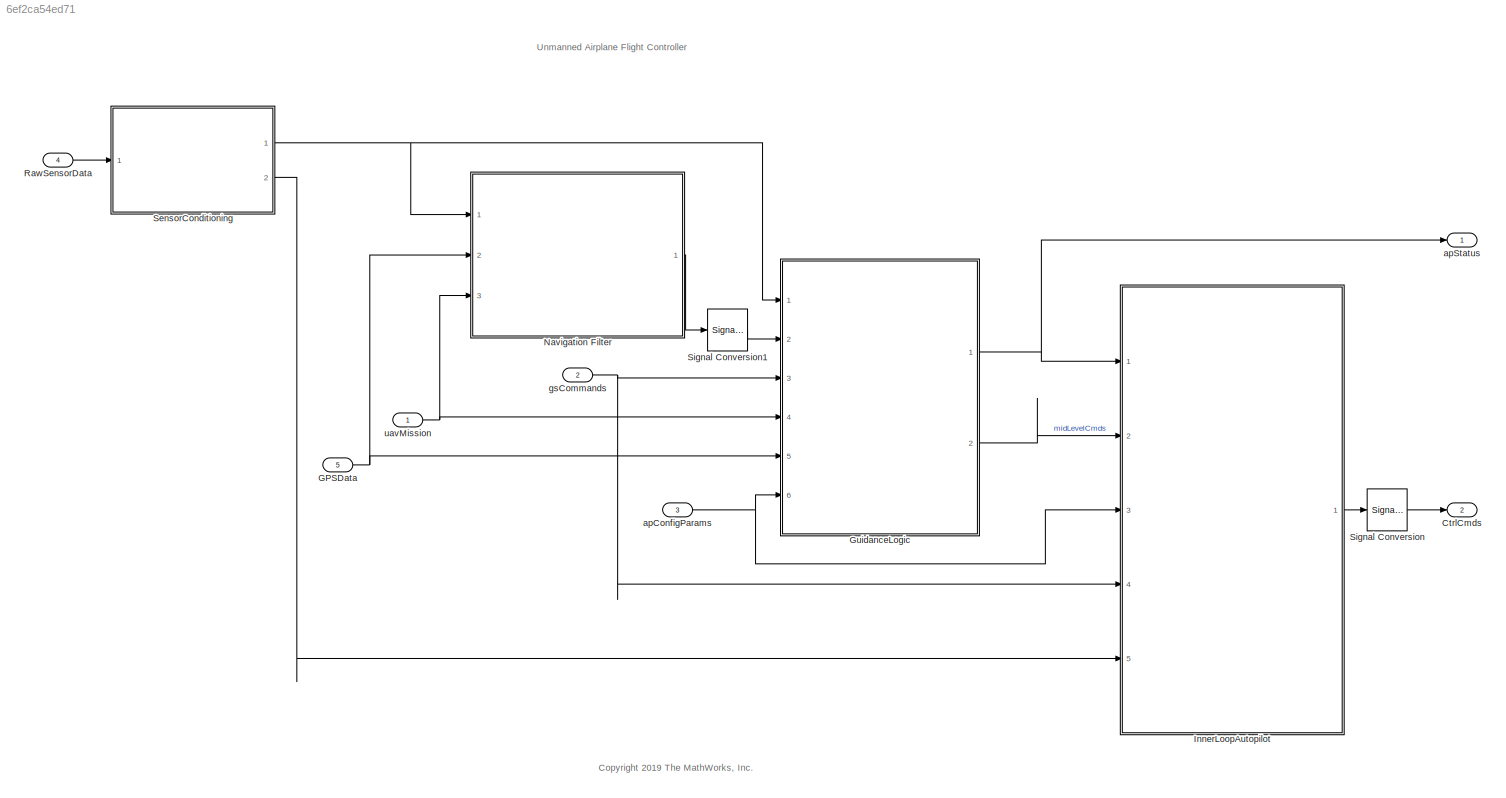
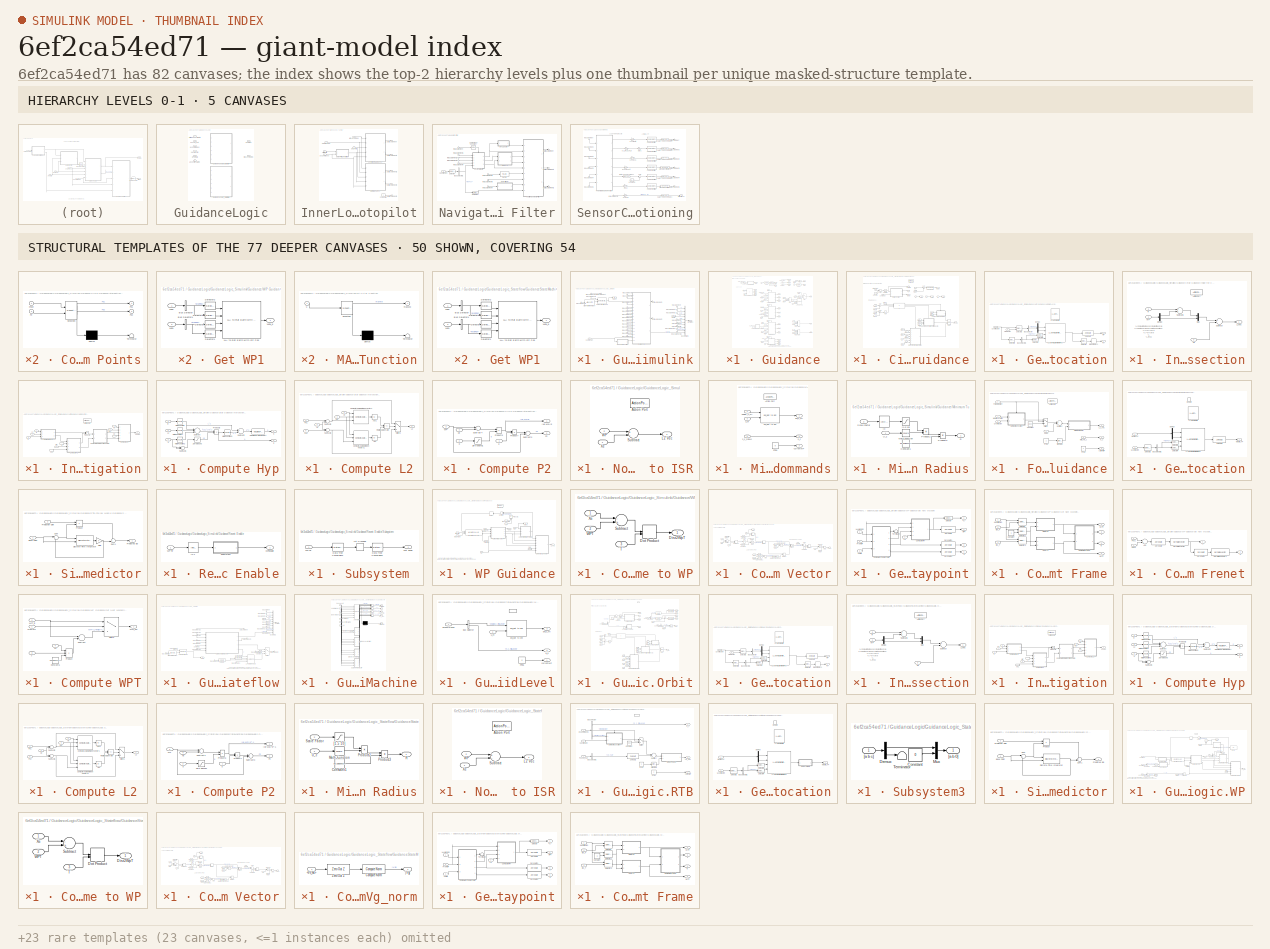
[diagram: thumbnail index - top-2 hierarchy levels (5 canvases) + 50 structural-template representatives of the remaining 77 canvases]
MODEL slx_6ef2ca54ed71
KIND model
BLOCK [Outport] CtrlCmds
  BusOutputAsStruct = on
  IconDisplay = Port number
  OutDataTypeStr = Bus: ctrlCmdsBus
  Port = 2
  SampleTime = [0.01,0]
  VectorParamsAs1DForOutWhenUnconnected = off
BLOCK [Inport] GPSData
  BusOutputAsStruct = on
  IconDisplay = Port number
  OutDataTypeStr = Bus: gpsReading
  Port = 5
  PortDimensions = 1
  SampleTime = [0.01,0]
BLOCK [SubSystem] GuidanceLogic
  Ports = [6, 2]
  RequestExecContextInheritance = off
  Variant = on
  VariantControl = Variant1
BLOCK [Outport] GuidanceLogic/ MidLevelCmds
  IconDisplay = Port number
  Port = 2
  VectorParamsAs1DForOutWhenUnconnected = off
BLOCK [Outport] GuidanceLogic/ apStatus
  IconDisplay = Port number
  VectorParamsAs1DForOutWhenUnconnected = off
BLOCK [Inport] GuidanceLogic/FilteredSensorData 
  IconDisplay = Port number
BLOCK [Inport] GuidanceLogic/GPSData 
  IconDisplay = Port number
  Port = 5
BLOCK [SubSystem] GuidanceLogic/GuidanceLogic_Simulink
  Ports = [6, 2]
  RequestExecContextInheritance = off
  TreatAsAtomicUnit = on
  VariantControl = useSLguidance
BLOCK [Reference] GuidanceLogic/GuidanceLogic_Simulink/Air Density from Height  REF=mbdriLib/Air Utilities/Air Density from
Height
  Ports = [1, 1]
  SourceBlock = mbdriLib/Air Utilities/Air Density from\nHeight
  SourceProductBaseCode = RO
  SourceProductName = Robotics System Toolbox
  SourceType = SubSystem
BLOCK [BusCreator] GuidanceLogic/GuidanceLogic_Simulink/Bus Creator1
  DisplayOption = bar
  InheritFromInputs = on
  Inputs = 10
  NonVirtualBus = on
  OutDataTypeStr = Bus: apStatusBus
  Ports = [10, 1]
BLOCK [Reference] GuidanceLogic/GuidanceLogic_Simulink/Compute Airspeed  REF=mbdriLib/Air Utilities/Compute
Airspeed
  Ports = [2, 1]
  SourceBlock = mbdriLib/Air Utilities/Compute\nAirspeed
  SourceProductBaseCode = RO
  SourceProductName = Robotics System Toolbox
  SourceType = SubSystem
BLOCK [From] GuidanceLogic/GuidanceLogic_Simulink/From3
  AttributesFormatString = [%<GotoTag>]
  GotoTag = ias
BLOCK [Goto] GuidanceLogic/GuidanceLogic_Simulink/Goto4
  AttributesFormatString = [%<GotoTag>]
  GotoTag = ias
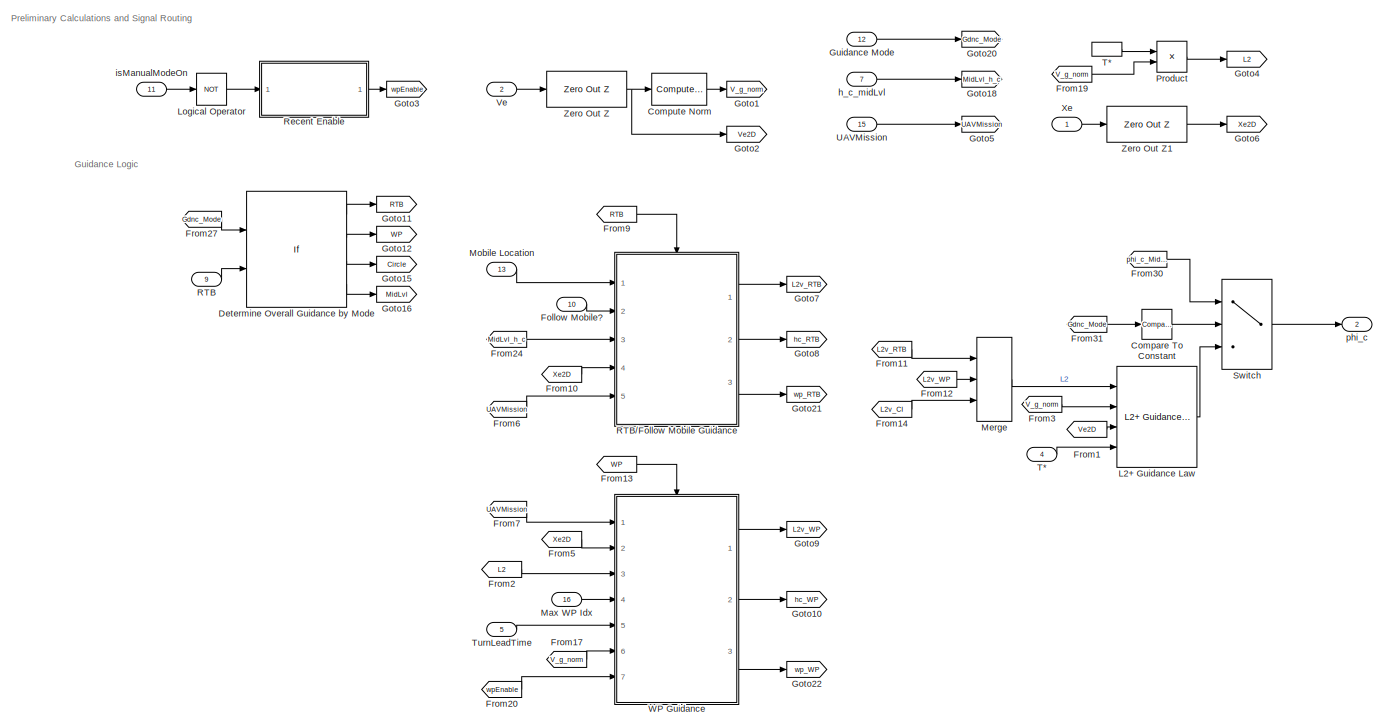
[diagram: GuidanceLogic/GuidanceLogic_Simulink/Guidance - part 1/2, full width, top band]
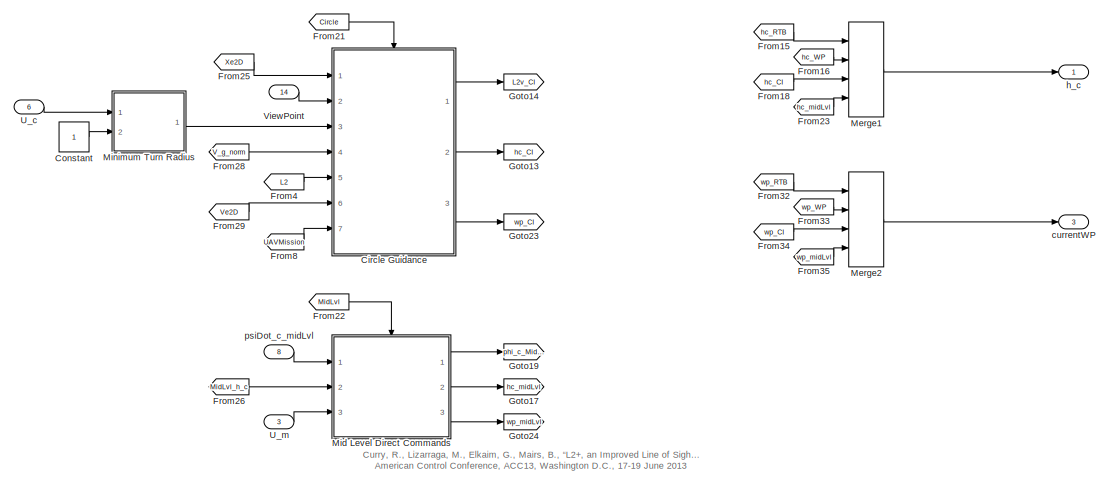
[diagram: GuidanceLogic/GuidanceLogic_Simulink/Guidance - part 2/2, full width, bottom band]
BLOCK [SubSystem] GuidanceLogic/GuidanceLogic_Simulink/Guidance
  Ports = [16, 3]
  RequestExecContextInheritance = off
  TreatAsAtomicUnit = on
BLOCK [Reference] GuidanceLogic/GuidanceLogic_Simulink/Guidance/ Compute Norm  REF=mbdriLib/Utilities/ Compute Norm
  Ports = [1, 1]
  SourceBlock = mbdriLib/Utilities/ Compute Norm
  SourceProductBaseCode = RO
  SourceProductName = Robotics System Toolbox
  SourceType = SubSystem
BLOCK [SubSystem] GuidanceLogic/GuidanceLogic_Simulink/Guidance/Circle Guidance
  Ports = [7, 3, 0, 0, 0, 0, 0, 1]
  RequestExecContextInheritance = off
  TreatAsAtomicUnit = on
BLOCK [Reference] GuidanceLogic/GuidanceLogic_Simulink/Guidance/Circle Guidance/ Compute Norm  REF=mbdriLib/Utilities/ Compute Norm
  Ports = [1, 1]
  SourceBlock = mbdriLib/Utilities/ Compute Norm
  SourceProductBaseCode = RO
  SourceProductName = Robotics System Toolbox
  SourceType = SubSystem
BLOCK [Abs] GuidanceLogic/GuidanceLogic_Simulink/Guidance/Circle Guidance/Abs
  SaturateOnIntegerOverflow = off
BLOCK [ActionPort] GuidanceLogic/GuidanceLogic_Simulink/Guidance/Circle Guidance/Action Port
  ActionPortLabel = elseif { }
BLOCK [Constant] GuidanceLogic/GuidanceLogic_Simulink/Guidance/Circle Guidance/Constant
  AttributesFormatString = %<Value>
  OutDataTypeStr = uint8
BLOCK [From] GuidanceLogic/GuidanceLogic_Simulink/Guidance/Circle Guidance/From1
  AttributesFormatString = [%<GotoTag>]
  GotoTag = WP
BLOCK [From] GuidanceLogic/GuidanceLogic_Simulink/Guidance/Circle Guidance/From10
  AttributesFormatString = [%<GotoTag>]
  GotoTag = R
BLOCK [From] GuidanceLogic/GuidanceLogic_Simulink/Guidance/Circle Guidance/From11
  AttributesFormatString = [%<GotoTag>]
  GotoTag = d
BLOCK [From] GuidanceLogic/GuidanceLogic_Simulink/Guidance/Circle Guidance/From12
  AttributesFormatString = [%<GotoTag>]
  GotoTag = R
BLOCK [From] GuidanceLogic/GuidanceLogic_Simulink/Guidance/Circle Guidance/From13
  AttributesFormatString = [%<GotoTag>]
  GotoTag = L2
BLOCK [From] GuidanceLogic/GuidanceLogic_Simulink/Guidance/Circle Guidance/From16
  AttributesFormatString = [%<GotoTag>]
  GotoTag = R
BLOCK [From] GuidanceLogic/GuidanceLogic_Simulink/Guidance/Circle Guidance/From19
  AttributesFormatString = [%<GotoTag>]
  GotoTag = R
BLOCK [From] GuidanceLogic/GuidanceLogic_Simulink/Guidance/Circle Guidance/From2
  AttributesFormatString = [%<GotoTag>]
  GotoTag = Xe
BLOCK [From] GuidanceLogic/GuidanceLogic_Simulink/Guidance/Circle Guidance/From20
  AttributesFormatString = [%<GotoTag>]
  GotoTag = L2
BLOCK [From] GuidanceLogic/GuidanceLogic_Simulink/Guidance/Circle Guidance/From21
  AttributesFormatString = [%<GotoTag>]
  GotoTag = d
BLOCK [From] GuidanceLogic/GuidanceLogic_Simulink/Guidance/Circle Guidance/From25
  AttributesFormatString = [%<GotoTag>]
  GotoTag = WP
BLOCK [From] GuidanceLogic/GuidanceLogic_Simulink/Guidance/Circle Guidance/From26
  AttributesFormatString = [%<GotoTag>]
  GotoTag = WP
BLOCK [From] GuidanceLogic/GuidanceLogic_Simulink/Guidance/Circle Guidance/From27
  AttributesFormatString = [%<GotoTag>]
  GotoTag = WP
BLOCK [From] GuidanceLogic/GuidanceLogic_Simulink/Guidance/Circle Guidance/From3
  AttributesFormatString = [%<GotoTag>]
  GotoTag = Xe
BLOCK [From] GuidanceLogic/GuidanceLogic_Simulink/Guidance/Circle Guidance/From4
  AttributesFormatString = [%<GotoTag>]
  GotoTag = Xe
BLOCK [From] GuidanceLogic/GuidanceLogic_Simulink/Guidance/Circle Guidance/From9
  AttributesFormatString = [%<GotoTag>]
  GotoTag = L2
BLOCK [SubSystem] GuidanceLogic/GuidanceLogic_Simulink/Guidance/Circle Guidance/Get WP Location
  Ports = [2, 2]
  RequestExecContextInheritance = off
BLOCK [BusSelector] GuidanceLogic/GuidanceLogic_Simulink/Guidance/Circle Guidance/Get WP Location/Bus Selector
  OutputAsBus = off
  OutputSignals = wpPos
  Ports = [1, 1]
BLOCK [BusSelector] GuidanceLogic/GuidanceLogic_Simulink/Guidance/Circle Guidance/Get WP Location/Bus Selector1
  OutputAsBus = off
  OutputSignals = wpPos
  Ports = [1, 1]
BLOCK [Demux] GuidanceLogic/GuidanceLogic_Simulink/Guidance/Circle Guidance/Get WP Location/Demux
  DisplayOption = bar
  Outputs = [2 1]
  Ports = [1, 2]
BLOCK [Outport] GuidanceLogic/GuidanceLogic_Simulink/Guidance/Circle Guidance/Get WP Location/Hc
  IconDisplay = Port number
  VectorParamsAs1DForOutWhenUnconnected = off
BLOCK [Delay] GuidanceLogic/GuidanceLogic_Simulink/Guidance/Circle Guidance/Get WP Location/Integer Delay1
  DelayLength = 1
  InputPortMap = u0
  Ports = [1, 1]
BLOCK [Reference] GuidanceLogic/GuidanceLogic_Simulink/Guidance/Circle Guidance/Get WP Location/LLA to Flat Earth  REF=aerolibtransform2/LLA to Flat Earth
  Commented = on
  Ports = [3, 1]
  SourceBlock = aerolibtransform2/LLA to Flat Earth
  SourceProductBaseCode = AE
  SourceProductName = Aerospace Blockset
  SourceType = LLA to Flat Earth
BLOCK [Reference] GuidanceLogic/GuidanceLogic_Simulink/Guidance/Circle Guidance/Get WP Location/LLA to Flat Earth with Init Pos  REF=mbdriLib/Coordinates/LLA to Flat Earth with Init Pos
  Ports = [4, 1]
  SourceBlock = mbdriLib/Coordinates/LLA to Flat Earth with Init Pos
  SourceProductBaseCode = RO
  SourceProductName = Robotics System Toolbox
BLOCK [Selector] GuidanceLogic/GuidanceLogic_Simulink/Guidance/Circle Guidance/Get WP Location/Selector
  AttributesFormatString = %<Indices>
  IndexOptions = Index vector (dialog)
  Indices = [3]
  InputPortWidth = 3
  OutputSizes = 1
  Ports = [1, 1]
BLOCK [Selector] GuidanceLogic/GuidanceLogic_Simulink/Guidance/Circle Guidance/Get WP Location/Selector1
  AttributesFormatString = %<Indices>
  IndexOptions = Index vector (port)
  Indices = [3]
  InputPortWidth = 10
  OutputSizes = 1
  Ports = [2, 1]
BLOCK [Selector] GuidanceLogic/GuidanceLogic_Simulink/Guidance/Circle Guidance/Get WP Location/Selector2
  AttributesFormatString = %<Indices>
  IndexOptions = Index vector (dialog)
  Indices = [1]
  InputPortWidth = 10
  OutputSizes = 1
  Ports = [1, 1]
BLOCK [Selector] GuidanceLogic/GuidanceLogic_Simulink/Guidance/Circle Guidance/Get WP Location/Selector3
  AttributesFormatString = %<Indices>
  IndexOptions = Index vector (dialog)
  Indices = [3]
  InputPortWidth = 3
  OutputSizes = 1
  Ports = [1, 1]
BLOCK [Selector] GuidanceLogic/GuidanceLogic_Simulink/Guidance/Circle Guidance/Get WP Location/Selector4
  AttributesFormatString = %<Indices>
  IndexOptions = Index vector (dialog)
  Indices = [1 2]
  InputPortWidth = 3
  OutputSizes = 1
  Ports = [1, 1]
BLOCK [Inport] GuidanceLogic/GuidanceLogic_Simulink/Guidance/Circle Guidance/Get WP Location/UAVMission
  IconDisplay = Port number
  Port = 2
BLOCK [Outport] GuidanceLogic/GuidanceLogic_Simulink/Guidance/Circle Guidance/Get WP Location/WP
  IconDisplay = Port number
  Port = 2
  VectorParamsAs1DForOutWhenUnconnected = off
BLOCK [Reference] GuidanceLogic/GuidanceLogic_Simulink/Guidance/Circle Guidance/Get WP Location/Zero Out Z  REF=mbdriLib/Utilities/Zero Out Z
  Ports = [1, 1]
  SourceBlock = mbdriLib/Utilities/Zero Out Z
  SourceProductBaseCode = RO
  SourceProductName = Robotics System Toolbox
  SourceType = SubSystem
BLOCK [Inport] GuidanceLogic/GuidanceLogic_Simulink/Guidance/Circle Guidance/Get WP Location/viewPoint
  IconDisplay = Port number
BLOCK [Goto] GuidanceLogic/GuidanceLogic_Simulink/Guidance/Circle Guidance/Goto1
  AttributesFormatString = [%<GotoTag>]
  GotoTag = Xe
BLOCK [Goto] GuidanceLogic/GuidanceLogic_Simulink/Guidance/Circle Guidance/Goto3
  AttributesFormatString = [%<GotoTag>]
  GotoTag = WP
BLOCK [Goto] GuidanceLogic/GuidanceLogic_Simulink/Guidance/Circle Guidance/Goto4
  AttributesFormatString = [%<GotoTag>]
  GotoTag = R
BLOCK [Goto] GuidanceLogic/GuidanceLogic_Simulink/Guidance/Circle Guidance/Goto5
  AttributesFormatString = [%<GotoTag>]
  GotoTag = L2
BLOCK [Goto] GuidanceLogic/GuidanceLogic_Simulink/Guidance/Circle Guidance/Goto8
  AttributesFormatString = [%<GotoTag>]
  GotoTag = d
BLOCK [If] GuidanceLogic/GuidanceLogic_Simulink/Guidance/Circle Guidance/If
  ElseIfExpressions = u1 < u3
  IfExpression = u1 > u2
  NumInputs = 3
  Ports = [3, 3]
BLOCK [SubSystem] GuidanceLogic/GuidanceLogic_Simulink/Guidance/Circle Guidance/Inside the Circle, Keep Straight until intersection
  Ports = [3, 1, 0, 0, 0, 0, 0, 1]
  RequestExecContextInheritance = off
  TreatAsAtomicUnit = on
BLOCK [ActionPort] GuidanceLogic/GuidanceLogic_Simulink/Guidance/Circle Guidance/Inside the Circle, Keep Straight until intersection/Action Port
  ActionPortLabel = elseif { }
BLOCK [Demux] GuidanceLogic/GuidanceLogic_Simulink/Guidance/Circle Guidance/Inside the Circle, Keep Straight until intersection/Demux
  DisplayOption = bar
  Outputs = [1 2]
  Ports = [1, 2]
BLOCK [Outport] GuidanceLogic/GuidanceLogic_Simulink/Guidance/Circle Guidance/Inside the Circle, Keep Straight until intersection/L2 Vec
  IconDisplay = Port number
  VectorParamsAs1DForOutWhenUnconnected = off
BLOCK [Mux] GuidanceLogic/GuidanceLogic_Simulink/Guidance/Circle Guidance/Inside the Circle, Keep Straight until intersection/Mux
  DisplayOption = bar
  Inputs = 2
  Ports = [2, 1]
BLOCK [Inport] GuidanceLogic/GuidanceLogic_Simulink/Guidance/Circle Guidance/Inside the Circle, Keep Straight until intersection/R
  IconDisplay = Port number
  Port = 2
BLOCK [Sum] GuidanceLogic/GuidanceLogic_Simulink/Guidance/Circle Guidance/Inside the Circle, Keep Straight until intersection/Subtract
  InputSameDT = off
  Inputs = +-
  OutDataTypeStr = single
  Ports = [2, 1]
  SaturateOnIntegerOverflow = off
BLOCK [Sum] GuidanceLogic/GuidanceLogic_Simulink/Guidance/Circle Guidance/Inside the Circle, Keep Straight until intersection/Subtract1
  InputSameDT = off
  OutDataTypeStr = single
  Ports = [2, 1]
  SaturateOnIntegerOverflow = off
BLOCK [Inport] GuidanceLogic/GuidanceLogic_Simulink/Guidance/Circle Guidance/Inside the Circle, Keep Straight until intersection/WP
  IconDisplay = Port number
BLOCK [Inport] GuidanceLogic/GuidanceLogic_Simulink/Guidance/Circle Guidance/Inside the Circle, Keep Straight until intersection/Xe
  IconDisplay = Port number
  Port = 3
BLOCK [Inport] GuidanceLogic/GuidanceLogic_Simulink/Guidance/Circle Guidance/InterestPoint
  IconDisplay = Port number
  Port = 2
BLOCK [SubSystem] GuidanceLogic/GuidanceLogic_Simulink/Guidance/Circle Guidance/Intersection. Circular Navigation
  Ports = [7, 1, 0, 0, 0, 0, 0, 1]
  RequestExecContextInheritance = off
  TreatAsAtomicUnit = on
BLOCK [ActionPort] GuidanceLogic/GuidanceLogic_Simulink/Guidance/Circle Guidance/Intersection. Circular Navigation/Action Port
  ActionPortLabel = else { }
BLOCK [SubSystem] GuidanceLogic/GuidanceLogic_Simulink/Guidance/Circle Guidance/Intersection. Circular Navigation/Compute Hyp
  Ports = [3, 2]
  RequestExecContextInheritance = off
BLOCK [Inport] GuidanceLogic/GuidanceLogic_Simulink/Guidance/Circle Guidance/Intersection. Circular Navigation/Compute Hyp/L2
  IconDisplay = Port number
  Port = 2
BLOCK [Math] GuidanceLogic/GuidanceLogic_Simulink/Guidance/Circle Guidance/Intersection. Circular Navigation/Compute Hyp/Math Function
  Operator = square
  Ports = [1, 1]
BLOCK [Math] GuidanceLogic/GuidanceLogic_Simulink/Guidance/Circle Guidance/Intersection. Circular Navigation/Compute Hyp/Math Function1
  Operator = square
  Ports = [1, 1]
BLOCK [Math] GuidanceLogic/GuidanceLogic_Simulink/Guidance/Circle Guidance/Intersection. Circular Navigation/Compute Hyp/Math Function2
  Operator = square
  Ports = [1, 1]
BLOCK [Math] GuidanceLogic/GuidanceLogic_Simulink/Guidance/Circle Guidance/Intersection. Circular Navigation/Compute Hyp/Math Function3
  Operator = square
  Ports = [1, 1]
BLOCK [Reference] GuidanceLogic/GuidanceLogic_Simulink/Guidance/Circle Guidance/Intersection. Circular Navigation/Compute Hyp/Negative Protected Sqrt  REF=mbdriLib/Utilities/Negative Protected
Sqrt
  Ports = [1, 1]
  SourceBlock = mbdriLib/Utilities/Negative Protected\nSqrt
  SourceProductBaseCode = RO
  SourceProductName = Robotics System Toolbox
  SourceType = SubSystem
BLOCK [Product] GuidanceLogic/GuidanceLogic_Simulink/Guidance/Circle Guidance/Intersection. Circular Navigation/Compute Hyp/Product3
  InputSameDT = off
  Inputs = */
  OutDataTypeStr = Inherit: Inherit via internal rule
  Ports = [2, 1]
  SaturateOnIntegerOverflow = off
BLOCK [Inport] GuidanceLogic/GuidanceLogic_Simulink/Guidance/Circle Guidance/Intersection. Circular Navigation/Compute Hyp/R
  IconDisplay = Port number
BLOCK [Sum] GuidanceLogic/GuidanceLogic_Simulink/Guidance/Circle Guidance/Intersection. Circular Navigation/Compute Hyp/Subtract
  InputSameDT = off
  Inputs = +-+
  OutDataTypeStr = Inherit: Inherit via internal rule
  Ports = [3, 1]
  SaturateOnIntegerOverflow = off
BLOCK [Sum] GuidanceLogic/GuidanceLogic_Simulink/Guidance/Circle Guidance/Intersection. Circular Navigation/Compute Hyp/Subtract1
  InputSameDT = off
  Inputs = 2
  OutDataTypeStr = Inherit: Inherit via internal rule
  Ports = [2, 1]
  SaturateOnIntegerOverflow = off
BLOCK [Sum] GuidanceLogic/GuidanceLogic_Simulink/Guidance/Circle Guidance/Intersection. Circular Navigation/Compute Hyp/Subtract2
  InputSameDT = off
  Inputs = +-
  OutDataTypeStr = Inherit: Inherit via internal rule
  Ports = [2, 1]
  SaturateOnIntegerOverflow = off
BLOCK [Saturate] GuidanceLogic/GuidanceLogic_Simulink/Guidance/Circle Guidance/Intersection. Circular Navigation/Compute Hyp/Zero Bound
  AttributesFormatString = [%<LowerLimit>  %<UpperLimit>]
  InputPortMap = u0
  LowerLimit = 0.001
  Ports = [1, 1]
  UpperLimit = inf
BLOCK [Outport] GuidanceLogic/GuidanceLogic_Simulink/Guidance/Circle Guidance/Intersection. Circular Navigation/Compute Hyp/a
  IconDisplay = Port number
  Port = 2
  VectorParamsAs1DForOutWhenUnconnected = off
BLOCK [Inport] GuidanceLogic/GuidanceLogic_Simulink/Guidance/Circle Guidance/Intersection. Circular Navigation/Compute Hyp/d
  IconDisplay = Port number
  Port = 3
BLOCK [Outport] GuidanceLogic/GuidanceLogic_Simulink/Guidance/Circle Guidance/Intersection. Circular Navigation/Compute Hyp/h
  IconDisplay = Port number
  VectorParamsAs1DForOutWhenUnconnected = off
BLOCK [SubSystem] GuidanceLogic/GuidanceLogic_Simulink/Guidance/Circle Guidance/Intersection. Circular Navigation/Compute L2
  Ports = [5, 1]
  RequestExecContextInheritance = off
BLOCK [Abs] GuidanceLogic/GuidanceLogic_Simulink/Guidance/Circle Guidance/Intersection. Circular Navigation/Compute L2/Abs
  SaturateOnIntegerOverflow = off
BLOCK [Abs] GuidanceLogic/GuidanceLogic_Simulink/Guidance/Circle Guidance/Intersection. Circular Navigation/Compute L2/Abs1
  SaturateOnIntegerOverflow = off
BLOCK [Reference] GuidanceLogic/GuidanceLogic_Simulink/Guidance/Circle Guidance/Intersection. Circular Navigation/Compute L2/Compute Angle Between Vectors  REF=mbdriLib/Utilities/Compute Angle
Between Vectors
  Ports = [3, 1]
  SourceBlock = mbdriLib/Utilities/Compute Angle\nBetween Vectors
  SourceProductBaseCode = RO
  SourceProductName = Robotics System Toolbox
  SourceType = SubSystem
BLOCK [Reference] GuidanceLogic/GuidanceLogic_Simulink/Guidance/Circle Guidance/Intersection. Circular Navigation/Compute L2/Compute Angle Between Vectors1  REF=mbdriLib/Utilities/Compute Angle
Between Vectors
  Ports = [3, 1]
  SourceBlock = mbdriLib/Utilities/Compute Angle\nBetween Vectors
  SourceProductBaseCode = RO
  SourceProductName = Robotics System Toolbox
  SourceType = SubSystem
BLOCK [Outport] GuidanceLogic/GuidanceLogic_Simulink/Guidance/Circle Guidance/Intersection. Circular Navigation/Compute L2/L2
  IconDisplay = Port number
  VectorParamsAs1DForOutWhenUnconnected = off
BLOCK [Inport] GuidanceLogic/GuidanceLogic_Simulink/Guidance/Circle Guidance/Intersection. Circular Navigation/Compute L2/P31
  IconDisplay = Port number
  Port = 3
BLOCK [Inport] GuidanceLogic/GuidanceLogic_Simulink/Guidance/Circle Guidance/Intersection. Circular Navigation/Compute L2/P32
  IconDisplay = Port number
  Port = 5
BLOCK [RelationalOperator] GuidanceLogic/GuidanceLogic_Simulink/Guidance/Circle Guidance/Intersection. Circular Navigation/Compute L2/Relational Operator
  InputSameDT = off
  Operator = <=
  OutDataTypeStr = boolean
  Ports = [2, 1]
BLOCK [Sum] GuidanceLogic/GuidanceLogic_Simulink/Guidance/Circle Guidance/Intersection. Circular Navigation/Compute L2/Subtract5
  InputSameDT = off
  Inputs = +-
  OutDataTypeStr = Inherit: Inherit via internal rule
  Ports = [2, 1]
  SaturateOnIntegerOverflow = off
BLOCK [Sum] GuidanceLogic/GuidanceLogic_Simulink/Guidance/Circle Guidance/Intersection. Circular Navigation/Compute L2/Subtract6
  InputSameDT = off
  Inputs = -+
  OutDataTypeStr = Inherit: Inherit via internal rule
  Ports = [2, 1]
  SaturateOnIntegerOverflow = off
BLOCK [Switch] GuidanceLogic/GuidanceLogic_Simulink/Guidance/Circle Guidance/Intersection. Circular Navigation/Compute L2/Switch1
  Criteria = u2 > Threshold
  InputSameDT = off
  SaturateOnIntegerOverflow = off
  Threshold = 0.3
  ZeroCross = off
BLOCK [Inport] GuidanceLogic/GuidanceLogic_Simulink/Guidance/Circle Guidance/Intersection. Circular Navigation/Compute L2/Ve
  IconDisplay = Port number
BLOCK [Inport] GuidanceLogic/GuidanceLogic_Simulink/Guidance/Circle Guidance/Intersection. Circular Navigation/Compute L2/Xe
  IconDisplay = Port number
  Port = 4
BLOCK [Inport] GuidanceLogic/GuidanceLogic_Simulink/Guidance/Circle Guidance/Intersection. Circular Navigation/Compute L2/|Vg|
  IconDisplay = Port number
  Port = 2
BLOCK [SubSystem] GuidanceLogic/GuidanceLogic_Simulink/Guidance/Circle Guidance/Intersection. Circular Navigation/Compute P2
  Ports = [4, 2]
  RequestExecContextInheritance = off
BLOCK [Outport] GuidanceLogic/GuidanceLogic_Simulink/Guidance/Circle Guidance/Intersection. Circular Navigation/Compute P2/(Xe-Wp)//d
  IconDisplay = Port number
  VectorParamsAs1DForOutWhenUnconnected = off
BLOCK [Outport] GuidanceLogic/GuidanceLogic_Simulink/Guidance/Circle Guidance/Intersection. Circular Navigation/Compute P2/P2
  IconDisplay = Port number
  Port = 2
  VectorParamsAs1DForOutWhenUnconnected = off
BLOCK [Product] GuidanceLogic/GuidanceLogic_Simulink/Guidance/Circle Guidance/Intersection. Circular Navigation/Compute P2/Product6
  InputSameDT = off
  Inputs = */
  OutDataTypeStr = Inherit: Inherit via internal rule
  Ports = [2, 1]
  SaturateOnIntegerOverflow = off
BLOCK [Product] GuidanceLogic/GuidanceLogic_Simulink/Guidance/Circle Guidance/Intersection. Circular Navigation/Compute P2/Product7
  InputSameDT = off
  OutDataTypeStr = Inherit: Inherit via internal rule
  Ports = [2, 1]
  SaturateOnIntegerOverflow = off
BLOCK [Sum] GuidanceLogic/GuidanceLogic_Simulink/Guidance/Circle Guidance/Intersection. Circular Navigation/Compute P2/Subtract3
  InputSameDT = off
  Inputs = 2
  OutDataTypeStr = Inherit: Inherit via internal rule
  Ports = [2, 1]
  SaturateOnIntegerOverflow = off
BLOCK [Sum] GuidanceLogic/GuidanceLogic_Simulink/Guidance/Circle Guidance/Intersection. Circular Navigation/Compute P2/Subtract4
  InputSameDT = off
  Inputs = -+
  OutDataTypeStr = Inherit: Inherit via internal rule
  Ports = [2, 1]
  SaturateOnIntegerOverflow = off
BLOCK [Inport] GuidanceLogic/GuidanceLogic_Simulink/Guidance/Circle Guidance/Intersection. Circular Navigation/Compute P2/WP
  IconDisplay = Port number
  Port = 3
BLOCK [Inport] GuidanceLogic/GuidanceLogic_Simulink/Guidance/Circle Guidance/Intersection. Circular Navigation/Compute P2/Xe
  IconDisplay = Port number
  Port = 4
BLOCK [Saturate] GuidanceLogic/GuidanceLogic_Simulink/Guidance/Circle Guidance/Intersection. Circular Navigation/Compute P2/Zero Bound1
  AttributesFormatString = [%<LowerLimit>  %<UpperLimit>]
  InputPortMap = u0
  LowerLimit = 0.001
  Ports = [1, 1]
  UpperLimit = inf
BLOCK [Inport] GuidanceLogic/GuidanceLogic_Simulink/Guidance/Circle Guidance/Intersection. Circular Navigation/Compute P2/a
  IconDisplay = Port number
BLOCK [Inport] GuidanceLogic/GuidanceLogic_Simulink/Guidance/Circle Guidance/Intersection. Circular Navigation/Compute P2/d
  IconDisplay = Port number
  Port = 2
BLOCK [SubSystem] GuidanceLogic/GuidanceLogic_Simulink/Guidance/Circle Guidance/Intersection. Circular Navigation/Compute the Intersection Points
  ErrorFcn = Stateflow.Translate.translate
  PermitHierarchicalResolution = ExplicitOnly
  Ports = [2, 2]
  RequestExecContextInheritance = off
  SFBlockType = MATLAB Function
  TreatAsAtomicUnit = on
BLOCK [Demux] GuidanceLogic/GuidanceLogic_Simulink/Guidance/Circle Guidance/Intersection. Circular Navigation/Compute the Intersection Points/ Demux 
  Outputs = 1
  Ports = [1, 1]
BLOCK [S-Function] GuidanceLogic/GuidanceLogic_Simulink/Guidance/Circle Guidance/Intersection. Circular Navigation/Compute the Intersection Points/ SFunction 
  EnableBusSupport = on
  FunctionName = sf_sfun
  PortCounts = [2 3]
  Ports = [2, 3]
  SFcnIsStateOwnerBlock = off
  SFunctionDeploymentMode = off
  Tag = Stateflow S-Function 31
BLOCK [Terminator] GuidanceLogic/GuidanceLogic_Simulink/Guidance/Circle Guidance/Intersection. Circular Navigation/Compute the Intersection Points/ Terminator 
BLOCK [Inport] GuidanceLogic/GuidanceLogic_Simulink/Guidance/Circle Guidance/Intersection. Circular Navigation/Compute the Intersection Points/P2
  IconDisplay = Port number
  Port = 2
BLOCK [Outport] GuidanceLogic/GuidanceLogic_Simulink/Guidance/Circle Guidance/Intersection. Circular Navigation/Compute the Intersection Points/P31
  IconDisplay = Port number
  VectorParamsAs1DForOutWhenUnconnected = off
BLOCK [Outport] GuidanceLogic/GuidanceLogic_Simulink/Guidance/Circle Guidance/Intersection. Circular Navigation/Compute the Intersection Points/P32
  IconDisplay = Port number
  Port = 2
  VectorParamsAs1DForOutWhenUnconnected = off
BLOCK [Inport] GuidanceLogic/GuidanceLogic_Simulink/Guidance/Circle Guidance/Intersection. Circular Navigation/Compute the Intersection Points/hFact
  IconDisplay = Port number
BLOCK [Inport] GuidanceLogic/GuidanceLogic_Simulink/Guidance/Circle Guidance/Intersection. Circular Navigation/L2
  IconDisplay = Port number
  Port = 2
BLOCK [Outport] GuidanceLogic/GuidanceLogic_Simulink/Guidance/Circle Guidance/Intersection. Circular Navigation/L2 Vec
  IconDisplay = Port number
  VectorParamsAs1DForOutWhenUnconnected = off
BLOCK [Product] GuidanceLogic/GuidanceLogic_Simulink/Guidance/Circle Guidance/Intersection. Circular Navigation/Product5
  InputSameDT = off
  OutDataTypeStr = Inherit: Inherit via internal rule
  Ports = [2, 1]
  SaturateOnIntegerOverflow = off
BLOCK [Inport] GuidanceLogic/GuidanceLogic_Simulink/Guidance/Circle Guidance/Intersection. Circular Navigation/R
  IconDisplay = Port number
BLOCK [Inport] GuidanceLogic/GuidanceLogic_Simulink/Guidance/Circle Guidance/Intersection. Circular Navigation/Ve
  IconDisplay = Port number
  Port = 5
BLOCK [Inport] GuidanceLogic/GuidanceLogic_Simulink/Guidance/Circle Guidance/Intersection. Circular Navigation/WP
  IconDisplay = Port number
  Port = 4
BLOCK [Inport] GuidanceLogic/GuidanceLogic_Simulink/Guidance/Circle Guidance/Intersection. Circular Navigation/Xe
  IconDisplay = Port number
  Port = 7
BLOCK [InportShadow] GuidanceLogic/GuidanceLogic_Simulink/Guidance/Circle Guidance/Intersection. Circular Navigation/Xe1
  IconDisplay = Port number
  Port = 7
BLOCK [Inport] GuidanceLogic/GuidanceLogic_Simulink/Guidance/Circle Guidance/Intersection. Circular Navigation/d
  IconDisplay = Port number
  Port = 3
BLOCK [InportShadow] GuidanceLogic/GuidanceLogic_Simulink/Guidance/Circle Guidance/Intersection. Circular Navigation/d 
  IconDisplay = Port number
  Port = 3
BLOCK [Inport] GuidanceLogic/GuidanceLogic_Simulink/Guidance/Circle Guidance/Intersection. Circular Navigation/|Vg|
  IconDisplay = Port number
  Port = 6
BLOCK [Inport] GuidanceLogic/GuidanceLogic_Simulink/Guidance/Circle Guidance/L2
  IconDisplay = Port number
  Port = 5
BLOCK [Outport] GuidanceLogic/GuidanceLogic_Simulink/Guidance/Circle Guidance/L2_vec
  IconDisplay = Port number
  VectorParamsAs1DForOutWhenUnconnected = off
BLOCK [Merge] GuidanceLogic/GuidanceLogic_Simulink/Guidance/Circle Guidance/Merge
  Inputs = 3
  Ports = [3, 1]
BLOCK [SubSystem] GuidanceLogic/GuidanceLogic_Simulink/Guidance/Circle Guidance/No intersection, Navigate to ISR
  Ports = [2, 1, 0, 0, 0, 0, 0, 1]
  RequestExecContextInheritance = off
  TreatAsAtomicUnit = on
BLOCK [ActionPort] GuidanceLogic/GuidanceLogic_Simulink/Guidance/Circle Guidance/No intersection, Navigate to ISR/Action Port
  ActionPortLabel = if { }
BLOCK [Outport] GuidanceLogic/GuidanceLogic_Simulink/Guidance/Circle Guidance/No intersection, Navigate to ISR/L2 Vec
  IconDisplay = Port number
  VectorParamsAs1DForOutWhenUnconnected = off
BLOCK [Sum] GuidanceLogic/GuidanceLogic_Simulink/Guidance/Circle Guidance/No intersection, Navigate to ISR/Subtract
  InputSameDT = off
  Inputs = +-
  OutDataTypeStr = Inherit: Inherit via internal rule
  Ports = [2, 1]
  SaturateOnIntegerOverflow = off
BLOCK [Inport] GuidanceLogic/GuidanceLogic_Simulink/Guidance/Circle Guidance/No intersection, Navigate to ISR/WP
  IconDisplay = Port number
  Port = 2
BLOCK [Inport] GuidanceLogic/GuidanceLogic_Simulink/Guidance/Circle Guidance/No intersection, Navigate to ISR/Xe
  IconDisplay = Port number
BLOCK [Inport] GuidanceLogic/GuidanceLogic_Simulink/Guidance/Circle Guidance/R
  IconDisplay = Port number
  Port = 3
BLOCK [Saturate] GuidanceLogic/GuidanceLogic_Simulink/Guidance/Circle Guidance/Saturation
  AttributesFormatString = [%<LowerLimit> %<UpperLimit>]
  InputPortMap = u0
  LowerLimit = 1
  Ports = [1, 1]
  UpperLimit = 9
BLOCK [Sum] GuidanceLogic/GuidanceLogic_Simulink/Guidance/Circle Guidance/Subtract
  InputSameDT = off
  Inputs = 2
  OutDataTypeStr = Inherit: Inherit via internal rule
  Ports = [2, 1]
  SaturateOnIntegerOverflow = off
BLOCK [Sum] GuidanceLogic/GuidanceLogic_Simulink/Guidance/Circle Guidance/Sum
  IconShape = round
  InputSameDT = off
  Inputs = |++
  OutDataTypeStr = Inherit: Inherit via internal rule
  Ports = [2, 1]
  SaturateOnIntegerOverflow = off
BLOCK [Sum] GuidanceLogic/GuidanceLogic_Simulink/Guidance/Circle Guidance/Sum1
  IconShape = round
  InputSameDT = off
  Inputs = |+-
  OutDataTypeStr = Inherit: Inherit via internal rule
  Ports = [2, 1]
  SaturateOnIntegerOverflow = off
BLOCK [Sum] GuidanceLogic/GuidanceLogic_Simulink/Guidance/Circle Guidance/Sum2
  IconShape = round
  InputSameDT = off
  Inputs = |-+
  OutDataTypeStr = Inherit: Inherit via internal rule
  Ports = [2, 1]
  SaturateOnIntegerOverflow = off
BLOCK [Inport] GuidanceLogic/GuidanceLogic_Simulink/Guidance/Circle Guidance/UAVMission
  IconDisplay = Port number
  Port = 7
BLOCK [Inport] GuidanceLogic/GuidanceLogic_Simulink/Guidance/Circle Guidance/Ve
  IconDisplay = Port number
  Port = 6
BLOCK [Inport] GuidanceLogic/GuidanceLogic_Simulink/Guidance/Circle Guidance/Xe
  IconDisplay = Port number
BLOCK [InportShadow] GuidanceLogic/GuidanceLogic_Simulink/Guidance/Circle Guidance/Xe   
  IconDisplay = Port number
BLOCK [Outport] GuidanceLogic/GuidanceLogic_Simulink/Guidance/Circle Guidance/currentWP
  IconDisplay = Port number
  Port = 3
  VectorParamsAs1DForOutWhenUnconnected = off
BLOCK [Outport] GuidanceLogic/GuidanceLogic_Simulink/Guidance/Circle Guidance/h_c
  IconDisplay = Port number
  Port = 2
  VectorParamsAs1DForOutWhenUnconnected = off
BLOCK [Inport] GuidanceLogic/GuidanceLogic_Simulink/Guidance/Circle Guidance/|V_g|
  IconDisplay = Port number
  Port = 4
BLOCK [Reference] GuidanceLogic/GuidanceLogic_Simulink/Guidance/Compare To Constant  REF=simulink/Logic and Bit
Operations/Compare
To Constant
  Ports = [1, 1]
  SourceBlock = simulink/Logic and Bit\nOperations/Compare\nTo Constant
  SourceProductBaseCode = SL
  SourceProductName = Simulink
  SourceType = Compare To Constant
BLOCK [Constant] GuidanceLogic/GuidanceLogic_Simulink/Guidance/Constant
  AttributesFormatString = %<Value>
  OutDataTypeStr = single
BLOCK [If] GuidanceLogic/GuidanceLogic_Simulink/Guidance/Determine Overall Guidance by Mode
  ElseIfExpressions = u1 == 2, u1 == 3, u1 == 4
  IfExpression = u2 == 1
  NumInputs = 2
  Ports = [2, 4]
  ShowElse = off
BLOCK [Inport] GuidanceLogic/GuidanceLogic_Simulink/Guidance/Follow Mobile?
  IconDisplay = Port number
  Port = 10
BLOCK [From] GuidanceLogic/GuidanceLogic_Simulink/Guidance/From1
  AttributesFormatString = [%<GotoTag>]
  GotoTag = Ve2D
BLOCK [From] GuidanceLogic/GuidanceLogic_Simulink/Guidance/From10
  AttributesFormatString = [%<GotoTag>]
  GotoTag = Xe2D
BLOCK [From] GuidanceLogic/GuidanceLogic_Simulink/Guidance/From11
  AttributesFormatString = [%<GotoTag>]
  GotoTag = L2v_RTB
BLOCK [From] GuidanceLogic/GuidanceLogic_Simulink/Guidance/From12
  AttributesFormatString = [%<GotoTag>]
  GotoTag = L2v_WP
BLOCK [From] GuidanceLogic/GuidanceLogic_Simulink/Guidance/From13
  AttributesFormatString = [%<GotoTag>]
  GotoTag = WP
BLOCK [From] GuidanceLogic/GuidanceLogic_Simulink/Guidance/From14
  AttributesFormatString = [%<GotoTag>]
  GotoTag = L2v_CI
BLOCK [From] GuidanceLogic/GuidanceLogic_Simulink/Guidance/From15
  AttributesFormatString = [%<GotoTag>]
  GotoTag = hc_RTB
BLOCK [From] GuidanceLogic/GuidanceLogic_Simulink/Guidance/From16
  AttributesFormatString = [%<GotoTag>]
  GotoTag = hc_WP
BLOCK [From] GuidanceLogic/GuidanceLogic_Simulink/Guidance/From17
  AttributesFormatString = [%<GotoTag>]
  GotoTag = V_g_norm
BLOCK [From] GuidanceLogic/GuidanceLogic_Simulink/Guidance/From18
  AttributesFormatString = [%<GotoTag>]
  GotoTag = hc_CI
BLOCK [From] GuidanceLogic/GuidanceLogic_Simulink/Guidance/From19
  AttributesFormatString = [%<GotoTag>]
  GotoTag = V_g_norm
BLOCK [From] GuidanceLogic/GuidanceLogic_Simulink/Guidance/From2
  AttributesFormatString = [%<GotoTag>]
  GotoTag = L2
BLOCK [From] GuidanceLogic/GuidanceLogic_Simulink/Guidance/From20
  AttributesFormatString = [%<GotoTag>]
  GotoTag = wpEnable
BLOCK [From] GuidanceLogic/GuidanceLogic_Simulink/Guidance/From21
  AttributesFormatString = [%<GotoTag>]
  GotoTag = Circle
BLOCK [From] GuidanceLogic/GuidanceLogic_Simulink/Guidance/From22
  AttributesFormatString = [%<GotoTag>]
  GotoTag = MidLvl
BLOCK [From] GuidanceLogic/GuidanceLogic_Simulink/Guidance/From23
  AttributesFormatString = [%<GotoTag>]
  GotoTag = hc_midLvl
BLOCK [From] GuidanceLogic/GuidanceLogic_Simulink/Guidance/From24
  AttributesFormatString = [%<GotoTag>]
  GotoTag = MidLvl_h_c
BLOCK [From] GuidanceLogic/GuidanceLogic_Simulink/Guidance/From25
  AttributesFormatString = [%<GotoTag>]
  GotoTag = Xe2D
BLOCK [From] GuidanceLogic/GuidanceLogic_Simulink/Guidance/From26
  AttributesFormatString = [%<GotoTag>]
  GotoTag = MidLvl_h_c
BLOCK [From] GuidanceLogic/GuidanceLogic_Simulink/Guidance/From27
  AttributesFormatString = [%<GotoTag>]
  GotoTag = Gdnc_Mode
BLOCK [From] GuidanceLogic/GuidanceLogic_Simulink/Guidance/From28
  AttributesFormatString = [%<GotoTag>]
  GotoTag = V_g_norm
BLOCK [From] GuidanceLogic/GuidanceLogic_Simulink/Guidance/From29
  AttributesFormatString = [%<GotoTag>]
  GotoTag = Ve2D
BLOCK [From] GuidanceLogic/GuidanceLogic_Simulink/Guidance/From3
  AttributesFormatString = [%<GotoTag>]
  GotoTag = V_g_norm
BLOCK [From] GuidanceLogic/GuidanceLogic_Simulink/Guidance/From30
  AttributesFormatString = [%<GotoTag>]
  GotoTag = phi_c_MidLvl
BLOCK [From] GuidanceLogic/GuidanceLogic_Simulink/Guidance/From31
  AttributesFormatString = [%<GotoTag>]
  GotoTag = Gdnc_Mode
BLOCK [From] GuidanceLogic/GuidanceLogic_Simulink/Guidance/From32
  AttributesFormatString = [%<GotoTag>]
  GotoTag = wp_RTB
BLOCK [From] GuidanceLogic/GuidanceLogic_Simulink/Guidance/From33
  AttributesFormatString = [%<GotoTag>]
  GotoTag = wp_WP
BLOCK [From] GuidanceLogic/GuidanceLogic_Simulink/Guidance/From34
  AttributesFormatString = [%<GotoTag>]
  GotoTag = wp_CI
BLOCK [From] GuidanceLogic/GuidanceLogic_Simulink/Guidance/From35
  AttributesFormatString = [%<GotoTag>]
  GotoTag = wp_midLvl
BLOCK [From] GuidanceLogic/GuidanceLogic_Simulink/Guidance/From4
  AttributesFormatString = [%<GotoTag>]
  GotoTag = L2
BLOCK [From] GuidanceLogic/GuidanceLogic_Simulink/Guidance/From5
  AttributesFormatString = [%<GotoTag>]
  GotoTag = Xe2D
BLOCK [From] GuidanceLogic/GuidanceLogic_Simulink/Guidance/From6
  AttributesFormatString = [%<GotoTag>]
  GotoTag = UAVMission
BLOCK [From] GuidanceLogic/GuidanceLogic_Simulink/Guidance/From7
  AttributesFormatString = [%<GotoTag>]
  GotoTag = UAVMission
BLOCK [From] GuidanceLogic/GuidanceLogic_Simulink/Guidance/From8
  AttributesFormatString = [%<GotoTag>]
  GotoTag = UAVMission
BLOCK [From] GuidanceLogic/GuidanceLogic_Simulink/Guidance/From9
  AttributesFormatString = [%<GotoTag>]
  GotoTag = RTB
BLOCK [Goto] GuidanceLogic/GuidanceLogic_Simulink/Guidance/Goto1
  AttributesFormatString = [%<GotoTag>]
  GotoTag = V_g_norm
BLOCK [Goto] GuidanceLogic/GuidanceLogic_Simulink/Guidance/Goto10
  AttributesFormatString = [%<GotoTag>]
  GotoTag = hc_WP
BLOCK [Goto] GuidanceLogic/GuidanceLogic_Simulink/Guidance/Goto11
  AttributesFormatString = [%<GotoTag>]
  GotoTag = RTB
BLOCK [Goto] GuidanceLogic/GuidanceLogic_Simulink/Guidance/Goto12
  AttributesFormatString = [%<GotoTag>]
  GotoTag = WP
BLOCK [Goto] GuidanceLogic/GuidanceLogic_Simulink/Guidance/Goto13
  AttributesFormatString = [%<GotoTag>]
  GotoTag = hc_CI
BLOCK [Goto] GuidanceLogic/GuidanceLogic_Simulink/Guidance/Goto14
  AttributesFormatString = [%<GotoTag>]
  GotoTag = L2v_CI
BLOCK [Goto] GuidanceLogic/GuidanceLogic_Simulink/Guidance/Goto15
  AttributesFormatString = [%<GotoTag>]
  GotoTag = Circle
BLOCK [Goto] GuidanceLogic/GuidanceLogic_Simulink/Guidance/Goto16
  AttributesFormatString = [%<GotoTag>]
  GotoTag = MidLvl
BLOCK [Goto] GuidanceLogic/GuidanceLogic_Simulink/Guidance/Goto17
  AttributesFormatString = [%<GotoTag>]
  GotoTag = hc_midLvl
BLOCK [Goto] GuidanceLogic/GuidanceLogic_Simulink/Guidance/Goto18
  AttributesFormatString = [%<GotoTag>]
  GotoTag = MidLvl_h_c
BLOCK [Goto] GuidanceLogic/GuidanceLogic_Simulink/Guidance/Goto19
  AttributesFormatString = [%<GotoTag>]
  GotoTag = phi_c_MidLvl
BLOCK [Goto] GuidanceLogic/GuidanceLogic_Simulink/Guidance/Goto2
  AttributesFormatString = [%<GotoTag>]
  GotoTag = Ve2D
BLOCK [Goto] GuidanceLogic/GuidanceLogic_Simulink/Guidance/Goto20
  AttributesFormatString = [%<GotoTag>]
  GotoTag = Gdnc_Mode
BLOCK [Goto] GuidanceLogic/GuidanceLogic_Simulink/Guidance/Goto21
  AttributesFormatString = [%<GotoTag>]
  GotoTag = wp_RTB
BLOCK [Goto] GuidanceLogic/GuidanceLogic_Simulink/Guidance/Goto22
  AttributesFormatString = [%<GotoTag>]
  GotoTag = wp_WP
BLOCK [Goto] GuidanceLogic/GuidanceLogic_Simulink/Guidance/Goto23
  AttributesFormatString = [%<GotoTag>]
  GotoTag = wp_CI
BLOCK [Goto] GuidanceLogic/GuidanceLogic_Simulink/Guidance/Goto24
  AttributesFormatString = [%<GotoTag>]
  GotoTag = wp_midLvl
BLOCK [Goto] GuidanceLogic/GuidanceLogic_Simulink/Guidance/Goto3
  AttributesFormatString = [%<GotoTag>]
  GotoTag = wpEnable
BLOCK [Goto] GuidanceLogic/GuidanceLogic_Simulink/Guidance/Goto4
  AttributesFormatString = [%<GotoTag>]
  GotoTag = L2
BLOCK [Goto] GuidanceLogic/GuidanceLogic_Simulink/Guidance/Goto5
  AttributesFormatString = [%<GotoTag>]
  GotoTag = UAVMission
BLOCK [Goto] GuidanceLogic/GuidanceLogic_Simulink/Guidance/Goto6
  AttributesFormatString = [%<GotoTag>]
  GotoTag = Xe2D
BLOCK [Goto] GuidanceLogic/GuidanceLogic_Simulink/Guidance/Goto7
  AttributesFormatString = [%<GotoTag>]
  GotoTag = L2v_RTB
BLOCK [Goto] GuidanceLogic/GuidanceLogic_Simulink/Guidance/Goto8
  AttributesFormatString = [%<GotoTag>]
  GotoTag = hc_RTB
BLOCK [Goto] GuidanceLogic/GuidanceLogic_Simulink/Guidance/Goto9
  AttributesFormatString = [%<GotoTag>]
  GotoTag = L2v_WP
BLOCK [Inport] GuidanceLogic/GuidanceLogic_Simulink/Guidance/Guidance Mode
  IconDisplay = Port number
  Port = 12
BLOCK [Reference] GuidanceLogic/GuidanceLogic_Simulink/Guidance/L2+ Guidance Law  REF=mbdriLib/Guidance/L2+ Guidance Law
  Ports = [4, 1]
  SourceBlock = mbdriLib/Guidance/L2+ Guidance Law
  SourceProductBaseCode = RO
  SourceProductName = Robotics System Toolbox
  SourceType = SubSystem
BLOCK [Logic] GuidanceLogic/GuidanceLogic_Simulink/Guidance/Logical Operator
  AllPortsSameDT = off
  Operator = NOT
  OutDataTypeStr = boolean
  Ports = [1, 1]
BLOCK [Inport] GuidanceLogic/GuidanceLogic_Simulink/Guidance/Max WP Idx
  IconDisplay = Port number
  Port = 16
BLOCK [Merge] GuidanceLogic/GuidanceLogic_Simulink/Guidance/Merge
  InitialOutput = [0 0 0]
  Inputs = 3
  Ports = [3, 1]
BLOCK [Merge] GuidanceLogic/GuidanceLogic_Simulink/Guidance/Merge1
  InitialOutput = 0
  Inputs = 4
  Ports = [4, 1]
BLOCK [Merge] GuidanceLogic/GuidanceLogic_Simulink/Guidance/Merge2
  InitialOutput = 0
  Inputs = 4
  Ports = [4, 1]
BLOCK [SubSystem] GuidanceLogic/GuidanceLogic_Simulink/Guidance/Mid Level Direct Commands
  Ports = [3, 3, 0, 0, 0, 0, 0, 1]
  RequestExecContextInheritance = off
  TreatAsAtomicUnit = on
BLOCK [ActionPort] GuidanceLogic/GuidanceLogic_Simulink/Guidance/Mid Level Direct Commands/Action Port
  ActionPortLabel = elseif { }
BLOCK [Constant] GuidanceLogic/GuidanceLogic_Simulink/Guidance/Mid Level Direct Commands/RTB1
  AttributesFormatString = %<Value>
  OutDataTypeStr = uint8
  Value = 0
BLOCK [Inport] GuidanceLogic/GuidanceLogic_Simulink/Guidance/Mid Level Direct Commands/U_m
  IconDisplay = Port number
  Port = 3
BLOCK [Outport] GuidanceLogic/GuidanceLogic_Simulink/Guidance/Mid Level Direct Commands/currentWP
  IconDisplay = Port number
  Port = 3
  VectorParamsAs1DForOutWhenUnconnected = off
BLOCK [Outport] GuidanceLogic/GuidanceLogic_Simulink/Guidance/Mid Level Direct Commands/h_c
  IconDisplay = Port number
  Port = 2
  VectorParamsAs1DForOutWhenUnconnected = off
BLOCK [Inport] GuidanceLogic/GuidanceLogic_Simulink/Guidance/Mid Level Direct Commands/h_c_midLvl
  IconDisplay = Port number
  Port = 2
BLOCK [Outport] GuidanceLogic/GuidanceLogic_Simulink/Guidance/Mid Level Direct Commands/phi_c_ml
  IconDisplay = Port number
  VectorParamsAs1DForOutWhenUnconnected = off
BLOCK [Inport] GuidanceLogic/GuidanceLogic_Simulink/Guidance/Mid Level Direct Commands/psiDot_c_ml
  IconDisplay = Port number
BLOCK [Reference] GuidanceLogic/GuidanceLogic_Simulink/Guidance/Mid Level Direct Commands/psi_dot to phi  REF=mbdriLib/Angles and Units/psi_dot to phi
  Ports = [2, 1]
  SourceBlock = mbdriLib/Angles and Units/psi_dot to phi
  SourceProductBaseCode = RO
  SourceProductName = Robotics System Toolbox
  SourceType = SubSystem
BLOCK [SubSystem] GuidanceLogic/GuidanceLogic_Simulink/Guidance/Minimum Turn Radius
  Ports = [2, 1]
  RequestExecContextInheritance = off
BLOCK [Constant] GuidanceLogic/GuidanceLogic_Simulink/Guidance/Minimum Turn Radius/Constant1
  AttributesFormatString = %<Value>
  OutDataTypeStr = single
  Value = ap.guidance.maxAcc
BLOCK [InitialCondition] GuidanceLogic/GuidanceLogic_Simulink/Guidance/Minimum Turn Radius/IC
  Value = 1.5
BLOCK [Math] GuidanceLogic/GuidanceLogic_Simulink/Guidance/Minimum Turn Radius/Math Function
  Operator = square
  Ports = [1, 1]
BLOCK [Product] GuidanceLogic/GuidanceLogic_Simulink/Guidance/Minimum Turn Radius/Product2
  InputSameDT = off
  OutDataTypeStr = Inherit: Inherit via internal rule
  Ports = [2, 1]
  SaturateOnIntegerOverflow = off
BLOCK [Product] GuidanceLogic/GuidanceLogic_Simulink/Guidance/Minimum Turn Radius/Product3
  InputSameDT = off
  Inputs = */
  OutDataTypeStr = Inherit: Inherit via internal rule
  Ports = [2, 1]
  SaturateOnIntegerOverflow = off
BLOCK [Outport] GuidanceLogic/GuidanceLogic_Simulink/Guidance/Minimum Turn Radius/R
  IconDisplay = Port number
  VectorParamsAs1DForOutWhenUnconnected = off
BLOCK [Inport] GuidanceLogic/GuidanceLogic_Simulink/Guidance/Minimum Turn Radius/Scale Factor
  IconDisplay = Port number
  Port = 2
BLOCK [Inport] GuidanceLogic/GuidanceLogic_Simulink/Guidance/Minimum Turn Radius/U_c
  IconDisplay = Port number
BLOCK [Saturate] GuidanceLogic/GuidanceLogic_Simulink/Guidance/Minimum Turn Radius/[1.5 10]
  AttributesFormatString = [%<LowerLimit>  %<UpperLimit>]
  InputPortMap = u0
  LowerLimit = 1.5
  Ports = [1, 1]
  UpperLimit = 10
BLOCK [Inport] GuidanceLogic/GuidanceLogic_Simulink/Guidance/Mobile Location
  IconDisplay = Port number
  Port = 13
BLOCK [Product] GuidanceLogic/GuidanceLogic_Simulink/Guidance/Product
  InputSameDT = off
  OutDataTypeStr = Inherit: Inherit via internal rule
  Ports = [2, 1]
  RndMeth = Floor
  SaturateOnIntegerOverflow = off
BLOCK [Inport] GuidanceLogic/GuidanceLogic_Simulink/Guidance/RTB
  IconDisplay = Port number
  Port = 9
BLOCK [SubSystem] GuidanceLogic/GuidanceLogic_Simulink/Guidance/RTB//Follow Mobile Guidance
  Ports = [5, 3, 0, 0, 0, 0, 0, 1]
  RequestExecContextInheritance = off
BLOCK [ActionPort] GuidanceLogic/GuidanceLogic_Simulink/Guidance/RTB//Follow Mobile Guidance/Action Port
  ActionPortLabel = if { }
BLOCK [Constant] GuidanceLogic/GuidanceLogic_Simulink/Guidance/RTB//Follow Mobile Guidance/Constant
  AttributesFormatString = %<Value>
  OutDataTypeStr = single
  Value = [0 0 0]
BLOCK [Inport] GuidanceLogic/GuidanceLogic_Simulink/Guidance/RTB//Follow Mobile Guidance/Follow Mobile?
  IconDisplay = Port number
  Port = 2
BLOCK [SubSystem] GuidanceLogic/GuidanceLogic_Simulink/Guidance/RTB//Follow Mobile Guidance/Get Mobile Location
  Ports = [2, 1, 1]
  RequestExecContextInheritance = off
BLOCK [BusSelector] GuidanceLogic/GuidanceLogic_Simulink/Guidance/RTB//Follow Mobile Guidance/Get Mobile Location/Bus Selector1
  OutputAsBus = off
  OutputSignals = wpPos
  Ports = [1, 1]
BLOCK [Demux] GuidanceLogic/GuidanceLogic_Simulink/Guidance/RTB//Follow Mobile Guidance/Get Mobile Location/Demux
  DisplayOption = bar
  Outputs = [2 1]
  Ports = [1, 2]
BLOCK [EnablePort] GuidanceLogic/GuidanceLogic_Simulink/Guidance/RTB//Follow Mobile Guidance/Get Mobile Location/Enable
  Ports = []
BLOCK [Reference] GuidanceLogic/GuidanceLogic_Simulink/Guidance/RTB//Follow Mobile Guidance/Get Mobile Location/LLA to Flat Earth  REF=aerolibtransform2/LLA to Flat Earth
  Commented = on
  Ports = [3, 1]
  SourceBlock = aerolibtransform2/LLA to Flat Earth
  SourceProductBaseCode = AE
  SourceProductName = Aerospace Blockset
  SourceType = LLA to Flat Earth
BLOCK [Reference] GuidanceLogic/GuidanceLogic_Simulink/Guidance/RTB//Follow Mobile Guidance/Get Mobile Location/LLA to Flat Earth with Init Pos  REF=mbdriLib/Coordinates/LLA to Flat Earth with Init Pos
  Ports = [4, 1]
  SourceBlock = mbdriLib/Coordinates/LLA to Flat Earth with Init Pos
  SourceProductBaseCode = RO
  SourceProductName = Robotics System Toolbox
BLOCK [Inport] GuidanceLogic/GuidanceLogic_Simulink/Guidance/RTB//Follow Mobile Guidance/Get Mobile Location/Mobile Loc
  IconDisplay = Port number
BLOCK [Outport] GuidanceLogic/GuidanceLogic_Simulink/Guidance/RTB//Follow Mobile Guidance/Get Mobile Location/MobileLTP
  IconDisplay = Port number
  VectorParamsAs1DForOutWhenUnconnected = off
BLOCK [Selector] GuidanceLogic/GuidanceLogic_Simulink/Guidance/RTB//Follow Mobile Guidance/Get Mobile Location/Selector2
  AttributesFormatString = %<Indices>
  IndexOptions = Index vector (dialog)
  Indices = [1]
  InputPortWidth = 10
  OutputSizes = 1
  Ports = [1, 1]
BLOCK [Selector] GuidanceLogic/GuidanceLogic_Simulink/Guidance/RTB//Follow Mobile Guidance/Get Mobile Location/Selector3
  AttributesFormatString = %<Indices>
  IndexOptions = Index vector (dialog)
  Indices = [3]
  InputPortWidth = 3
  OutputSizes = 1
  Ports = [1, 1]
BLOCK [Selector] GuidanceLogic/GuidanceLogic_Simulink/Guidance/RTB//Follow Mobile Guidance/Get Mobile Location/Selector4
  AttributesFormatString = %<Indices>
  IndexOptions = Index vector (dialog)
  Indices = [1 2]
  InputPortWidth = 3
  OutputSizes = 1
  Ports = [1, 1]
BLOCK [Inport] GuidanceLogic/GuidanceLogic_Simulink/Guidance/RTB//Follow Mobile Guidance/Get Mobile Location/UAVMission
  IconDisplay = Port number
  Port = 2
BLOCK [Reference] GuidanceLogic/GuidanceLogic_Simulink/Guidance/RTB//Follow Mobile Guidance/Get Mobile Location/Zero Out Z  REF=mbdriLib/Utilities/Zero Out Z
  Ports = [1, 1]
  SourceBlock = mbdriLib/Utilities/Zero Out Z
  SourceProductBaseCode = RO
  SourceProductName = Robotics System Toolbox
  SourceType = SubSystem
BLOCK [Outport] GuidanceLogic/GuidanceLogic_Simulink/Guidance/RTB//Follow Mobile Guidance/L2_vec
  IconDisplay = Port number
  VectorParamsAs1DForOutWhenUnconnected = off
BLOCK [Inport] GuidanceLogic/GuidanceLogic_Simulink/Guidance/RTB//Follow Mobile Guidance/MidLvl h_c
  IconDisplay = Port number
  Port = 3
BLOCK [Inport] GuidanceLogic/GuidanceLogic_Simulink/Guidance/RTB//Follow Mobile Guidance/Mobile Location
  IconDisplay = Port number
BLOCK [Inport] GuidanceLogic/GuidanceLogic_Simulink/Guidance/RTB//Follow Mobile Guidance/Puav
  IconDisplay = Port number
  Port = 4
BLOCK [Constant] GuidanceLogic/GuidanceLogic_Simulink/Guidance/RTB//Follow Mobile Guidance/RTB1
  AttributesFormatString = %<Value>
  OutDataTypeStr = uint8
BLOCK [Constant] GuidanceLogic/GuidanceLogic_Simulink/Guidance/RTB//Follow Mobile Guidance/RTB2
  AttributesFormatString = %<Value>
  OutDataTypeStr = single
BLOCK [SubSystem] GuidanceLogic/GuidanceLogic_Simulink/Guidance/RTB//Follow Mobile Guidance/Simple Predictor
  Ports = [2, 1]
  RequestExecContextInheritance = off
BLOCK [Inport] GuidanceLogic/GuidanceLogic_Simulink/Guidance/RTB//Follow Mobile Guidance/Simple Predictor/Base Point
  IconDisplay = Port number
BLOCK [DiscreteIntegrator] GuidanceLogic/GuidanceLogic_Simulink/Guidance/RTB//Follow Mobile Guidance/Simple Predictor/Discrete-Time Integrator
  ICPrevOutput = DiscIntNeverNeededParam
  ICPrevScaledInput = DiscIntNeverNeededParam
  InitialConditionSource = external
  Ports = [2, 1]
  SampleTime = -1
BLOCK [Gain] GuidanceLogic/GuidanceLogic_Simulink/Guidance/RTB//Follow Mobile Guidance/Simple Predictor/Gain
  AttributesFormatString = %<Gain>
  OutDataTypeStr = Inherit: Inherit via internal rule
  ParamDataTypeStr = Inherit: Inherit via internal rule
  SaturateOnIntegerOverflow = off
BLOCK [Outport] GuidanceLogic/GuidanceLogic_Simulink/Guidance/RTB//Follow Mobile Guidance/Simple Predictor/Predicted Bp
  IconDisplay = Port number
  VectorParamsAs1DForOutWhenUnconnected = off
BLOCK [Inport] GuidanceLogic/GuidanceLogic_Simulink/Guidance/RTB//Follow Mobile Guidance/Simple Predictor/Prediction Gain
  IconDisplay = Port number
  Port = 2
BLOCK [Product] GuidanceLogic/GuidanceLogic_Simulink/Guidance/RTB//Follow Mobile Guidance/Simple Predictor/Product
  InputSameDT = off
  OutDataTypeStr = Inherit: Inherit via internal rule
  Ports = [2, 1]
  SaturateOnIntegerOverflow = off
BLOCK [Sum] GuidanceLogic/GuidanceLogic_Simulink/Guidance/RTB//Follow Mobile Guidance/Simple Predictor/Sum
  IconShape = round
  InputSameDT = off
  Inputs = |+-
  OutDataTypeStr = Inherit: Inherit via internal rule
  Ports = [2, 1]
  SaturateOnIntegerOverflow = off
BLOCK [Sum] GuidanceLogic/GuidanceLogic_Simulink/Guidance/RTB//Follow Mobile Guidance/Simple Predictor/Sum1
  IconShape = round
  InputSameDT = off
  Inputs = ++|
  OutDataTypeStr = Inherit: Inherit via internal rule
  Ports = [2, 1]
  SaturateOnIntegerOverflow = off
BLOCK [Reference] GuidanceLogic/GuidanceLogic_Simulink/Guidance/RTB//Follow Mobile Guidance/Slider Gain  REF=simulink/Math
Operations/Slider
Gain
  Ports = [1, 1]
  SourceBlock = simulink/Math\nOperations/Slider\nGain
  SourceProductBaseCode = SL
  SourceProductName = Simulink
  SourceType = Slider Gain
BLOCK [Sum] GuidanceLogic/GuidanceLogic_Simulink/Guidance/RTB//Follow Mobile Guidance/Subtract
  InputSameDT = off
  Inputs = +-
  OutDataTypeStr = Inherit: Inherit via internal rule
  Ports = [2, 1]
  SaturateOnIntegerOverflow = off
BLOCK [Switch] GuidanceLogic/GuidanceLogic_Simulink/Guidance/RTB//Follow Mobile Guidance/Switch
  Criteria = u2 > Threshold
  InputSameDT = off
  SaturateOnIntegerOverflow = off
BLOCK [Inport] GuidanceLogic/GuidanceLogic_Simulink/Guidance/RTB//Follow Mobile Guidance/UAVMission
  IconDisplay = Port number
  Port = 5
BLOCK [Outport] GuidanceLogic/GuidanceLogic_Simulink/Guidance/RTB//Follow Mobile Guidance/currentWP
  IconDisplay = Port number
  Port = 3
  VectorParamsAs1DForOutWhenUnconnected = off
BLOCK [Outport] GuidanceLogic/GuidanceLogic_Simulink/Guidance/RTB//Follow Mobile Guidance/h_c
  IconDisplay = Port number
  Port = 2
  VectorParamsAs1DForOutWhenUnconnected = off
BLOCK [SubSystem] GuidanceLogic/GuidanceLogic_Simulink/Guidance/Recent Enable
  Ports = [1, 1]
  RequestExecContextInheritance = off
BLOCK [InitialCondition] GuidanceLogic/GuidanceLogic_Simulink/Guidance/Recent Enable/IC1
  Value = 0
BLOCK [SubSystem] GuidanceLogic/GuidanceLogic_Simulink/Guidance/Recent Enable/Subsystem
  Ports = [1, 1]
  RequestExecContextInheritance = off
BLOCK [DataTypeConversion] GuidanceLogic/GuidanceLogic_Simulink/Guidance/Recent Enable/Subsystem/Data Type Conversion1
  OutDataTypeStr = double
  RndMeth = Floor
  SaturateOnIntegerOverflow = off
BLOCK [DataTypeConversion] GuidanceLogic/GuidanceLogic_Simulink/Guidance/Recent Enable/Subsystem/Data Type Conversion2
  OutDataTypeStr = uint8
  RndMeth = Floor
  SaturateOnIntegerOverflow = off
BLOCK [HitCross] GuidanceLogic/GuidanceLogic_Simulink/Guidance/Recent Enable/Subsystem/Hit Crossing
  HitCrossingDirection = rising
  HitCrossingOffset = 0.5
  Ports = [1, 1]
BLOCK [Outport] GuidanceLogic/GuidanceLogic_Simulink/Guidance/Recent Enable/Subsystem/Just Enab
  IconDisplay = Port number
  VectorParamsAs1DForOutWhenUnconnected = off
BLOCK [Inport] GuidanceLogic/GuidanceLogic_Simulink/Guidance/Recent Enable/Subsystem/WP Fly
  IconDisplay = Port number
BLOCK [Inport] GuidanceLogic/GuidanceLogic_Simulink/Guidance/Recent Enable/WP Fly
  IconDisplay = Port number
BLOCK [Outport] GuidanceLogic/GuidanceLogic_Simulink/Guidance/Recent Enable/WPEnable
  IconDisplay = Port number
  VectorParamsAs1DForOutWhenUnconnected = off
BLOCK [Switch] GuidanceLogic/GuidanceLogic_Simulink/Guidance/Switch
  Criteria = u2 ~= 0
  InputSameDT = off
  SaturateOnIntegerOverflow = off
  Threshold = 3.1
BLOCK [InportShadow] GuidanceLogic/GuidanceLogic_Simulink/Guidance/T*
  IconDisplay = Port number
  Port = 4
BLOCK [Inport] GuidanceLogic/GuidanceLogic_Simulink/Guidance/T* 
  IconDisplay = Port number
  Port = 4
BLOCK [Inport] GuidanceLogic/GuidanceLogic_Simulink/Guidance/TurnLeadTime
  IconDisplay = Port number
  Port = 5
BLOCK [Inport] GuidanceLogic/GuidanceLogic_Simulink/Guidance/UAVMission
  IconDisplay = Port number
  Port = 15
BLOCK [Inport] GuidanceLogic/GuidanceLogic_Simulink/Guidance/U_c
  IconDisplay = Port number
  Port = 6
BLOCK [Inport] GuidanceLogic/GuidanceLogic_Simulink/Guidance/U_m
  IconDisplay = Port number
  Port = 3
BLOCK [Inport] GuidanceLogic/GuidanceLogic_Simulink/Guidance/Ve
  IconDisplay = Port number
  Port = 2
BLOCK [Inport] GuidanceLogic/GuidanceLogic_Simulink/Guidance/ViewPoint
  IconDisplay = Port number
  Port = 14
BLOCK [SubSystem] GuidanceLogic/GuidanceLogic_Simulink/Guidance/WP Guidance
  Ports = [7, 3, 0, 0, 0, 0, 0, 1]
  RequestExecContextInheritance = off
  TreatAsAtomicUnit = on
BLOCK [ActionPort] GuidanceLogic/GuidanceLogic_Simulink/Guidance/WP Guidance/Action Port
  ActionPortLabel = elseif { }
BLOCK [SubSystem] GuidanceLogic/GuidanceLogic_Simulink/Guidance/WP Guidance/Compute Distance to WP
  Ports = [3, 1]
  RequestExecContextInheritance = off
BLOCK [Outport] GuidanceLogic/GuidanceLogic_Simulink/Guidance/WP Guidance/Compute Distance to WP/Dist2WpT
  IconDisplay = Port number
  VectorParamsAs1DForOutWhenUnconnected = off
BLOCK [DotProduct] GuidanceLogic/GuidanceLogic_Simulink/Guidance/WP Guidance/Compute Distance to WP/Dot Product
  OutDataTypeStr = Inherit: Inherit via internal rule
BLOCK [Sum] GuidanceLogic/GuidanceLogic_Simulink/Guidance/WP Guidance/Compute Distance to WP/Subtract
  InputSameDT = off
  Inputs = -+
  OutDataTypeStr = single
  Ports = [2, 1]
  SaturateOnIntegerOverflow = off
BLOCK [Inport] GuidanceLogic/GuidanceLogic_Simulink/Guidance/WP Guidance/Compute Distance to WP/T
  IconDisplay = Port number
  Port = 3
BLOCK [Inport] GuidanceLogic/GuidanceLogic_Simulink/Guidance/WP Guidance/Compute Distance to WP/WPT
  IconDisplay = Port number
  Port = 2
BLOCK [Inport] GuidanceLogic/GuidanceLogic_Simulink/Guidance/WP Guidance/Compute Distance to WP/Xe
  IconDisplay = Port number
BLOCK [SubSystem] GuidanceLogic/GuidanceLogic_Simulink/Guidance/WP Guidance/Compute L2 Vector
  Ports = [6, 1]
  RequestExecContextInheritance = off
BLOCK [Abs] GuidanceLogic/GuidanceLogic_Simulink/Guidance/WP Guidance/Compute L2 Vector/Abs
  SaturateOnIntegerOverflow = off
BLOCK [Sum] GuidanceLogic/GuidanceLogic_Simulink/Guidance/WP Guidance/Compute L2 Vector/Add
  InputSameDT = off
  Inputs = +-
  OutDataTypeStr = Inherit: Inherit via internal rule
  Ports = [2, 1]
  SaturateOnIntegerOverflow = off
BLOCK [Sum] GuidanceLogic/GuidanceLogic_Simulink/Guidance/WP Guidance/Compute L2 Vector/Add1
  InputSameDT = off
  Inputs = +-
  OutDataTypeStr = Inherit: Inherit via internal rule
  Ports = [2, 1]
  SaturateOnIntegerOverflow = off
BLOCK [Sum] GuidanceLogic/GuidanceLogic_Simulink/Guidance/WP Guidance/Compute L2 Vector/Add3
  InputSameDT = off
  Inputs = --
  OutDataTypeStr = Inherit: Inherit via internal rule
  Ports = [2, 1]
  SaturateOnIntegerOverflow = off
BLOCK [Constant] GuidanceLogic/GuidanceLogic_Simulink/Guidance/WP Guidance/Compute L2 Vector/Constant1
  AttributesFormatString = %<Value>
  OutDataTypeStr = single
  Value = 0
BLOCK [Constant] GuidanceLogic/GuidanceLogic_Simulink/Guidance/WP Guidance/Compute L2 Vector/Constant3
  AttributesFormatString = %<Value>
  OutDataTypeStr = single
  Value = ap.guidance.maxDwnPthStar
BLOCK [Constant] GuidanceLogic/GuidanceLogic_Simulink/Guidance/WP Guidance/Compute L2 Vector/Constant4
  AttributesFormatString = %<Value>
  OutDataTypeStr = single
  Value = ap.guidance.tanIntercept
BLOCK [Inport] GuidanceLogic/GuidanceLogic_Simulink/Guidance/WP Guidance/Compute L2 Vector/Dist2WP
  IconDisplay = Port number
BLOCK [Product] GuidanceLogic/GuidanceLogic_Simulink/Guidance/WP Guidance/Compute L2 Vector/Divide
  InputSameDT = off
  Inputs = */
  OutDataTypeStr = Inherit: Inherit via internal rule
  Ports = [2, 1]
  RndMeth = Floor
  SaturateOnIntegerOverflow = off
BLOCK [Product] GuidanceLogic/GuidanceLogic_Simulink/Guidance/WP Guidance/Compute L2 Vector/Divide1
  InputSameDT = off
  OutDataTypeStr = Inherit: Inherit via internal rule
  Ports = [2, 1]
  RndMeth = Floor
  SaturateOnIntegerOverflow = off
BLOCK [DotProduct] GuidanceLogic/GuidanceLogic_Simulink/Guidance/WP Guidance/Compute L2 Vector/Dot Product
  OutDataTypeStr = Inherit: Inherit via internal rule
BLOCK [From] GuidanceLogic/GuidanceLogic_Simulink/Guidance/WP Guidance/Compute L2 Vector/From1
  AttributesFormatString = [%<GotoTag>]
  GotoTag = L2
BLOCK [From] GuidanceLogic/GuidanceLogic_Simulink/Guidance/WP Guidance/Compute L2 Vector/From2
  AttributesFormatString = [%<GotoTag>]
  GotoTag = abs_e_N
BLOCK [From] GuidanceLogic/GuidanceLogic_Simulink/Guidance/WP Guidance/Compute L2 Vector/From3
  AttributesFormatString = [%<GotoTag>]
  GotoTag = L2
BLOCK [From] GuidanceLogic/GuidanceLogic_Simulink/Guidance/WP Guidance/Compute L2 Vector/From4
  AttributesFormatString = [%<GotoTag>]
  GotoTag = abs_e_N
BLOCK [From] GuidanceLogic/GuidanceLogic_Simulink/Guidance/WP Guidance/Compute L2 Vector/From6
  AttributesFormatString = [%<GotoTag>]
  GotoTag = Pwp1
BLOCK [Goto] GuidanceLogic/GuidanceLogic_Simulink/Guidance/WP Guidance/Compute L2 Vector/Goto1
  AttributesFormatString = [%<GotoTag>]
  GotoTag = L2
BLOCK [Goto] GuidanceLogic/GuidanceLogic_Simulink/Guidance/WP Guidance/Compute L2 Vector/Goto3
  AttributesFormatString = [%<GotoTag>]
  GotoTag = Pwp1
BLOCK [Goto] GuidanceLogic/GuidanceLogic_Simulink/Guidance/WP Guidance/Compute L2 Vector/Goto5
  AttributesFormatString = [%<GotoTag>]
  GotoTag = abs_e_N
BLOCK [Inport] GuidanceLogic/GuidanceLogic_Simulink/Guidance/WP Guidance/Compute L2 Vector/L2
  IconDisplay = Port number
  Port = 6
BLOCK [Outport] GuidanceLogic/GuidanceLogic_Simulink/Guidance/WP Guidance/Compute L2 Vector/L2Vec
  IconDisplay = Port number
  VectorParamsAs1DForOutWhenUnconnected = off
BLOCK [Math] GuidanceLogic/GuidanceLogic_Simulink/Guidance/WP Guidance/Compute L2 Vector/Math Function
  Operator = square
  Ports = [1, 1]
BLOCK [Math] GuidanceLogic/GuidanceLogic_Simulink/Guidance/WP Guidance/Compute L2 Vector/Math Function1
  Operator = square
  Ports = [1, 1]
BLOCK [MinMax] GuidanceLogic/GuidanceLogic_Simulink/Guidance/WP Guidance/Compute L2 Vector/MinMax
  InputSameDT = off
  Inputs = 2
  Ports = [2, 1]
  SaturateOnIntegerOverflow = off
BLOCK [MinMax] GuidanceLogic/GuidanceLogic_Simulink/Guidance/WP Guidance/Compute L2 Vector/MinMax1
  Function = max
  InputSameDT = off
  Inputs = 2
  Ports = [2, 1]
  SaturateOnIntegerOverflow = off
BLOCK [MinMax] GuidanceLogic/GuidanceLogic_Simulink/Guidance/WP Guidance/Compute L2 Vector/MinMax2
  Function = max
  InputSameDT = off
  Inputs = 2
  Ports = [2, 1]
  SaturateOnIntegerOverflow = off
BLOCK [Inport] GuidanceLogic/GuidanceLogic_Simulink/Guidance/WP Guidance/Compute L2 Vector/N
  IconDisplay = Port number
  Port = 4
BLOCK [Reference] GuidanceLogic/GuidanceLogic_Simulink/Guidance/WP Guidance/Compute L2 Vector/Negative Protected Sqrt  REF=mbdriLib/Utilities/Negative Protected
Sqrt
  Ports = [1, 1]
  SourceBlock = mbdriLib/Utilities/Negative Protected\nSqrt
  SourceProductBaseCode = RO
  SourceProductName = Robotics System Toolbox
  SourceType = SubSystem
BLOCK [Product] GuidanceLogic/GuidanceLogic_Simulink/Guidance/WP Guidance/Compute L2 Vector/Product2
  InputSameDT = off
  OutDataTypeStr = Inherit: Inherit via internal rule
  Ports = [2, 1]
  SaturateOnIntegerOverflow = off
BLOCK [RelationalOperator] GuidanceLogic/GuidanceLogic_Simulink/Guidance/WP Guidance/Compute L2 Vector/Relational Operator
  InputSameDT = off
  Operator = >
  OutDataTypeStr = boolean
  Ports = [2, 1]
BLOCK [Sum] GuidanceLogic/GuidanceLogic_Simulink/Guidance/WP Guidance/Compute L2 Vector/Subtract
  InputSameDT = off
  Inputs = +-
  OutDataTypeStr = single
  Ports = [2, 1]
  SaturateOnIntegerOverflow = off
BLOCK [Switch] GuidanceLogic/GuidanceLogic_Simulink/Guidance/WP Guidance/Compute L2 Vector/Switch1
  Criteria = u2 > Threshold
  InputSameDT = off
  SaturateOnIntegerOverflow = off
  Threshold = 0.3
BLOCK [Inport] GuidanceLogic/GuidanceLogic_Simulink/Guidance/WP Guidance/Compute L2 Vector/T
  IconDisplay = Port number
  Port = 3
BLOCK [Inport] GuidanceLogic/GuidanceLogic_Simulink/Guidance/WP Guidance/Compute L2 Vector/WPT
  IconDisplay = Port number
  Port = 2
BLOCK [Inport] GuidanceLogic/GuidanceLogic_Simulink/Guidance/WP Guidance/Compute L2 Vector/Xe
  IconDisplay = Port number
  Port = 5
BLOCK [Delay] GuidanceLogic/GuidanceLogic_Simulink/Guidance/WP Guidance/Delay
  DelayLength = 1
  InitialCondition = 1000
  InputPortMap = u0
  Ports = [1, 1]
BLOCK [From] GuidanceLogic/GuidanceLogic_Simulink/Guidance/WP Guidance/From
  AttributesFormatString = [%<GotoTag>]
  GotoTag = Xe
BLOCK [SubSystem] GuidanceLogic/GuidanceLogic_Simulink/Guidance/WP Guidance/Get Next Waypoint
  Ports = [4, 4]
  RequestExecContextInheritance = off
BLOCK [SubSystem] GuidanceLogic/GuidanceLogic_Simulink/Guidance/WP Guidance/Get Next Waypoint/Compute Frenet Frame
  Ports = [3, 4]
  RequestExecContextInheritance = off
BLOCK [SubSystem] GuidanceLogic/GuidanceLogic_Simulink/Guidance/WP Guidance/Get Next Waypoint/Compute Frenet Frame/Compute Frenet
  Ports = [2, 2]
  RequestExecContextInheritance = off
BLOCK [Sum] GuidanceLogic/GuidanceLogic_Simulink/Guidance/WP Guidance/Get Next Waypoint/Compute Frenet Frame/Compute Frenet/Add
  InputSameDT = off
  Inputs = -+
  OutDataTypeStr = Inherit: Inherit via internal rule
  Ports = [2, 1]
  SaturateOnIntegerOverflow = off
BLOCK [Outport] GuidanceLogic/GuidanceLogic_Simulink/Guidance/WP Guidance/Get Next Waypoint/Compute Frenet Frame/Compute Frenet/N
  IconDisplay = Port number
  Port = 2
  VectorParamsAs1DForOutWhenUnconnected = off
BLOCK [Reference] GuidanceLogic/GuidanceLogic_Simulink/Guidance/WP Guidance/Get Next Waypoint/Compute Frenet Frame/Compute Frenet/Normalize Vector  REF=mbdriLib/Utilities/Normalize Vector
  Ports = [1, 1]
  SourceBlock = mbdriLib/Utilities/Normalize Vector
  SourceProductBaseCode = RO
  SourceProductName = Robotics System Toolbox
  SourceType = SubSystem
BLOCK [Reference] GuidanceLogic/GuidanceLogic_Simulink/Guidance/WP Guidance/Get Next Waypoint/Compute Frenet Frame/Compute Frenet/Normalize Vector1  REF=mbdriLib/Utilities/Normalize Vector
  Ports = [1, 1]
  SourceBlock = mbdriLib/Utilities/Normalize Vector
  SourceProductBaseCode = RO
  SourceProductName = Robotics System Toolbox
  SourceType = SubSystem
BLOCK [Inport] GuidanceLogic/GuidanceLogic_Simulink/Guidance/WP Guidance/Get Next Waypoint/Compute Frenet Frame/Compute Frenet/Pos 1
  IconDisplay = Port number
BLOCK [Inport] GuidanceLogic/GuidanceLogic_Simulink/Guidance/WP Guidance/Get Next Waypoint/Compute Frenet Frame/Compute Frenet/Pos 2
  IconDisplay = Port number
  Port = 2
BLOCK [Outport] GuidanceLogic/GuidanceLogic_Simulink/Guidance/WP Guidance/Get Next Waypoint/Compute Frenet Frame/Compute Frenet/T
  IconDisplay = Port number
  VectorParamsAs1DForOutWhenUnconnected = off
BLOCK [Reference] GuidanceLogic/GuidanceLogic_Simulink/Guidance/WP Guidance/Get Next Waypoint/Compute Frenet Frame/Compute Frenet/Zero Out Z  REF=mbdriLib/Utilities/Zero Out Z
  Ports = [1, 1]
  SourceBlock = mbdriLib/Utilities/Zero Out Z
  SourceProductBaseCode = RO
  SourceProductName = Robotics System Toolbox
  SourceType = SubSystem
BLOCK [Reference] GuidanceLogic/GuidanceLogic_Simulink/Guidance/WP Guidance/Get Next Waypoint/Compute Frenet Frame/Compute Frenet/Zero Out Z1  REF=mbdriLib/Utilities/Zero Out Z
  Ports = [1, 1]
  SourceBlock = mbdriLib/Utilities/Zero Out Z
  SourceProductBaseCode = RO
  SourceProductName = Robotics System Toolbox
  SourceType = SubSystem
BLOCK [Constant] GuidanceLogic/GuidanceLogic_Simulink/Guidance/WP Guidance/Get Next Waypoint/Compute Frenet Frame/Constant
  AttributesFormatString = %<Value>
BLOCK [SubSystem] GuidanceLogic/GuidanceLogic_Simulink/Guidance/WP Guidance/Get Next Waypoint/Compute Frenet Frame/Get WP1
  Ports = [2, 1]
  RequestExecContextInheritance = off
BLOCK [BusSelector] GuidanceLogic/GuidanceLogic_Simulink/Guidance/WP Guidance/Get Next Waypoint/Compute Frenet Frame/Get WP1/Bus Selector
  OutputAsBus = off
  OutputSignals = wpPos
  Ports = [1, 1]
BLOCK [BusSelector] GuidanceLogic/GuidanceLogic_Simulink/Guidance/WP Guidance/Get Next Waypoint/Compute Frenet Frame/Get WP1/Bus Selector1
  OutputAsBus = off
  OutputSignals = wpPos
  Ports = [1, 1]
BLOCK [Reference] GuidanceLogic/GuidanceLogic_Simulink/Guidance/WP Guidance/Get Next Waypoint/Compute Frenet Frame/Get WP1/LLA to Flat Earth with Init Pos  REF=mbdriLib/Coordinates/LLA to Flat Earth with Init Pos
  Ports = [4, 1]
  SourceBlock = mbdriLib/Coordinates/LLA to Flat Earth with Init Pos
  SourceProductBaseCode = RO
  SourceProductName = Robotics System Toolbox
BLOCK [Selector] GuidanceLogic/GuidanceLogic_Simulink/Guidance/WP Guidance/Get Next Waypoint/Compute Frenet Frame/Get WP1/Selector
  AttributesFormatString = %<Indices>
  IndexOptions = Index vector (dialog)
  Indices = [3]
  InputPortWidth = 3
  OutputSizes = 1
  Ports = [1, 1]
BLOCK [Selector] GuidanceLogic/GuidanceLogic_Simulink/Guidance/WP Guidance/Get Next Waypoint/Compute Frenet Frame/Get WP1/Selector1
  AttributesFormatString = %<Indices>
  IndexOptions = Index vector (dialog)
  Indices = [1 2]
  InputPortWidth = 3
  OutputSizes = 1
  Ports = [1, 1]
BLOCK [Selector] GuidanceLogic/GuidanceLogic_Simulink/Guidance/WP Guidance/Get Next Waypoint/Compute Frenet Frame/Get WP1/Selector2
  AttributesFormatString = %<Indices>
  IndexOptions = Index vector (dialog)
  Indices = [1 2]
  InputPortWidth = 3
  OutputSizes = 1
  Ports = [1, 1]
BLOCK [Selector] GuidanceLogic/GuidanceLogic_Simulink/Guidance/WP Guidance/Get Next Waypoint/Compute Frenet Frame/Get WP1/Selector3
  AttributesFormatString = %<Indices>
  IndexOptions = Index vector (dialog)
  Indices = [3]
  InputPortWidth = 3
  OutputSizes = 1
  Ports = [1, 1]
BLOCK [Inport] GuidanceLogic/GuidanceLogic_Simulink/Guidance/WP Guidance/Get Next Waypoint/Compute Frenet Frame/Get WP1/Wp1
  IconDisplay = Port number
  OutDataTypeStr = Bus: waypoint
  Port = 2
BLOCK [Inport] GuidanceLogic/GuidanceLogic_Simulink/Guidance/WP Guidance/Get Next Waypoint/Compute Frenet Frame/Get WP1/Wpx
  IconDisplay = Port number
  OutDataTypeStr = Bus: waypoint
BLOCK [Outport] GuidanceLogic/GuidanceLogic_Simulink/Guidance/WP Guidance/Get Next Waypoint/Compute Frenet Frame/Get WP1/Wpx_e
  IconDisplay = Port number
  VectorParamsAs1DForOutWhenUnconnected = off
BLOCK [SubSystem] GuidanceLogic/GuidanceLogic_Simulink/Guidance/WP Guidance/Get Next Waypoint/Compute Frenet Frame/Get WP2
  Ports = [2, 1]
  RequestExecContextInheritance = off
BLOCK [BusSelector] GuidanceLogic/GuidanceLogic_Simulink/Guidance/WP Guidance/Get Next Waypoint/Compute Frenet Frame/Get WP2/Bus Selector
  OutputAsBus = off
  OutputSignals = wpPos
  Ports = [1, 1]
BLOCK [BusSelector] GuidanceLogic/GuidanceLogic_Simulink/Guidance/WP Guidance/Get Next Waypoint/Compute Frenet Frame/Get WP2/Bus Selector1
  OutputAsBus = off
  OutputSignals = wpPos
  Ports = [1, 1]
BLOCK [Reference] GuidanceLogic/GuidanceLogic_Simulink/Guidance/WP Guidance/Get Next Waypoint/Compute Frenet Frame/Get WP2/LLA to Flat Earth with Init Pos  REF=mbdriLib/Coordinates/LLA to Flat Earth with Init Pos
  Ports = [4, 1]
  SourceBlock = mbdriLib/Coordinates/LLA to Flat Earth with Init Pos
  SourceProductBaseCode = RO
  SourceProductName = Robotics System Toolbox
BLOCK [Selector] GuidanceLogic/GuidanceLogic_Simulink/Guidance/WP Guidance/Get Next Waypoint/Compute Frenet Frame/Get WP2/Selector
  AttributesFormatString = %<Indices>
  IndexOptions = Index vector (dialog)
  Indices = [3]
  InputPortWidth = 3
  OutputSizes = 1
  Ports = [1, 1]
BLOCK [Selector] GuidanceLogic/GuidanceLogic_Simulink/Guidance/WP Guidance/Get Next Waypoint/Compute Frenet Frame/Get WP2/Selector1
  AttributesFormatString = %<Indices>
  IndexOptions = Index vector (dialog)
  Indices = [1 2]
  InputPortWidth = 3
  OutputSizes = 1
  Ports = [1, 1]
BLOCK [Selector] GuidanceLogic/GuidanceLogic_Simulink/Guidance/WP Guidance/Get Next Waypoint/Compute Frenet Frame/Get WP2/Selector2
  AttributesFormatString = %<Indices>
  IndexOptions = Index vector (dialog)
  Indices = [1 2]
  InputPortWidth = 3
  OutputSizes = 1
  Ports = [1, 1]
BLOCK [Selector] GuidanceLogic/GuidanceLogic_Simulink/Guidance/WP Guidance/Get Next Waypoint/Compute Frenet Frame/Get WP2/Selector3
  AttributesFormatString = %<Indices>
  IndexOptions = Index vector (dialog)
  Indices = [3]
  InputPortWidth = 3
  OutputSizes = 1
  Ports = [1, 1]
BLOCK [Inport] GuidanceLogic/GuidanceLogic_Simulink/Guidance/WP Guidance/Get Next Waypoint/Compute Frenet Frame/Get WP2/Wp1
  IconDisplay = Port number
  OutDataTypeStr = Bus: waypoint
  Port = 2
BLOCK [Inport] GuidanceLogic/GuidanceLogic_Simulink/Guidance/WP Guidance/Get Next Waypoint/Compute Frenet Frame/Get WP2/Wpx
  IconDisplay = Port number
  OutDataTypeStr = Bus: waypoint
BLOCK [Outport] GuidanceLogic/GuidanceLogic_Simulink/Guidance/WP Guidance/Get Next Waypoint/Compute Frenet Frame/Get WP2/Wpx_e
  IconDisplay = Port number
  VectorParamsAs1DForOutWhenUnconnected = off
BLOCK [Outport] GuidanceLogic/GuidanceLogic_Simulink/Guidance/WP Guidance/Get Next Waypoint/Compute Frenet Frame/N
  IconDisplay = Port number
  Port = 4
  VectorParamsAs1DForOutWhenUnconnected = off
BLOCK [Selector] GuidanceLogic/GuidanceLogic_Simulink/Guidance/WP Guidance/Get Next Waypoint/Compute Frenet Frame/Selector
  AttributesFormatString = %<Indices>
  IndexOptions = Index vector (port)
  Indices = [1 3]
  InputPortWidth = 10
  OutputSizes = 1
  Ports = [2, 1]
BLOCK [Selector] GuidanceLogic/GuidanceLogic_Simulink/Guidance/WP Guidance/Get Next Waypoint/Compute Frenet Frame/Selector1
  AttributesFormatString = %<Indices>
  IndexOptions = Index vector (port)
  Indices = [1 3]
  InputPortWidth = 10
  OutputSizes = 1
  Ports = [2, 1]
BLOCK [Selector] GuidanceLogic/GuidanceLogic_Simulink/Guidance/WP Guidance/Get Next Waypoint/Compute Frenet Frame/Selector2
  AttributesFormatString = %<Indices>
  IndexOptions = Index vector (port)
  Indices = [1 3]
  InputPortWidth = 10
  OutputSizes = 1
  Ports = [2, 1]
BLOCK [Outport] GuidanceLogic/GuidanceLogic_Simulink/Guidance/WP Guidance/Get Next Waypoint/Compute Frenet Frame/T
  IconDisplay = Port number
  Port = 3
  VectorParamsAs1DForOutWhenUnconnected = off
BLOCK [Outport] GuidanceLogic/GuidanceLogic_Simulink/Guidance/WP Guidance/Get Next Waypoint/Compute Frenet Frame/WPF
  IconDisplay = Port number
  VectorParamsAs1DForOutWhenUnconnected = off
BLOCK [Outport] GuidanceLogic/GuidanceLogic_Simulink/Guidance/WP Guidance/Get Next Waypoint/Compute Frenet Frame/WPT
  IconDisplay = Port number
  Port = 2
  VectorParamsAs1DForOutWhenUnconnected = off
BLOCK [Inport] GuidanceLogic/GuidanceLogic_Simulink/Guidance/WP Guidance/Get Next Waypoint/Compute Frenet Frame/idx_F
  IconDisplay = Port number
  Port = 2
BLOCK [Inport] GuidanceLogic/GuidanceLogic_Simulink/Guidance/WP Guidance/Get Next Waypoint/Compute Frenet Frame/idx_T
  IconDisplay = Port number
  Port = 3
BLOCK [Inport] GuidanceLogic/GuidanceLogic_Simulink/Guidance/WP Guidance/Get Next Waypoint/Compute Frenet Frame/uavMission
  IconDisplay = Port number
BLOCK [SubSystem] GuidanceLogic/GuidanceLogic_Simulink/Guidance/WP Guidance/Get Next Waypoint/Compute WPT
  Ports = [4, 1]
  RequestExecContextInheritance = off
  TreatAsAtomicUnit = on
BLOCK [Constant] GuidanceLogic/GuidanceLogic_Simulink/Guidance/WP Guidance/Get Next Waypoint/Compute WPT/Constant5
  AttributesFormatString = %<Value>
  OutDataTypeStr = single
  Value = ap.guidance.IPStar
BLOCK [Inport] GuidanceLogic/GuidanceLogic_Simulink/Guidance/WP Guidance/Get Next Waypoint/Compute WPT/FromWP
  IconDisplay = Port number
BLOCK [Inport] GuidanceLogic/GuidanceLogic_Simulink/Guidance/WP Guidance/Get Next Waypoint/Compute WPT/L2
  IconDisplay = Port number
  Port = 4
BLOCK [Product] GuidanceLogic/GuidanceLogic_Simulink/Guidance/WP Guidance/Get Next Waypoint/Compute WPT/Product
  InputSameDT = off
  Inputs = 3
  OutDataTypeStr = Inherit: Inherit via internal rule
  Ports = [3, 1]
  SaturateOnIntegerOverflow = off
BLOCK [Sum] GuidanceLogic/GuidanceLogic_Simulink/Guidance/WP Guidance/Get Next Waypoint/Compute WPT/Subtract
  InputSameDT = off
  Inputs = +-
  OutDataTypeStr = Inherit: Inherit via internal rule
  Ports = [2, 1]
  SaturateOnIntegerOverflow = off
BLOCK [Switch] GuidanceLogic/GuidanceLogic_Simulink/Guidance/WP Guidance/Get Next Waypoint/Compute WPT/Switch
  Criteria = u2 > Threshold
  InputSameDT = off
  SaturateOnIntegerOverflow = off
  Threshold = 1
BLOCK [Inport] GuidanceLogic/GuidanceLogic_Simulink/Guidance/WP Guidance/Get Next Waypoint/Compute WPT/T
  IconDisplay = Port number
  Port = 3
BLOCK [Inport] GuidanceLogic/GuidanceLogic_Simulink/Guidance/WP Guidance/Get Next Waypoint/Compute WPT/WPT_in
  IconDisplay = Port number
  Port = 2
BLOCK [Outport] GuidanceLogic/GuidanceLogic_Simulink/Guidance/WP Guidance/Get Next Waypoint/Compute WPT/WPT_out
  IconDisplay = Port number
  VectorParamsAs1DForOutWhenUnconnected = off
BLOCK [Inport] GuidanceLogic/GuidanceLogic_Simulink/Guidance/WP Guidance/Get Next Waypoint/From WP
  IconDisplay = Port number
  Port = 2
BLOCK [Outport] GuidanceLogic/GuidanceLogic_Simulink/Guidance/WP Guidance/Get Next Waypoint/H_c
  IconDisplay = Port number
  VectorParamsAs1DForOutWhenUnconnected = off
BLOCK [Inport] GuidanceLogic/GuidanceLogic_Simulink/Guidance/WP Guidance/Get Next Waypoint/L2
  IconDisplay = Port number
  Port = 4
BLOCK [Outport] GuidanceLogic/GuidanceLogic_Simulink/Guidance/WP Guidance/Get Next Waypoint/N
  IconDisplay = Port number
  Port = 4
  VectorParamsAs1DForOutWhenUnconnected = off
BLOCK [Selector] GuidanceLogic/GuidanceLogic_Simulink/Guidance/WP Guidance/Get Next Waypoint/Selector
  AttributesFormatString = %<Indices>
  IndexOptions = Index vector (dialog)
  Indices = [3]
  InputPortWidth = 3
  OutputSizes = 1
  Ports = [1, 1]
BLOCK [Outport] GuidanceLogic/GuidanceLogic_Simulink/Guidance/WP Guidance/Get Next Waypoint/T
  IconDisplay = Port number
  Port = 3
  VectorParamsAs1DForOutWhenUnconnected = off
BLOCK [Terminator] GuidanceLogic/GuidanceLogic_Simulink/Guidance/WP Guidance/Get Next Waypoint/Terminator
BLOCK [Inport] GuidanceLogic/GuidanceLogic_Simulink/Guidance/WP Guidance/Get Next Waypoint/To WP
  IconDisplay = Port number
  Port = 3
BLOCK [Inport] GuidanceLogic/GuidanceLogic_Simulink/Guidance/WP Guidance/Get Next Waypoint/UAVMission
  IconDisplay = Port number
BLOCK [Outport] GuidanceLogic/GuidanceLogic_Simulink/Guidance/WP Guidance/Get Next Waypoint/WPT
  IconDisplay = Port number
  Port = 2
  VectorParamsAs1DForOutWhenUnconnected = off
BLOCK [Reference] GuidanceLogic/GuidanceLogic_Simulink/Guidance/WP Guidance/Get Next Waypoint/Zero Out Z  REF=mbdriLib/Utilities/Zero Out Z
  Ports = [1, 1]
  SourceBlock = mbdriLib/Utilities/Zero Out Z
  SourceProductBaseCode = RO
  SourceProductName = Robotics System Toolbox
  SourceType = SubSystem
BLOCK [Reference] GuidanceLogic/GuidanceLogic_Simulink/Guidance/WP Guidance/Get Next Waypoint/Zero Out Z1  REF=mbdriLib/Utilities/Zero Out Z
  Ports = [1, 1]
  SourceBlock = mbdriLib/Utilities/Zero Out Z
  SourceProductBaseCode = RO
  SourceProductName = Robotics System Toolbox
  SourceType = SubSystem
BLOCK [Reference] GuidanceLogic/GuidanceLogic_Simulink/Guidance/WP Guidance/Get Next Waypoint/Zero Out Z2  REF=mbdriLib/Utilities/Zero Out Z
  Ports = [1, 1]
  SourceBlock = mbdriLib/Utilities/Zero Out Z
  SourceProductBaseCode = RO
  SourceProductName = Robotics System Toolbox
  SourceType = SubSystem
BLOCK [Goto] GuidanceLogic/GuidanceLogic_Simulink/Guidance/WP Guidance/Goto1
  AttributesFormatString = [%<GotoTag>]
  GotoTag = Xe
BLOCK [Inport] GuidanceLogic/GuidanceLogic_Simulink/Guidance/WP Guidance/L2
  IconDisplay = Port number
  Port = 3
BLOCK [Outport] GuidanceLogic/GuidanceLogic_Simulink/Guidance/WP Guidance/L2Vec
  IconDisplay = Port number
  VectorParamsAs1DForOutWhenUnconnected = off
BLOCK [Inport] GuidanceLogic/GuidanceLogic_Simulink/Guidance/WP Guidance/MaxWP
  IconDisplay = Port number
  Port = 4
BLOCK [Product] GuidanceLogic/GuidanceLogic_Simulink/Guidance/WP Guidance/Product1
  InputSameDT = off
  OutDataTypeStr = single
  Ports = [2, 1]
  SaturateOnIntegerOverflow = off
BLOCK [Sum] GuidanceLogic/GuidanceLogic_Simulink/Guidance/WP Guidance/Subtract
  InputSameDT = off
  Inputs = +-
  OutDataTypeStr = Inherit: Inherit via internal rule
  Ports = [2, 1]
  SaturateOnIntegerOverflow = off
BLOCK [Inport] GuidanceLogic/GuidanceLogic_Simulink/Guidance/WP Guidance/UAVMission
  IconDisplay = Port number
BLOCK [Inport] GuidanceLogic/GuidanceLogic_Simulink/Guidance/WP Guidance/V_g
  IconDisplay = Port number
  Port = 6
BLOCK [Reference] GuidanceLogic/GuidanceLogic_Simulink/Guidance/WP Guidance/Wp Switching Logic  REF=mbdriLib/Guidance/Wp Switching Logic
  Ports = [3, 2]
  SourceBlock = mbdriLib/Guidance/Wp Switching Logic
  SourceProductBaseCode = RO
  SourceProductName = Robotics System Toolbox
  SourceType = SubSystem
BLOCK [Inport] GuidanceLogic/GuidanceLogic_Simulink/Guidance/WP Guidance/WpEnable
  IconDisplay = Port number
  Port = 7
BLOCK [Inport] GuidanceLogic/GuidanceLogic_Simulink/Guidance/WP Guidance/Xe
  IconDisplay = Port number
  Port = 2
BLOCK [Outport] GuidanceLogic/GuidanceLogic_Simulink/Guidance/WP Guidance/currentWP
  IconDisplay = Port number
  Port = 3
  VectorParamsAs1DForOutWhenUnconnected = off
BLOCK [Outport] GuidanceLogic/GuidanceLogic_Simulink/Guidance/WP Guidance/h_c
  IconDisplay = Port number
  Port = 2
  VectorParamsAs1DForOutWhenUnconnected = off
BLOCK [Inport] GuidanceLogic/GuidanceLogic_Simulink/Guidance/WP Guidance/turnLeadTime
  IconDisplay = Port number
  Port = 5
BLOCK [Inport] GuidanceLogic/GuidanceLogic_Simulink/Guidance/Xe
  IconDisplay = Port number
BLOCK [Reference] GuidanceLogic/GuidanceLogic_Simulink/Guidance/Zero Out Z  REF=mbdriLib/Utilities/Zero Out Z
  Ports = [1, 1]
  SourceBlock = mbdriLib/Utilities/Zero Out Z
  SourceProductBaseCode = RO
  SourceProductName = Robotics System Toolbox
  SourceType = SubSystem
BLOCK [Reference] GuidanceLogic/GuidanceLogic_Simulink/Guidance/Zero Out Z1  REF=mbdriLib/Utilities/Zero Out Z
  Ports = [1, 1]
  SourceBlock = mbdriLib/Utilities/Zero Out Z
  SourceProductBaseCode = RO
  SourceProductName = Robotics System Toolbox
  SourceType = SubSystem
BLOCK [Outport] GuidanceLogic/GuidanceLogic_Simulink/Guidance/currentWP
  IconDisplay = Port number
  Port = 3
  VectorParamsAs1DForOutWhenUnconnected = off
BLOCK [Outport] GuidanceLogic/GuidanceLogic_Simulink/Guidance/h_c
  IconDisplay = Port number
  VectorParamsAs1DForOutWhenUnconnected = off
BLOCK [Inport] GuidanceLogic/GuidanceLogic_Simulink/Guidance/h_c_midLvl
  IconDisplay = Port number
  Port = 7
BLOCK [Inport] GuidanceLogic/GuidanceLogic_Simulink/Guidance/isManualModeOn
  IconDisplay = Port number
  Port = 11
BLOCK [Outport] GuidanceLogic/GuidanceLogic_Simulink/Guidance/phi_c
  IconDisplay = Port number
  Port = 2
  Unit = rad
  VectorParamsAs1DForOutWhenUnconnected = off
BLOCK [Inport] GuidanceLogic/GuidanceLogic_Simulink/Guidance/psiDot_c_midLvl
  IconDisplay = Port number
  Port = 8
BLOCK [Inport] GuidanceLogic/GuidanceLogic_Simulink/In Bus Element
  IconDisplay = Port number
BLOCK [Inport] GuidanceLogic/GuidanceLogic_Simulink/In Bus Element1
  IconDisplay = Port number
BLOCK [Inport] GuidanceLogic/GuidanceLogic_Simulink/In Bus Element10
  IconDisplay = Port number
  Port = 5
BLOCK [Inport] GuidanceLogic/GuidanceLogic_Simulink/In Bus Element11
  IconDisplay = Port number
  Port = 6
BLOCK [Inport] GuidanceLogic/GuidanceLogic_Simulink/In Bus Element12
  IconDisplay = Port number
  Port = 6
BLOCK [Inport] GuidanceLogic/GuidanceLogic_Simulink/In Bus Element13
  IconDisplay = Port number
  Port = 3
BLOCK [Inport] GuidanceLogic/GuidanceLogic_Simulink/In Bus Element14
  IconDisplay = Port number
  Port = 3
BLOCK [Inport] GuidanceLogic/GuidanceLogic_Simulink/In Bus Element15
  IconDisplay = Port number
  Port = 3
BLOCK [Inport] GuidanceLogic/GuidanceLogic_Simulink/In Bus Element16
  IconDisplay = Port number
  Port = 3
BLOCK [Inport] GuidanceLogic/GuidanceLogic_Simulink/In Bus Element17
  IconDisplay = Port number
  Port = 3
BLOCK [Inport] GuidanceLogic/GuidanceLogic_Simulink/In Bus Element18
  IconDisplay = Port number
  Port = 3
BLOCK [Inport] GuidanceLogic/GuidanceLogic_Simulink/In Bus Element19
  IconDisplay = Port number
  Port = 3
BLOCK [Inport] GuidanceLogic/GuidanceLogic_Simulink/In Bus Element2
  IconDisplay = Port number
BLOCK [Inport] GuidanceLogic/GuidanceLogic_Simulink/In Bus Element20
  IconDisplay = Port number
  Port = 3
BLOCK [Inport] GuidanceLogic/GuidanceLogic_Simulink/In Bus Element21
  IconDisplay = Port number
  Port = 3
BLOCK [Inport] GuidanceLogic/GuidanceLogic_Simulink/In Bus Element22
  IconDisplay = Port number
  Port = 3
BLOCK [Inport] GuidanceLogic/GuidanceLogic_Simulink/In Bus Element23
  IconDisplay = Port number
  Port = 3
BLOCK [Inport] GuidanceLogic/GuidanceLogic_Simulink/In Bus Element3
  IconDisplay = Port number
BLOCK [Inport] GuidanceLogic/GuidanceLogic_Simulink/In Bus Element4
  IconDisplay = Port number
BLOCK [Inport] GuidanceLogic/GuidanceLogic_Simulink/In Bus Element5
  IconDisplay = Port number
  Port = 2
BLOCK [Inport] GuidanceLogic/GuidanceLogic_Simulink/In Bus Element6
  IconDisplay = Port number
  Port = 2
BLOCK [Inport] GuidanceLogic/GuidanceLogic_Simulink/In Bus Element7
  IconDisplay = Port number
  Port = 2
BLOCK [Inport] GuidanceLogic/GuidanceLogic_Simulink/In Bus Element8
  IconDisplay = Port number
  Port = 2
BLOCK [Inport] GuidanceLogic/GuidanceLogic_Simulink/In Bus Element9
  IconDisplay = Port number
  Port = 5
BLOCK [SubSystem] GuidanceLogic/GuidanceLogic_Simulink/MATLAB Function
  ErrorFcn = Stateflow.Translate.translate
  PermitHierarchicalResolution = ExplicitOnly
  Ports = [1, 1]
  RequestExecContextInheritance = off
  SFBlockType = MATLAB Function
  TreatAsAtomicUnit = on
BLOCK [Demux] GuidanceLogic/GuidanceLogic_Simulink/MATLAB Function/ Demux 
  Outputs = 1
  Ports = [1, 1]
BLOCK [S-Function] GuidanceLogic/GuidanceLogic_Simulink/MATLAB Function/ SFunction 
  EnableBusSupport = on
  FunctionName = sf_sfun
  PortCounts = [1 2]
  Ports = [1, 2]
  SFcnIsStateOwnerBlock = off
  SFunctionDeploymentMode = off
  Tag = Stateflow S-Function 32
BLOCK [Terminator] GuidanceLogic/GuidanceLogic_Simulink/MATLAB Function/ Terminator 
BLOCK [Outport] GuidanceLogic/GuidanceLogic_Simulink/MATLAB Function/maxWp
  IconDisplay = Port number
  VectorParamsAs1DForOutWhenUnconnected = off
BLOCK [Inport] GuidanceLogic/GuidanceLogic_Simulink/MATLAB Function/u
  IconDisplay = Port number
BLOCK [Outport] GuidanceLogic/GuidanceLogic_Simulink/Out Bus Element
  IconDisplay = Port number
  Port = 2
  VectorParamsAs1DForOutWhenUnconnected = off
BLOCK [Outport] GuidanceLogic/GuidanceLogic_Simulink/Out Bus Element1
  IconDisplay = Port number
  Port = 2
  VectorParamsAs1DForOutWhenUnconnected = off
BLOCK [Outport] GuidanceLogic/GuidanceLogic_Simulink/Out Bus Element2
  IconDisplay = Port number
  Port = 2
  VectorParamsAs1DForOutWhenUnconnected = off
BLOCK [Outport] GuidanceLogic/GuidanceLogic_Simulink/apStatus
  IconDisplay = Port number
  VectorParamsAs1DForOutWhenUnconnected = off
BLOCK [Inport] GuidanceLogic/GuidanceLogic_Simulink/uavMission
  IconDisplay = Port number
  Port = 4
BLOCK [SubSystem] GuidanceLogic/GuidanceLogic_Stateflow
  Ports = [6, 2]
  RequestExecContextInheritance = off
  TreatAsAtomicUnit = on
  VariantControl = useSFguidance
BLOCK [Reference] GuidanceLogic/GuidanceLogic_Stateflow/ Compute Norm  REF=mbdriLib/Utilities/ Compute Norm
  Ports = [1, 1]
  SourceBlock = mbdriLib/Utilities/ Compute Norm
  SourceProductBaseCode = RO
  SourceProductName = Robotics System Toolbox
  SourceType = SubSystem
BLOCK [Reference] GuidanceLogic/GuidanceLogic_Stateflow/Air Density from Height  REF=mbdriLib/Air Utilities/Air Density from
Height
  Ports = [1, 1]
  SourceBlock = mbdriLib/Air Utilities/Air Density from\nHeight
  SourceProductBaseCode = RO
  SourceProductName = Robotics System Toolbox
  SourceType = SubSystem
BLOCK [BusCreator] GuidanceLogic/GuidanceLogic_Stateflow/Bus Creator1
  DisplayOption = bar
  InheritFromInputs = on
  Inputs = 10
  NonVirtualBus = on
  OutDataTypeStr = Bus: apStatusBus
  Ports = [10, 1]
BLOCK [Reference] GuidanceLogic/GuidanceLogic_Stateflow/Compare To Constant  REF=simulink/Logic and Bit
Operations/Compare
To Constant
  Ports = [1, 1]
  SourceBlock = simulink/Logic and Bit\nOperations/Compare\nTo Constant
  SourceProductBaseCode = SL
  SourceProductName = Simulink
  SourceType = Compare To Constant
BLOCK [Reference] GuidanceLogic/GuidanceLogic_Stateflow/Compute Airspeed  REF=mbdriLib/Air Utilities/Compute
Airspeed
  Ports = [2, 1]
  SourceBlock = mbdriLib/Air Utilities/Compute\nAirspeed
  SourceProductBaseCode = RO
  SourceProductName = Robotics System Toolbox
  SourceType = SubSystem
BLOCK [From] GuidanceLogic/GuidanceLogic_Stateflow/From3
  AttributesFormatString = [%<GotoTag>]
  GotoTag = ias
BLOCK [Goto] GuidanceLogic/GuidanceLogic_Stateflow/Goto4
  AttributesFormatString = [%<GotoTag>]
  GotoTag = ias
BLOCK [SubSystem] GuidanceLogic/GuidanceLogic_Stateflow/GuidanceStateMachine
  ErrorFcn = Stateflow.Translate.translate
  PermitHierarchicalResolution = ExplicitOnly
  Ports = [7, 4]
  RequestExecContextInheritance = off
  SFBlockType = Chart
  TreatAsAtomicUnit = on
BLOCK [Demux] GuidanceLogic/GuidanceLogic_Stateflow/GuidanceStateMachine/ Demux 
  Outputs = 1
  Ports = [1, 1]
BLOCK [Merge] GuidanceLogic/GuidanceLogic_Stateflow/GuidanceStateMachine/ Merge 
  Inputs = 4
  Ports = [4, 1]
BLOCK [Merge] GuidanceLogic/GuidanceLogic_Stateflow/GuidanceStateMachine/ Merge 1
  Inputs = 5
  Ports = [5, 1]
BLOCK [Merge] GuidanceLogic/GuidanceLogic_Stateflow/GuidanceStateMachine/ Merge 2
  Inputs = 5
  Ports = [5, 1]
BLOCK [Merge] GuidanceLogic/GuidanceLogic_Stateflow/GuidanceStateMachine/ Merge 3
  Ports = [2, 1]
BLOCK [S-Function] GuidanceLogic/GuidanceLogic_Stateflow/GuidanceStateMachine/ SFunction 
  EnableBusSupport = on
  FunctionName = sf_sfun
  PortCounts = [7 5]
  Ports = [7, 5]
  SFcnIsStateOwnerBlock = off
  SFunctionDeploymentMode = off
  Tag = Stateflow S-Function 4
BLOCK [Terminator] GuidanceLogic/GuidanceLogic_Stateflow/GuidanceStateMachine/ Terminator 
BLOCK [SubSystem] GuidanceLogic/GuidanceLogic_Stateflow/GuidanceStateMachine/GuidanceLogic.MidLevel
  Ports = [2, 3, 0, 0, 0, 0, 0, 1]
  PreDeleteFcn = Stateflow.SLINSF.SimulinkMan.removePreDeleteFcn
  RequestExecContextInheritance = off
  UndoDeleteFcn = Stateflow.SLINSF.SimulinkMan.restorePreDeleteFcn
BLOCK [ActionPort] GuidanceLogic/GuidanceLogic_Stateflow/GuidanceStateMachine/GuidanceLogic.MidLevel/ 
  CopyFcn = Stateflow.SLINSF.SimulinkMan.removeBlockPreDeleteFcn
  PreDeleteFcn = Stateflow.SLINSF.SimulinkMan.unsafePredeleteFcn
BLOCK [BusSelector] GuidanceLogic/GuidanceLogic_Stateflow/GuidanceStateMachine/GuidanceLogic.MidLevel/Bus Selector
  OutputAsBus = off
  OutputSignals = psiDot_c_midLevel,h_c_midLevel
  Ports = [1, 2]
BLOCK [Constant] GuidanceLogic/GuidanceLogic_Stateflow/GuidanceStateMachine/GuidanceLogic.MidLevel/RTB1
  AttributesFormatString = %<Value>
  OutDataTypeStr = uint8
  Value = 0
BLOCK [Inport] GuidanceLogic/GuidanceLogic_Stateflow/GuidanceStateMachine/GuidanceLogic.MidLevel/U_m
  IconDisplay = Port number
  Port = 2
BLOCK [Outport] GuidanceLogic/GuidanceLogic_Stateflow/GuidanceStateMachine/GuidanceLogic.MidLevel/currentWP
  IconDisplay = Port number
  VectorParamsAs1DForOutWhenUnconnected = off
BLOCK [Inport] GuidanceLogic/GuidanceLogic_Stateflow/GuidanceStateMachine/GuidanceLogic.MidLevel/gsCommands
  IconDisplay = Port number
BLOCK [Outport] GuidanceLogic/GuidanceLogic_Stateflow/GuidanceStateMachine/GuidanceLogic.MidLevel/h_c
  IconDisplay = Port number
  Port = 2
  VectorParamsAs1DForOutWhenUnconnected = off
BLOCK [Outport] GuidanceLogic/GuidanceLogic_Stateflow/GuidanceStateMachine/GuidanceLogic.MidLevel/phi_c_ml
  IconDisplay = Port number
  Port = 3
  VectorParamsAs1DForOutWhenUnconnected = off
BLOCK [Reference] GuidanceLogic/GuidanceLogic_Stateflow/GuidanceStateMachine/GuidanceLogic.MidLevel/psi_dot to phi  REF=mbdriLib/Angles and Units/psi_dot to phi
  Ports = [2, 1]
  SourceBlock = mbdriLib/Angles and Units/psi_dot to phi
  SourceProductBaseCode = RO
  SourceProductName = Robotics System Toolbox
  SourceType = SubSystem
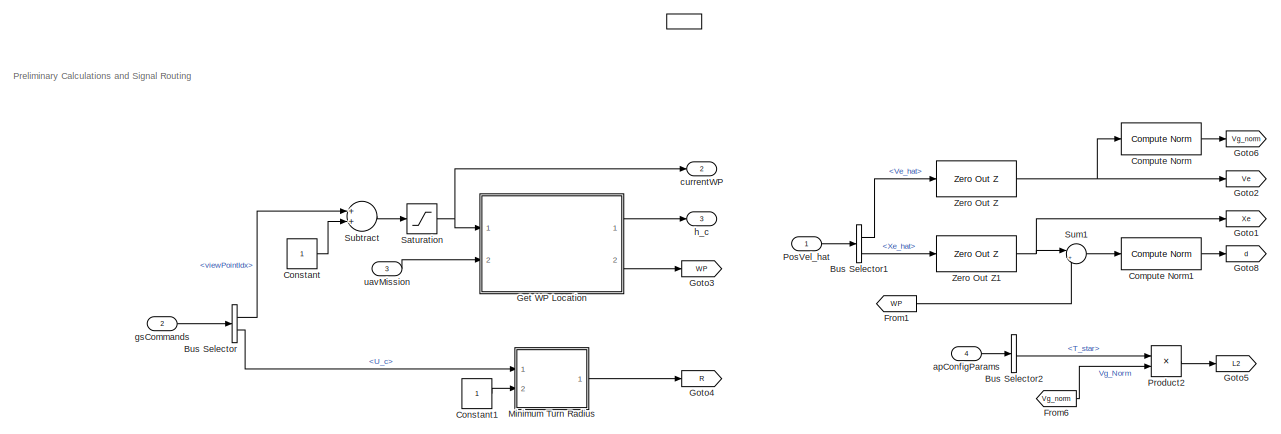
[diagram: GuidanceLogic/GuidanceLogic_Stateflow/GuidanceStateMachine/GuidanceLogic.Orbit - part 1/2, full width, top band]
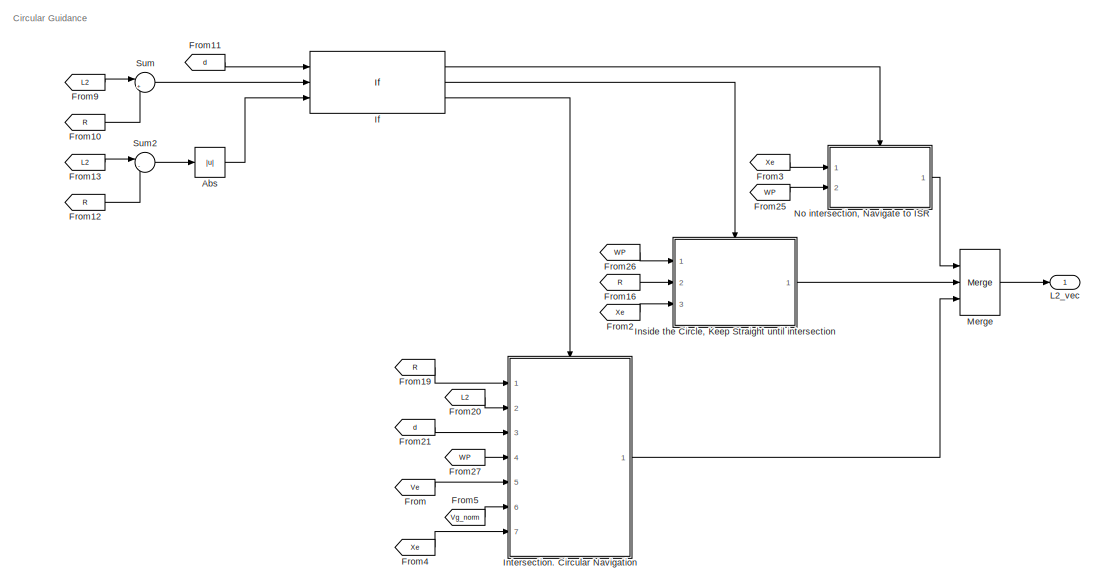
[diagram: GuidanceLogic/GuidanceLogic_Stateflow/GuidanceStateMachine/GuidanceLogic.Orbit - part 2/2, full width, bottom band]
BLOCK [SubSystem] GuidanceLogic/GuidanceLogic_Stateflow/GuidanceStateMachine/GuidanceLogic.Orbit
  Ports = [4, 3, 0, 0, 0, 0, 0, 1]
  PreDeleteFcn = Stateflow.SLINSF.SimulinkMan.removePreDeleteFcn
  RequestExecContextInheritance = off
  UndoDeleteFcn = Stateflow.SLINSF.SimulinkMan.restorePreDeleteFcn
BLOCK [ActionPort] GuidanceLogic/GuidanceLogic_Stateflow/GuidanceStateMachine/GuidanceLogic.Orbit/ 
  CopyFcn = Stateflow.SLINSF.SimulinkMan.removeBlockPreDeleteFcn
  PreDeleteFcn = Stateflow.SLINSF.SimulinkMan.unsafePredeleteFcn
BLOCK [Reference] GuidanceLogic/GuidanceLogic_Stateflow/GuidanceStateMachine/GuidanceLogic.Orbit/ Compute Norm  REF=mbdriLib/Utilities/ Compute Norm
  Ports = [1, 1]
  SourceBlock = mbdriLib/Utilities/ Compute Norm
  SourceProductBaseCode = RO
  SourceProductName = Robotics System Toolbox
  SourceType = SubSystem
BLOCK [Reference] GuidanceLogic/GuidanceLogic_Stateflow/GuidanceStateMachine/GuidanceLogic.Orbit/ Compute Norm1  REF=mbdriLib/Utilities/ Compute Norm
  Ports = [1, 1]
  SourceBlock = mbdriLib/Utilities/ Compute Norm
  SourceProductBaseCode = RO
  SourceProductName = Robotics System Toolbox
  SourceType = SubSystem
BLOCK [Abs] GuidanceLogic/GuidanceLogic_Stateflow/GuidanceStateMachine/GuidanceLogic.Orbit/Abs
  SaturateOnIntegerOverflow = off
BLOCK [BusSelector] GuidanceLogic/GuidanceLogic_Stateflow/GuidanceStateMachine/GuidanceLogic.Orbit/Bus Selector
  OutputAsBus = off
  OutputSignals = viewPointIdx,U_c
  Ports = [1, 2]
BLOCK [BusSelector] GuidanceLogic/GuidanceLogic_Stateflow/GuidanceStateMachine/GuidanceLogic.Orbit/Bus Selector1
  OutputAsBus = off
  OutputSignals = Ve_hat,Xe_hat
  Ports = [1, 2]
BLOCK [BusSelector] GuidanceLogic/GuidanceLogic_Stateflow/GuidanceStateMachine/GuidanceLogic.Orbit/Bus Selector2
  OutputAsBus = off
  OutputSignals = T_star
  Ports = [1, 1]
BLOCK [Constant] GuidanceLogic/GuidanceLogic_Stateflow/GuidanceStateMachine/GuidanceLogic.Orbit/Constant
  AttributesFormatString = %<Value>
  OutDataTypeStr = uint8
BLOCK [Constant] GuidanceLogic/GuidanceLogic_Stateflow/GuidanceStateMachine/GuidanceLogic.Orbit/Constant1
  AttributesFormatString = %<Value>
  OutDataTypeStr = single
BLOCK [From] GuidanceLogic/GuidanceLogic_Stateflow/GuidanceStateMachine/GuidanceLogic.Orbit/From
  GotoTag = Ve
BLOCK [From] GuidanceLogic/GuidanceLogic_Stateflow/GuidanceStateMachine/GuidanceLogic.Orbit/From1
  AttributesFormatString = [%<GotoTag>]
  GotoTag = WP
BLOCK [From] GuidanceLogic/GuidanceLogic_Stateflow/GuidanceStateMachine/GuidanceLogic.Orbit/From10
  AttributesFormatString = [%<GotoTag>]
  GotoTag = R
BLOCK [From] GuidanceLogic/GuidanceLogic_Stateflow/GuidanceStateMachine/GuidanceLogic.Orbit/From11
  AttributesFormatString = [%<GotoTag>]
  GotoTag = d
BLOCK [From] GuidanceLogic/GuidanceLogic_Stateflow/GuidanceStateMachine/GuidanceLogic.Orbit/From12
  AttributesFormatString = [%<GotoTag>]
  GotoTag = R
BLOCK [From] GuidanceLogic/GuidanceLogic_Stateflow/GuidanceStateMachine/GuidanceLogic.Orbit/From13
  AttributesFormatString = [%<GotoTag>]
  GotoTag = L2
BLOCK [From] GuidanceLogic/GuidanceLogic_Stateflow/GuidanceStateMachine/GuidanceLogic.Orbit/From16
  AttributesFormatString = [%<GotoTag>]
  GotoTag = R
BLOCK [From] GuidanceLogic/GuidanceLogic_Stateflow/GuidanceStateMachine/GuidanceLogic.Orbit/From19
  AttributesFormatString = [%<GotoTag>]
  GotoTag = R
BLOCK [From] GuidanceLogic/GuidanceLogic_Stateflow/GuidanceStateMachine/GuidanceLogic.Orbit/From2
  AttributesFormatString = [%<GotoTag>]
  GotoTag = Xe
BLOCK [From] GuidanceLogic/GuidanceLogic_Stateflow/GuidanceStateMachine/GuidanceLogic.Orbit/From20
  AttributesFormatString = [%<GotoTag>]
  GotoTag = L2
BLOCK [From] GuidanceLogic/GuidanceLogic_Stateflow/GuidanceStateMachine/GuidanceLogic.Orbit/From21
  AttributesFormatString = [%<GotoTag>]
  GotoTag = d
BLOCK [From] GuidanceLogic/GuidanceLogic_Stateflow/GuidanceStateMachine/GuidanceLogic.Orbit/From25
  AttributesFormatString = [%<GotoTag>]
  GotoTag = WP
BLOCK [From] GuidanceLogic/GuidanceLogic_Stateflow/GuidanceStateMachine/GuidanceLogic.Orbit/From26
  AttributesFormatString = [%<GotoTag>]
  GotoTag = WP
BLOCK [From] GuidanceLogic/GuidanceLogic_Stateflow/GuidanceStateMachine/GuidanceLogic.Orbit/From27
  AttributesFormatString = [%<GotoTag>]
  GotoTag = WP
BLOCK [From] GuidanceLogic/GuidanceLogic_Stateflow/GuidanceStateMachine/GuidanceLogic.Orbit/From3
  AttributesFormatString = [%<GotoTag>]
  GotoTag = Xe
BLOCK [From] GuidanceLogic/GuidanceLogic_Stateflow/GuidanceStateMachine/GuidanceLogic.Orbit/From4
  AttributesFormatString = [%<GotoTag>]
  GotoTag = Xe
BLOCK [From] GuidanceLogic/GuidanceLogic_Stateflow/GuidanceStateMachine/GuidanceLogic.Orbit/From5
  GotoTag = Vg_norm
BLOCK [From] GuidanceLogic/GuidanceLogic_Stateflow/GuidanceStateMachine/GuidanceLogic.Orbit/From6
  GotoTag = Vg_norm
BLOCK [From] GuidanceLogic/GuidanceLogic_Stateflow/GuidanceStateMachine/GuidanceLogic.Orbit/From9
  AttributesFormatString = [%<GotoTag>]
  GotoTag = L2
BLOCK [SubSystem] GuidanceLogic/GuidanceLogic_Stateflow/GuidanceStateMachine/GuidanceLogic.Orbit/Get WP Location
  Ports = [2, 2]
  RequestExecContextInheritance = off
BLOCK [BusSelector] GuidanceLogic/GuidanceLogic_Stateflow/GuidanceStateMachine/GuidanceLogic.Orbit/Get WP Location/Bus Selector
  OutputAsBus = off
  OutputSignals = wpPos
  Ports = [1, 1]
BLOCK [BusSelector] GuidanceLogic/GuidanceLogic_Stateflow/GuidanceStateMachine/GuidanceLogic.Orbit/Get WP Location/Bus Selector1
  OutputAsBus = off
  OutputSignals = wpPos
  Ports = [1, 1]
BLOCK [Demux] GuidanceLogic/GuidanceLogic_Stateflow/GuidanceStateMachine/GuidanceLogic.Orbit/Get WP Location/Demux
  DisplayOption = bar
  Outputs = [2 1]
  Ports = [1, 2]
BLOCK [Outport] GuidanceLogic/GuidanceLogic_Stateflow/GuidanceStateMachine/GuidanceLogic.Orbit/Get WP Location/Hc
  IconDisplay = Port number
  VectorParamsAs1DForOutWhenUnconnected = off
BLOCK [Delay] GuidanceLogic/GuidanceLogic_Stateflow/GuidanceStateMachine/GuidanceLogic.Orbit/Get WP Location/Integer Delay1
  DelayLength = 1
  InputPortMap = u0
  Ports = [1, 1]
BLOCK [Reference] GuidanceLogic/GuidanceLogic_Stateflow/GuidanceStateMachine/GuidanceLogic.Orbit/Get WP Location/LLA to Flat Earth  REF=aerolibtransform2/LLA to Flat Earth
  Commented = on
  Ports = [3, 1]
  SourceBlock = aerolibtransform2/LLA to Flat Earth
  SourceProductBaseCode = AE
  SourceProductName = Aerospace Blockset
  SourceType = LLA to Flat Earth
BLOCK [Reference] GuidanceLogic/GuidanceLogic_Stateflow/GuidanceStateMachine/GuidanceLogic.Orbit/Get WP Location/LLA to Flat Earth with Init Pos  REF=mbdriLib/Coordinates/LLA to Flat Earth with Init Pos
  Ports = [4, 1]
  SourceBlock = mbdriLib/Coordinates/LLA to Flat Earth with Init Pos
  SourceProductBaseCode = RO
  SourceProductName = Robotics System Toolbox
BLOCK [Selector] GuidanceLogic/GuidanceLogic_Stateflow/GuidanceStateMachine/GuidanceLogic.Orbit/Get WP Location/Selector
  AttributesFormatString = %<Indices>
  IndexOptions = Index vector (dialog)
  Indices = [3]
  InputPortWidth = 3
  OutputSizes = 1
  Ports = [1, 1]
BLOCK [Selector] GuidanceLogic/GuidanceLogic_Stateflow/GuidanceStateMachine/GuidanceLogic.Orbit/Get WP Location/Selector1
  AttributesFormatString = %<Indices>
  IndexOptions = Index vector (port)
  Indices = [3]
  InputPortWidth = 10
  OutputSizes = 1
  Ports = [2, 1]
BLOCK [Selector] GuidanceLogic/GuidanceLogic_Stateflow/GuidanceStateMachine/GuidanceLogic.Orbit/Get WP Location/Selector2
  AttributesFormatString = %<Indices>
  IndexOptions = Index vector (dialog)
  Indices = [1]
  InputPortWidth = 10
  OutputSizes = 1
  Ports = [1, 1]
BLOCK [Selector] GuidanceLogic/GuidanceLogic_Stateflow/GuidanceStateMachine/GuidanceLogic.Orbit/Get WP Location/Selector3
  AttributesFormatString = %<Indices>
  IndexOptions = Index vector (dialog)
  Indices = [3]
  InputPortWidth = 3
  OutputSizes = 1
  Ports = [1, 1]
BLOCK [Selector] GuidanceLogic/GuidanceLogic_Stateflow/GuidanceStateMachine/GuidanceLogic.Orbit/Get WP Location/Selector4
  AttributesFormatString = %<Indices>
  IndexOptions = Index vector (dialog)
  Indices = [1 2]
  InputPortWidth = 3
  OutputSizes = 1
  Ports = [1, 1]
BLOCK [Inport] GuidanceLogic/GuidanceLogic_Stateflow/GuidanceStateMachine/GuidanceLogic.Orbit/Get WP Location/UAVMission
  IconDisplay = Port number
  Port = 2
BLOCK [Outport] GuidanceLogic/GuidanceLogic_Stateflow/GuidanceStateMachine/GuidanceLogic.Orbit/Get WP Location/WP
  IconDisplay = Port number
  Port = 2
  VectorParamsAs1DForOutWhenUnconnected = off
BLOCK [Reference] GuidanceLogic/GuidanceLogic_Stateflow/GuidanceStateMachine/GuidanceLogic.Orbit/Get WP Location/Zero Out Z  REF=mbdriLib/Utilities/Zero Out Z
  Ports = [1, 1]
  SourceBlock = mbdriLib/Utilities/Zero Out Z
  SourceProductBaseCode = RO
  SourceProductName = Robotics System Toolbox
  SourceType = SubSystem
BLOCK [Inport] GuidanceLogic/GuidanceLogic_Stateflow/GuidanceStateMachine/GuidanceLogic.Orbit/Get WP Location/viewPoint
  IconDisplay = Port number
BLOCK [Goto] GuidanceLogic/GuidanceLogic_Stateflow/GuidanceStateMachine/GuidanceLogic.Orbit/Goto1
  AttributesFormatString = [%<GotoTag>]
  GotoTag = Xe
BLOCK [Goto] GuidanceLogic/GuidanceLogic_Stateflow/GuidanceStateMachine/GuidanceLogic.Orbit/Goto2
  AttributesFormatString = [%<GotoTag>]
  GotoTag = Ve
BLOCK [Goto] GuidanceLogic/GuidanceLogic_Stateflow/GuidanceStateMachine/GuidanceLogic.Orbit/Goto3
  AttributesFormatString = [%<GotoTag>]
  GotoTag = WP
BLOCK [Goto] GuidanceLogic/GuidanceLogic_Stateflow/GuidanceStateMachine/GuidanceLogic.Orbit/Goto4
  AttributesFormatString = [%<GotoTag>]
  GotoTag = R
BLOCK [Goto] GuidanceLogic/GuidanceLogic_Stateflow/GuidanceStateMachine/GuidanceLogic.Orbit/Goto5
  AttributesFormatString = [%<GotoTag>]
  GotoTag = L2
BLOCK [Goto] GuidanceLogic/GuidanceLogic_Stateflow/GuidanceStateMachine/GuidanceLogic.Orbit/Goto6
  AttributesFormatString = [%<GotoTag>]
  GotoTag = Vg_norm
BLOCK [Goto] GuidanceLogic/GuidanceLogic_Stateflow/GuidanceStateMachine/GuidanceLogic.Orbit/Goto8
  AttributesFormatString = [%<GotoTag>]
  GotoTag = d
BLOCK [If] GuidanceLogic/GuidanceLogic_Stateflow/GuidanceStateMachine/GuidanceLogic.Orbit/If
  ElseIfExpressions = u1 < u3
  IfExpression = u1 > u2
  NumInputs = 3
  Ports = [3, 3]
BLOCK [SubSystem] GuidanceLogic/GuidanceLogic_Stateflow/GuidanceStateMachine/GuidanceLogic.Orbit/Inside the Circle, Keep Straight until intersection
  Ports = [3, 1, 0, 0, 0, 0, 0, 1]
  RequestExecContextInheritance = off
  TreatAsAtomicUnit = on
BLOCK [ActionPort] GuidanceLogic/GuidanceLogic_Stateflow/GuidanceStateMachine/GuidanceLogic.Orbit/Inside the Circle, Keep Straight until intersection/Action Port
  ActionPortLabel = elseif(u1 < u3)
BLOCK [Demux] GuidanceLogic/GuidanceLogic_Stateflow/GuidanceStateMachine/GuidanceLogic.Orbit/Inside the Circle, Keep Straight until intersection/Demux
  DisplayOption = bar
  Outputs = [1 2]
  Ports = [1, 2]
BLOCK [Outport] GuidanceLogic/GuidanceLogic_Stateflow/GuidanceStateMachine/GuidanceLogic.Orbit/Inside the Circle, Keep Straight until intersection/L2 Vec
  IconDisplay = Port number
  VectorParamsAs1DForOutWhenUnconnected = off
BLOCK [Mux] GuidanceLogic/GuidanceLogic_Stateflow/GuidanceStateMachine/GuidanceLogic.Orbit/Inside the Circle, Keep Straight until intersection/Mux
  DisplayOption = bar
  Inputs = 2
  Ports = [2, 1]
BLOCK [Inport] GuidanceLogic/GuidanceLogic_Stateflow/GuidanceStateMachine/GuidanceLogic.Orbit/Inside the Circle, Keep Straight until intersection/R
  IconDisplay = Port number
  Port = 2
BLOCK [Sum] GuidanceLogic/GuidanceLogic_Stateflow/GuidanceStateMachine/GuidanceLogic.Orbit/Inside the Circle, Keep Straight until intersection/Subtract
  InputSameDT = off
  Inputs = +-
  OutDataTypeStr = single
  Ports = [2, 1]
  SaturateOnIntegerOverflow = off
BLOCK [Sum] GuidanceLogic/GuidanceLogic_Stateflow/GuidanceStateMachine/GuidanceLogic.Orbit/Inside the Circle, Keep Straight until intersection/Subtract1
  InputSameDT = off
  OutDataTypeStr = single
  Ports = [2, 1]
  SaturateOnIntegerOverflow = off
BLOCK [Inport] GuidanceLogic/GuidanceLogic_Stateflow/GuidanceStateMachine/GuidanceLogic.Orbit/Inside the Circle, Keep Straight until intersection/WP
  IconDisplay = Port number
BLOCK [Inport] GuidanceLogic/GuidanceLogic_Stateflow/GuidanceStateMachine/GuidanceLogic.Orbit/Inside the Circle, Keep Straight until intersection/Xe
  IconDisplay = Port number
  Port = 3
BLOCK [SubSystem] GuidanceLogic/GuidanceLogic_Stateflow/GuidanceStateMachine/GuidanceLogic.Orbit/Intersection. Circular Navigation
  Ports = [7, 1, 0, 0, 0, 0, 0, 1]
  RequestExecContextInheritance = off
  TreatAsAtomicUnit = on
BLOCK [ActionPort] GuidanceLogic/GuidanceLogic_Stateflow/GuidanceStateMachine/GuidanceLogic.Orbit/Intersection. Circular Navigation/Action Port
  ActionPortLabel = else
BLOCK [SubSystem] GuidanceLogic/GuidanceLogic_Stateflow/GuidanceStateMachine/GuidanceLogic.Orbit/Intersection. Circular Navigation/Compute Hyp
  Ports = [3, 2]
  RequestExecContextInheritance = off
BLOCK [Inport] GuidanceLogic/GuidanceLogic_Stateflow/GuidanceStateMachine/GuidanceLogic.Orbit/Intersection. Circular Navigation/Compute Hyp/L2
  IconDisplay = Port number
  Port = 2
BLOCK [Math] GuidanceLogic/GuidanceLogic_Stateflow/GuidanceStateMachine/GuidanceLogic.Orbit/Intersection. Circular Navigation/Compute Hyp/Math Function
  Operator = square
  Ports = [1, 1]
BLOCK [Math] GuidanceLogic/GuidanceLogic_Stateflow/GuidanceStateMachine/GuidanceLogic.Orbit/Intersection. Circular Navigation/Compute Hyp/Math Function1
  Operator = square
  Ports = [1, 1]
BLOCK [Math] GuidanceLogic/GuidanceLogic_Stateflow/GuidanceStateMachine/GuidanceLogic.Orbit/Intersection. Circular Navigation/Compute Hyp/Math Function2
  Operator = square
  Ports = [1, 1]
BLOCK [Math] GuidanceLogic/GuidanceLogic_Stateflow/GuidanceStateMachine/GuidanceLogic.Orbit/Intersection. Circular Navigation/Compute Hyp/Math Function3
  Operator = square
  Ports = [1, 1]
BLOCK [Reference] GuidanceLogic/GuidanceLogic_Stateflow/GuidanceStateMachine/GuidanceLogic.Orbit/Intersection. Circular Navigation/Compute Hyp/Negative Protected Sqrt  REF=mbdriLib/Utilities/Negative Protected
Sqrt
  Ports = [1, 1]
  SourceBlock = mbdriLib/Utilities/Negative Protected\nSqrt
  SourceProductBaseCode = RO
  SourceProductName = Robotics System Toolbox
  SourceType = SubSystem
BLOCK [Product] GuidanceLogic/GuidanceLogic_Stateflow/GuidanceStateMachine/GuidanceLogic.Orbit/Intersection. Circular Navigation/Compute Hyp/Product3
  InputSameDT = off
  Inputs = */
  OutDataTypeStr = Inherit: Inherit via internal rule
  Ports = [2, 1]
  SaturateOnIntegerOverflow = off
BLOCK [Inport] GuidanceLogic/GuidanceLogic_Stateflow/GuidanceStateMachine/GuidanceLogic.Orbit/Intersection. Circular Navigation/Compute Hyp/R
  IconDisplay = Port number
BLOCK [Sum] GuidanceLogic/GuidanceLogic_Stateflow/GuidanceStateMachine/GuidanceLogic.Orbit/Intersection. Circular Navigation/Compute Hyp/Subtract
  InputSameDT = off
  Inputs = +-+
  OutDataTypeStr = Inherit: Inherit via internal rule
  Ports = [3, 1]
  SaturateOnIntegerOverflow = off
BLOCK [Sum] GuidanceLogic/GuidanceLogic_Stateflow/GuidanceStateMachine/GuidanceLogic.Orbit/Intersection. Circular Navigation/Compute Hyp/Subtract1
  InputSameDT = off
  Inputs = 2
  OutDataTypeStr = Inherit: Inherit via internal rule
  Ports = [2, 1]
  SaturateOnIntegerOverflow = off
BLOCK [Sum] GuidanceLogic/GuidanceLogic_Stateflow/GuidanceStateMachine/GuidanceLogic.Orbit/Intersection. Circular Navigation/Compute Hyp/Subtract2
  InputSameDT = off
  Inputs = +-
  OutDataTypeStr = Inherit: Inherit via internal rule
  Ports = [2, 1]
  SaturateOnIntegerOverflow = off
BLOCK [Saturate] GuidanceLogic/GuidanceLogic_Stateflow/GuidanceStateMachine/GuidanceLogic.Orbit/Intersection. Circular Navigation/Compute Hyp/Zero Bound
  AttributesFormatString = [%<LowerLimit>  %<UpperLimit>]
  InputPortMap = u0
  LowerLimit = 0.001
  Ports = [1, 1]
  UpperLimit = inf
BLOCK [Outport] GuidanceLogic/GuidanceLogic_Stateflow/GuidanceStateMachine/GuidanceLogic.Orbit/Intersection. Circular Navigation/Compute Hyp/a
  IconDisplay = Port number
  Port = 2
  VectorParamsAs1DForOutWhenUnconnected = off
BLOCK [Inport] GuidanceLogic/GuidanceLogic_Stateflow/GuidanceStateMachine/GuidanceLogic.Orbit/Intersection. Circular Navigation/Compute Hyp/d
  IconDisplay = Port number
  Port = 3
BLOCK [Outport] GuidanceLogic/GuidanceLogic_Stateflow/GuidanceStateMachine/GuidanceLogic.Orbit/Intersection. Circular Navigation/Compute Hyp/h
  IconDisplay = Port number
  VectorParamsAs1DForOutWhenUnconnected = off
BLOCK [SubSystem] GuidanceLogic/GuidanceLogic_Stateflow/GuidanceStateMachine/GuidanceLogic.Orbit/Intersection. Circular Navigation/Compute L2
  Ports = [5, 1]
  RequestExecContextInheritance = off
BLOCK [Abs] GuidanceLogic/GuidanceLogic_Stateflow/GuidanceStateMachine/GuidanceLogic.Orbit/Intersection. Circular Navigation/Compute L2/Abs
  SaturateOnIntegerOverflow = off
BLOCK [Abs] GuidanceLogic/GuidanceLogic_Stateflow/GuidanceStateMachine/GuidanceLogic.Orbit/Intersection. Circular Navigation/Compute L2/Abs1
  SaturateOnIntegerOverflow = off
BLOCK [Reference] GuidanceLogic/GuidanceLogic_Stateflow/GuidanceStateMachine/GuidanceLogic.Orbit/Intersection. Circular Navigation/Compute L2/Compute Angle Between Vectors  REF=mbdriLib/Utilities/Compute Angle
Between Vectors
  Ports = [3, 1]
  SourceBlock = mbdriLib/Utilities/Compute Angle\nBetween Vectors
  SourceProductBaseCode = RO
  SourceProductName = Robotics System Toolbox
  SourceType = SubSystem
BLOCK [Reference] GuidanceLogic/GuidanceLogic_Stateflow/GuidanceStateMachine/GuidanceLogic.Orbit/Intersection. Circular Navigation/Compute L2/Compute Angle Between Vectors1  REF=mbdriLib/Utilities/Compute Angle
Between Vectors
  Ports = [3, 1]
  SourceBlock = mbdriLib/Utilities/Compute Angle\nBetween Vectors
  SourceProductBaseCode = RO
  SourceProductName = Robotics System Toolbox
  SourceType = SubSystem
BLOCK [Outport] GuidanceLogic/GuidanceLogic_Stateflow/GuidanceStateMachine/GuidanceLogic.Orbit/Intersection. Circular Navigation/Compute L2/L2
  IconDisplay = Port number
  VectorParamsAs1DForOutWhenUnconnected = off
BLOCK [Inport] GuidanceLogic/GuidanceLogic_Stateflow/GuidanceStateMachine/GuidanceLogic.Orbit/Intersection. Circular Navigation/Compute L2/P31
  IconDisplay = Port number
  Port = 3
BLOCK [Inport] GuidanceLogic/GuidanceLogic_Stateflow/GuidanceStateMachine/GuidanceLogic.Orbit/Intersection. Circular Navigation/Compute L2/P32
  IconDisplay = Port number
  Port = 5
BLOCK [RelationalOperator] GuidanceLogic/GuidanceLogic_Stateflow/GuidanceStateMachine/GuidanceLogic.Orbit/Intersection. Circular Navigation/Compute L2/Relational Operator
  InputSameDT = off
  Operator = <=
  OutDataTypeStr = boolean
  Ports = [2, 1]
BLOCK [Sum] GuidanceLogic/GuidanceLogic_Stateflow/GuidanceStateMachine/GuidanceLogic.Orbit/Intersection. Circular Navigation/Compute L2/Subtract5
  InputSameDT = off
  Inputs = +-
  OutDataTypeStr = Inherit: Inherit via internal rule
  Ports = [2, 1]
  SaturateOnIntegerOverflow = off
BLOCK [Sum] GuidanceLogic/GuidanceLogic_Stateflow/GuidanceStateMachine/GuidanceLogic.Orbit/Intersection. Circular Navigation/Compute L2/Subtract6
  InputSameDT = off
  Inputs = -+
  OutDataTypeStr = Inherit: Inherit via internal rule
  Ports = [2, 1]
  SaturateOnIntegerOverflow = off
BLOCK [Switch] GuidanceLogic/GuidanceLogic_Stateflow/GuidanceStateMachine/GuidanceLogic.Orbit/Intersection. Circular Navigation/Compute L2/Switch1
  Criteria = u2 > Threshold
  InputSameDT = off
  SaturateOnIntegerOverflow = off
  Threshold = 0.3
  ZeroCross = off
BLOCK [Inport] GuidanceLogic/GuidanceLogic_Stateflow/GuidanceStateMachine/GuidanceLogic.Orbit/Intersection. Circular Navigation/Compute L2/Ve
  IconDisplay = Port number
BLOCK [Inport] GuidanceLogic/GuidanceLogic_Stateflow/GuidanceStateMachine/GuidanceLogic.Orbit/Intersection. Circular Navigation/Compute L2/Xe
  IconDisplay = Port number
  Port = 4
BLOCK [Inport] GuidanceLogic/GuidanceLogic_Stateflow/GuidanceStateMachine/GuidanceLogic.Orbit/Intersection. Circular Navigation/Compute L2/|Vg|
  IconDisplay = Port number
  Port = 2
BLOCK [SubSystem] GuidanceLogic/GuidanceLogic_Stateflow/GuidanceStateMachine/GuidanceLogic.Orbit/Intersection. Circular Navigation/Compute P2
  Ports = [4, 2]
  RequestExecContextInheritance = off
BLOCK [Outport] GuidanceLogic/GuidanceLogic_Stateflow/GuidanceStateMachine/GuidanceLogic.Orbit/Intersection. Circular Navigation/Compute P2/(Xe-Wp)*d^-1
  IconDisplay = Port number
  VectorParamsAs1DForOutWhenUnconnected = off
BLOCK [Outport] GuidanceLogic/GuidanceLogic_Stateflow/GuidanceStateMachine/GuidanceLogic.Orbit/Intersection. Circular Navigation/Compute P2/P2
  IconDisplay = Port number
  Port = 2
  VectorParamsAs1DForOutWhenUnconnected = off
BLOCK [Product] GuidanceLogic/GuidanceLogic_Stateflow/GuidanceStateMachine/GuidanceLogic.Orbit/Intersection. Circular Navigation/Compute P2/Product6
  InputSameDT = off
  Inputs = */
  OutDataTypeStr = Inherit: Inherit via internal rule
  Ports = [2, 1]
  SaturateOnIntegerOverflow = off
BLOCK [Product] GuidanceLogic/GuidanceLogic_Stateflow/GuidanceStateMachine/GuidanceLogic.Orbit/Intersection. Circular Navigation/Compute P2/Product7
  InputSameDT = off
  OutDataTypeStr = Inherit: Inherit via internal rule
  Ports = [2, 1]
  SaturateOnIntegerOverflow = off
BLOCK [Sum] GuidanceLogic/GuidanceLogic_Stateflow/GuidanceStateMachine/GuidanceLogic.Orbit/Intersection. Circular Navigation/Compute P2/Subtract3
  InputSameDT = off
  Inputs = 2
  OutDataTypeStr = Inherit: Inherit via internal rule
  Ports = [2, 1]
  SaturateOnIntegerOverflow = off
BLOCK [Sum] GuidanceLogic/GuidanceLogic_Stateflow/GuidanceStateMachine/GuidanceLogic.Orbit/Intersection. Circular Navigation/Compute P2/Subtract4
  InputSameDT = off
  Inputs = -+
  OutDataTypeStr = Inherit: Inherit via internal rule
  Ports = [2, 1]
  SaturateOnIntegerOverflow = off
BLOCK [Inport] GuidanceLogic/GuidanceLogic_Stateflow/GuidanceStateMachine/GuidanceLogic.Orbit/Intersection. Circular Navigation/Compute P2/WP
  IconDisplay = Port number
  Port = 3
BLOCK [Inport] GuidanceLogic/GuidanceLogic_Stateflow/GuidanceStateMachine/GuidanceLogic.Orbit/Intersection. Circular Navigation/Compute P2/Xe
  IconDisplay = Port number
  Port = 4
BLOCK [Saturate] GuidanceLogic/GuidanceLogic_Stateflow/GuidanceStateMachine/GuidanceLogic.Orbit/Intersection. Circular Navigation/Compute P2/Zero Bound1
  AttributesFormatString = [%<LowerLimit>  %<UpperLimit>]
  InputPortMap = u0
  LowerLimit = 0.001
  Ports = [1, 1]
  UpperLimit = inf
BLOCK [Inport] GuidanceLogic/GuidanceLogic_Stateflow/GuidanceStateMachine/GuidanceLogic.Orbit/Intersection. Circular Navigation/Compute P2/a
  IconDisplay = Port number
BLOCK [Inport] GuidanceLogic/GuidanceLogic_Stateflow/GuidanceStateMachine/GuidanceLogic.Orbit/Intersection. Circular Navigation/Compute P2/d
  IconDisplay = Port number
  Port = 2
BLOCK [SubSystem] GuidanceLogic/GuidanceLogic_Stateflow/GuidanceStateMachine/GuidanceLogic.Orbit/Intersection. Circular Navigation/Compute the Intersection Points
  ErrorFcn = Stateflow.Translate.translate
  PermitHierarchicalResolution = ExplicitOnly
  Ports = [2, 2]
  RequestExecContextInheritance = off
  SFBlockType = MATLAB Function
  TreatAsAtomicUnit = on
BLOCK [Demux] GuidanceLogic/GuidanceLogic_Stateflow/GuidanceStateMachine/GuidanceLogic.Orbit/Intersection. Circular Navigation/Compute the Intersection Points/ Demux 
  Outputs = 1
  Ports = [1, 1]
BLOCK [S-Function] GuidanceLogic/GuidanceLogic_Stateflow/GuidanceStateMachine/GuidanceLogic.Orbit/Intersection. Circular Navigation/Compute the Intersection Points/ SFunction 
  EnableBusSupport = off
  FunctionName = sf_sfun
  PortCounts = [2 3]
  Ports = [2, 3]
  SFcnIsStateOwnerBlock = off
  SFunctionDeploymentMode = off
  Tag = Stateflow S-Function 7
BLOCK [Terminator] GuidanceLogic/GuidanceLogic_Stateflow/GuidanceStateMachine/GuidanceLogic.Orbit/Intersection. Circular Navigation/Compute the Intersection Points/ Terminator 
BLOCK [Inport] GuidanceLogic/GuidanceLogic_Stateflow/GuidanceStateMachine/GuidanceLogic.Orbit/Intersection. Circular Navigation/Compute the Intersection Points/P2
  IconDisplay = Port number
  Port = 2
BLOCK [Outport] GuidanceLogic/GuidanceLogic_Stateflow/GuidanceStateMachine/GuidanceLogic.Orbit/Intersection. Circular Navigation/Compute the Intersection Points/P31
  IconDisplay = Port number
  VectorParamsAs1DForOutWhenUnconnected = off
BLOCK [Outport] GuidanceLogic/GuidanceLogic_Stateflow/GuidanceStateMachine/GuidanceLogic.Orbit/Intersection. Circular Navigation/Compute the Intersection Points/P32
  IconDisplay = Port number
  Port = 2
  VectorParamsAs1DForOutWhenUnconnected = off
BLOCK [Inport] GuidanceLogic/GuidanceLogic_Stateflow/GuidanceStateMachine/GuidanceLogic.Orbit/Intersection. Circular Navigation/Compute the Intersection Points/hFact
  IconDisplay = Port number
BLOCK [Inport] GuidanceLogic/GuidanceLogic_Stateflow/GuidanceStateMachine/GuidanceLogic.Orbit/Intersection. Circular Navigation/L2
  IconDisplay = Port number
  Port = 2
BLOCK [Outport] GuidanceLogic/GuidanceLogic_Stateflow/GuidanceStateMachine/GuidanceLogic.Orbit/Intersection. Circular Navigation/L2 Vec
  IconDisplay = Port number
  VectorParamsAs1DForOutWhenUnconnected = off
BLOCK [Product] GuidanceLogic/GuidanceLogic_Stateflow/GuidanceStateMachine/GuidanceLogic.Orbit/Intersection. Circular Navigation/Product5
  InputSameDT = off
  OutDataTypeStr = Inherit: Inherit via internal rule
  Ports = [2, 1]
  SaturateOnIntegerOverflow = off
BLOCK [Inport] GuidanceLogic/GuidanceLogic_Stateflow/GuidanceStateMachine/GuidanceLogic.Orbit/Intersection. Circular Navigation/R
  IconDisplay = Port number
BLOCK [Inport] GuidanceLogic/GuidanceLogic_Stateflow/GuidanceStateMachine/GuidanceLogic.Orbit/Intersection. Circular Navigation/Ve
  IconDisplay = Port number
  Port = 5
BLOCK [Inport] GuidanceLogic/GuidanceLogic_Stateflow/GuidanceStateMachine/GuidanceLogic.Orbit/Intersection. Circular Navigation/WP
  IconDisplay = Port number
  Port = 4
BLOCK [Inport] GuidanceLogic/GuidanceLogic_Stateflow/GuidanceStateMachine/GuidanceLogic.Orbit/Intersection. Circular Navigation/Xe
  IconDisplay = Port number
  Port = 7
BLOCK [InportShadow] GuidanceLogic/GuidanceLogic_Stateflow/GuidanceStateMachine/GuidanceLogic.Orbit/Intersection. Circular Navigation/Xe1
  IconDisplay = Port number
  Port = 7
BLOCK [Inport] GuidanceLogic/GuidanceLogic_Stateflow/GuidanceStateMachine/GuidanceLogic.Orbit/Intersection. Circular Navigation/d
  IconDisplay = Port number
  Port = 3
BLOCK [InportShadow] GuidanceLogic/GuidanceLogic_Stateflow/GuidanceStateMachine/GuidanceLogic.Orbit/Intersection. Circular Navigation/d 
  IconDisplay = Port number
  Port = 3
BLOCK [Inport] GuidanceLogic/GuidanceLogic_Stateflow/GuidanceStateMachine/GuidanceLogic.Orbit/Intersection. Circular Navigation/|Vg|
  IconDisplay = Port number
  Port = 6
BLOCK [Outport] GuidanceLogic/GuidanceLogic_Stateflow/GuidanceStateMachine/GuidanceLogic.Orbit/L2_vec
  IconDisplay = Port number
  VectorParamsAs1DForOutWhenUnconnected = off
BLOCK [Merge] GuidanceLogic/GuidanceLogic_Stateflow/GuidanceStateMachine/GuidanceLogic.Orbit/Merge
  Inputs = 3
  Ports = [3, 1]
BLOCK [SubSystem] GuidanceLogic/GuidanceLogic_Stateflow/GuidanceStateMachine/GuidanceLogic.Orbit/Minimum Turn Radius
  Ports = [2, 1]
  RequestExecContextInheritance = off
BLOCK [Constant] GuidanceLogic/GuidanceLogic_Stateflow/GuidanceStateMachine/GuidanceLogic.Orbit/Minimum Turn Radius/Constant1
  AttributesFormatString = %<Value>
  OutDataTypeStr = single
  Value = ap.guidance.maxAcc
BLOCK [Math] GuidanceLogic/GuidanceLogic_Stateflow/GuidanceStateMachine/GuidanceLogic.Orbit/Minimum Turn Radius/Math Function
  Operator = square
  Ports = [1, 1]
BLOCK [Product] GuidanceLogic/GuidanceLogic_Stateflow/GuidanceStateMachine/GuidanceLogic.Orbit/Minimum Turn Radius/Product2
  InputSameDT = off
  OutDataTypeStr = Inherit: Inherit via internal rule
  Ports = [2, 1]
  SaturateOnIntegerOverflow = off
BLOCK [Product] GuidanceLogic/GuidanceLogic_Stateflow/GuidanceStateMachine/GuidanceLogic.Orbit/Minimum Turn Radius/Product3
  InputSameDT = off
  Inputs = */
  OutDataTypeStr = Inherit: Inherit via internal rule
  Ports = [2, 1]
  SaturateOnIntegerOverflow = off
BLOCK [Outport] GuidanceLogic/GuidanceLogic_Stateflow/GuidanceStateMachine/GuidanceLogic.Orbit/Minimum Turn Radius/R
  IconDisplay = Port number
  VectorParamsAs1DForOutWhenUnconnected = off
BLOCK [Inport] GuidanceLogic/GuidanceLogic_Stateflow/GuidanceStateMachine/GuidanceLogic.Orbit/Minimum Turn Radius/Scale Factor
  IconDisplay = Port number
  Port = 2
BLOCK [Inport] GuidanceLogic/GuidanceLogic_Stateflow/GuidanceStateMachine/GuidanceLogic.Orbit/Minimum Turn Radius/U_c
  IconDisplay = Port number
BLOCK [Saturate] GuidanceLogic/GuidanceLogic_Stateflow/GuidanceStateMachine/GuidanceLogic.Orbit/Minimum Turn Radius/[1.5 10]
  AttributesFormatString = [%<LowerLimit>  %<UpperLimit>]
  InputPortMap = u0
  LowerLimit = 1.5
  Ports = [1, 1]
  UpperLimit = 10
BLOCK [SubSystem] GuidanceLogic/GuidanceLogic_Stateflow/GuidanceStateMachine/GuidanceLogic.Orbit/No intersection, Navigate to ISR
  Ports = [2, 1, 0, 0, 0, 0, 0, 1]
  RequestExecContextInheritance = off
  TreatAsAtomicUnit = on
BLOCK [ActionPort] GuidanceLogic/GuidanceLogic_Stateflow/GuidanceStateMachine/GuidanceLogic.Orbit/No intersection, Navigate to ISR/Action Port
  ActionPortLabel = if(u1 > u2)
BLOCK [Outport] GuidanceLogic/GuidanceLogic_Stateflow/GuidanceStateMachine/GuidanceLogic.Orbit/No intersection, Navigate to ISR/L2 Vec
  IconDisplay = Port number
  VectorParamsAs1DForOutWhenUnconnected = off
BLOCK [Sum] GuidanceLogic/GuidanceLogic_Stateflow/GuidanceStateMachine/GuidanceLogic.Orbit/No intersection, Navigate to ISR/Subtract
  InputSameDT = off
  Inputs = +-
  OutDataTypeStr = Inherit: Inherit via internal rule
  Ports = [2, 1]
  SaturateOnIntegerOverflow = off
BLOCK [Inport] GuidanceLogic/GuidanceLogic_Stateflow/GuidanceStateMachine/GuidanceLogic.Orbit/No intersection, Navigate to ISR/WP
  IconDisplay = Port number
  Port = 2
BLOCK [Inport] GuidanceLogic/GuidanceLogic_Stateflow/GuidanceStateMachine/GuidanceLogic.Orbit/No intersection, Navigate to ISR/Xe
  IconDisplay = Port number
BLOCK [Inport] GuidanceLogic/GuidanceLogic_Stateflow/GuidanceStateMachine/GuidanceLogic.Orbit/PosVel_hat
  IconDisplay = Port number
BLOCK [Product] GuidanceLogic/GuidanceLogic_Stateflow/GuidanceStateMachine/GuidanceLogic.Orbit/Product2
  InputSameDT = off
  OutDataTypeStr = Inherit: Inherit via internal rule
  Ports = [2, 1]
  RndMeth = Floor
  SaturateOnIntegerOverflow = off
BLOCK [Saturate] GuidanceLogic/GuidanceLogic_Stateflow/GuidanceStateMachine/GuidanceLogic.Orbit/Saturation
  AttributesFormatString = [%<LowerLimit> %<UpperLimit>]
  InputPortMap = u0
  LowerLimit = 1
  Ports = [1, 1]
  UpperLimit = 9
BLOCK [Sum] GuidanceLogic/GuidanceLogic_Stateflow/GuidanceStateMachine/GuidanceLogic.Orbit/Subtract
  InputSameDT = off
  Inputs = 2
  OutDataTypeStr = Inherit: Inherit via internal rule
  Ports = [2, 1]
  SaturateOnIntegerOverflow = off
BLOCK [Sum] GuidanceLogic/GuidanceLogic_Stateflow/GuidanceStateMachine/GuidanceLogic.Orbit/Sum
  IconShape = round
  InputSameDT = off
  Inputs = |++
  OutDataTypeStr = Inherit: Inherit via internal rule
  Ports = [2, 1]
  SaturateOnIntegerOverflow = off
BLOCK [Sum] GuidanceLogic/GuidanceLogic_Stateflow/GuidanceStateMachine/GuidanceLogic.Orbit/Sum1
  IconShape = round
  InputSameDT = off
  Inputs = |+-
  OutDataTypeStr = Inherit: Inherit via internal rule
  Ports = [2, 1]
  SaturateOnIntegerOverflow = off
BLOCK [Sum] GuidanceLogic/GuidanceLogic_Stateflow/GuidanceStateMachine/GuidanceLogic.Orbit/Sum2
  IconShape = round
  InputSameDT = off
  Inputs = |-+
  OutDataTypeStr = Inherit: Inherit via internal rule
  Ports = [2, 1]
  SaturateOnIntegerOverflow = off
BLOCK [Reference] GuidanceLogic/GuidanceLogic_Stateflow/GuidanceStateMachine/GuidanceLogic.Orbit/Zero Out Z  REF=mbdriLib/Utilities/Zero Out Z
  Ports = [1, 1]
  SourceBlock = mbdriLib/Utilities/Zero Out Z
  SourceProductBaseCode = RO
  SourceProductName = Robotics System Toolbox
  SourceType = SubSystem
BLOCK [Reference] GuidanceLogic/GuidanceLogic_Stateflow/GuidanceStateMachine/GuidanceLogic.Orbit/Zero Out Z1  REF=mbdriLib/Utilities/Zero Out Z
  Ports = [1, 1]
  SourceBlock = mbdriLib/Utilities/Zero Out Z
  SourceProductBaseCode = RO
  SourceProductName = Robotics System Toolbox
  SourceType = SubSystem
BLOCK [Inport] GuidanceLogic/GuidanceLogic_Stateflow/GuidanceStateMachine/GuidanceLogic.Orbit/apConfigParams
  IconDisplay = Port number
  Port = 4
BLOCK [Outport] GuidanceLogic/GuidanceLogic_Stateflow/GuidanceStateMachine/GuidanceLogic.Orbit/currentWP
  IconDisplay = Port number
  Port = 2
  VectorParamsAs1DForOutWhenUnconnected = off
BLOCK [Inport] GuidanceLogic/GuidanceLogic_Stateflow/GuidanceStateMachine/GuidanceLogic.Orbit/gsCommands
  IconDisplay = Port number
  Port = 2
BLOCK [Outport] GuidanceLogic/GuidanceLogic_Stateflow/GuidanceStateMachine/GuidanceLogic.Orbit/h_c
  IconDisplay = Port number
  Port = 3
  VectorParamsAs1DForOutWhenUnconnected = off
BLOCK [Inport] GuidanceLogic/GuidanceLogic_Stateflow/GuidanceStateMachine/GuidanceLogic.Orbit/uavMission
  IconDisplay = Port number
  Port = 3
BLOCK [SubSystem] GuidanceLogic/GuidanceLogic_Stateflow/GuidanceStateMachine/GuidanceLogic.RTB
  Ports = [3, 3, 0, 0, 0, 0, 0, 1]
  PreDeleteFcn = Stateflow.SLINSF.SimulinkMan.removePreDeleteFcn
  RequestExecContextInheritance = off
  UndoDeleteFcn = Stateflow.SLINSF.SimulinkMan.restorePreDeleteFcn
BLOCK [ActionPort] GuidanceLogic/GuidanceLogic_Stateflow/GuidanceStateMachine/GuidanceLogic.RTB/ 
  CopyFcn = Stateflow.SLINSF.SimulinkMan.removeBlockPreDeleteFcn
  PreDeleteFcn = Stateflow.SLINSF.SimulinkMan.unsafePredeleteFcn
BLOCK [BusSelector] GuidanceLogic/GuidanceLogic_Stateflow/GuidanceStateMachine/GuidanceLogic.RTB/Bus Selector
  OutputAsBus = off
  OutputSignals = h_c_midLevel,followMobile,MobileLocation
  Ports = [1, 3]
BLOCK [BusSelector] GuidanceLogic/GuidanceLogic_Stateflow/GuidanceStateMachine/GuidanceLogic.RTB/Bus Selector1
  OutputAsBus = off
  OutputSignals = Xe_hat
  Ports = [1, 1]
BLOCK [Constant] GuidanceLogic/GuidanceLogic_Stateflow/GuidanceStateMachine/GuidanceLogic.RTB/Constant
  AttributesFormatString = %<Value>
  OutDataTypeStr = single
  Value = [0 0 0]
BLOCK [SubSystem] GuidanceLogic/GuidanceLogic_Stateflow/GuidanceStateMachine/GuidanceLogic.RTB/Get Mobile Location
  Ports = [2, 1, 1]
  RequestExecContextInheritance = off
BLOCK [BusSelector] GuidanceLogic/GuidanceLogic_Stateflow/GuidanceStateMachine/GuidanceLogic.RTB/Get Mobile Location/Bus Selector1
  OutputAsBus = off
  OutputSignals = wpPos
  Ports = [1, 1]
BLOCK [Demux] GuidanceLogic/GuidanceLogic_Stateflow/GuidanceStateMachine/GuidanceLogic.RTB/Get Mobile Location/Demux
  DisplayOption = bar
  Outputs = [2 1]
  Ports = [1, 2]
BLOCK [EnablePort] GuidanceLogic/GuidanceLogic_Stateflow/GuidanceStateMachine/GuidanceLogic.RTB/Get Mobile Location/Enable
  Ports = []
BLOCK [Reference] GuidanceLogic/GuidanceLogic_Stateflow/GuidanceStateMachine/GuidanceLogic.RTB/Get Mobile Location/LLA to Flat Earth  REF=aerolibtransform2/LLA to Flat Earth
  Commented = on
  Ports = [3, 1]
  SourceBlock = aerolibtransform2/LLA to Flat Earth
  SourceProductBaseCode = AE
  SourceProductName = Aerospace Blockset
  SourceType = LLA to Flat Earth
BLOCK [Reference] GuidanceLogic/GuidanceLogic_Stateflow/GuidanceStateMachine/GuidanceLogic.RTB/Get Mobile Location/LLA to Flat Earth with Init Pos  REF=mbdriLib/Coordinates/LLA to Flat Earth with Init Pos
  Ports = [4, 1]
  SourceBlock = mbdriLib/Coordinates/LLA to Flat Earth with Init Pos
  SourceProductBaseCode = RO
  SourceProductName = Robotics System Toolbox
BLOCK [Inport] GuidanceLogic/GuidanceLogic_Stateflow/GuidanceStateMachine/GuidanceLogic.RTB/Get Mobile Location/Mobile Loc
  IconDisplay = Port number
BLOCK [Outport] GuidanceLogic/GuidanceLogic_Stateflow/GuidanceStateMachine/GuidanceLogic.RTB/Get Mobile Location/MobileLTP
  IconDisplay = Port number
  VectorParamsAs1DForOutWhenUnconnected = off
BLOCK [Selector] GuidanceLogic/GuidanceLogic_Stateflow/GuidanceStateMachine/GuidanceLogic.RTB/Get Mobile Location/Selector2
  AttributesFormatString = %<Indices>
  IndexOptions = Index vector (dialog)
  Indices = [1]
  InputPortWidth = 10
  OutputSizes = 1
  Ports = [1, 1]
BLOCK [Selector] GuidanceLogic/GuidanceLogic_Stateflow/GuidanceStateMachine/GuidanceLogic.RTB/Get Mobile Location/Selector3
  AttributesFormatString = %<Indices>
  IndexOptions = Index vector (dialog)
  Indices = [3]
  InputPortWidth = 3
  OutputSizes = 1
  Ports = [1, 1]
BLOCK [Selector] GuidanceLogic/GuidanceLogic_Stateflow/GuidanceStateMachine/GuidanceLogic.RTB/Get Mobile Location/Selector4
  AttributesFormatString = %<Indices>
  IndexOptions = Index vector (dialog)
  Indices = [1 2]
  InputPortWidth = 3
  OutputSizes = 1
  Ports = [1, 1]
BLOCK [SubSystem] GuidanceLogic/GuidanceLogic_Stateflow/GuidanceStateMachine/GuidanceLogic.RTB/Get Mobile Location/Subsystem3
  Ports = [1, 1]
  RequestExecContextInheritance = off
BLOCK [Constant] GuidanceLogic/GuidanceLogic_Stateflow/GuidanceStateMachine/GuidanceLogic.RTB/Get Mobile Location/Subsystem3/Constant
  AttributesFormatString = %<Value>
  OutDataTypeStr = single
  Value = 0
BLOCK [Demux] GuidanceLogic/GuidanceLogic_Stateflow/GuidanceStateMachine/GuidanceLogic.RTB/Get Mobile Location/Subsystem3/Demux
  DisplayOption = bar
  Outputs = [2 1]
  Ports = [1, 2]
BLOCK [Mux] GuidanceLogic/GuidanceLogic_Stateflow/GuidanceStateMachine/GuidanceLogic.RTB/Get Mobile Location/Subsystem3/Mux
  DisplayOption = bar
  Inputs = 2
  Ports = [2, 1]
BLOCK [Terminator] GuidanceLogic/GuidanceLogic_Stateflow/GuidanceStateMachine/GuidanceLogic.RTB/Get Mobile Location/Subsystem3/Terminator
BLOCK [Outport] GuidanceLogic/GuidanceLogic_Stateflow/GuidanceStateMachine/GuidanceLogic.RTB/Get Mobile Location/Subsystem3/[a b 0]
  IconDisplay = Port number
  VectorParamsAs1DForOutWhenUnconnected = off
BLOCK [Inport] GuidanceLogic/GuidanceLogic_Stateflow/GuidanceStateMachine/GuidanceLogic.RTB/Get Mobile Location/Subsystem3/[a b c]
  IconDisplay = Port number
BLOCK [Inport] GuidanceLogic/GuidanceLogic_Stateflow/GuidanceStateMachine/GuidanceLogic.RTB/Get Mobile Location/UAVMission
  IconDisplay = Port number
  Port = 2
BLOCK [Outport] GuidanceLogic/GuidanceLogic_Stateflow/GuidanceStateMachine/GuidanceLogic.RTB/L2_vec
  IconDisplay = Port number
  VectorParamsAs1DForOutWhenUnconnected = off
BLOCK [Inport] GuidanceLogic/GuidanceLogic_Stateflow/GuidanceStateMachine/GuidanceLogic.RTB/PosVel_hat
  IconDisplay = Port number
BLOCK [Constant] GuidanceLogic/GuidanceLogic_Stateflow/GuidanceStateMachine/GuidanceLogic.RTB/RTB1
  AttributesFormatString = %<Value>
  OutDataTypeStr = uint8
BLOCK [Constant] GuidanceLogic/GuidanceLogic_Stateflow/GuidanceStateMachine/GuidanceLogic.RTB/RTB2
  AttributesFormatString = %<Value>
  OutDataTypeStr = single
BLOCK [SubSystem] GuidanceLogic/GuidanceLogic_Stateflow/GuidanceStateMachine/GuidanceLogic.RTB/Simple Predictor
  Ports = [2, 1]
  RequestExecContextInheritance = off
BLOCK [Inport] GuidanceLogic/GuidanceLogic_Stateflow/GuidanceStateMachine/GuidanceLogic.RTB/Simple Predictor/Base Point
  IconDisplay = Port number
BLOCK [DiscreteIntegrator] GuidanceLogic/GuidanceLogic_Stateflow/GuidanceStateMachine/GuidanceLogic.RTB/Simple Predictor/Discrete-Time Integrator
  ICPrevOutput = DiscIntNeverNeededParam
  ICPrevScaledInput = DiscIntNeverNeededParam
  InitialConditionSource = external
  Ports = [2, 1]
  SampleTime = -1
BLOCK [Outport] GuidanceLogic/GuidanceLogic_Stateflow/GuidanceStateMachine/GuidanceLogic.RTB/Simple Predictor/Predicted Bp
  IconDisplay = Port number
  VectorParamsAs1DForOutWhenUnconnected = off
BLOCK [Inport] GuidanceLogic/GuidanceLogic_Stateflow/GuidanceStateMachine/GuidanceLogic.RTB/Simple Predictor/Prediction Gain
  IconDisplay = Port number
  Port = 2
BLOCK [Product] GuidanceLogic/GuidanceLogic_Stateflow/GuidanceStateMachine/GuidanceLogic.RTB/Simple Predictor/Product
  InputSameDT = off
  OutDataTypeStr = Inherit: Inherit via internal rule
  Ports = [2, 1]
  SaturateOnIntegerOverflow = off
BLOCK [Sum] GuidanceLogic/GuidanceLogic_Stateflow/GuidanceStateMachine/GuidanceLogic.RTB/Simple Predictor/Sum
  IconShape = round
  InputSameDT = off
  Inputs = |+-
  OutDataTypeStr = Inherit: Inherit via internal rule
  Ports = [2, 1]
  SaturateOnIntegerOverflow = off
BLOCK [Sum] GuidanceLogic/GuidanceLogic_Stateflow/GuidanceStateMachine/GuidanceLogic.RTB/Simple Predictor/Sum1
  IconShape = round
  InputSameDT = off
  Inputs = ++|
  OutDataTypeStr = Inherit: Inherit via internal rule
  Ports = [2, 1]
  SaturateOnIntegerOverflow = off
BLOCK [Reference] GuidanceLogic/GuidanceLogic_Stateflow/GuidanceStateMachine/GuidanceLogic.RTB/Slider Gain  REF=simulink/Math
Operations/Slider
Gain
  Ports = [1, 1]
  SourceBlock = simulink/Math\nOperations/Slider\nGain
  SourceProductBaseCode = SL
  SourceProductName = Simulink
  SourceType = Slider Gain
BLOCK [Sum] GuidanceLogic/GuidanceLogic_Stateflow/GuidanceStateMachine/GuidanceLogic.RTB/Subtract
  InputSameDT = off
  Inputs = +-
  OutDataTypeStr = Inherit: Inherit via internal rule
  Ports = [2, 1]
  SaturateOnIntegerOverflow = off
BLOCK [Switch] GuidanceLogic/GuidanceLogic_Stateflow/GuidanceStateMachine/GuidanceLogic.RTB/Switch
  Criteria = u2 > Threshold
  InputSameDT = off
  SaturateOnIntegerOverflow = off
BLOCK [Reference] GuidanceLogic/GuidanceLogic_Stateflow/GuidanceStateMachine/GuidanceLogic.RTB/Zero Out Z  REF=mbdriLib/Utilities/Zero Out Z
  Ports = [1, 1]
  SourceBlock = mbdriLib/Utilities/Zero Out Z
  SourceProductBaseCode = RO
  SourceProductName = Robotics System Toolbox
  SourceType = SubSystem
BLOCK [Outport] GuidanceLogic/GuidanceLogic_Stateflow/GuidanceStateMachine/GuidanceLogic.RTB/currentWP
  IconDisplay = Port number
  Port = 3
  VectorParamsAs1DForOutWhenUnconnected = off
BLOCK [Inport] GuidanceLogic/GuidanceLogic_Stateflow/GuidanceStateMachine/GuidanceLogic.RTB/gsCommands
  IconDisplay = Port number
  Port = 2
BLOCK [Outport] GuidanceLogic/GuidanceLogic_Stateflow/GuidanceStateMachine/GuidanceLogic.RTB/h_c
  IconDisplay = Port number
  Port = 2
  VectorParamsAs1DForOutWhenUnconnected = off
BLOCK [Inport] GuidanceLogic/GuidanceLogic_Stateflow/GuidanceStateMachine/GuidanceLogic.RTB/uavMission
  IconDisplay = Port number
  Port = 3
BLOCK [SubSystem] GuidanceLogic/GuidanceLogic_Stateflow/GuidanceStateMachine/GuidanceLogic.WP
  Ports = [4, 3, 0, 0, 0, 0, 0, 1]
  PreDeleteFcn = Stateflow.SLINSF.SimulinkMan.removePreDeleteFcn
  RequestExecContextInheritance = off
  UndoDeleteFcn = Stateflow.SLINSF.SimulinkMan.restorePreDeleteFcn
BLOCK [ActionPort] GuidanceLogic/GuidanceLogic_Stateflow/GuidanceStateMachine/GuidanceLogic.WP/ 
  CopyFcn = Stateflow.SLINSF.SimulinkMan.removeBlockPreDeleteFcn
  PreDeleteFcn = Stateflow.SLINSF.SimulinkMan.unsafePredeleteFcn
BLOCK [BusSelector] GuidanceLogic/GuidanceLogic_Stateflow/GuidanceStateMachine/GuidanceLogic.WP/Bus Selector
  OutputAsBus = off
  OutputSignals = isManualModeOn
  Ports = [1, 1]
BLOCK [BusSelector] GuidanceLogic/GuidanceLogic_Stateflow/GuidanceStateMachine/GuidanceLogic.WP/Bus Selector1
  OutputAsBus = off
  OutputSignals = Ve_hat,Xe_hat
  Ports = [1, 2]
BLOCK [BusSelector] GuidanceLogic/GuidanceLogic_Stateflow/GuidanceStateMachine/GuidanceLogic.WP/Bus Selector2
  OutputAsBus = off
  OutputSignals = T_star,turnLead
  Ports = [1, 2]
BLOCK [SubSystem] GuidanceLogic/GuidanceLogic_Stateflow/GuidanceStateMachine/GuidanceLogic.WP/Compute Distance to WP
  Ports = [3, 1]
  RequestExecContextInheritance = off
BLOCK [Outport] GuidanceLogic/GuidanceLogic_Stateflow/GuidanceStateMachine/GuidanceLogic.WP/Compute Distance to WP/Dist2WpT
  IconDisplay = Port number
  VectorParamsAs1DForOutWhenUnconnected = off
BLOCK [DotProduct] GuidanceLogic/GuidanceLogic_Stateflow/GuidanceStateMachine/GuidanceLogic.WP/Compute Distance to WP/Dot Product
  OutDataTypeStr = Inherit: Inherit via internal rule
BLOCK [Sum] GuidanceLogic/GuidanceLogic_Stateflow/GuidanceStateMachine/GuidanceLogic.WP/Compute Distance to WP/Subtract
  InputSameDT = off
  Inputs = -+
  OutDataTypeStr = single
  Ports = [2, 1]
  SaturateOnIntegerOverflow = off
BLOCK [Inport] GuidanceLogic/GuidanceLogic_Stateflow/GuidanceStateMachine/GuidanceLogic.WP/Compute Distance to WP/T
  IconDisplay = Port number
  Port = 3
BLOCK [Inport] GuidanceLogic/GuidanceLogic_Stateflow/GuidanceStateMachine/GuidanceLogic.WP/Compute Distance to WP/WPT
  IconDisplay = Port number
  Port = 2
BLOCK [Inport] GuidanceLogic/GuidanceLogic_Stateflow/GuidanceStateMachine/GuidanceLogic.WP/Compute Distance to WP/Xe
  IconDisplay = Port number
BLOCK [SubSystem] GuidanceLogic/GuidanceLogic_Stateflow/GuidanceStateMachine/GuidanceLogic.WP/Compute L2 Vector
  Ports = [6, 1]
  RequestExecContextInheritance = off
BLOCK [Abs] GuidanceLogic/GuidanceLogic_Stateflow/GuidanceStateMachine/GuidanceLogic.WP/Compute L2 Vector/Abs
  SaturateOnIntegerOverflow = off
BLOCK [Sum] GuidanceLogic/GuidanceLogic_Stateflow/GuidanceStateMachine/GuidanceLogic.WP/Compute L2 Vector/Add
  InputSameDT = off
  Inputs = +-
  OutDataTypeStr = Inherit: Inherit via internal rule
  Ports = [2, 1]
  SaturateOnIntegerOverflow = off
BLOCK [Sum] GuidanceLogic/GuidanceLogic_Stateflow/GuidanceStateMachine/GuidanceLogic.WP/Compute L2 Vector/Add1
  InputSameDT = off
  Inputs = +-
  OutDataTypeStr = Inherit: Inherit via internal rule
  Ports = [2, 1]
  SaturateOnIntegerOverflow = off
BLOCK [Sum] GuidanceLogic/GuidanceLogic_Stateflow/GuidanceStateMachine/GuidanceLogic.WP/Compute L2 Vector/Add3
  InputSameDT = off
  Inputs = --
  OutDataTypeStr = Inherit: Inherit via internal rule
  Ports = [2, 1]
  SaturateOnIntegerOverflow = off
BLOCK [Constant] GuidanceLogic/GuidanceLogic_Stateflow/GuidanceStateMachine/GuidanceLogic.WP/Compute L2 Vector/Constant1
  AttributesFormatString = %<Value>
  OutDataTypeStr = single
  Value = 0
BLOCK [Constant] GuidanceLogic/GuidanceLogic_Stateflow/GuidanceStateMachine/GuidanceLogic.WP/Compute L2 Vector/Constant3
  AttributesFormatString = %<Value>
  OutDataTypeStr = single
  Value = ap.guidance.maxDwnPthStar
BLOCK [Constant] GuidanceLogic/GuidanceLogic_Stateflow/GuidanceStateMachine/GuidanceLogic.WP/Compute L2 Vector/Constant4
  AttributesFormatString = %<Value>
  OutDataTypeStr = single
  Value = ap.guidance.tanIntercept
BLOCK [Inport] GuidanceLogic/GuidanceLogic_Stateflow/GuidanceStateMachine/GuidanceLogic.WP/Compute L2 Vector/Dist2WP
  IconDisplay = Port number
BLOCK [Product] GuidanceLogic/GuidanceLogic_Stateflow/GuidanceStateMachine/GuidanceLogic.WP/Compute L2 Vector/Divide
  InputSameDT = off
  Inputs = */
  OutDataTypeStr = Inherit: Inherit via internal rule
  Ports = [2, 1]
  RndMeth = Floor
  SaturateOnIntegerOverflow = off
BLOCK [Product] GuidanceLogic/GuidanceLogic_Stateflow/GuidanceStateMachine/GuidanceLogic.WP/Compute L2 Vector/Divide1
  InputSameDT = off
  OutDataTypeStr = Inherit: Inherit via internal rule
  Ports = [2, 1]
  RndMeth = Floor
  SaturateOnIntegerOverflow = off
BLOCK [DotProduct] GuidanceLogic/GuidanceLogic_Stateflow/GuidanceStateMachine/GuidanceLogic.WP/Compute L2 Vector/Dot Product
  OutDataTypeStr = Inherit: Inherit via internal rule
BLOCK [From] GuidanceLogic/GuidanceLogic_Stateflow/GuidanceStateMachine/GuidanceLogic.WP/Compute L2 Vector/From1
  AttributesFormatString = [%<GotoTag>]
  GotoTag = L2
BLOCK [From] GuidanceLogic/GuidanceLogic_Stateflow/GuidanceStateMachine/GuidanceLogic.WP/Compute L2 Vector/From2
  AttributesFormatString = [%<GotoTag>]
  GotoTag = abs_e_N
BLOCK [From] GuidanceLogic/GuidanceLogic_Stateflow/GuidanceStateMachine/GuidanceLogic.WP/Compute L2 Vector/From3
  AttributesFormatString = [%<GotoTag>]
  GotoTag = L2
BLOCK [From] GuidanceLogic/GuidanceLogic_Stateflow/GuidanceStateMachine/GuidanceLogic.WP/Compute L2 Vector/From4
  AttributesFormatString = [%<GotoTag>]
  GotoTag = abs_e_N
BLOCK [From] GuidanceLogic/GuidanceLogic_Stateflow/GuidanceStateMachine/GuidanceLogic.WP/Compute L2 Vector/From6
  AttributesFormatString = [%<GotoTag>]
  GotoTag = Pwp1
BLOCK [Goto] GuidanceLogic/GuidanceLogic_Stateflow/GuidanceStateMachine/GuidanceLogic.WP/Compute L2 Vector/Goto1
  AttributesFormatString = [%<GotoTag>]
  GotoTag = L2
BLOCK [Goto] GuidanceLogic/GuidanceLogic_Stateflow/GuidanceStateMachine/GuidanceLogic.WP/Compute L2 Vector/Goto3
  AttributesFormatString = [%<GotoTag>]
  GotoTag = Pwp1
BLOCK [Goto] GuidanceLogic/GuidanceLogic_Stateflow/GuidanceStateMachine/GuidanceLogic.WP/Compute L2 Vector/Goto5
  AttributesFormatString = [%<GotoTag>]
  GotoTag = abs_e_N
BLOCK [Inport] GuidanceLogic/GuidanceLogic_Stateflow/GuidanceStateMachine/GuidanceLogic.WP/Compute L2 Vector/L2
  IconDisplay = Port number
  Port = 6
BLOCK [Outport] GuidanceLogic/GuidanceLogic_Stateflow/GuidanceStateMachine/GuidanceLogic.WP/Compute L2 Vector/L2Vec
  IconDisplay = Port number
  VectorParamsAs1DForOutWhenUnconnected = off
BLOCK [Math] GuidanceLogic/GuidanceLogic_Stateflow/GuidanceStateMachine/GuidanceLogic.WP/Compute L2 Vector/Math Function
  Operator = square
  Ports = [1, 1]
BLOCK [Math] GuidanceLogic/GuidanceLogic_Stateflow/GuidanceStateMachine/GuidanceLogic.WP/Compute L2 Vector/Math Function1
  Operator = square
  Ports = [1, 1]
BLOCK [MinMax] GuidanceLogic/GuidanceLogic_Stateflow/GuidanceStateMachine/GuidanceLogic.WP/Compute L2 Vector/MinMax
  InputSameDT = off
  Inputs = 2
  Ports = [2, 1]
  SaturateOnIntegerOverflow = off
BLOCK [MinMax] GuidanceLogic/GuidanceLogic_Stateflow/GuidanceStateMachine/GuidanceLogic.WP/Compute L2 Vector/MinMax1
  Function = max
  InputSameDT = off
  Inputs = 2
  Ports = [2, 1]
  SaturateOnIntegerOverflow = off
BLOCK [MinMax] GuidanceLogic/GuidanceLogic_Stateflow/GuidanceStateMachine/GuidanceLogic.WP/Compute L2 Vector/MinMax2
  Function = max
  InputSameDT = off
  Inputs = 2
  Ports = [2, 1]
  SaturateOnIntegerOverflow = off
BLOCK [Inport] GuidanceLogic/GuidanceLogic_Stateflow/GuidanceStateMachine/GuidanceLogic.WP/Compute L2 Vector/N
  IconDisplay = Port number
  Port = 4
BLOCK [Reference] GuidanceLogic/GuidanceLogic_Stateflow/GuidanceStateMachine/GuidanceLogic.WP/Compute L2 Vector/Negative Protected Sqrt  REF=mbdriLib/Utilities/Negative Protected
Sqrt
  Ports = [1, 1]
  SourceBlock = mbdriLib/Utilities/Negative Protected\nSqrt
  SourceProductBaseCode = RO
  SourceProductName = Robotics System Toolbox
  SourceType = SubSystem
BLOCK [Product] GuidanceLogic/GuidanceLogic_Stateflow/GuidanceStateMachine/GuidanceLogic.WP/Compute L2 Vector/Product2
  InputSameDT = off
  OutDataTypeStr = Inherit: Inherit via internal rule
  Ports = [2, 1]
  SaturateOnIntegerOverflow = off
BLOCK [RelationalOperator] GuidanceLogic/GuidanceLogic_Stateflow/GuidanceStateMachine/GuidanceLogic.WP/Compute L2 Vector/Relational Operator
  InputSameDT = off
  Operator = >
  OutDataTypeStr = boolean
  Ports = [2, 1]
BLOCK [Sum] GuidanceLogic/GuidanceLogic_Stateflow/GuidanceStateMachine/GuidanceLogic.WP/Compute L2 Vector/Subtract
  InputSameDT = off
  Inputs = +-
  OutDataTypeStr = single
  Ports = [2, 1]
  SaturateOnIntegerOverflow = off
BLOCK [Switch] GuidanceLogic/GuidanceLogic_Stateflow/GuidanceStateMachine/GuidanceLogic.WP/Compute L2 Vector/Switch1
  Criteria = u2 > Threshold
  InputSameDT = off
  SaturateOnIntegerOverflow = off
  Threshold = 0.3
BLOCK [Inport] GuidanceLogic/GuidanceLogic_Stateflow/GuidanceStateMachine/GuidanceLogic.WP/Compute L2 Vector/T
  IconDisplay = Port number
  Port = 3
BLOCK [Inport] GuidanceLogic/GuidanceLogic_Stateflow/GuidanceStateMachine/GuidanceLogic.WP/Compute L2 Vector/WPT
  IconDisplay = Port number
  Port = 2
BLOCK [Inport] GuidanceLogic/GuidanceLogic_Stateflow/GuidanceStateMachine/GuidanceLogic.WP/Compute L2 Vector/Xe
  IconDisplay = Port number
  Port = 5
BLOCK [SubSystem] GuidanceLogic/GuidanceLogic_Stateflow/GuidanceStateMachine/GuidanceLogic.WP/Compute Vg_norm
  Ports = [1, 1]
  RequestExecContextInheritance = off
BLOCK [Reference] GuidanceLogic/GuidanceLogic_Stateflow/GuidanceStateMachine/GuidanceLogic.WP/Compute Vg_norm/ Compute Norm  REF=mbdriLib/Utilities/ Compute Norm
  Ports = [1, 1]
  SourceBlock = mbdriLib/Utilities/ Compute Norm
  SourceProductBaseCode = RO
  SourceProductName = Robotics System Toolbox
  SourceType = SubSystem
BLOCK [Inport] GuidanceLogic/GuidanceLogic_Stateflow/GuidanceStateMachine/GuidanceLogic.WP/Compute Vg_norm/<Ve_hat>
  IconDisplay = Port number
BLOCK [Reference] GuidanceLogic/GuidanceLogic_Stateflow/GuidanceStateMachine/GuidanceLogic.WP/Compute Vg_norm/Zero Out Z  REF=mbdriLib/Utilities/Zero Out Z
  Ports = [1, 1]
  SourceBlock = mbdriLib/Utilities/Zero Out Z
  SourceProductBaseCode = RO
  SourceProductName = Robotics System Toolbox
  SourceType = SubSystem
BLOCK [Outport] GuidanceLogic/GuidanceLogic_Stateflow/GuidanceStateMachine/GuidanceLogic.WP/Compute Vg_norm/|Vg|
  IconDisplay = Port number
  VectorParamsAs1DForOutWhenUnconnected = off
BLOCK [Delay] GuidanceLogic/GuidanceLogic_Stateflow/GuidanceStateMachine/GuidanceLogic.WP/Delay
  DelayLength = 1
  InitialCondition = 1000
  InputPortMap = u0
  Ports = [1, 1]
BLOCK [Display] GuidanceLogic/GuidanceLogic_Stateflow/GuidanceStateMachine/GuidanceLogic.WP/Display
  Decimation = 1
  Ports = [1]
BLOCK [From] GuidanceLogic/GuidanceLogic_Stateflow/GuidanceStateMachine/GuidanceLogic.WP/From
  AttributesFormatString = [%<GotoTag>]
  GotoTag = Xe
BLOCK [From] GuidanceLogic/GuidanceLogic_Stateflow/GuidanceStateMachine/GuidanceLogic.WP/From1
  GotoTag = Vg_norm
BLOCK [From] GuidanceLogic/GuidanceLogic_Stateflow/GuidanceStateMachine/GuidanceLogic.WP/From2
  GotoTag = turnLead
BLOCK [SubSystem] GuidanceLogic/GuidanceLogic_Stateflow/GuidanceStateMachine/GuidanceLogic.WP/Get Next Waypoint
  Ports = [4, 4]
  RequestExecContextInheritance = off
BLOCK [SubSystem] GuidanceLogic/GuidanceLogic_Stateflow/GuidanceStateMachine/GuidanceLogic.WP/Get Next Waypoint/Compute Frenet Frame
  Ports = [3, 4]
  RequestExecContextInheritance = off
BLOCK [SubSystem] GuidanceLogic/GuidanceLogic_Stateflow/GuidanceStateMachine/GuidanceLogic.WP/Get Next Waypoint/Compute Frenet Frame/Compute Frenet
  Ports = [2, 2]
  RequestExecContextInheritance = off
BLOCK [Sum] GuidanceLogic/GuidanceLogic_Stateflow/GuidanceStateMachine/GuidanceLogic.WP/Get Next Waypoint/Compute Frenet Frame/Compute Frenet/Add
  InputSameDT = off
  Inputs = -+
  OutDataTypeStr = Inherit: Inherit via internal rule
  Ports = [2, 1]
  SaturateOnIntegerOverflow = off
BLOCK [Constant] GuidanceLogic/GuidanceLogic_Stateflow/GuidanceStateMachine/GuidanceLogic.WP/Get Next Waypoint/Compute Frenet Frame/Compute Frenet/Constant
  AttributesFormatString = %<Value>
  OutDataTypeStr = single
  Value = 0
BLOCK [Demux] GuidanceLogic/GuidanceLogic_Stateflow/GuidanceStateMachine/GuidanceLogic.WP/Get Next Waypoint/Compute Frenet Frame/Compute Frenet/Demux
  DisplayOption = bar
  Outputs = 3
  Ports = [1, 3]
BLOCK [Gain] GuidanceLogic/GuidanceLogic_Stateflow/GuidanceStateMachine/GuidanceLogic.WP/Get Next Waypoint/Compute Frenet Frame/Compute Frenet/Gain
  Gain = -1
  OutDataTypeStr = Inherit: Inherit via internal rule
  ParamDataTypeStr = Inherit: Inherit via internal rule
  SaturateOnIntegerOverflow = off
BLOCK [Mux] GuidanceLogic/GuidanceLogic_Stateflow/GuidanceStateMachine/GuidanceLogic.WP/Get Next Waypoint/Compute Frenet Frame/Compute Frenet/Mux
  DisplayOption = bar
  Inputs = 3
  Ports = [3, 1]
BLOCK [Outport] GuidanceLogic/GuidanceLogic_Stateflow/GuidanceStateMachine/GuidanceLogic.WP/Get Next Waypoint/Compute Frenet Frame/Compute Frenet/N
  IconDisplay = Port number
  Port = 2
  VectorParamsAs1DForOutWhenUnconnected = off
BLOCK [Reference] GuidanceLogic/GuidanceLogic_Stateflow/GuidanceStateMachine/GuidanceLogic.WP/Get Next Waypoint/Compute Frenet Frame/Compute Frenet/Normalize Vector  REF=mbdriLib/Utilities/Normalize Vector
  Ports = [1, 1]
  SourceBlock = mbdriLib/Utilities/Normalize Vector
  SourceProductBaseCode = RO
  SourceProductName = Robotics System Toolbox
  SourceType = SubSystem
BLOCK [Reference] GuidanceLogic/GuidanceLogic_Stateflow/GuidanceStateMachine/GuidanceLogic.WP/Get Next Waypoint/Compute Frenet Frame/Compute Frenet/Normalize Vector1  REF=mbdriLib/Utilities/Normalize Vector
  Ports = [1, 1]
  SourceBlock = mbdriLib/Utilities/Normalize Vector
  SourceProductBaseCode = RO
  SourceProductName = Robotics System Toolbox
  SourceType = SubSystem
BLOCK [Inport] GuidanceLogic/GuidanceLogic_Stateflow/GuidanceStateMachine/GuidanceLogic.WP/Get Next Waypoint/Compute Frenet Frame/Compute Frenet/Pos 1
  IconDisplay = Port number
BLOCK [Inport] GuidanceLogic/GuidanceLogic_Stateflow/GuidanceStateMachine/GuidanceLogic.WP/Get Next Waypoint/Compute Frenet Frame/Compute Frenet/Pos 2
  IconDisplay = Port number
  Port = 2
BLOCK [Outport] GuidanceLogic/GuidanceLogic_Stateflow/GuidanceStateMachine/GuidanceLogic.WP/Get Next Waypoint/Compute Frenet Frame/Compute Frenet/T
  IconDisplay = Port number
  VectorParamsAs1DForOutWhenUnconnected = off
BLOCK [Terminator] GuidanceLogic/GuidanceLogic_Stateflow/GuidanceStateMachine/GuidanceLogic.WP/Get Next Waypoint/Compute Frenet Frame/Compute Frenet/Terminator
BLOCK [Constant] GuidanceLogic/GuidanceLogic_Stateflow/GuidanceStateMachine/GuidanceLogic.WP/Get Next Waypoint/Compute Frenet Frame/Constant
  AttributesFormatString = %<Value>
BLOCK [SubSystem] GuidanceLogic/GuidanceLogic_Stateflow/GuidanceStateMachine/GuidanceLogic.WP/Get Next Waypoint/Compute Frenet Frame/Get WP1
  Ports = [2, 1]
  RequestExecContextInheritance = off
BLOCK [BusSelector] GuidanceLogic/GuidanceLogic_Stateflow/GuidanceStateMachine/GuidanceLogic.WP/Get Next Waypoint/Compute Frenet Frame/Get WP1/Bus Selector
  OutputAsBus = off
  OutputSignals = wpPos
  Ports = [1, 1]
BLOCK [BusSelector] GuidanceLogic/GuidanceLogic_Stateflow/GuidanceStateMachine/GuidanceLogic.WP/Get Next Waypoint/Compute Frenet Frame/Get WP1/Bus Selector1
  OutputAsBus = off
  OutputSignals = wpPos
  Ports = [1, 1]
BLOCK [Reference] GuidanceLogic/GuidanceLogic_Stateflow/GuidanceStateMachine/GuidanceLogic.WP/Get Next Waypoint/Compute Frenet Frame/Get WP1/LLA to Flat Earth with Init Pos  REF=mbdriLib/Coordinates/LLA to Flat Earth with Init Pos
  Ports = [4, 1]
  SourceBlock = mbdriLib/Coordinates/LLA to Flat Earth with Init Pos
  SourceProductBaseCode = RO
  SourceProductName = Robotics System Toolbox
BLOCK [Selector] GuidanceLogic/GuidanceLogic_Stateflow/GuidanceStateMachine/GuidanceLogic.WP/Get Next Waypoint/Compute Frenet Frame/Get WP1/Selector
  AttributesFormatString = %<Indices>
  IndexOptions = Index vector (dialog)
  Indices = [3]
  InputPortWidth = 3
  OutputSizes = 1
  Ports = [1, 1]
BLOCK [Selector] GuidanceLogic/GuidanceLogic_Stateflow/GuidanceStateMachine/GuidanceLogic.WP/Get Next Waypoint/Compute Frenet Frame/Get WP1/Selector1
  AttributesFormatString = %<Indices>
  IndexOptions = Index vector (dialog)
  Indices = [1 2]
  InputPortWidth = 3
  OutputSizes = 1
  Ports = [1, 1]
BLOCK [Selector] GuidanceLogic/GuidanceLogic_Stateflow/GuidanceStateMachine/GuidanceLogic.WP/Get Next Waypoint/Compute Frenet Frame/Get WP1/Selector2
  AttributesFormatString = %<Indices>
  IndexOptions = Index vector (dialog)
  Indices = [1 2]
  InputPortWidth = 3
  OutputSizes = 1
  Ports = [1, 1]
BLOCK [Selector] GuidanceLogic/GuidanceLogic_Stateflow/GuidanceStateMachine/GuidanceLogic.WP/Get Next Waypoint/Compute Frenet Frame/Get WP1/Selector3
  AttributesFormatString = %<Indices>
  IndexOptions = Index vector (dialog)
  Indices = [3]
  InputPortWidth = 3
  OutputSizes = 1
  Ports = [1, 1]
BLOCK [Inport] GuidanceLogic/GuidanceLogic_Stateflow/GuidanceStateMachine/GuidanceLogic.WP/Get Next Waypoint/Compute Frenet Frame/Get WP1/Wp1
  IconDisplay = Port number
  OutDataTypeStr = Bus: waypoint
  Port = 2
BLOCK [Inport] GuidanceLogic/GuidanceLogic_Stateflow/GuidanceStateMachine/GuidanceLogic.WP/Get Next Waypoint/Compute Frenet Frame/Get WP1/Wpx
  IconDisplay = Port number
  OutDataTypeStr = Bus: waypoint
BLOCK [Outport] GuidanceLogic/GuidanceLogic_Stateflow/GuidanceStateMachine/GuidanceLogic.WP/Get Next Waypoint/Compute Frenet Frame/Get WP1/Wpx_e
  IconDisplay = Port number
  VectorParamsAs1DForOutWhenUnconnected = off
BLOCK [SubSystem] GuidanceLogic/GuidanceLogic_Stateflow/GuidanceStateMachine/GuidanceLogic.WP/Get Next Waypoint/Compute Frenet Frame/Get WP2
  Ports = [2, 1]
  RequestExecContextInheritance = off
BLOCK [BusSelector] GuidanceLogic/GuidanceLogic_Stateflow/GuidanceStateMachine/GuidanceLogic.WP/Get Next Waypoint/Compute Frenet Frame/Get WP2/Bus Selector
  OutputAsBus = off
  OutputSignals = wpPos
  Ports = [1, 1]
BLOCK [BusSelector] GuidanceLogic/GuidanceLogic_Stateflow/GuidanceStateMachine/GuidanceLogic.WP/Get Next Waypoint/Compute Frenet Frame/Get WP2/Bus Selector1
  OutputAsBus = off
  OutputSignals = wpPos
  Ports = [1, 1]
BLOCK [Reference] GuidanceLogic/GuidanceLogic_Stateflow/GuidanceStateMachine/GuidanceLogic.WP/Get Next Waypoint/Compute Frenet Frame/Get WP2/LLA to Flat Earth with Init Pos  REF=mbdriLib/Coordinates/LLA to Flat Earth with Init Pos
  Ports = [4, 1]
  SourceBlock = mbdriLib/Coordinates/LLA to Flat Earth with Init Pos
  SourceProductBaseCode = RO
  SourceProductName = Robotics System Toolbox
BLOCK [Selector] GuidanceLogic/GuidanceLogic_Stateflow/GuidanceStateMachine/GuidanceLogic.WP/Get Next Waypoint/Compute Frenet Frame/Get WP2/Selector
  AttributesFormatString = %<Indices>
  IndexOptions = Index vector (dialog)
  Indices = [3]
  InputPortWidth = 3
  OutputSizes = 1
  Ports = [1, 1]
BLOCK [Selector] GuidanceLogic/GuidanceLogic_Stateflow/GuidanceStateMachine/GuidanceLogic.WP/Get Next Waypoint/Compute Frenet Frame/Get WP2/Selector1
  AttributesFormatString = %<Indices>
  IndexOptions = Index vector (dialog)
  Indices = [1 2]
  InputPortWidth = 3
  OutputSizes = 1
  Ports = [1, 1]
BLOCK [Selector] GuidanceLogic/GuidanceLogic_Stateflow/GuidanceStateMachine/GuidanceLogic.WP/Get Next Waypoint/Compute Frenet Frame/Get WP2/Selector2
  AttributesFormatString = %<Indices>
  IndexOptions = Index vector (dialog)
  Indices = [1 2]
  InputPortWidth = 3
  OutputSizes = 1
  Ports = [1, 1]
BLOCK [Selector] GuidanceLogic/GuidanceLogic_Stateflow/GuidanceStateMachine/GuidanceLogic.WP/Get Next Waypoint/Compute Frenet Frame/Get WP2/Selector3
  AttributesFormatString = %<Indices>
  IndexOptions = Index vector (dialog)
  Indices = [3]
  InputPortWidth = 3
  OutputSizes = 1
  Ports = [1, 1]
BLOCK [Inport] GuidanceLogic/GuidanceLogic_Stateflow/GuidanceStateMachine/GuidanceLogic.WP/Get Next Waypoint/Compute Frenet Frame/Get WP2/Wp1
  IconDisplay = Port number
  OutDataTypeStr = Bus: waypoint
  Port = 2
BLOCK [Inport] GuidanceLogic/GuidanceLogic_Stateflow/GuidanceStateMachine/GuidanceLogic.WP/Get Next Waypoint/Compute Frenet Frame/Get WP2/Wpx
  IconDisplay = Port number
  OutDataTypeStr = Bus: waypoint
BLOCK [Outport] GuidanceLogic/GuidanceLogic_Stateflow/GuidanceStateMachine/GuidanceLogic.WP/Get Next Waypoint/Compute Frenet Frame/Get WP2/Wpx_e
  IconDisplay = Port number
  VectorParamsAs1DForOutWhenUnconnected = off
BLOCK [Outport] GuidanceLogic/GuidanceLogic_Stateflow/GuidanceStateMachine/GuidanceLogic.WP/Get Next Waypoint/Compute Frenet Frame/N
  IconDisplay = Port number
  Port = 4
  VectorParamsAs1DForOutWhenUnconnected = off
BLOCK [Selector] GuidanceLogic/GuidanceLogic_Stateflow/GuidanceStateMachine/GuidanceLogic.WP/Get Next Waypoint/Compute Frenet Frame/Selector
  AttributesFormatString = %<Indices>
  IndexOptions = Index vector (port)
  Indices = [1 3]
  InputPortWidth = 10
  OutputSizes = 1
  Ports = [2, 1]
BLOCK [Selector] GuidanceLogic/GuidanceLogic_Stateflow/GuidanceStateMachine/GuidanceLogic.WP/Get Next Waypoint/Compute Frenet Frame/Selector1
  AttributesFormatString = %<Indices>
  IndexOptions = Index vector (port)
  Indices = [1 3]
  InputPortWidth = 10
  OutputSizes = 1
  Ports = [2, 1]
BLOCK [Selector] GuidanceLogic/GuidanceLogic_Stateflow/GuidanceStateMachine/GuidanceLogic.WP/Get Next Waypoint/Compute Frenet Frame/Selector2
  AttributesFormatString = %<Indices>
  IndexOptions = Index vector (port)
  Indices = [1 3]
  InputPortWidth = 10
  OutputSizes = 1
  Ports = [2, 1]
BLOCK [Outport] GuidanceLogic/GuidanceLogic_Stateflow/GuidanceStateMachine/GuidanceLogic.WP/Get Next Waypoint/Compute Frenet Frame/T
  IconDisplay = Port number
  Port = 3
  VectorParamsAs1DForOutWhenUnconnected = off
BLOCK [Outport] GuidanceLogic/GuidanceLogic_Stateflow/GuidanceStateMachine/GuidanceLogic.WP/Get Next Waypoint/Compute Frenet Frame/WPF
  IconDisplay = Port number
  VectorParamsAs1DForOutWhenUnconnected = off
BLOCK [Outport] GuidanceLogic/GuidanceLogic_Stateflow/GuidanceStateMachine/GuidanceLogic.WP/Get Next Waypoint/Compute Frenet Frame/WPT
  IconDisplay = Port number
  Port = 2
  VectorParamsAs1DForOutWhenUnconnected = off
BLOCK [Inport] GuidanceLogic/GuidanceLogic_Stateflow/GuidanceStateMachine/GuidanceLogic.WP/Get Next Waypoint/Compute Frenet Frame/idx_F
  IconDisplay = Port number
  Port = 2
BLOCK [Inport] GuidanceLogic/GuidanceLogic_Stateflow/GuidanceStateMachine/GuidanceLogic.WP/Get Next Waypoint/Compute Frenet Frame/idx_T
  IconDisplay = Port number
  Port = 3
BLOCK [Inport] GuidanceLogic/GuidanceLogic_Stateflow/GuidanceStateMachine/GuidanceLogic.WP/Get Next Waypoint/Compute Frenet Frame/uavMission
  IconDisplay = Port number
BLOCK [SubSystem] GuidanceLogic/GuidanceLogic_Stateflow/GuidanceStateMachine/GuidanceLogic.WP/Get Next Waypoint/Compute WPT
  Ports = [4, 1]
  RequestExecContextInheritance = off
  TreatAsAtomicUnit = on
BLOCK [Constant] GuidanceLogic/GuidanceLogic_Stateflow/GuidanceStateMachine/GuidanceLogic.WP/Get Next Waypoint/Compute WPT/Constant5
  AttributesFormatString = %<Value>
  OutDataTypeStr = single
  Value = ap.guidance.IPStar
BLOCK [Inport] GuidanceLogic/GuidanceLogic_Stateflow/GuidanceStateMachine/GuidanceLogic.WP/Get Next Waypoint/Compute WPT/FromWP
  IconDisplay = Port number
BLOCK [Inport] GuidanceLogic/GuidanceLogic_Stateflow/GuidanceStateMachine/GuidanceLogic.WP/Get Next Waypoint/Compute WPT/L2
  IconDisplay = Port number
  Port = 4
BLOCK [Product] GuidanceLogic/GuidanceLogic_Stateflow/GuidanceStateMachine/GuidanceLogic.WP/Get Next Waypoint/Compute WPT/Product
  InputSameDT = off
  Inputs = 3
  OutDataTypeStr = Inherit: Inherit via internal rule
  Ports = [3, 1]
  SaturateOnIntegerOverflow = off
BLOCK [Sum] GuidanceLogic/GuidanceLogic_Stateflow/GuidanceStateMachine/GuidanceLogic.WP/Get Next Waypoint/Compute WPT/Subtract
  InputSameDT = off
  Inputs = +-
  OutDataTypeStr = Inherit: Inherit via internal rule
  Ports = [2, 1]
  SaturateOnIntegerOverflow = off
BLOCK [Switch] GuidanceLogic/GuidanceLogic_Stateflow/GuidanceStateMachine/GuidanceLogic.WP/Get Next Waypoint/Compute WPT/Switch
  Criteria = u2 > Threshold
  InputSameDT = off
  SaturateOnIntegerOverflow = off
  Threshold = 1
BLOCK [Inport] GuidanceLogic/GuidanceLogic_Stateflow/GuidanceStateMachine/GuidanceLogic.WP/Get Next Waypoint/Compute WPT/T
  IconDisplay = Port number
  Port = 3
BLOCK [Inport] GuidanceLogic/GuidanceLogic_Stateflow/GuidanceStateMachine/GuidanceLogic.WP/Get Next Waypoint/Compute WPT/WPT_in
  IconDisplay = Port number
  Port = 2
BLOCK [Outport] GuidanceLogic/GuidanceLogic_Stateflow/GuidanceStateMachine/GuidanceLogic.WP/Get Next Waypoint/Compute WPT/WPT_out
  IconDisplay = Port number
  VectorParamsAs1DForOutWhenUnconnected = off
BLOCK [Inport] GuidanceLogic/GuidanceLogic_Stateflow/GuidanceStateMachine/GuidanceLogic.WP/Get Next Waypoint/From WP
  IconDisplay = Port number
  Port = 2
BLOCK [Outport] GuidanceLogic/GuidanceLogic_Stateflow/GuidanceStateMachine/GuidanceLogic.WP/Get Next Waypoint/H_c
  IconDisplay = Port number
  VectorParamsAs1DForOutWhenUnconnected = off
BLOCK [Inport] GuidanceLogic/GuidanceLogic_Stateflow/GuidanceStateMachine/GuidanceLogic.WP/Get Next Waypoint/L2
  IconDisplay = Port number
  Port = 4
BLOCK [Outport] GuidanceLogic/GuidanceLogic_Stateflow/GuidanceStateMachine/GuidanceLogic.WP/Get Next Waypoint/N
  IconDisplay = Port number
  Port = 4
  VectorParamsAs1DForOutWhenUnconnected = off
BLOCK [Selector] GuidanceLogic/GuidanceLogic_Stateflow/GuidanceStateMachine/GuidanceLogic.WP/Get Next Waypoint/Selector
  AttributesFormatString = %<Indices>
  IndexOptions = Index vector (dialog)
  Indices = [3]
  InputPortWidth = 3
  OutputSizes = 1
  Ports = [1, 1]
BLOCK [Outport] GuidanceLogic/GuidanceLogic_Stateflow/GuidanceStateMachine/GuidanceLogic.WP/Get Next Waypoint/T
  IconDisplay = Port number
  Port = 3
  VectorParamsAs1DForOutWhenUnconnected = off
BLOCK [Terminator] GuidanceLogic/GuidanceLogic_Stateflow/GuidanceStateMachine/GuidanceLogic.WP/Get Next Waypoint/Terminator
BLOCK [Inport] GuidanceLogic/GuidanceLogic_Stateflow/GuidanceStateMachine/GuidanceLogic.WP/Get Next Waypoint/To WP
  IconDisplay = Port number
  Port = 3
BLOCK [Inport] GuidanceLogic/GuidanceLogic_Stateflow/GuidanceStateMachine/GuidanceLogic.WP/Get Next Waypoint/UAVMission
  IconDisplay = Port number
BLOCK [Outport] GuidanceLogic/GuidanceLogic_Stateflow/GuidanceStateMachine/GuidanceLogic.WP/Get Next Waypoint/WPT
  IconDisplay = Port number
  Port = 2
  VectorParamsAs1DForOutWhenUnconnected = off
BLOCK [Reference] GuidanceLogic/GuidanceLogic_Stateflow/GuidanceStateMachine/GuidanceLogic.WP/Get Next Waypoint/Zero Out Z  REF=mbdriLib/Utilities/Zero Out Z
  Ports = [1, 1]
  SourceBlock = mbdriLib/Utilities/Zero Out Z
  SourceProductBaseCode = RO
  SourceProductName = Robotics System Toolbox
  SourceType = SubSystem
BLOCK [Reference] GuidanceLogic/GuidanceLogic_Stateflow/GuidanceStateMachine/GuidanceLogic.WP/Get Next Waypoint/Zero Out Z1  REF=mbdriLib/Utilities/Zero Out Z
  Ports = [1, 1]
  SourceBlock = mbdriLib/Utilities/Zero Out Z
  SourceProductBaseCode = RO
  SourceProductName = Robotics System Toolbox
  SourceType = SubSystem
BLOCK [Reference] GuidanceLogic/GuidanceLogic_Stateflow/GuidanceStateMachine/GuidanceLogic.WP/Get Next Waypoint/Zero Out Z2  REF=mbdriLib/Utilities/Zero Out Z
  Ports = [1, 1]
  SourceBlock = mbdriLib/Utilities/Zero Out Z
  SourceProductBaseCode = RO
  SourceProductName = Robotics System Toolbox
  SourceType = SubSystem
BLOCK [Goto] GuidanceLogic/GuidanceLogic_Stateflow/GuidanceStateMachine/GuidanceLogic.WP/Goto1
  AttributesFormatString = [%<GotoTag>]
  GotoTag = Xe
BLOCK [Goto] GuidanceLogic/GuidanceLogic_Stateflow/GuidanceStateMachine/GuidanceLogic.WP/Goto2
  AttributesFormatString = [%<GotoTag>]
  GotoTag = Vg_norm
BLOCK [Goto] GuidanceLogic/GuidanceLogic_Stateflow/GuidanceStateMachine/GuidanceLogic.WP/Goto3
  AttributesFormatString = [%<GotoTag>]
  GotoTag = turnLead
BLOCK [Outport] GuidanceLogic/GuidanceLogic_Stateflow/GuidanceStateMachine/GuidanceLogic.WP/L2_vec
  IconDisplay = Port number
  VectorParamsAs1DForOutWhenUnconnected = off
BLOCK [Logic] GuidanceLogic/GuidanceLogic_Stateflow/GuidanceStateMachine/GuidanceLogic.WP/Logical Operator
  AllPortsSameDT = off
  Operator = NOT
  OutDataTypeStr = boolean
  Ports = [1, 1]
BLOCK [SubSystem] GuidanceLogic/GuidanceLogic_Stateflow/GuidanceStateMachine/GuidanceLogic.WP/MATLAB Function
  ErrorFcn = Stateflow.Translate.translate
  PermitHierarchicalResolution = ExplicitOnly
  Ports = [1, 1]
  RequestExecContextInheritance = off
  SFBlockType = MATLAB Function
  TreatAsAtomicUnit = on
BLOCK [Demux] GuidanceLogic/GuidanceLogic_Stateflow/GuidanceStateMachine/GuidanceLogic.WP/MATLAB Function/ Demux 
  Outputs = 1
  Ports = [1, 1]
BLOCK [S-Function] GuidanceLogic/GuidanceLogic_Stateflow/GuidanceStateMachine/GuidanceLogic.WP/MATLAB Function/ SFunction 
  EnableBusSupport = off
  FunctionName = sf_sfun
  PortCounts = [1 2]
  Ports = [1, 2]
  SFcnIsStateOwnerBlock = off
  SFunctionDeploymentMode = off
  Tag = Stateflow S-Function 6
BLOCK [Terminator] GuidanceLogic/GuidanceLogic_Stateflow/GuidanceStateMachine/GuidanceLogic.WP/MATLAB Function/ Terminator 
BLOCK [Outport] GuidanceLogic/GuidanceLogic_Stateflow/GuidanceStateMachine/GuidanceLogic.WP/MATLAB Function/maxWp
  IconDisplay = Port number
  VectorParamsAs1DForOutWhenUnconnected = off
BLOCK [Inport] GuidanceLogic/GuidanceLogic_Stateflow/GuidanceStateMachine/GuidanceLogic.WP/MATLAB Function/u
  IconDisplay = Port number
BLOCK [Inport] GuidanceLogic/GuidanceLogic_Stateflow/GuidanceStateMachine/GuidanceLogic.WP/PosVel_hat
  IconDisplay = Port number
BLOCK [Product] GuidanceLogic/GuidanceLogic_Stateflow/GuidanceStateMachine/GuidanceLogic.WP/Product1
  InputSameDT = off
  OutDataTypeStr = single
  Ports = [2, 1]
  SaturateOnIntegerOverflow = off
BLOCK [Product] GuidanceLogic/GuidanceLogic_Stateflow/GuidanceStateMachine/GuidanceLogic.WP/Product2
  InputSameDT = off
  OutDataTypeStr = Inherit: Inherit via internal rule
  Ports = [2, 1]
  RndMeth = Floor
  SaturateOnIntegerOverflow = off
BLOCK [SubSystem] GuidanceLogic/GuidanceLogic_Stateflow/GuidanceStateMachine/GuidanceLogic.WP/Recent Enable
  Ports = [1, 1]
  RequestExecContextInheritance = off
BLOCK [Logic] GuidanceLogic/GuidanceLogic_Stateflow/GuidanceStateMachine/GuidanceLogic.WP/Recent Enable/Logical Operator
  AllPortsSameDT = off
  OutDataTypeStr = boolean
  Ports = [2, 1]
BLOCK [Logic] GuidanceLogic/GuidanceLogic_Stateflow/GuidanceStateMachine/GuidanceLogic.WP/Recent Enable/Logical Operator1
  AllPortsSameDT = off
  Operator = NOT
  OutDataTypeStr = boolean
  Ports = [1, 1]
BLOCK [UnitDelay] GuidanceLogic/GuidanceLogic_Stateflow/GuidanceStateMachine/GuidanceLogic.WP/Recent Enable/Unit Delay
  HasFrameUpgradeWarning = on
  SampleTime = -1
BLOCK [Inport] GuidanceLogic/GuidanceLogic_Stateflow/GuidanceStateMachine/GuidanceLogic.WP/Recent Enable/WP Fly
  IconDisplay = Port number
BLOCK [Outport] GuidanceLogic/GuidanceLogic_Stateflow/GuidanceStateMachine/GuidanceLogic.WP/Recent Enable/WPEnable
  IconDisplay = Port number
  VectorParamsAs1DForOutWhenUnconnected = off
BLOCK [Sum] GuidanceLogic/GuidanceLogic_Stateflow/GuidanceStateMachine/GuidanceLogic.WP/Subtract
  InputSameDT = off
  Inputs = +-
  OutDataTypeStr = Inherit: Inherit via internal rule
  Ports = [2, 1]
  SaturateOnIntegerOverflow = off
BLOCK [Reference] GuidanceLogic/GuidanceLogic_Stateflow/GuidanceStateMachine/GuidanceLogic.WP/Wp Switching Logic  REF=mbdriLib/Guidance/Wp Switching Logic
  Ports = [3, 2]
  SourceBlock = mbdriLib/Guidance/Wp Switching Logic
  SourceProductBaseCode = RO
  SourceProductName = Robotics System Toolbox
  SourceType = SubSystem
BLOCK [Inport] GuidanceLogic/GuidanceLogic_Stateflow/GuidanceStateMachine/GuidanceLogic.WP/apConfigParams
  IconDisplay = Port number
  Port = 4
BLOCK [Outport] GuidanceLogic/GuidanceLogic_Stateflow/GuidanceStateMachine/GuidanceLogic.WP/currentWP
  IconDisplay = Port number
  Port = 2
  VectorParamsAs1DForOutWhenUnconnected = off
BLOCK [Inport] GuidanceLogic/GuidanceLogic_Stateflow/GuidanceStateMachine/GuidanceLogic.WP/gsCommands
  IconDisplay = Port number
  Port = 2
BLOCK [Outport] GuidanceLogic/GuidanceLogic_Stateflow/GuidanceStateMachine/GuidanceLogic.WP/h_c
  IconDisplay = Port number
  Port = 3
  VectorParamsAs1DForOutWhenUnconnected = off
BLOCK [Inport] GuidanceLogic/GuidanceLogic_Stateflow/GuidanceStateMachine/GuidanceLogic.WP/uavMission
  IconDisplay = Port number
  Port = 3
BLOCK [Outport] GuidanceLogic/GuidanceLogic_Stateflow/GuidanceStateMachine/L2_vec
  IconDisplay = Port number
  Port = 4
  VectorParamsAs1DForOutWhenUnconnected = off
BLOCK [Inport] GuidanceLogic/GuidanceLogic_Stateflow/GuidanceStateMachine/PosVel_hat
  IconDisplay = Port number
BLOCK [Inport] GuidanceLogic/GuidanceLogic_Stateflow/GuidanceStateMachine/RTB
  IconDisplay = Port number
  Port = 3
BLOCK [Inport] GuidanceLogic/GuidanceLogic_Stateflow/GuidanceStateMachine/U_m
  IconDisplay = Port number
  Port = 7
BLOCK [Inport] GuidanceLogic/GuidanceLogic_Stateflow/GuidanceStateMachine/apConfigParams
  IconDisplay = Port number
  Port = 6
BLOCK [Outport] GuidanceLogic/GuidanceLogic_Stateflow/GuidanceStateMachine/currentWP
  IconDisplay = Port number
  VectorParamsAs1DForOutWhenUnconnected = off
BLOCK [Inport] GuidanceLogic/GuidanceLogic_Stateflow/GuidanceStateMachine/gsCommands
  IconDisplay = Port number
  Port = 2
BLOCK [Inport] GuidanceLogic/GuidanceLogic_Stateflow/GuidanceStateMachine/guidanceMode
  IconDisplay = Port number
  Port = 4
BLOCK [Outport] GuidanceLogic/GuidanceLogic_Stateflow/GuidanceStateMachine/h_c
  IconDisplay = Port number
  Port = 2
  VectorParamsAs1DForOutWhenUnconnected = off
BLOCK [Outport] GuidanceLogic/GuidanceLogic_Stateflow/GuidanceStateMachine/phi_c_ml
  IconDisplay = Port number
  Port = 3
  VectorParamsAs1DForOutWhenUnconnected = off
BLOCK [Inport] GuidanceLogic/GuidanceLogic_Stateflow/GuidanceStateMachine/uavMission
  IconDisplay = Port number
  Port = 5
BLOCK [Inport] GuidanceLogic/GuidanceLogic_Stateflow/In Bus Element
  IconDisplay = Port number
BLOCK [Inport] GuidanceLogic/GuidanceLogic_Stateflow/In Bus Element1
  IconDisplay = Port number
BLOCK [Inport] GuidanceLogic/GuidanceLogic_Stateflow/In Bus Element10
  IconDisplay = Port number
  Port = 5
BLOCK [Inport] GuidanceLogic/GuidanceLogic_Stateflow/In Bus Element11
  IconDisplay = Port number
  Port = 6
BLOCK [Inport] GuidanceLogic/GuidanceLogic_Stateflow/In Bus Element19
  IconDisplay = Port number
  Port = 3
BLOCK [Inport] GuidanceLogic/GuidanceLogic_Stateflow/In Bus Element2
  IconDisplay = Port number
BLOCK [Inport] GuidanceLogic/GuidanceLogic_Stateflow/In Bus Element22
  IconDisplay = Port number
  Port = 3
BLOCK [Inport] GuidanceLogic/GuidanceLogic_Stateflow/In Bus Element23
  IconDisplay = Port number
  Port = 3
BLOCK [Inport] GuidanceLogic/GuidanceLogic_Stateflow/In Bus Element24
  IconDisplay = Port number
  Port = 3
BLOCK [Inport] GuidanceLogic/GuidanceLogic_Stateflow/In Bus Element25
  IconDisplay = Port number
  Port = 2
BLOCK [Inport] GuidanceLogic/GuidanceLogic_Stateflow/In Bus Element26
  IconDisplay = Port number
  Port = 2
BLOCK [Inport] GuidanceLogic/GuidanceLogic_Stateflow/In Bus Element29
  IconDisplay = Port number
  Port = 6
BLOCK [Inport] GuidanceLogic/GuidanceLogic_Stateflow/In Bus Element3
  IconDisplay = Port number
BLOCK [Inport] GuidanceLogic/GuidanceLogic_Stateflow/In Bus Element4
  IconDisplay = Port number
BLOCK [Inport] GuidanceLogic/GuidanceLogic_Stateflow/In Bus Element5
  IconDisplay = Port number
  Port = 3
BLOCK [Inport] GuidanceLogic/GuidanceLogic_Stateflow/In Bus Element6
  IconDisplay = Port number
  Port = 3
BLOCK [Inport] GuidanceLogic/GuidanceLogic_Stateflow/In Bus Element7
  IconDisplay = Port number
  Port = 2
BLOCK [Inport] GuidanceLogic/GuidanceLogic_Stateflow/In Bus Element8
  IconDisplay = Port number
  Port = 2
BLOCK [Inport] GuidanceLogic/GuidanceLogic_Stateflow/In Bus Element9
  IconDisplay = Port number
  Port = 5
BLOCK [Reference] GuidanceLogic/GuidanceLogic_Stateflow/L2+ Guidance Law  REF=mbdriLib/Guidance/L2+ Guidance Law
  Ports = [4, 1]
  SourceBlock = mbdriLib/Guidance/L2+ Guidance Law
  SourceProductBaseCode = RO
  SourceProductName = Robotics System Toolbox
  SourceType = SubSystem
BLOCK [Outport] GuidanceLogic/GuidanceLogic_Stateflow/Out Bus Element
  IconDisplay = Port number
  Port = 2
  VectorParamsAs1DForOutWhenUnconnected = off
BLOCK [Outport] GuidanceLogic/GuidanceLogic_Stateflow/Out Bus Element1
  IconDisplay = Port number
  Port = 2
  VectorParamsAs1DForOutWhenUnconnected = off
BLOCK [Outport] GuidanceLogic/GuidanceLogic_Stateflow/Out Bus Element2
  IconDisplay = Port number
  Port = 2
  VectorParamsAs1DForOutWhenUnconnected = off
BLOCK [Switch] GuidanceLogic/GuidanceLogic_Stateflow/Switch
  Criteria = u2 ~= 0
  InputSameDT = off
  SaturateOnIntegerOverflow = off
  Threshold = 3.1
BLOCK [Reference] GuidanceLogic/GuidanceLogic_Stateflow/Zero Out Z  REF=mbdriLib/Utilities/Zero Out Z
  Ports = [1, 1]
  SourceBlock = mbdriLib/Utilities/Zero Out Z
  SourceProductBaseCode = RO
  SourceProductName = Robotics System Toolbox
  SourceType = SubSystem
BLOCK [Outport] GuidanceLogic/GuidanceLogic_Stateflow/apStatus
  IconDisplay = Port number
  VectorParamsAs1DForOutWhenUnconnected = off
BLOCK [Inport] GuidanceLogic/GuidanceLogic_Stateflow/uavMission
  IconDisplay = Port number
  Port = 4
BLOCK [Inport] GuidanceLogic/PosVel_hat 
  IconDisplay = Port number
  Port = 2
BLOCK [Inport] GuidanceLogic/apConfigParams 
  IconDisplay = Port number
  Port = 6
BLOCK [Inport] GuidanceLogic/gsCommands 
  IconDisplay = Port number
  Port = 3
BLOCK [Inport] GuidanceLogic/uavMission 
  IconDisplay = Port number
  Port = 4
BLOCK [SubSystem] InnerLoopAutopilot
  Ports = [5, 1]
  RequestExecContextInheritance = off
  TreatAsAtomicUnit = on
BLOCK [Constant] InnerLoopAutopilot/FLapCmd
  AttributesFormatString = %<Value>
  OutDataTypeStr = single
  SampleTime = ap.apSampleTime
  Value = 0
BLOCK [SubSystem] InnerLoopAutopilot/Latch Trim Conditions
  Ports = [2, 1]
  RequestExecContextInheritance = off
BLOCK [Reference] InnerLoopAutopilot/Latch Trim Conditions/Compare To Constant  REF=simulink/Logic and Bit
Operations/Compare
To Constant
  Ports = [1, 1]
  SourceBlock = simulink/Logic and Bit\nOperations/Compare\nTo Constant
  SourceProductBaseCode = SL
  SourceProductName = Simulink
  SourceType = Compare To Constant
BLOCK [Outport] InnerLoopAutopilot/Latch Trim Conditions/CtrlSrfcTrim
  IconDisplay = Port number
  VectorParamsAs1DForOutWhenUnconnected = off
BLOCK [Inport] InnerLoopAutopilot/Latch Trim Conditions/In Bus Element
  IconDisplay = Port number
  Port = 2
BLOCK [SubSystem] InnerLoopAutopilot/Latch Trim Conditions/Latch Control Surfaces Trim from any mode
  Ports = [1, 1, 0, 1]
  RequestExecContextInheritance = off
  TreatAsAtomicUnit = on
BLOCK [TriggerPort] InnerLoopAutopilot/Latch Trim Conditions/Latch Control Surfaces Trim from any mode/Trigger
  Ports = []
  StatesWhenEnabling = held
  TriggerType = falling
  VariantControl = Variant
BLOCK [Outport] InnerLoopAutopilot/Latch Trim Conditions/Latch Control Surfaces Trim from any mode/Trim
  IconDisplay = Port number
  VectorParamsAs1DForOutWhenUnconnected = off
BLOCK [Inport] InnerLoopAutopilot/Latch Trim Conditions/Latch Control Surfaces Trim from any mode/ctrlSurfaces
  IconDisplay = Port number
BLOCK [Inport] InnerLoopAutopilot/Latch Trim Conditions/ctrlSurfaces
  IconDisplay = Port number
BLOCK [SubSystem] InnerLoopAutopilot/Lateral Channel
  Ports = [5, 2]
  RequestExecContextInheritance = off
  TreatAsAtomicUnit = on
BLOCK [Reference] InnerLoopAutopilot/Lateral Channel/1D Discrete Filter  REF=mbdriLib/Filtering/1D Discrete Filter
  AttributesFormatString = Fc = 10
  Ports = [1, 1]
  SourceBlock = mbdriLib/Filtering/1D Discrete Filter
  SourceProductBaseCode = RO
  SourceProductName = Robotics System Toolbox
BLOCK [Sum] InnerLoopAutopilot/Lateral Channel/Add
  InputSameDT = off
  OutDataTypeStr = single
  Ports = [2, 1]
  SaturateOnIntegerOverflow = off
BLOCK [Sum] InnerLoopAutopilot/Lateral Channel/Add1
  InputSameDT = off
  Inputs = +-
  OutDataTypeStr = single
  Ports = [2, 1]
  SaturateOnIntegerOverflow = off
BLOCK [Sum] InnerLoopAutopilot/Lateral Channel/Add3
  InputSameDT = off
  OutDataTypeStr = single
  Ports = [2, 1]
  SaturateOnIntegerOverflow = off
BLOCK [Saturate] InnerLoopAutopilot/Lateral Channel/Aileron Limit
  AttributesFormatString = [%<LowerLimit>  %<UpperLimit>]
  InputPortMap = u0
  LowerLimit = -ap.control.daLimit
  Ports = [1, 1]
  UpperLimit = ap.control.daLimit
BLOCK [Saturate] InnerLoopAutopilot/Lateral Channel/Bank  Limit Command
  AttributesFormatString = [%<LowerLimit>  %<UpperLimit>]
  InputPortMap = u0
  LowerLimit = -ap.control.phi_cLimit
  Ports = [1, 1]
  UpperLimit = ap.control.phi_cLimit
BLOCK [From] InnerLoopAutopilot/Lateral Channel/From1
  AttributesFormatString = [%<GotoTag>]
  GotoTag = csTrim
BLOCK [From] InnerLoopAutopilot/Lateral Channel/From12
  AttributesFormatString = [%<GotoTag>]
  GotoTag = csTrim
BLOCK [Goto] InnerLoopAutopilot/Lateral Channel/Goto5
  AttributesFormatString = [%<GotoTag>]
  GotoTag = csTrim
BLOCK [Inport] InnerLoopAutopilot/Lateral Channel/In Bus Element
  IconDisplay = Port number
BLOCK [Inport] InnerLoopAutopilot/Lateral Channel/In Bus Element1
  IconDisplay = Port number
  Port = 2
BLOCK [Inport] InnerLoopAutopilot/Lateral Channel/In Bus Element2
  IconDisplay = Port number
  Port = 2
BLOCK [Inport] InnerLoopAutopilot/Lateral Channel/In Bus Element3
  IconDisplay = Port number
  Port = 3
BLOCK [Inport] InnerLoopAutopilot/Lateral Channel/In Bus Element4
  IconDisplay = Port number
  Port = 5
BLOCK [Inport] InnerLoopAutopilot/Lateral Channel/In Bus Element5
  IconDisplay = Port number
  Port = 3
BLOCK [Inport] InnerLoopAutopilot/Lateral Channel/In Bus Element6
  IconDisplay = Port number
  Port = 5
BLOCK [Gain] InnerLoopAutopilot/Lateral Channel/Neg Feedback
  AttributesFormatString = %<Gain>
  Gain = -1
  OutDataTypeStr = float('double')
  ParamDataTypeStr = Inherit: Inherit via internal rule
  SaturateOnIntegerOverflow = off
BLOCK [Reference] InnerLoopAutopilot/Lateral Channel/PID Turn Rate Controller  REF=mbdriLib/Control/PID Controller
  Ports = [3, 1]
  SourceBlock = mbdriLib/Control/PID Controller
  SourceProductBaseCode = RO
  SourceProductName = Robotics System Toolbox
  SourceType = PID
BLOCK [Reference] InnerLoopAutopilot/Lateral Channel/PID Yaw Damper  REF=mbdriLib/Control/PID Controller
  Ports = [3, 1]
  SourceBlock = mbdriLib/Control/PID Controller
  SourceProductBaseCode = RO
  SourceProductName = Robotics System Toolbox
  SourceType = PID
BLOCK [Saturate] InnerLoopAutopilot/Lateral Channel/Rudder Limit
  AttributesFormatString = [%<LowerLimit>  %<UpperLimit>]
  InputPortMap = u0
  LowerLimit = -ap.control.drLimit
  Ports = [1, 1]
  UpperLimit = ap.control.drLimit
BLOCK [Scope] InnerLoopAutopilot/Lateral Channel/Scope
  Floating = off
  NumInputPorts = 1
  Ports = [1]
  ScopeSpecificationString = Simulink.scopes.TimeScopeBlockCfg('CurrentConfiguration', extmgr.ConfigurationSet(extmgr.Configuration('Core','General UI',true),extmgr.Configuration('Core','Source UI',true),extmgr.Configuration('Sources','WiredSimulink',true,'DataLoggingVariableName','ScopeData4'),extmgr.Configuration('Visuals','Time Domain',true,'SerializedDisplays',{struct('MinYLimReal','-0.60764','MaxYLimReal','0.23274','YLab...<+1400ch>
BLOCK [Scope] InnerLoopAutopilot/Lateral Channel/Scope1
  Floating = off
  NumInputPorts = 1
  Ports = [1]
  ScopeSpecificationString = Simulink.scopes.TimeScopeBlockCfg('CurrentConfiguration', extmgr.ConfigurationSet(extmgr.Configuration('Core','General UI',true),extmgr.Configuration('Core','Source UI',true),extmgr.Configuration('Sources','WiredSimulink',true,'DataLoggingVariableName','ScopeData5'),extmgr.Configuration('Visuals','Time Domain',true,'SerializedDisplays',{struct('MinYLimReal','-0.69374','MaxYLimReal','0.13496','YLab...<+1392ch>
BLOCK [Scope] InnerLoopAutopilot/Lateral Channel/Scope2
  Floating = off
  NumInputPorts = 1
  Ports = [1]
  ScopeSpecificationString = Simulink.scopes.TimeScopeBlockCfg('CurrentConfiguration', extmgr.ConfigurationSet(extmgr.Configuration('Core','General UI',true),extmgr.Configuration('Core','Source UI',true),extmgr.Configuration('Sources','WiredSimulink',true,'DataLoggingVariableName','ScopeData6'),extmgr.Configuration('Visuals','Time Domain',true,'SerializedDisplays',{struct('MinYLimReal','-0.00002','MaxYLimReal','0.00096','YLab...<+1425ch>
BLOCK [Scope] InnerLoopAutopilot/Lateral Channel/Scope3
  Floating = off
  NumInputPorts = 1
  Ports = [1]
  ScopeSpecificationString = Simulink.scopes.TimeScopeBlockCfg('CurrentConfiguration', extmgr.ConfigurationSet(extmgr.Configuration('Core','General UI',true),extmgr.Configuration('Core','Source UI',true),extmgr.Configuration('Sources','WiredSimulink',true,'DataLoggingVariableName','ScopeData7'),extmgr.Configuration('Visuals','Time Domain',true,'SerializedDisplays',{struct('MinYLimReal','-0.01377','MaxYLimReal','0.01616','YLab...<+1426ch>
BLOCK [Selector] InnerLoopAutopilot/Lateral Channel/Selector1
  AttributesFormatString = %<Indices>
  IndexOptions = Index vector (dialog)
  Indices = [3]
  InputPortWidth = 5
  OutputSizes = 1
  Ports = [1, 1]
BLOCK [Selector] InnerLoopAutopilot/Lateral Channel/Selector2
  AttributesFormatString = %<Indices>
  IndexOptions = Index vector (dialog)
  Indices = [1]
  InputPortWidth = 3
  OutputSizes = 1
  Ports = [1, 1]
BLOCK [Selector] InnerLoopAutopilot/Lateral Channel/Selector3
  AttributesFormatString = %<Indices>
  IndexOptions = Index vector (dialog)
  Indices = [2]
  InputPortWidth = 3
  OutputSizes = 1
  Ports = [1, 1]
BLOCK [Selector] InnerLoopAutopilot/Lateral Channel/Selector4
  AttributesFormatString = %<Indices>
  IndexOptions = Index vector (dialog)
  Indices = [2]
  InputPortWidth = 5
  OutputSizes = 1
  Ports = [1, 1]
BLOCK [Saturate] InnerLoopAutopilot/Lateral Channel/[-20 20]
  AttributesFormatString = [%<LowerLimit>  %<UpperLimit>]
  InputPortMap = u0
  LowerLimit = -20
  Ports = [1, 1]
  UpperLimit = 20
BLOCK [Inport] InnerLoopAutopilot/Lateral Channel/ctrlSrfcTrim
  IconDisplay = Port number
  Port = 4
BLOCK [Outport] InnerLoopAutopilot/Lateral Channel/dA
  IconDisplay = Port number
  VectorParamsAs1DForOutWhenUnconnected = off
BLOCK [Outport] InnerLoopAutopilot/Lateral Channel/dR
  IconDisplay = Port number
  Port = 2
  VectorParamsAs1DForOutWhenUnconnected = off
BLOCK [SubSystem] InnerLoopAutopilot/Longitudinal Channel
  Ports = [5, 2]
  RequestExecContextInheritance = off
  TreatAsAtomicUnit = on
BLOCK [Sum] InnerLoopAutopilot/Longitudinal Channel/Add
  InputSameDT = off
  Inputs = +-
  OutDataTypeStr = Inherit: Inherit via internal rule
  Ports = [2, 1]
  SaturateOnIntegerOverflow = off
BLOCK [Sum] InnerLoopAutopilot/Longitudinal Channel/Add1
  InputSameDT = off
  Inputs = 3
  OutDataTypeStr = single
  Ports = [3, 1]
  SaturateOnIntegerOverflow = off
BLOCK [Sum] InnerLoopAutopilot/Longitudinal Channel/Add2
  InputSameDT = off
  Inputs = +-
  OutDataTypeStr = single
  Ports = [2, 1]
  SaturateOnIntegerOverflow = off
BLOCK [Sum] InnerLoopAutopilot/Longitudinal Channel/Add3
  InputSameDT = off
  Inputs = +-
  OutDataTypeStr = single
  Ports = [2, 1]
  SaturateOnIntegerOverflow = off
BLOCK [Sum] InnerLoopAutopilot/Longitudinal Channel/Add4
  InputSameDT = off
  Inputs = 3
  OutDataTypeStr = single
  Ports = [3, 1]
  SaturateOnIntegerOverflow = off
BLOCK [SubSystem] InnerLoopAutopilot/Longitudinal Channel/Compute Feed Forward
  Ports = [2, 1]
  RequestExecContextInheritance = off
BLOCK [Reference] InnerLoopAutopilot/Longitudinal Channel/Compute Feed Forward/1D Discrete Filter  REF=mbdriLib/Filtering/1D Discrete Filter
  AttributesFormatString = Fc = 10
  Ports = [1, 1]
  SourceBlock = mbdriLib/Filtering/1D Discrete Filter
  SourceProductBaseCode = RO
  SourceProductName = Robotics System Toolbox
BLOCK [Sum] InnerLoopAutopilot/Longitudinal Channel/Compute Feed Forward/Add5
  InputSameDT = off
  Inputs = +-
  OutDataTypeStr = single
  Ports = [2, 1]
  SaturateOnIntegerOverflow = off
BLOCK [BusSelector] InnerLoopAutopilot/Longitudinal Channel/Compute Feed Forward/Bus Selector
  OutputAsBus = off
  OutputSignals = Euler
  Ports = [1, 1]
BLOCK [Constant] InnerLoopAutopilot/Longitudinal Channel/Compute Feed Forward/Constant2
  AttributesFormatString = %<Value>
  OutDataTypeStr = single
BLOCK [Constant] InnerLoopAutopilot/Longitudinal Channel/Compute Feed Forward/Constant4
  AttributesFormatString = %<Value>
  OutDataTypeStr = single
BLOCK [Outport] InnerLoopAutopilot/Longitudinal Channel/Compute Feed Forward/FF
  IconDisplay = Port number
  VectorParamsAs1DForOutWhenUnconnected = off
BLOCK [Product] InnerLoopAutopilot/Longitudinal Channel/Compute Feed Forward/Product
  InputSameDT = off
  Inputs = */
  OutDataTypeStr = Inherit: Inherit via internal rule
  Ports = [2, 1]
  SaturateOnIntegerOverflow = off
BLOCK [Product] InnerLoopAutopilot/Longitudinal Channel/Compute Feed Forward/Product1
  InputSameDT = off
  OutDataTypeStr = Inherit: Inherit via internal rule
  Ports = [2, 1]
  SaturateOnIntegerOverflow = off
BLOCK [Selector] InnerLoopAutopilot/Longitudinal Channel/Compute Feed Forward/Selector
  AttributesFormatString = %<Indices>
  IndexOptions = Index vector (dialog)
  Indices = [1]
  InputPortWidth = 3
  OutputSizes = 1
  Ports = [1, 1]
BLOCK [Inport] InnerLoopAutopilot/Longitudinal Channel/Compute Feed Forward/SensorData
  IconDisplay = Port number
  Port = 2
BLOCK [Trigonometry] InnerLoopAutopilot/Longitudinal Channel/Compute Feed Forward/Trigonometric Function
  Operator = cos
  Ports = [1, 1]
BLOCK [Saturate] InnerLoopAutopilot/Longitudinal Channel/Compute Feed Forward/[-60 60]
  AttributesFormatString = [%<LowerLimit>  %<UpperLimit>]
  InputPortMap = u0
  LowerLimit = -60
  Ports = [1, 1]
  UpperLimit = 60
BLOCK [Inport] InnerLoopAutopilot/Longitudinal Channel/Compute Feed Forward/dEFFGain
  IconDisplay = Port number
BLOCK [Constant] InnerLoopAutopilot/Longitudinal Channel/Constant3
  AttributesFormatString = %<Value>
  OutDataTypeStr = single
  Value = 5
BLOCK [Constant] InnerLoopAutopilot/Longitudinal Channel/Constant5
  AttributesFormatString = %<Value>
  OutDataTypeStr = single
  Value = -4
BLOCK [Constant] InnerLoopAutopilot/Longitudinal Channel/Constant6
  AttributesFormatString = %<Value>
  OutDataTypeStr = single
  Value = uav.ic.Pos_0(3)
BLOCK [Saturate] InnerLoopAutopilot/Longitudinal Channel/Elevator Limit
  AttributesFormatString = [%<LowerLimit>  %<UpperLimit>]
  InputPortMap = u0
  LowerLimit = -ap.control.deLimit
  Ports = [1, 1]
  UpperLimit = ap.control.deLimit
BLOCK [From] InnerLoopAutopilot/Longitudinal Channel/From12
  AttributesFormatString = [%<GotoTag>]
  GotoTag = csTrim
BLOCK [From] InnerLoopAutopilot/Longitudinal Channel/From13
  AttributesFormatString = [%<GotoTag>]
  GotoTag = csTrim
BLOCK [Goto] InnerLoopAutopilot/Longitudinal Channel/Goto5
  AttributesFormatString = [%<GotoTag>]
  GotoTag = csTrim
BLOCK [SubSystem] InnerLoopAutopilot/Longitudinal Channel/Height Error to Pitch Command [PI]
  Ports = [3, 1]
  RequestExecContextInheritance = off
BLOCK [Demux] InnerLoopAutopilot/Longitudinal Channel/Height Error to Pitch Command [PI]/Demux
  DisplayOption = bar
  Outputs = 3
  Ports = [1, 3]
BLOCK [Inport] InnerLoopAutopilot/Longitudinal Channel/Height Error to Pitch Command [PI]/Error
  IconDisplay = Port number
BLOCK [Outport] InnerLoopAutopilot/Longitudinal Channel/Height Error to Pitch Command [PI]/Output
  IconDisplay = Port number
  VectorParamsAs1DForOutWhenUnconnected = off
BLOCK [Reference] InnerLoopAutopilot/Longitudinal Channel/Height Error to Pitch Command [PI]/PID Controller  REF=simulink/Continuous/PID Controller
  Ports = [4, 1]
  SourceBlock = simulink/Continuous/PID Controller
  SourceProductBaseCode = SL
  SourceProductName = Simulink
  SourceType = PID 1dof
BLOCK [Inport] InnerLoopAutopilot/Longitudinal Channel/Height Error to Pitch Command [PI]/PIDGains
  IconDisplay = Port number
  Port = 3
BLOCK [Inport] InnerLoopAutopilot/Longitudinal Channel/Height Error to Pitch Command [PI]/Reset
  IconDisplay = Port number
  Port = 2
BLOCK [Terminator] InnerLoopAutopilot/Longitudinal Channel/Height Error to Pitch Command [PI]/Terminator
BLOCK [Inport] InnerLoopAutopilot/Longitudinal Channel/In Bus Element
  IconDisplay = Port number
BLOCK [Inport] InnerLoopAutopilot/Longitudinal Channel/In Bus Element10
  IconDisplay = Port number
  Port = 2
BLOCK [Inport] InnerLoopAutopilot/Longitudinal Channel/In Bus Element11
  IconDisplay = Port number
  Port = 5
BLOCK [Inport] InnerLoopAutopilot/Longitudinal Channel/In Bus Element12
  IconDisplay = Port number
  Port = 3
BLOCK [Inport] InnerLoopAutopilot/Longitudinal Channel/In Bus Element13
  IconDisplay = Port number
  Port = 3
BLOCK [Inport] InnerLoopAutopilot/Longitudinal Channel/In Bus Element14
  IconDisplay = Port number
  Port = 3
BLOCK [Inport] InnerLoopAutopilot/Longitudinal Channel/In Bus Element15
  IconDisplay = Port number
  Port = 3
BLOCK [Inport] InnerLoopAutopilot/Longitudinal Channel/In Bus Element16
  IconDisplay = Port number
  Port = 3
BLOCK [Inport] InnerLoopAutopilot/Longitudinal Channel/In Bus Element2
  IconDisplay = Port number
BLOCK [Inport] InnerLoopAutopilot/Longitudinal Channel/In Bus Element3
  IconDisplay = Port number
  Port = 2
BLOCK [Inport] InnerLoopAutopilot/Longitudinal Channel/In Bus Element4
  IconDisplay = Port number
  Port = 5
BLOCK [Inport] InnerLoopAutopilot/Longitudinal Channel/In Bus Element5
  IconDisplay = Port number
  Port = 2
BLOCK [Inport] InnerLoopAutopilot/Longitudinal Channel/In Bus Element6
  IconDisplay = Port number
  Port = 2
BLOCK [Inport] InnerLoopAutopilot/Longitudinal Channel/In Bus Element7
  IconDisplay = Port number
  Port = 2
BLOCK [Inport] InnerLoopAutopilot/Longitudinal Channel/In Bus Element8
  IconDisplay = Port number
  Port = 5
BLOCK [Reference] InnerLoopAutopilot/Longitudinal Channel/PID Airspeed Hold  REF=mbdriLib/Control/PID Controller
  Ports = [3, 1]
  SourceBlock = mbdriLib/Control/PID Controller
  SourceProductBaseCode = RO
  SourceProductName = Robotics System Toolbox
  SourceType = PID
BLOCK [Reference] InnerLoopAutopilot/Longitudinal Channel/PID Pitch To Elevator  REF=mbdriLib/Control/PID Controller
  Ports = [3, 1]
  SourceBlock = mbdriLib/Control/PID Controller
  SourceProductBaseCode = RO
  SourceProductName = Robotics System Toolbox
  SourceType = PID
BLOCK [Product] InnerLoopAutopilot/Longitudinal Channel/Product2
  InputSameDT = off
  OutDataTypeStr = Inherit: Inherit via internal rule
  Ports = [2, 1]
  SaturateOnIntegerOverflow = off
BLOCK [SubSystem] InnerLoopAutopilot/Longitudinal Channel/Rate Limiter Dynamic with External IC and Autoreset for Change in IC
  Ports = [4, 1]
  RequestExecContextInheritance = off
BLOCK [SubSystem] InnerLoopAutopilot/Longitudinal Channel/Rate Limiter Dynamic with External IC and Autoreset for Change in IC/Capture//Reset IC
  Ports = [2, 1]
  RequestExecContextInheritance = off
BLOCK [Abs] InnerLoopAutopilot/Longitudinal Channel/Rate Limiter Dynamic with External IC and Autoreset for Change in IC/Capture//Reset IC/Abs
  SaturateOnIntegerOverflow = off
BLOCK [Delay] InnerLoopAutopilot/Longitudinal Channel/Rate Limiter Dynamic with External IC and Autoreset for Change in IC/Capture//Reset IC/Delay
  DelayLength = 1
  InputPortMap = u0
  Ports = [1, 1]
BLOCK [Inport] InnerLoopAutopilot/Longitudinal Channel/Rate Limiter Dynamic with External IC and Autoreset for Change in IC/Capture//Reset IC/IC
  IconDisplay = Port number
  Port = 2
BLOCK [SubSystem] InnerLoopAutopilot/Longitudinal Channel/Rate Limiter Dynamic with External IC and Autoreset for Change in IC/Capture//Reset IC/Subsystem
  Ports = [1, 1]
  RequestExecContextInheritance = off
BLOCK [Reference] InnerLoopAutopilot/Longitudinal Channel/Rate Limiter Dynamic with External IC and Autoreset for Change in IC/Capture//Reset IC/Subsystem/Compare To Constant  REF=simulink/Logic and Bit
Operations/Compare
To Constant
  Ports = [1, 1]
  SourceBlock = simulink/Logic and Bit\nOperations/Compare\nTo Constant
  SourceProductBaseCode = SL
  SourceProductName = Simulink
  SourceType = Compare To Constant
BLOCK [Reference] InnerLoopAutopilot/Longitudinal Channel/Rate Limiter Dynamic with External IC and Autoreset for Change in IC/Capture//Reset IC/Subsystem/Compare To Constant1  REF=simulink/Logic and Bit
Operations/Compare
To Constant
  Ports = [1, 1]
  SourceBlock = simulink/Logic and Bit\nOperations/Compare\nTo Constant
  SourceProductBaseCode = SL
  SourceProductName = Simulink
  SourceType = Compare To Constant
BLOCK [Outport] InnerLoopAutopilot/Longitudinal Channel/Rate Limiter Dynamic with External IC and Autoreset for Change in IC/Capture//Reset IC/Subsystem/Just Enab
  IconDisplay = Port number
  VectorParamsAs1DForOutWhenUnconnected = off
BLOCK [Logic] InnerLoopAutopilot/Longitudinal Channel/Rate Limiter Dynamic with External IC and Autoreset for Change in IC/Capture//Reset IC/Subsystem/Logical Operator
  AllPortsSameDT = off
  OutDataTypeStr = boolean
  Ports = [2, 1]
BLOCK [UnitDelay] InnerLoopAutopilot/Longitudinal Channel/Rate Limiter Dynamic with External IC and Autoreset for Change in IC/Capture//Reset IC/Subsystem/Unit Delay
  HasFrameUpgradeWarning = on
  SampleTime = -1
BLOCK [Inport] InnerLoopAutopilot/Longitudinal Channel/Rate Limiter Dynamic with External IC and Autoreset for Change in IC/Capture//Reset IC/Subsystem/WP Fly
  IconDisplay = Port number
BLOCK [Sum] InnerLoopAutopilot/Longitudinal Channel/Rate Limiter Dynamic with External IC and Autoreset for Change in IC/Capture//Reset IC/Subtract
  InputSameDT = off
  Inputs = +-
  OutDataTypeStr = Inherit: Inherit via internal rule
  Ports = [2, 1]
  SaturateOnIntegerOverflow = off
BLOCK [Reference] InnerLoopAutopilot/Longitudinal Channel/Rate Limiter Dynamic with External IC and Autoreset for Change in IC/Capture//Reset IC/Unit Delay Resettable External IC  REF=simulink_need_slupdate/Unit Delay
Resettable
External IC
  Ports = [3, 1]
  SourceBlock = simulink_need_slupdate/Unit Delay\nResettable\nExternal IC
  SourceProductBaseCode = SL
  SourceProductName = Simulink
  SourceType = Unit Delay Resettable External Initial Condition
BLOCK [Inport] InnerLoopAutopilot/Longitudinal Channel/Rate Limiter Dynamic with External IC and Autoreset for Change in IC/Capture//Reset IC/Y(k)
  IconDisplay = Port number
BLOCK [Outport] InnerLoopAutopilot/Longitudinal Channel/Rate Limiter Dynamic with External IC and Autoreset for Change in IC/Capture//Reset IC/Y(k-1)
  IconDisplay = Port number
  VectorParamsAs1DForOutWhenUnconnected = off
BLOCK [Sum] InnerLoopAutopilot/Longitudinal Channel/Rate Limiter Dynamic with External IC and Autoreset for Change in IC/Difference Inputs1
  Description = Add in CPU
  DisableCoverage = on
  InputSameDT = off
  Inputs = +-
  OutDataTypeStr = Inherit: Inherit via back propagation
  Ports = [2, 1]
  SaturateOnIntegerOverflow = off
BLOCK [Sum] InnerLoopAutopilot/Longitudinal Channel/Rate Limiter Dynamic with External IC and Autoreset for Change in IC/Difference Inputs2
  Description = Add in CPU
  InputSameDT = off
  OutDataTypeStr = Inherit: Inherit via back propagation
  Ports = [2, 1]
  SaturateOnIntegerOverflow = off
BLOCK [DataTypeDuplicate] InnerLoopAutopilot/Longitudinal Channel/Rate Limiter Dynamic with External IC and Autoreset for Change in IC/FixPt Data Type Duplicate
  DisableCoverage = on
  NumInputPorts = 7
  Ports = [7]
BLOCK [Inport] InnerLoopAutopilot/Longitudinal Channel/Rate Limiter Dynamic with External IC and Autoreset for Change in IC/IC
  IconDisplay = Port number
  Port = 3
BLOCK [Reference] InnerLoopAutopilot/Longitudinal Channel/Rate Limiter Dynamic with External IC and Autoreset for Change in IC/Saturation Dynamic  REF=simulink/Discontinuities/Saturation
Dynamic
  Ports = [3, 1]
  SourceBlock = simulink/Discontinuities/Saturation\nDynamic
  SourceProductBaseCode = SL
  SourceProductName = Simulink
  SourceType = Saturation Dynamic
BLOCK [Outport] InnerLoopAutopilot/Longitudinal Channel/Rate Limiter Dynamic with External IC and Autoreset for Change in IC/Y
  IconDisplay = Port number
  VectorParamsAs1DForOutWhenUnconnected = off
BLOCK [Product] InnerLoopAutopilot/Longitudinal Channel/Rate Limiter Dynamic with External IC and Autoreset for Change in IC/delta fall limit
  DisableCoverage = on
  InputSameDT = off
  Inputs = **
  OutDataTypeStr = Inherit: Inherit via back propagation
  Ports = [2, 1]
  RndMeth = Floor
BLOCK [Product] InnerLoopAutopilot/Longitudinal Channel/Rate Limiter Dynamic with External IC and Autoreset for Change in IC/delta rise limit
  DisableCoverage = on
  InputSameDT = off
  Inputs = **
  OutDataTypeStr = Inherit: Inherit via back propagation
  Ports = [2, 1]
  RndMeth = Floor
BLOCK [Inport] InnerLoopAutopilot/Longitudinal Channel/Rate Limiter Dynamic with External IC and Autoreset for Change in IC/lo
  IconDisplay = Port number
  Port = 4
BLOCK [SampleTimeMath] InnerLoopAutopilot/Longitudinal Channel/Rate Limiter Dynamic with External IC and Autoreset for Change in IC/sample time
  DisableCoverage = on
  TsampMathOp = Ts Only
  weightValue = 1
BLOCK [Inport] InnerLoopAutopilot/Longitudinal Channel/Rate Limiter Dynamic with External IC and Autoreset for Change in IC/u
  IconDisplay = Port number
  Port = 2
BLOCK [Inport] InnerLoopAutopilot/Longitudinal Channel/Rate Limiter Dynamic with External IC and Autoreset for Change in IC/up
  IconDisplay = Port number
BLOCK [Scope] InnerLoopAutopilot/Longitudinal Channel/Scope
  Floating = off
  NumInputPorts = 1
  Ports = [1]
  ScopeSpecificationString = Simulink.scopes.TimeScopeBlockCfg('CurrentConfiguration', extmgr.ConfigurationSet(extmgr.Configuration('Core','General UI',true),extmgr.Configuration('Core','Source UI',true),extmgr.Configuration('Sources','WiredSimulink',true),extmgr.Configuration('Visuals','Time Domain',true,'SerializedDisplays',{struct('MinYLimReal','-0.33866','MaxYLimReal','0.43101','YLabelReal','','MinYLimMag','0.00000','MaxY...<+1352ch>
BLOCK [Scope] InnerLoopAutopilot/Longitudinal Channel/Scope1
  Floating = off
  NumInputPorts = 1
  Ports = [1]
  ScopeSpecificationString = Simulink.scopes.TimeScopeBlockCfg('CurrentConfiguration', extmgr.ConfigurationSet(extmgr.Configuration('Core','General UI',true),extmgr.Configuration('Core','Source UI',true),extmgr.Configuration('Sources','WiredSimulink',true,'DataLoggingVariableName','ScopeData1'),extmgr.Configuration('Visuals','Time Domain',true,'SerializedDisplays',{struct('MinYLimReal','-0.50143','MaxYLimReal','-0.30143','YLa...<+1452ch>
BLOCK [Scope] InnerLoopAutopilot/Longitudinal Channel/Scope2
  Floating = off
  NumInputPorts = 1
  Ports = [1]
  ScopeSpecificationString = Simulink.scopes.TimeScopeBlockCfg('CurrentConfiguration', extmgr.ConfigurationSet(extmgr.Configuration('Core','General UI',true),extmgr.Configuration('Core','Source UI',true),extmgr.Configuration('Sources','WiredSimulink',true,'DataLoggingVariableName','ScopeData2'),extmgr.Configuration('Visuals','Time Domain',true,'SerializedDisplays',{struct('MinYLimReal','-0.11875','MaxYLimReal','1.06875','YLab...<+1402ch>
BLOCK [Scope] InnerLoopAutopilot/Longitudinal Channel/Scope3
  Floating = off
  NumInputPorts = 1
  Ports = [1]
  ScopeSpecificationString = Simulink.scopes.TimeScopeBlockCfg('CurrentConfiguration', extmgr.ConfigurationSet(extmgr.Configuration('Core','General UI',true),extmgr.Configuration('Core','Source UI',true),extmgr.Configuration('Sources','WiredSimulink',true,'DataLoggingVariableName','ScopeData3'),extmgr.Configuration('Visuals','Time Domain',true,'SerializedDisplays',{struct('MinYLimReal','-1.65791','MaxYLimReal','5.26095','YLab...<+1391ch>
BLOCK [Selector] InnerLoopAutopilot/Longitudinal Channel/Selector1
  AttributesFormatString = %<Indices>
  IndexOptions = Index vector (dialog)
  Indices = [3]
  InputPortWidth = 3
  OutputSizes = 1
  Ports = [1, 1]
BLOCK [Selector] InnerLoopAutopilot/Longitudinal Channel/Selector2
  AttributesFormatString = %<Indices>
  IndexOptions = Index vector (dialog)
  Indices = [2]
  InputPortWidth = 3
  OutputSizes = 1
  Ports = [1, 1]
BLOCK [Selector] InnerLoopAutopilot/Longitudinal Channel/Selector3
  AttributesFormatString = %<Indices>
  IndexOptions = Index vector (dialog)
  Indices = [2]
  InputPortWidth = 3
  OutputSizes = 1
  Ports = [1, 1]
BLOCK [Selector] InnerLoopAutopilot/Longitudinal Channel/Selector4
  AttributesFormatString = %<Indices>
  IndexOptions = Index vector (dialog)
  Indices = [1]
  InputPortWidth = 5
  OutputSizes = 1
  Ports = [1, 1]
BLOCK [Selector] InnerLoopAutopilot/Longitudinal Channel/Selector5
  AttributesFormatString = %<Indices>
  IndexOptions = Index vector (dialog)
  Indices = [5]
  InputPortWidth = 5
  OutputSizes = 1
  Ports = [1, 1]
BLOCK [Saturate] InnerLoopAutopilot/Longitudinal Channel/Theta_c Limit
  AttributesFormatString = [%<LowerLimit>  %<UpperLimit>]
  InputPortMap = u0
  LowerLimit = -ap.control.the_cLimit
  Ports = [1, 1]
  SampleTime = ap.apSampleTime
  UpperLimit = ap.control.the_cLimit
BLOCK [Saturate] InnerLoopAutopilot/Longitudinal Channel/Throttle Limit
  AttributesFormatString = [%<LowerLimit>  %<UpperLimit>]
  InputPortMap = u0
  LowerLimit = 0
  Ports = [1, 1]
  UpperLimit = ap.control.dtLimit
BLOCK [Inport] InnerLoopAutopilot/Longitudinal Channel/ctrlSrfcTrim
  IconDisplay = Port number
  Port = 4
BLOCK [Outport] InnerLoopAutopilot/Longitudinal Channel/dE
  IconDisplay = Port number
  VectorParamsAs1DForOutWhenUnconnected = off
BLOCK [Outport] InnerLoopAutopilot/Longitudinal Channel/dT
  IconDisplay = Port number
  Port = 2
  VectorParamsAs1DForOutWhenUnconnected = off
BLOCK [Inport] InnerLoopAutopilot/MidLevelCmds
  IconDisplay = Port number
  Port = 2
BLOCK [Outport] InnerLoopAutopilot/Out Bus Element
  IconDisplay = Port number
  VectorParamsAs1DForOutWhenUnconnected = off
BLOCK [Outport] InnerLoopAutopilot/Out Bus Element1
  IconDisplay = Port number
  VectorParamsAs1DForOutWhenUnconnected = off
BLOCK [Outport] InnerLoopAutopilot/Out Bus Element2
  IconDisplay = Port number
  VectorParamsAs1DForOutWhenUnconnected = off
BLOCK [Outport] InnerLoopAutopilot/Out Bus Element3
  IconDisplay = Port number
  VectorParamsAs1DForOutWhenUnconnected = off
BLOCK [Outport] InnerLoopAutopilot/Out Bus Element4
  IconDisplay = Port number
  VectorParamsAs1DForOutWhenUnconnected = off
BLOCK [Inport] InnerLoopAutopilot/apConfig
  IconDisplay = Port number
  OutDataTypeStr = Bus: apConfigParamsBus
  Port = 3
BLOCK [Inport] InnerLoopAutopilot/apStatusBus
  IconDisplay = Port number
  OutDataTypeStr = Bus: apStatusBus
BLOCK [Inport] InnerLoopAutopilot/ctrlSrfcTrim
  IconDisplay = Port number
  Port = 5
BLOCK [Inport] InnerLoopAutopilot/gsCommands
  IconDisplay = Port number
  Port = 4
BLOCK [SubSystem] Navigation Filter
  Ports = [3, 1]
  RequestExecContextInheritance = off
  TreatAsAtomicUnit = on
BLOCK [SubSystem] Navigation Filter/Baro Altimeter
  Ports = [1, 1]
  RequestExecContextInheritance = off
BLOCK [Outport] Navigation Filter/Baro Altimeter/Altitude
  IconDisplay = Port number
  VectorParamsAs1DForOutWhenUnconnected = off
BLOCK [Constant] Navigation Filter/Baro Altimeter/Constant
  AttributesFormatString = %<Value>
  Value = 101325
BLOCK [Constant] Navigation Filter/Baro Altimeter/Constant1
  AttributesFormatString = %<Value>
  Value = -8.31432
BLOCK [Constant] Navigation Filter/Baro Altimeter/Constant2
  AttributesFormatString = %<Value>
  Value = 288.15
BLOCK [Constant] Navigation Filter/Baro Altimeter/Constant3
  AttributesFormatString = %<Value>
  Value = 0.0289644
BLOCK [Constant] Navigation Filter/Baro Altimeter/Constant4
  AttributesFormatString = %<Value>
  Value = env.ISA_g
BLOCK [Product] Navigation Filter/Baro Altimeter/Divide
  InputSameDT = off
  Inputs = */
  OutDataTypeStr = Inherit: Inherit via internal rule
  Ports = [2, 1]
  RndMeth = Floor
  SaturateOnIntegerOverflow = off
BLOCK [Math] Navigation Filter/Baro Altimeter/Math Function
  Operator = log
  Ports = [1, 1]
BLOCK [Product] Navigation Filter/Baro Altimeter/Product
  InputSameDT = off
  Inputs = ***//
  OutDataTypeStr = Inherit: Inherit via internal rule
  Ports = [5, 1]
  RndMeth = Floor
  SaturateOnIntegerOverflow = off
BLOCK [Inport] Navigation Filter/Baro Altimeter/Static (Pa)
  IconDisplay = Port number
BLOCK [Saturate] Navigation Filter/Baro Altimeter/[80k - 120k]
  AttributesFormatString = [%<LowerLimit>  %<UpperLimit>]
  InputPortMap = u0
  LowerLimit = 80000
  Ports = [1, 1]
  UpperLimit = 160000
BLOCK [BusSelector] Navigation Filter/Bus Selector1
  OutputAsBus = off
  OutputSignals = wpPos
  Ports = [1, 1]
BLOCK [Reference] Navigation Filter/Compare To Constant  REF=simulink/Logic and Bit
Operations/Compare
To Constant
  Ports = [1, 1]
  SourceBlock = simulink/Logic and Bit\nOperations/Compare\nTo Constant
  SourceProductBaseCode = SL
  SourceProductName = Simulink
  SourceType = Compare To Constant
BLOCK [SubSystem] Navigation Filter/GPS Update
  Ports = [1, 1]
  RequestExecContextInheritance = off
BLOCK [Reference] Navigation Filter/GPS Update/Detect Change  REF=simulink/Logic and Bit
Operations/Detect
Change
  Ports = [1, 1]
  SourceBlock = simulink/Logic and Bit\nOperations/Detect\nChange
  SourceProductBaseCode = SL
  SourceProductName = Simulink
  SourceType = Detect Change
BLOCK [Logic] Navigation Filter/GPS Update/Logical Operator
  AllPortsSameDT = off
  Inputs = 1
  Operator = OR
  OutDataTypeStr = boolean
  Ports = [1, 1]
BLOCK [Outport] Navigation Filter/GPS Update/Update?
  IconDisplay = Port number
  VectorParamsAs1DForOutWhenUnconnected = off
BLOCK [Inport] Navigation Filter/GPS Update/Xe
  IconDisplay = Port number
BLOCK [SubSystem] Navigation Filter/Get Vn Ve
  Ports = [2, 2]
  RequestExecContextInheritance = off
BLOCK [Reference] Navigation Filter/Get Vn Ve/Angle Conversion  REF=aerolibconvert2/Angle Conversion
  Ports = [1, 1]
  SourceBlock = aerolibconvert2/Angle Conversion
  SourceProductBaseCode = AE
  SourceProductName = Aerospace Blockset
  SourceType = Angle Conversion
BLOCK [Inport] Navigation Filter/Get Vn Ve/COG
  IconDisplay = Port number
BLOCK [Product] Navigation Filter/Get Vn Ve/Product
  InputSameDT = off
  OutDataTypeStr = Inherit: Inherit via internal rule
  Ports = [2, 1]
  SaturateOnIntegerOverflow = off
BLOCK [Product] Navigation Filter/Get Vn Ve/Product1
  InputSameDT = off
  OutDataTypeStr = Inherit: Inherit via internal rule
  Ports = [2, 1]
  SaturateOnIntegerOverflow = off
BLOCK [Inport] Navigation Filter/Get Vn Ve/SOG
  IconDisplay = Port number
  Port = 2
BLOCK [SubSystem] Navigation Filter/Get Vn Ve/Subsystem5
  Ports = [1, 2]
  RequestExecContextInheritance = off
BLOCK [Trigonometry] Navigation Filter/Get Vn Ve/Subsystem5/Trigonometric Function
  Ports = [1, 1]
BLOCK [Trigonometry] Navigation Filter/Get Vn Ve/Subsystem5/Trigonometric Function1
  Operator = cos
  Ports = [1, 1]
BLOCK [Outport] Navigation Filter/Get Vn Ve/Subsystem5/cos(u)
  IconDisplay = Port number
  Port = 2
  VectorParamsAs1DForOutWhenUnconnected = off
BLOCK [Outport] Navigation Filter/Get Vn Ve/Subsystem5/sin(u)
  IconDisplay = Port number
  VectorParamsAs1DForOutWhenUnconnected = off
BLOCK [Inport] Navigation Filter/Get Vn Ve/Subsystem5/u
  IconDisplay = Port number
BLOCK [Outport] Navigation Filter/Get Vn Ve/Veast
  IconDisplay = Port number
  Port = 2
  Unit = m/s
  VectorParamsAs1DForOutWhenUnconnected = off
BLOCK [Outport] Navigation Filter/Get Vn Ve/Vnorth
  IconDisplay = Port number
  Unit = m/s
  VectorParamsAs1DForOutWhenUnconnected = off
BLOCK [Inport] Navigation Filter/In Bus Element
  IconDisplay = Port number
  Port = 2
BLOCK [Inport] Navigation Filter/In Bus Element1
  IconDisplay = Port number
  Port = 2
BLOCK [Inport] Navigation Filter/In Bus Element2
  IconDisplay = Port number
  Port = 2
BLOCK [Inport] Navigation Filter/In Bus Element3
  IconDisplay = Port number
  Port = 2
BLOCK [Inport] Navigation Filter/In Bus Element4
  IconDisplay = Port number
  Port = 2
BLOCK [Inport] Navigation Filter/In Bus Element5
  IconDisplay = Port number
BLOCK [Inport] Navigation Filter/In Bus Element6
  IconDisplay = Port number
BLOCK [Inport] Navigation Filter/In Bus Element7
  IconDisplay = Port number
BLOCK [SubSystem] Navigation Filter/LLA to Flat Earth
  Ports = [5, 3, 1]
  RequestExecContextInheritance = off
BLOCK [Inport] Navigation Filter/LLA to Flat Earth/COG
  IconDisplay = Port number
  Port = 3
BLOCK [Outport] Navigation Filter/LLA to Flat Earth/COG_out
  IconDisplay = Port number
  Port = 2
  VectorParamsAs1DForOutWhenUnconnected = off
BLOCK [EnablePort] Navigation Filter/LLA to Flat Earth/Enable
  Ports = []
BLOCK [Reference] Navigation Filter/LLA to Flat Earth/LLA to Flat Earth  REF=aerolibtransform2/LLA to Flat Earth
  Commented = on
  Ports = [3, 1]
  SourceBlock = aerolibtransform2/LLA to Flat Earth
  SourceProductBaseCode = AE
  SourceProductName = Aerospace Blockset
  SourceType = LLA to Flat Earth
BLOCK [Reference] Navigation Filter/LLA to Flat Earth/LLA to Flat Earth with Init Pos  REF=mbdriLib/Coordinates/LLA to Flat Earth with Init Pos
  Ports = [4, 1]
  SourceBlock = mbdriLib/Coordinates/LLA to Flat Earth with Init Pos
  SourceProductBaseCode = RO
  SourceProductName = Robotics System Toolbox
BLOCK [Inport] Navigation Filter/LLA to Flat Earth/SOG
  IconDisplay = Port number
  Port = 4
BLOCK [Outport] Navigation Filter/LLA to Flat Earth/SOG_out
  IconDisplay = Port number
  Port = 3
  VectorParamsAs1DForOutWhenUnconnected = off
BLOCK [Selector] Navigation Filter/LLA to Flat Earth/Selector
  AttributesFormatString = %<Indices>
  IndexOptions = Index vector (dialog)
  Indices = [3]
  InputPortWidth = 3
  OutputSizes = 1
  Ports = [1, 1]
BLOCK [Selector] Navigation Filter/LLA to Flat Earth/Selector1
  AttributesFormatString = %<Indices>
  IndexOptions = Index vector (dialog)
  Indices = [1 2]
  InputPortWidth = 3
  OutputSizes = 1
  Ports = [1, 1]
BLOCK [Outport] Navigation Filter/LLA to Flat Earth/Xe
  IconDisplay = Port number
  VectorParamsAs1DForOutWhenUnconnected = off
BLOCK [Inport] Navigation Filter/LLA to Flat Earth/h
  IconDisplay = Port number
  Port = 2
BLOCK [Inport] Navigation Filter/LLA to Flat Earth/initPos
  IconDisplay = Port number
  Port = 5
BLOCK [Inport] Navigation Filter/LLA to Flat Earth/latLon
  IconDisplay = Port number
BLOCK [Outport] Navigation Filter/Out Bus Element
  IconDisplay = Port number
  VectorParamsAs1DForOutWhenUnconnected = off
BLOCK [Outport] Navigation Filter/Out Bus Element1
  IconDisplay = Port number
  VectorParamsAs1DForOutWhenUnconnected = off
BLOCK [Outport] Navigation Filter/Out Bus Element2
  IconDisplay = Port number
  VectorParamsAs1DForOutWhenUnconnected = off
BLOCK [SubSystem] Navigation Filter/Position&Velocity Filter
  Ports = [9, 3]
  RequestExecContextInheritance = off
BLOCK [Inport] Navigation Filter/Position&Velocity Filter/A_sens
  IconDisplay = Port number
  Port = 7
  Unit = m/s^2
BLOCK [Inport] Navigation Filter/Position&Velocity Filter/BaroAlt
  IconDisplay = Port number
  Port = 8
BLOCK [Inport] Navigation Filter/Position&Velocity Filter/Base Height
  IconDisplay = Port number
  Port = 9
BLOCK [SubSystem] Navigation Filter/Position&Velocity Filter/CompRateOnly
  Ports = [1, 1]
  RequestExecContextInheritance = off
BLOCK [Gain] Navigation Filter/Position&Velocity Filter/CompRateOnly/Gain
  AttributesFormatString = %<Gain>
  Gain = omega
  OutDataTypeStr = Inherit: Inherit via internal rule
  ParamDataTypeStr = Inherit: Inherit via internal rule
  SaturateOnIntegerOverflow = off
BLOCK [Inport] Navigation Filter/Position&Velocity Filter/CompRateOnly/LoPass
  IconDisplay = Port number
BLOCK [Outport] Navigation Filter/Position&Velocity Filter/CompRateOnly/Rate_hat
  IconDisplay = Port number
  VectorParamsAs1DForOutWhenUnconnected = off
BLOCK [Sum] Navigation Filter/Position&Velocity Filter/CompRateOnly/Sum1
  IconShape = round
  InputSameDT = off
  Inputs = |+-
  OutDataTypeStr = Inherit: Inherit via internal rule
  Ports = [2, 1]
  SaturateOnIntegerOverflow = off
BLOCK [UnitDelay] Navigation Filter/Position&Velocity Filter/CompRateOnly/Unit Delay
  HasFrameUpgradeWarning = on
  SampleTime = T
BLOCK [Reference] Navigation Filter/Position&Velocity Filter/CompRateOnly/ZPK 1D Discrete Filter  REF=mbdriLib/Filtering/ZPK 1D Discrete
Filter
  Ports = [1, 1]
  SourceBlock = mbdriLib/Filtering/ZPK 1D Discrete\nFilter
  SourceProductBaseCode = RO
  SourceProductName = Robotics System Toolbox
BLOCK [Reference] Navigation Filter/Position&Velocity Filter/Compare To Constant  REF=simulink/Logic and Bit
Operations/Compare
To Constant
  Ports = [1, 1]
  SourceBlock = simulink/Logic and Bit\nOperations/Compare\nTo Constant
  SourceProductBaseCode = SL
  SourceProductName = Simulink
  SourceType = Compare To Constant
BLOCK [Demux] Navigation Filter/Position&Velocity Filter/Demux
  DisplayOption = bar
  Outputs = 3
  Ports = [1, 3]
BLOCK [SubSystem] Navigation Filter/Position&Velocity Filter/Deriv 
  Ports = [1, 1]
  RequestExecContextInheritance = off
BLOCK [Gain] Navigation Filter/Position&Velocity Filter/Deriv /Gain2
  AttributesFormatString = %<Gain>
  Gain = [ 1/(5*ap.apSampleTime) ]
  OutDataTypeStr = Inherit: Inherit via internal rule
  ParamDataTypeStr = Inherit: Inherit via internal rule
  SaturateOnIntegerOverflow = off
BLOCK [Delay] Navigation Filter/Position&Velocity Filter/Deriv /Integer Delay1
  DelayLength = 5
  InitialCondition = 0
  InputPortMap = u0
  Ports = [1, 1]
  SampleTime = ap.apSampleTime
BLOCK [Sum] Navigation Filter/Position&Velocity Filter/Deriv /Sum5
  IconShape = round
  InputSameDT = off
  Inputs = -+|
  OutDataTypeStr = Inherit: Inherit via internal rule
  Ports = [2, 1]
  SaturateOnIntegerOverflow = off
BLOCK [Inport] Navigation Filter/Position&Velocity Filter/Deriv /y
  IconDisplay = Port number
BLOCK [Outport] Navigation Filter/Position&Velocity Filter/Deriv /ydot
  IconDisplay = Port number
  VectorParamsAs1DForOutWhenUnconnected = off
BLOCK [From] Navigation Filter/Position&Velocity Filter/From
  AttributesFormatString = [%<GotoTag>]
  GotoTag = Vn
BLOCK [From] Navigation Filter/Position&Velocity Filter/From1
  AttributesFormatString = [%<GotoTag>]
  GotoTag = Vn
BLOCK [From] Navigation Filter/Position&Velocity Filter/From2
  AttributesFormatString = [%<GotoTag>]
  GotoTag = Ve
BLOCK [From] Navigation Filter/Position&Velocity Filter/From3
  AttributesFormatString = [%<GotoTag>]
  GotoTag = Ve
BLOCK [Goto] Navigation Filter/Position&Velocity Filter/Goto
  AttributesFormatString = [%<GotoTag>]
  GotoTag = Vn
BLOCK [Goto] Navigation Filter/Position&Velocity Filter/Goto1
  AttributesFormatString = [%<GotoTag>]
  GotoTag = Ve
BLOCK [Mux] Navigation Filter/Position&Velocity Filter/Mux
  DisplayOption = bar
  Inputs = 3
  Ports = [3, 1]
BLOCK [Mux] Navigation Filter/Position&Velocity Filter/Mux1
  DisplayOption = bar
  Inputs = 3
  Ports = [3, 1]
BLOCK [Inport] Navigation Filter/Position&Velocity Filter/NewGPS
  IconDisplay = Port number
BLOCK [Product] Navigation Filter/Position&Velocity Filter/Product1
  InputSameDT = off
  Multiplication = Matrix(*)
  OutDataTypeStr = Inherit: Inherit via internal rule
  Ports = [2, 1]
  SaturateOnIntegerOverflow = off
BLOCK [Inport] Navigation Filter/Position&Velocity Filter/RLT2B
  IconDisplay = Port number
  Port = 6
BLOCK [RateLimiter] Navigation Filter/Position&Velocity Filter/Rate Limiter
  FallingSlewLimit = -ap.cf.accBiasRateLimit
  RisingSlewLimit = ap.cf.accBiasRateLimit
  SampleTimeMode = inherited
BLOCK [Inport] Navigation Filter/Position&Velocity Filter/SOG
  IconDisplay = Port number
  Port = 5
BLOCK [Saturate] Navigation Filter/Position&Velocity Filter/Saturation
  AttributesFormatString = [%<LowerLimit>  %<UpperLimit>]
  InputPortMap = u0
  LowerLimit = -40
  Ports = [1, 1]
  UpperLimit = 40
BLOCK [Selector] Navigation Filter/Position&Velocity Filter/Selector
  AttributesFormatString = %<Indices>
  IndexOptions = Index vector (dialog)
  Indices = [3]
  InputPortWidth = 3
  OutputSizes = 1
  Ports = [1, 1]
BLOCK [Sum] Navigation Filter/Position&Velocity Filter/Sum
  InputSameDT = off
  Inputs = -+
  OutDataTypeStr = single
  Ports = [2, 1]
  SaturateOnIntegerOverflow = off
BLOCK [Terminator] Navigation Filter/Position&Velocity Filter/Terminator
BLOCK [SubSystem] Navigation Filter/Position&Velocity Filter/VN Ve Filter
  Ports = [3, 2, 1]
  RequestExecContextInheritance = off
BLOCK [Constant] Navigation Filter/Position&Velocity Filter/VN Ve Filter/Constant
  AttributesFormatString = %<Value>
  Value = ap.apSampleTime
BLOCK [EnablePort] Navigation Filter/Position&Velocity Filter/VN Ve Filter/Enable
  Ports = []
BLOCK [Inport] Navigation Filter/Position&Velocity Filter/VN Ve Filter/New GPS
  IconDisplay = Port number
  Port = 3
BLOCK [Reference] Navigation Filter/Position&Velocity Filter/VN Ve Filter/RateAid for GPS  REF=mbdriLib/Filtering/RateAid for GPS
  Ports = [3, 1]
  SourceBlock = mbdriLib/Filtering/RateAid for GPS
  SourceProductBaseCode = RO
  SourceProductName = Robotics System Toolbox
  SourceType = SubSystem
BLOCK [Reference] Navigation Filter/Position&Velocity Filter/VN Ve Filter/RateAid for GPS1  REF=mbdriLib/Filtering/RateAid for GPS
  Ports = [3, 1]
  SourceBlock = mbdriLib/Filtering/RateAid for GPS
  SourceProductBaseCode = RO
  SourceProductName = Robotics System Toolbox
  SourceType = SubSystem
BLOCK [Inport] Navigation Filter/Position&Velocity Filter/VN Ve Filter/Ve
  IconDisplay = Port number
  Port = 2
BLOCK [Outport] Navigation Filter/Position&Velocity Filter/VN Ve Filter/Ve_fil
  IconDisplay = Port number
  InitialOutput = 0
  OutputWhenDisabled = reset
  Port = 2
  VectorParamsAs1DForOutWhenUnconnected = off
BLOCK [Inport] Navigation Filter/Position&Velocity Filter/VN Ve Filter/Vn
  IconDisplay = Port number
BLOCK [Outport] Navigation Filter/Position&Velocity Filter/VN Ve Filter/Vn_fil
  IconDisplay = Port number
  InitialOutput = 0
  OutputWhenDisabled = reset
  VectorParamsAs1DForOutWhenUnconnected = off
BLOCK [Outport] Navigation Filter/Position&Velocity Filter/Ve_hat
  IconDisplay = Port number
  VectorParamsAs1DForOutWhenUnconnected = off
BLOCK [Inport] Navigation Filter/Position&Velocity Filter/Veast
  IconDisplay = Port number
  Port = 4
BLOCK [Inport] Navigation Filter/Position&Velocity Filter/Vnorth
  IconDisplay = Port number
  Port = 3
BLOCK [Reference] Navigation Filter/Position&Velocity Filter/X Complementary Filter  REF=mbdriLib/Filtering/Complementary Filter
  Ports = [2, 1]
  SourceBlock = mbdriLib/Filtering/Complementary Filter
  SourceProductBaseCode = RO
  SourceProductName = Robotics System Toolbox
BLOCK [Inport] Navigation Filter/Position&Velocity Filter/Xe
  IconDisplay = Port number
  Port = 2
BLOCK [Outport] Navigation Filter/Position&Velocity Filter/Xe_hat
  IconDisplay = Port number
  Port = 2
  VectorParamsAs1DForOutWhenUnconnected = off
BLOCK [Reference] Navigation Filter/Position&Velocity Filter/Y Complementary Filter  REF=mbdriLib/Filtering/Complementary Filter
  Ports = [2, 1]
  SourceBlock = mbdriLib/Filtering/Complementary Filter
  SourceProductBaseCode = RO
  SourceProductName = Robotics System Toolbox
BLOCK [SubSystem] Navigation Filter/Position&Velocity Filter/Z Comp Filter
  Ports = [3, 1]
  RequestExecContextInheritance = off
BLOCK [Inport] Navigation Filter/Position&Velocity Filter/Z Comp Filter/Az
  IconDisplay = Port number
BLOCK [Inport] Navigation Filter/Position&Velocity Filter/Z Comp Filter/Baro Alt
  IconDisplay = Port number
  Port = 2
BLOCK [Constant] Navigation Filter/Position&Velocity Filter/Z Comp Filter/Constant
  AttributesFormatString = %<Value>
  OutDataTypeStr = single
  Value = env.ISA_g
BLOCK [DiscreteIntegrator] Navigation Filter/Position&Velocity Filter/Z Comp Filter/Discrete-Time Integrator
  ICPrevOutput = DiscIntNeverNeededParam
  ICPrevScaledInput = DiscIntNeverNeededParam
  InitialConditionSetting = Auto
  Ports = [1, 1]
  SampleTime = -1
  gainval = 1
BLOCK [DiscreteIntegrator] Navigation Filter/Position&Velocity Filter/Z Comp Filter/Discrete-Time Integrator1
  ICPrevOutput = DiscIntNeverNeededParam
  ICPrevScaledInput = DiscIntNeverNeededParam
  InitialConditionSetting = Auto
  Ports = [1, 1]
  SampleTime = -1
  gainval = 1
BLOCK [DiscreteIntegrator] Navigation Filter/Position&Velocity Filter/Z Comp Filter/Discrete-Time Integrator2
  ICPrevOutput = DiscIntNeverNeededParam
  ICPrevScaledInput = DiscIntNeverNeededParam
  InitialConditionSetting = Auto
  InitialConditionSource = external
  Ports = [2, 1]
  SampleTime = -1
  gainval = 1
BLOCK [Gain] Navigation Filter/Position&Velocity Filter/Z Comp Filter/Gain
  AttributesFormatString = %<Gain>
  Gain = 21
  OutDataTypeStr = single
  ParamDataTypeStr = Inherit: Inherit via internal rule
  SaturateOnIntegerOverflow = off
BLOCK [Gain] Navigation Filter/Position&Velocity Filter/Z Comp Filter/Gain1
  AttributesFormatString = %<Gain>
  Gain = 9
  OutDataTypeStr = single
  ParamDataTypeStr = Inherit: Inherit via internal rule
  SaturateOnIntegerOverflow = off
BLOCK [Gain] Navigation Filter/Position&Velocity Filter/Z Comp Filter/Gain2
  AttributesFormatString = %<Gain>
  Gain = 15
  OutDataTypeStr = single
  ParamDataTypeStr = Inherit: Inherit via internal rule
  SaturateOnIntegerOverflow = off
BLOCK [Sum] Navigation Filter/Position&Velocity Filter/Z Comp Filter/Sum
  IconShape = round
  InputSameDT = off
  Inputs = |++
  OutDataTypeStr = Inherit: Inherit via internal rule
  Ports = [2, 1]
  SaturateOnIntegerOverflow = off
BLOCK [Sum] Navigation Filter/Position&Velocity Filter/Z Comp Filter/Sum1
  IconShape = round
  InputSameDT = off
  Inputs = +++
  OutDataTypeStr = Inherit: Inherit via internal rule
  Ports = [3, 1]
  SaturateOnIntegerOverflow = off
BLOCK [Sum] Navigation Filter/Position&Velocity Filter/Z Comp Filter/Sum2
  IconShape = round
  InputSameDT = off
  Inputs = -+|
  OutDataTypeStr = Inherit: Inherit via internal rule
  Ports = [2, 1]
  SaturateOnIntegerOverflow = off
BLOCK [Sum] Navigation Filter/Position&Velocity Filter/Z Comp Filter/Sum3
  IconShape = round
  InputSameDT = off
  Inputs = |++
  OutDataTypeStr = Inherit: Inherit via internal rule
  Ports = [2, 1]
  SaturateOnIntegerOverflow = off
BLOCK [Outport] Navigation Filter/Position&Velocity Filter/Z Comp Filter/Xe_Z_hat
  IconDisplay = Port number
  VectorParamsAs1DForOutWhenUnconnected = off
BLOCK [Inport] Navigation Filter/Position&Velocity Filter/Z Comp Filter/Xe_z_ic
  IconDisplay = Port number
  Port = 3
BLOCK [Reference] Navigation Filter/Position&Velocity Filter/ZPK 3D Filter  REF=mbdriLib/Filtering/ZPK 3D Filter
  Ports = [1, 1]
  SourceBlock = mbdriLib/Filtering/ZPK 3D Filter
  SourceProductBaseCode = RO
  SourceProductName = Robotics System Toolbox
BLOCK [Outport] Navigation Filter/Position&Velocity Filter/acc_bias
  IconDisplay = Port number
  Port = 3
  Unit = m/s^2
  VectorParamsAs1DForOutWhenUnconnected = off
BLOCK [Reference] Navigation Filter/RL2B  REF=mbdriLib/Coordinates/RL2B
  Ports = [1, 1]
  SourceBlock = mbdriLib/Coordinates/RL2B
  SourceProductBaseCode = RO
  SourceProductName = Robotics System Toolbox
  SourceType = SubSystem
BLOCK [Selector] Navigation Filter/Selector
  AttributesFormatString = %<Indices>
  IndexOptions = Index vector (dialog)
  Indices = [1]
  InputPortWidth = 10
  OutputSizes = 1
  Ports = [1, 1]
BLOCK [Selector] Navigation Filter/get Height
  AttributesFormatString = %<Indices>
  IndexOptions = Index vector (dialog)
  Indices = [3]
  InputPortWidth = 3
  OutputSizes = 1
  Ports = [1, 1]
BLOCK [Inport] Navigation Filter/uavMission
  IconDisplay = Port number
  OutDataTypeStr = Bus: waypoint
  Port = 3
BLOCK [Inport] RawSensorData
  BusOutputAsStruct = on
  IconDisplay = Port number
  OutDataTypeStr = Bus: rawSensorDataBus
  Port = 4
  PortDimensions = 1
  SampleTime = [0.01,0]
BLOCK [SubSystem] SensorConditioning
  Ports = [1, 2]
  RequestExecContextInheritance = off
  TreatAsAtomicUnit = on
BLOCK [Reference] SensorConditioning/1D Discrete Filter  REF=mbdriLib/Filtering/1D Discrete Filter
  AttributesFormatString = Fc = 40
  Ports = [1, 1]
  SourceBlock = mbdriLib/Filtering/1D Discrete Filter
  SourceProductBaseCode = RO
  SourceProductName = Robotics System Toolbox
BLOCK [Reference] SensorConditioning/1D Discrete Filter1  REF=mbdriLib/Filtering/1D Discrete Filter
  AttributesFormatString = Fc = 40
  Ports = [1, 1]
  SourceBlock = mbdriLib/Filtering/1D Discrete Filter
  SourceProductBaseCode = RO
  SourceProductName = Robotics System Toolbox
BLOCK [Reference] SensorConditioning/1D Discrete Filter2  REF=mbdriLib/Filtering/1D Discrete Filter
  AttributesFormatString = Fc = 40
  Ports = [1, 1]
  SourceBlock = mbdriLib/Filtering/1D Discrete Filter
  SourceProductBaseCode = RO
  SourceProductName = Robotics System Toolbox
BLOCK [Reference] SensorConditioning/3D Discrete Filter  REF=mbdriLib/Filtering/3D Discrete Filter
  AttributesFormatString = Fc = 40
  Ports = [1, 1]
  SourceBlock = mbdriLib/Filtering/3D Discrete Filter
  SourceProductBaseCode = RO
  SourceProductName = Robotics System Toolbox
BLOCK [Reference] SensorConditioning/3D Discrete Filter1  REF=mbdriLib/Filtering/3D Discrete Filter
  AttributesFormatString = Fc = 40
  Ports = [1, 1]
  SourceBlock = mbdriLib/Filtering/3D Discrete Filter
  SourceProductBaseCode = RO
  SourceProductName = Robotics System Toolbox
BLOCK [Reference] SensorConditioning/3D Discrete Filter2  REF=mbdriLib/Filtering/3D Discrete Filter
  AttributesFormatString = Fc = 40
  Ports = [1, 1]
  SourceBlock = mbdriLib/Filtering/3D Discrete Filter
  SourceProductBaseCode = RO
  SourceProductName = Robotics System Toolbox
BLOCK [Gain] SensorConditioning/8192
  AttributesFormatString = %<Gain>
  Description = 8192/1
  Gain = sensors.max_temp/sensors.bit_scale
  OutDataTypeStr = single
  ParamDataTypeStr = Inherit: Inherit via internal rule
  SaturateOnIntegerOverflow = off
BLOCK [Gain] SensorConditioning/8192*(2pi)^-1
  AttributesFormatString = %<Gain>
  Gain = sensors.max_euler/sensors.bit_scale
  OutDataTypeStr = single
  ParamDataTypeStr = Inherit: Inherit via internal rule
  SaturateOnIntegerOverflow = off
BLOCK [Gain] SensorConditioning/8192*.025
  AttributesFormatString = %<Gain>
  Gain = sensors.max_gyro/sensors.bit_scale
  OutDataTypeStr = single
  ParamDataTypeStr = Inherit: Inherit via internal rule
  SaturateOnIntegerOverflow = off
BLOCK [Gain] SensorConditioning/8192*0.5
  AttributesFormatString = %<Gain>
  Gain = sensors.max_ctrlSrfc/sensors.bit_scale
  OutDataTypeStr = single
  ParamDataTypeStr = Inherit: Inherit via internal rule
  SaturateOnIntegerOverflow = off
BLOCK [Gain] SensorConditioning/8192*4096^-1
  AttributesFormatString = %<Gain>
  Gain = sensors.max_dyn/sensors.bit_scale
  OutDataTypeStr = single
  ParamDataTypeStr = Inherit: Inherit via internal rule
  SaturateOnIntegerOverflow = off
BLOCK [Gain] SensorConditioning/Ab_g*8192*0.25
  AttributesFormatString = %<Gain>
  Gain = sensors.max_accel/sensors.bit_scale
  OutDataTypeStr = single
  ParamDataTypeStr = Inherit: Inherit via internal rule
  SaturateOnIntegerOverflow = off
BLOCK [Constant] SensorConditioning/Constant1
  AttributesFormatString = %<Value>
  Value = env.ISA_P0
BLOCK [Outport] SensorConditioning/CtrlSurfaces
  IconDisplay = Port number
  Port = 2
  VectorParamsAs1DForOutWhenUnconnected = off
BLOCK [DataTypeConversion] SensorConditioning/Data Type Conversion1
  OutDataTypeStr = single
  RndMeth = Floor
  SaturateOnIntegerOverflow = off
BLOCK [DataTypeConversion] SensorConditioning/Data Type Conversion2
  OutDataTypeStr = single
  RndMeth = Floor
  SaturateOnIntegerOverflow = off
BLOCK [DataTypeConversion] SensorConditioning/Data Type Conversion3
  OutDataTypeStr = single
  RndMeth = Floor
  SaturateOnIntegerOverflow = off
BLOCK [DataTypeConversion] SensorConditioning/Data Type Conversion5
  OutDataTypeStr = single
  RndMeth = Floor
  SaturateOnIntegerOverflow = off
BLOCK [DataTypeConversion] SensorConditioning/Data Type Conversion6
  OutDataTypeStr = single
  RndMeth = Floor
  SaturateOnIntegerOverflow = off
BLOCK [DataTypeConversion] SensorConditioning/Data Type Conversion7
  OutDataTypeStr = single
  RndMeth = Floor
  SaturateOnIntegerOverflow = off
BLOCK [Gain] SensorConditioning/Gain1
  AttributesFormatString = %<Gain>
  Gain = env.ISA_g
  OutDataTypeStr = single
  ParamDataTypeStr = Inherit: Inherit via internal rule
  SaturateOnIntegerOverflow = off
BLOCK [Inport] SensorConditioning/In Bus Element
  IconDisplay = Port number
BLOCK [Inport] SensorConditioning/In Bus Element1
  IconDisplay = Port number
BLOCK [Inport] SensorConditioning/In Bus Element2
  IconDisplay = Port number
BLOCK [Inport] SensorConditioning/In Bus Element3
  IconDisplay = Port number
BLOCK [Inport] SensorConditioning/In Bus Element4
  IconDisplay = Port number
BLOCK [Inport] SensorConditioning/In Bus Element5
  IconDisplay = Port number
BLOCK [Inport] SensorConditioning/In Bus Element6
  IconDisplay = Port number
BLOCK [Outport] SensorConditioning/Out Bus Element
  IconDisplay = Port number
  VectorParamsAs1DForOutWhenUnconnected = off
BLOCK [Outport] SensorConditioning/Out Bus Element1
  IconDisplay = Port number
  VectorParamsAs1DForOutWhenUnconnected = off
BLOCK [Outport] SensorConditioning/Out Bus Element2
  IconDisplay = Port number
  VectorParamsAs1DForOutWhenUnconnected = off
BLOCK [Outport] SensorConditioning/Out Bus Element3
  IconDisplay = Port number
  VectorParamsAs1DForOutWhenUnconnected = off
BLOCK [Outport] SensorConditioning/Out Bus Element4
  IconDisplay = Port number
  VectorParamsAs1DForOutWhenUnconnected = off
BLOCK [Outport] SensorConditioning/Out Bus Element5
  IconDisplay = Port number
  VectorParamsAs1DForOutWhenUnconnected = off
BLOCK [SignalSpecification] SensorConditioning/Signal Specification
  OutDataTypeStr = single
  Unit = K
BLOCK [SignalSpecification] SensorConditioning/Signal Specification1
  OutDataTypeStr = single
  Unit = Pa
BLOCK [Sum] SensorConditioning/Sum
  IconShape = round
  InputSameDT = off
  Inputs = |-+
  OutDataTypeStr = Inherit: Inherit via internal rule
  Ports = [2, 1]
  SaturateOnIntegerOverflow = off
BLOCK [SubSystem] SensorConditioning/Temperature Compensation
  Ports = [6, 6]
  RequestExecContextInheritance = off
BLOCK [Outport] SensorConditioning/Temperature Compensation/Ab_comp
  IconDisplay = Port number
  Port = 2
  VectorParamsAs1DForOutWhenUnconnected = off
BLOCK [Inport] SensorConditioning/Temperature Compensation/Ab_raw
  IconDisplay = Port number
  Port = 2
BLOCK [Outport] SensorConditioning/Temperature Compensation/Euler_comp
  IconDisplay = Port number
  VectorParamsAs1DForOutWhenUnconnected = off
BLOCK [Inport] SensorConditioning/Temperature Compensation/Euler_raw
  IconDisplay = Port number
BLOCK [Outport] SensorConditioning/Temperature Compensation/G_comp
  IconDisplay = Port number
  Port = 3
  VectorParamsAs1DForOutWhenUnconnected = off
BLOCK [Inport] SensorConditioning/Temperature Compensation/G_raw
  IconDisplay = Port number
  Port = 3
BLOCK [Outport] SensorConditioning/Temperature Compensation/T_comp
  IconDisplay = Port number
  Port = 6
  VectorParamsAs1DForOutWhenUnconnected = off
BLOCK [Inport] SensorConditioning/Temperature Compensation/T_raw
  IconDisplay = Port number
  Port = 6
BLOCK [Outport] SensorConditioning/Temperature Compensation/q_comp
  IconDisplay = Port number
  Port = 4
  VectorParamsAs1DForOutWhenUnconnected = off
BLOCK [Inport] SensorConditioning/Temperature Compensation/q_raw
  IconDisplay = Port number
  Port = 4
BLOCK [Outport] SensorConditioning/Temperature Compensation/static_comp
  IconDisplay = Port number
  Port = 5
  VectorParamsAs1DForOutWhenUnconnected = off
BLOCK [Inport] SensorConditioning/Temperature Compensation/static_raw
  IconDisplay = Port number
  Port = 5
BLOCK [SignalConversion] Signal Conversion
  ConversionOutput = Nonvirtual bus
  OutDataTypeStr = Bus: ctrlCmdsBus
  OverrideOpt = off
BLOCK [SignalConversion] Signal Conversion1
  ConversionOutput = Nonvirtual bus
  OutDataTypeStr = Bus: PosVel_hat
  OverrideOpt = off
BLOCK [Inport] apConfigParams
  BusOutputAsStruct = on
  IconDisplay = Port number
  OutDataTypeStr = Bus: apConfigParamsBus
  Port = 3
  PortDimensions = 1
  SampleTime = [0.01,0]
BLOCK [Outport] apStatus
  BusOutputAsStruct = on
  IconDisplay = Port number
  OutDataTypeStr = Bus: apStatusBus
  PortDimensions = 1
  SampleTime = [0.01,0]
  VectorParamsAs1DForOutWhenUnconnected = off
BLOCK [Inport] gsCommands
  BusOutputAsStruct = on
  IconDisplay = Port number
  OutDataTypeStr = Bus: gsCommandsBus
  Port = 2
  PortDimensions = 1
  SampleTime = [0.01,0]
BLOCK [Inport] uavMission
  BusOutputAsStruct = on
  IconDisplay = Port number
  OutDataTypeStr = Bus: waypoint
  PortDimensions = 10
  SampleTime = [0.01,0]
ANNOTATION (root): Unmanned Airplane Flight Controller
ANNOTATION (root): <copyright redacted>
ANNOTATION GuidanceLogic/GuidanceLogic_Simulink/Guidance: Curry, R., Lizarraga, M., Elkaim, G., Mairs, B., “L2+, an Improved Line of Sight Guidance Law for UAVs” American Control Conference, ACC13, Washington D.C., 17-19 June 2013
ANNOTATION GuidanceLogic/GuidanceLogic_Simulink/Guidance: Guidance Logic
ANNOTATION GuidanceLogic/GuidanceLogic_Simulink/Guidance: Preliminary Calculations and Signal Routing
ANNOTATION GuidanceLogic/GuidanceLogic_Simulink/Guidance/Circle Guidance: Circular Guidance
ANNOTATION GuidanceLogic/GuidanceLogic_Simulink/Guidance/Circle Guidance: Preliminary Calculations and Signal Routing
ANNOTATION GuidanceLogic/GuidanceLogic_Simulink/Guidance/Circle Guidance/Inside the Circle, Keep Straight until intersection: % Compute the top coordinate of the circle % using the circle's parametric equations: % x = a + r cos (t) % y = b + r sin (t) % % @ t =0
ANNOTATION GuidanceLogic/GuidanceLogic_Simulink/Guidance/WP Guidance: Curry, R., Lizarraga, M., Elkaim, G., Mairs, B., “L2+, an Improved Line of Sight Guidance Law for UAVs” American Control Conference, ACC13, Washington D.C., 17-19 June 2013
ANNOTATION GuidanceLogic/GuidanceLogic_Simulink/Guidance/WP Guidance/Compute L2 Vector: L2 Does Not intersect Path
ANNOTATION GuidanceLogic/GuidanceLogic_Simulink/Guidance/WP Guidance/Compute L2 Vector: L2 Does intersect Path
ANNOTATION GuidanceLogic/GuidanceLogic_Simulink/Guidance/WP Guidance/Compute L2 Vector: Prevent Going Beyond WP
ANNOTATION GuidanceLogic/GuidanceLogic_Stateflow: Curry, R., Lizarraga, M., Elkaim, G., Mairs, B., “L2+, an Improved Line of Sight Guidance Law for UAVs” American Control Conference, ACC13, Washington D.C., 17-19 June 2013
ANNOTATION GuidanceLogic/GuidanceLogic_Stateflow/GuidanceStateMachine/GuidanceLogic.Orbit: Circular Guidance
ANNOTATION GuidanceLogic/GuidanceLogic_Stateflow/GuidanceStateMachine/GuidanceLogic.Orbit: Preliminary Calculations and Signal Routing
ANNOTATION GuidanceLogic/GuidanceLogic_Stateflow/GuidanceStateMachine/GuidanceLogic.Orbit/Inside the Circle, Keep Straight until intersection: % Compute the top coordinate of the circle % using the circle's parametric equations: % x = a + r cos (t) % y = b + r sin (t) % % @ t =0
ANNOTATION GuidanceLogic/GuidanceLogic_Stateflow/GuidanceStateMachine/GuidanceLogic.WP: Curry, R., Lizarraga, M., Elkaim, G., Mairs, B., “L2+, an Improved Line of Sight Guidance Law for UAVs” American Control Conference, ACC13, Washington D.C., 17-19 June 2013
ANNOTATION GuidanceLogic/GuidanceLogic_Stateflow/GuidanceStateMachine/GuidanceLogic.WP/Compute L2 Vector: L2 Does Not intersect Path
ANNOTATION GuidanceLogic/GuidanceLogic_Stateflow/GuidanceStateMachine/GuidanceLogic.WP/Compute L2 Vector: L2 Does intersect Path
ANNOTATION GuidanceLogic/GuidanceLogic_Stateflow/GuidanceStateMachine/GuidanceLogic.WP/Compute L2 Vector: Prevent Going Beyond WP
ANNOTATION InnerLoopAutopilot/Lateral Channel: Signal Routing
ANNOTATION InnerLoopAutopilot/Longitudinal Channel: Signal Routing
ANNOTATION InnerLoopAutopilot/Longitudinal Channel/Rate Limiter Dynamic with External IC and Autoreset for Change in IC: U(k)
ANNOTATION InnerLoopAutopilot/Longitudinal Channel/Rate Limiter Dynamic with External IC and Autoreset for Change in IC: Y(k)
ANNOTATION Navigation Filter/GPS Update: If any of the coordinates have changed, set output to 1
ANNOTATION Navigation Filter/Position&Velocity Filter: Curry, Renwick, Mariano Lizarraga, and Gabriel Elkaim. "The design of rapidly reconfigurable filters for attitude and position determination." AIAA Infotech@ Aerospace 2010 . 2010. 3509.
ANNOTATION Navigation Filter/Position&Velocity Filter/Z Comp Filter: Lizarraga, Mariano I. Autonomous landing system for a UAV . Master's Thesis. Monterey California. Naval Postgraduate School, 2004.
ANNOTATION SensorConditioning: Antialias LPF
ANNOTATION SensorConditioning: Scale From Raw to Units
NET GPSData:1 -> GuidanceLogic:5, Navigation Filter:2
LINE GuidanceLogic/GuidanceLogic_Simulink/Air Density from Height:1 -> GuidanceLogic/GuidanceLogic_Simulink/Compute Airspeed:2
LINE GuidanceLogic/GuidanceLogic_Simulink/Bus Creator1:1 -> GuidanceLogic/GuidanceLogic_Simulink/apStatus:1
NET GuidanceLogic/GuidanceLogic_Simulink/Compute Airspeed:1 -> GuidanceLogic/GuidanceLogic_Simulink/Goto4:1, GuidanceLogic/GuidanceLogic_Simulink/Guidance:3
LINE GuidanceLogic/GuidanceLogic_Simulink/From3:1 -> GuidanceLogic/GuidanceLogic_Simulink/Bus Creator1:4
LINE GuidanceLogic/GuidanceLogic_Simulink/Guidance/ Compute Norm:1 -> GuidanceLogic/GuidanceLogic_Simulink/Guidance/Goto1:1
LINE GuidanceLogic/GuidanceLogic_Simulink/Guidance/Circle Guidance/ Compute Norm:1 -> GuidanceLogic/GuidanceLogic_Simulink/Guidance/Circle Guidance/Goto8:1
LINE GuidanceLogic/GuidanceLogic_Simulink/Guidance/Circle Guidance/Abs:1 -> GuidanceLogic/GuidanceLogic_Simulink/Guidance/Circle Guidance/If:3
LINE GuidanceLogic/GuidanceLogic_Simulink/Guidance/Circle Guidance/Constant:1 -> GuidanceLogic/GuidanceLogic_Simulink/Guidance/Circle Guidance/Subtract:2
LINE GuidanceLogic/GuidanceLogic_Simulink/Guidance/Circle Guidance/From10:1 -> GuidanceLogic/GuidanceLogic_Simulink/Guidance/Circle Guidance/Sum:2
LINE GuidanceLogic/GuidanceLogic_Simulink/Guidance/Circle Guidance/From11:1 -> GuidanceLogic/GuidanceLogic_Simulink/Guidance/Circle Guidance/If:1
LINE GuidanceLogic/GuidanceLogic_Simulink/Guidance/Circle Guidance/From12:1 -> GuidanceLogic/GuidanceLogic_Simulink/Guidance/Circle Guidance/Sum2:2
LINE GuidanceLogic/GuidanceLogic_Simulink/Guidance/Circle Guidance/From13:1 -> GuidanceLogic/GuidanceLogic_Simulink/Guidance/Circle Guidance/Sum2:1
LINE GuidanceLogic/GuidanceLogic_Simulink/Guidance/Circle Guidance/From16:1 -> GuidanceLogic/GuidanceLogic_Simulink/Guidance/Circle Guidance/Inside the Circle, Keep Straight until intersection:2
LINE GuidanceLogic/GuidanceLogic_Simulink/Guidance/Circle Guidance/From19:1 -> GuidanceLogic/GuidanceLogic_Simulink/Guidance/Circle Guidance/Intersection. Circular Navigation:1
LINE GuidanceLogic/GuidanceLogic_Simulink/Guidance/Circle Guidance/From1:1 -> GuidanceLogic/GuidanceLogic_Simulink/Guidance/Circle Guidance/Sum1:2
LINE GuidanceLogic/GuidanceLogic_Simulink/Guidance/Circle Guidance/From20:1 -> GuidanceLogic/GuidanceLogic_Simulink/Guidance/Circle Guidance/Intersection. Circular Navigation:2
LINE GuidanceLogic/GuidanceLogic_Simulink/Guidance/Circle Guidance/From21:1 -> GuidanceLogic/GuidanceLogic_Simulink/Guidance/Circle Guidance/Intersection. Circular Navigation:3
LINE GuidanceLogic/GuidanceLogic_Simulink/Guidance/Circle Guidance/From25:1 -> GuidanceLogic/GuidanceLogic_Simulink/Guidance/Circle Guidance/No intersection, Navigate to ISR:2
LINE GuidanceLogic/GuidanceLogic_Simulink/Guidance/Circle Guidance/From26:1 -> GuidanceLogic/GuidanceLogic_Simulink/Guidance/Circle Guidance/Inside the Circle, Keep Straight until intersection:1
LINE GuidanceLogic/GuidanceLogic_Simulink/Guidance/Circle Guidance/From27:1 -> GuidanceLogic/GuidanceLogic_Simulink/Guidance/Circle Guidance/Intersection. Circular Navigation:4
LINE GuidanceLogic/GuidanceLogic_Simulink/Guidance/Circle Guidance/From2:1 -> GuidanceLogic/GuidanceLogic_Simulink/Guidance/Circle Guidance/Inside the Circle, Keep Straight until intersection:3
LINE GuidanceLogic/GuidanceLogic_Simulink/Guidance/Circle Guidance/From3:1 -> GuidanceLogic/GuidanceLogic_Simulink/Guidance/Circle Guidance/No intersection, Navigate to ISR:1
LINE GuidanceLogic/GuidanceLogic_Simulink/Guidance/Circle Guidance/From4:1 -> GuidanceLogic/GuidanceLogic_Simulink/Guidance/Circle Guidance/Intersection. Circular Navigation:7
LINE GuidanceLogic/GuidanceLogic_Simulink/Guidance/Circle Guidance/From9:1 -> GuidanceLogic/GuidanceLogic_Simulink/Guidance/Circle Guidance/Sum:1
NET GuidanceLogic/GuidanceLogic_Simulink/Guidance/Circle Guidance/Get WP Location/Bus Selector1:1 -> GuidanceLogic/GuidanceLogic_Simulink/Guidance/Circle Guidance/Get WP Location/Selector3:1, GuidanceLogic/GuidanceLogic_Simulink/Guidance/Circle Guidance/Get WP Location/Selector4:1
LINE GuidanceLogic/GuidanceLogic_Simulink/Guidance/Circle Guidance/Get WP Location/Bus Selector:1 -> GuidanceLogic/GuidanceLogic_Simulink/Guidance/Circle Guidance/Get WP Location/Demux:1
LINE GuidanceLogic/GuidanceLogic_Simulink/Guidance/Circle Guidance/Get WP Location/Demux:1 -> GuidanceLogic/GuidanceLogic_Simulink/Guidance/Circle Guidance/Get WP Location/LLA to Flat Earth with Init Pos:1
LINE GuidanceLogic/GuidanceLogic_Simulink/Guidance/Circle Guidance/Get WP Location/Demux:2 -> GuidanceLogic/GuidanceLogic_Simulink/Guidance/Circle Guidance/Get WP Location/LLA to Flat Earth with Init Pos:2
LINE GuidanceLogic/GuidanceLogic_Simulink/Guidance/Circle Guidance/Get WP Location/Integer Delay1:1 -> GuidanceLogic/GuidanceLogic_Simulink/Guidance/Circle Guidance/Get WP Location/Hc:1
NET GuidanceLogic/GuidanceLogic_Simulink/Guidance/Circle Guidance/Get WP Location/LLA to Flat Earth with Init Pos:1 -> GuidanceLogic/GuidanceLogic_Simulink/Guidance/Circle Guidance/Get WP Location/Selector:1, GuidanceLogic/GuidanceLogic_Simulink/Guidance/Circle Guidance/Get WP Location/Zero Out Z:1
LINE GuidanceLogic/GuidanceLogic_Simulink/Guidance/Circle Guidance/Get WP Location/Selector1:1 -> GuidanceLogic/GuidanceLogic_Simulink/Guidance/Circle Guidance/Get WP Location/Bus Selector:1
LINE GuidanceLogic/GuidanceLogic_Simulink/Guidance/Circle Guidance/Get WP Location/Selector2:1 -> GuidanceLogic/GuidanceLogic_Simulink/Guidance/Circle Guidance/Get WP Location/Bus Selector1:1
LINE GuidanceLogic/GuidanceLogic_Simulink/Guidance/Circle Guidance/Get WP Location/Selector3:1 -> GuidanceLogic/GuidanceLogic_Simulink/Guidance/Circle Guidance/Get WP Location/LLA to Flat Earth with Init Pos:3
LINE GuidanceLogic/GuidanceLogic_Simulink/Guidance/Circle Guidance/Get WP Location/Selector4:1 -> GuidanceLogic/GuidanceLogic_Simulink/Guidance/Circle Guidance/Get WP Location/LLA to Flat Earth with Init Pos:4
LINE GuidanceLogic/GuidanceLogic_Simulink/Guidance/Circle Guidance/Get WP Location/Selector:1 -> GuidanceLogic/GuidanceLogic_Simulink/Guidance/Circle Guidance/Get WP Location/Integer Delay1:1
NET GuidanceLogic/GuidanceLogic_Simulink/Guidance/Circle Guidance/Get WP Location/UAVMission:1 -> GuidanceLogic/GuidanceLogic_Simulink/Guidance/Circle Guidance/Get WP Location/Selector1:1, GuidanceLogic/GuidanceLogic_Simulink/Guidance/Circle Guidance/Get WP Location/Selector2:1
LINE GuidanceLogic/GuidanceLogic_Simulink/Guidance/Circle Guidance/Get WP Location/Zero Out Z:1 -> GuidanceLogic/GuidanceLogic_Simulink/Guidance/Circle Guidance/Get WP Location/WP:1
LINE GuidanceLogic/GuidanceLogic_Simulink/Guidance/Circle Guidance/Get WP Location/viewPoint:1 -> GuidanceLogic/GuidanceLogic_Simulink/Guidance/Circle Guidance/Get WP Location/Selector1:2
LINE GuidanceLogic/GuidanceLogic_Simulink/Guidance/Circle Guidance/Get WP Location:1 -> GuidanceLogic/GuidanceLogic_Simulink/Guidance/Circle Guidance/h_c:1
LINE GuidanceLogic/GuidanceLogic_Simulink/Guidance/Circle Guidance/Get WP Location:2 -> GuidanceLogic/GuidanceLogic_Simulink/Guidance/Circle Guidance/Goto3:1
LINE GuidanceLogic/GuidanceLogic_Simulink/Guidance/Circle Guidance/If:1 -> GuidanceLogic/GuidanceLogic_Simulink/Guidance/Circle Guidance/No intersection, Navigate to ISR:ifaction
LINE GuidanceLogic/GuidanceLogic_Simulink/Guidance/Circle Guidance/If:2 -> GuidanceLogic/GuidanceLogic_Simulink/Guidance/Circle Guidance/Inside the Circle, Keep Straight until intersection:ifaction
LINE GuidanceLogic/GuidanceLogic_Simulink/Guidance/Circle Guidance/If:3 -> GuidanceLogic/GuidanceLogic_Simulink/Guidance/Circle Guidance/Intersection. Circular Navigation:ifaction
LINE GuidanceLogic/GuidanceLogic_Simulink/Guidance/Circle Guidance/Inside the Circle, Keep Straight until intersection/Demux:1 -> GuidanceLogic/GuidanceLogic_Simulink/Guidance/Circle Guidance/Inside the Circle, Keep Straight until intersection/Subtract1:2
LINE GuidanceLogic/GuidanceLogic_Simulink/Guidance/Circle Guidance/Inside the Circle, Keep Straight until intersection/Demux:2 -> GuidanceLogic/GuidanceLogic_Simulink/Guidance/Circle Guidance/Inside the Circle, Keep Straight until intersection/Mux:2
LINE GuidanceLogic/GuidanceLogic_Simulink/Guidance/Circle Guidance/Inside the Circle, Keep Straight until intersection/Mux:1 -> GuidanceLogic/GuidanceLogic_Simulink/Guidance/Circle Guidance/Inside the Circle, Keep Straight until intersection/Subtract:1
LINE GuidanceLogic/GuidanceLogic_Simulink/Guidance/Circle Guidance/Inside the Circle, Keep Straight until intersection/R:1 -> GuidanceLogic/GuidanceLogic_Simulink/Guidance/Circle Guidance/Inside the Circle, Keep Straight until intersection/Subtract1:1
LINE GuidanceLogic/GuidanceLogic_Simulink/Guidance/Circle Guidance/Inside the Circle, Keep Straight until intersection/Subtract1:1 -> GuidanceLogic/GuidanceLogic_Simulink/Guidance/Circle Guidance/Inside the Circle, Keep Straight until intersection/Mux:1
LINE GuidanceLogic/GuidanceLogic_Simulink/Guidance/Circle Guidance/Inside the Circle, Keep Straight until intersection/Subtract:1 -> GuidanceLogic/GuidanceLogic_Simulink/Guidance/Circle Guidance/Inside the Circle, Keep Straight until intersection/L2 Vec:1
LINE GuidanceLogic/GuidanceLogic_Simulink/Guidance/Circle Guidance/Inside the Circle, Keep Straight until intersection/WP:1 -> GuidanceLogic/GuidanceLogic_Simulink/Guidance/Circle Guidance/Inside the Circle, Keep Straight until intersection/Demux:1
LINE GuidanceLogic/GuidanceLogic_Simulink/Guidance/Circle Guidance/Inside the Circle, Keep Straight until intersection/Xe:1 -> GuidanceLogic/GuidanceLogic_Simulink/Guidance/Circle Guidance/Inside the Circle, Keep Straight until intersection/Subtract:2
LINE GuidanceLogic/GuidanceLogic_Simulink/Guidance/Circle Guidance/Inside the Circle, Keep Straight until intersection:1 -> GuidanceLogic/GuidanceLogic_Simulink/Guidance/Circle Guidance/Merge:2
LINE GuidanceLogic/GuidanceLogic_Simulink/Guidance/Circle Guidance/InterestPoint:1 -> GuidanceLogic/GuidanceLogic_Simulink/Guidance/Circle Guidance/Subtract:1
LINE GuidanceLogic/GuidanceLogic_Simulink/Guidance/Circle Guidance/Intersection. Circular Navigation/Compute Hyp/L2:1 -> GuidanceLogic/GuidanceLogic_Simulink/Guidance/Circle Guidance/Intersection. Circular Navigation/Compute Hyp/Math Function1:1
LINE GuidanceLogic/GuidanceLogic_Simulink/Guidance/Circle Guidance/Intersection. Circular Navigation/Compute Hyp/Math Function1:1 -> GuidanceLogic/GuidanceLogic_Simulink/Guidance/Circle Guidance/Intersection. Circular Navigation/Compute Hyp/Subtract:2
LINE GuidanceLogic/GuidanceLogic_Simulink/Guidance/Circle Guidance/Intersection. Circular Navigation/Compute Hyp/Math Function2:1 -> GuidanceLogic/GuidanceLogic_Simulink/Guidance/Circle Guidance/Intersection. Circular Navigation/Compute Hyp/Subtract:3
LINE GuidanceLogic/GuidanceLogic_Simulink/Guidance/Circle Guidance/Intersection. Circular Navigation/Compute Hyp/Math Function3:1 -> GuidanceLogic/GuidanceLogic_Simulink/Guidance/Circle Guidance/Intersection. Circular Navigation/Compute Hyp/Subtract2:2
NET GuidanceLogic/GuidanceLogic_Simulink/Guidance/Circle Guidance/Intersection. Circular Navigation/Compute Hyp/Math Function:1 -> GuidanceLogic/GuidanceLogic_Simulink/Guidance/Circle Guidance/Intersection. Circular Navigation/Compute Hyp/Subtract2:1, GuidanceLogic/GuidanceLogic_Simulink/Guidance/Circle Guidance/Intersection. Circular Navigation/Compute Hyp/Subtract:1
LINE GuidanceLogic/GuidanceLogic_Simulink/Guidance/Circle Guidance/Intersection. Circular Navigation/Compute Hyp/Negative Protected Sqrt:1 -> GuidanceLogic/GuidanceLogic_Simulink/Guidance/Circle Guidance/Intersection. Circular Navigation/Compute Hyp/h:1
NET GuidanceLogic/GuidanceLogic_Simulink/Guidance/Circle Guidance/Intersection. Circular Navigation/Compute Hyp/Product3:1 -> GuidanceLogic/GuidanceLogic_Simulink/Guidance/Circle Guidance/Intersection. Circular Navigation/Compute Hyp/Math Function3:1, GuidanceLogic/GuidanceLogic_Simulink/Guidance/Circle Guidance/Intersection. Circular Navigation/Compute Hyp/a:1
LINE GuidanceLogic/GuidanceLogic_Simulink/Guidance/Circle Guidance/Intersection. Circular Navigation/Compute Hyp/R:1 -> GuidanceLogic/GuidanceLogic_Simulink/Guidance/Circle Guidance/Intersection. Circular Navigation/Compute Hyp/Math Function:1
LINE GuidanceLogic/GuidanceLogic_Simulink/Guidance/Circle Guidance/Intersection. Circular Navigation/Compute Hyp/Subtract1:1 -> GuidanceLogic/GuidanceLogic_Simulink/Guidance/Circle Guidance/Intersection. Circular Navigation/Compute Hyp/Zero Bound:1
LINE GuidanceLogic/GuidanceLogic_Simulink/Guidance/Circle Guidance/Intersection. Circular Navigation/Compute Hyp/Subtract2:1 -> GuidanceLogic/GuidanceLogic_Simulink/Guidance/Circle Guidance/Intersection. Circular Navigation/Compute Hyp/Negative Protected Sqrt:1
LINE GuidanceLogic/GuidanceLogic_Simulink/Guidance/Circle Guidance/Intersection. Circular Navigation/Compute Hyp/Subtract:1 -> GuidanceLogic/GuidanceLogic_Simulink/Guidance/Circle Guidance/Intersection. Circular Navigation/Compute Hyp/Product3:1
LINE GuidanceLogic/GuidanceLogic_Simulink/Guidance/Circle Guidance/Intersection. Circular Navigation/Compute Hyp/Zero Bound:1 -> GuidanceLogic/GuidanceLogic_Simulink/Guidance/Circle Guidance/Intersection. Circular Navigation/Compute Hyp/Product3:2
NET GuidanceLogic/GuidanceLogic_Simulink/Guidance/Circle Guidance/Intersection. Circular Navigation/Compute Hyp/d:1 -> GuidanceLogic/GuidanceLogic_Simulink/Guidance/Circle Guidance/Intersection. Circular Navigation/Compute Hyp/Math Function2:1, GuidanceLogic/GuidanceLogic_Simulink/Guidance/Circle Guidance/Intersection. Circular Navigation/Compute Hyp/Subtract1:1, GuidanceLogic/GuidanceLogic_Simulink/Guidance/Circle Guidance/Intersection. Circular Navigation/Compute Hyp/Subtract1:2
LINE GuidanceLogic/GuidanceLogic_Simulink/Guidance/Circle Guidance/Intersection. Circular Navigation/Compute Hyp:1 -> GuidanceLogic/GuidanceLogic_Simulink/Guidance/Circle Guidance/Intersection. Circular Navigation/Product5:1
LINE GuidanceLogic/GuidanceLogic_Simulink/Guidance/Circle Guidance/Intersection. Circular Navigation/Compute Hyp:2 -> GuidanceLogic/GuidanceLogic_Simulink/Guidance/Circle Guidance/Intersection. Circular Navigation/Compute P2:1
LINE GuidanceLogic/GuidanceLogic_Simulink/Guidance/Circle Guidance/Intersection. Circular Navigation/Compute L2/Abs1:1 -> GuidanceLogic/GuidanceLogic_Simulink/Guidance/Circle Guidance/Intersection. Circular Navigation/Compute L2/Relational Operator:1
LINE GuidanceLogic/GuidanceLogic_Simulink/Guidance/Circle Guidance/Intersection. Circular Navigation/Compute L2/Abs:1 -> GuidanceLogic/GuidanceLogic_Simulink/Guidance/Circle Guidance/Intersection. Circular Navigation/Compute L2/Relational Operator:2
LINE GuidanceLogic/GuidanceLogic_Simulink/Guidance/Circle Guidance/Intersection. Circular Navigation/Compute L2/Compute Angle Between Vectors1:1 -> GuidanceLogic/GuidanceLogic_Simulink/Guidance/Circle Guidance/Intersection. Circular Navigation/Compute L2/Abs:1
LINE GuidanceLogic/GuidanceLogic_Simulink/Guidance/Circle Guidance/Intersection. Circular Navigation/Compute L2/Compute Angle Between Vectors:1 -> GuidanceLogic/GuidanceLogic_Simulink/Guidance/Circle Guidance/Intersection. Circular Navigation/Compute L2/Abs1:1
LINE GuidanceLogic/GuidanceLogic_Simulink/Guidance/Circle Guidance/Intersection. Circular Navigation/Compute L2/P31:1 -> GuidanceLogic/GuidanceLogic_Simulink/Guidance/Circle Guidance/Intersection. Circular Navigation/Compute L2/Subtract5:1
LINE GuidanceLogic/GuidanceLogic_Simulink/Guidance/Circle Guidance/Intersection. Circular Navigation/Compute L2/P32:1 -> GuidanceLogic/GuidanceLogic_Simulink/Guidance/Circle Guidance/Intersection. Circular Navigation/Compute L2/Subtract6:2
LINE GuidanceLogic/GuidanceLogic_Simulink/Guidance/Circle Guidance/Intersection. Circular Navigation/Compute L2/Relational Operator:1 -> GuidanceLogic/GuidanceLogic_Simulink/Guidance/Circle Guidance/Intersection. Circular Navigation/Compute L2/Switch1:2
NET GuidanceLogic/GuidanceLogic_Simulink/Guidance/Circle Guidance/Intersection. Circular Navigation/Compute L2/Subtract5:1 -> GuidanceLogic/GuidanceLogic_Simulink/Guidance/Circle Guidance/Intersection. Circular Navigation/Compute L2/Compute Angle Between Vectors:3, GuidanceLogic/GuidanceLogic_Simulink/Guidance/Circle Guidance/Intersection. Circular Navigation/Compute L2/Switch1:1
NET GuidanceLogic/GuidanceLogic_Simulink/Guidance/Circle Guidance/Intersection. Circular Navigation/Compute L2/Subtract6:1 -> GuidanceLogic/GuidanceLogic_Simulink/Guidance/Circle Guidance/Intersection. Circular Navigation/Compute L2/Compute Angle Between Vectors1:3, GuidanceLogic/GuidanceLogic_Simulink/Guidance/Circle Guidance/Intersection. Circular Navigation/Compute L2/Switch1:3
LINE GuidanceLogic/GuidanceLogic_Simulink/Guidance/Circle Guidance/Intersection. Circular Navigation/Compute L2/Switch1:1 -> GuidanceLogic/GuidanceLogic_Simulink/Guidance/Circle Guidance/Intersection. Circular Navigation/Compute L2/L2:1
NET GuidanceLogic/GuidanceLogic_Simulink/Guidance/Circle Guidance/Intersection. Circular Navigation/Compute L2/Ve:1 -> GuidanceLogic/GuidanceLogic_Simulink/Guidance/Circle Guidance/Intersection. Circular Navigation/Compute L2/Compute Angle Between Vectors1:1, GuidanceLogic/GuidanceLogic_Simulink/Guidance/Circle Guidance/Intersection. Circular Navigation/Compute L2/Compute Angle Between Vectors:1
NET GuidanceLogic/GuidanceLogic_Simulink/Guidance/Circle Guidance/Intersection. Circular Navigation/Compute L2/Xe:1 -> GuidanceLogic/GuidanceLogic_Simulink/Guidance/Circle Guidance/Intersection. Circular Navigation/Compute L2/Subtract5:2, GuidanceLogic/GuidanceLogic_Simulink/Guidance/Circle Guidance/Intersection. Circular Navigation/Compute L2/Subtract6:1
NET GuidanceLogic/GuidanceLogic_Simulink/Guidance/Circle Guidance/Intersection. Circular Navigation/Compute L2/|Vg|:1 -> GuidanceLogic/GuidanceLogic_Simulink/Guidance/Circle Guidance/Intersection. Circular Navigation/Compute L2/Compute Angle Between Vectors1:2, GuidanceLogic/GuidanceLogic_Simulink/Guidance/Circle Guidance/Intersection. Circular Navigation/Compute L2/Compute Angle Between Vectors:2
LINE GuidanceLogic/GuidanceLogic_Simulink/Guidance/Circle Guidance/Intersection. Circular Navigation/Compute L2:1 -> GuidanceLogic/GuidanceLogic_Simulink/Guidance/Circle Guidance/Intersection. Circular Navigation/L2 Vec:1
NET GuidanceLogic/GuidanceLogic_Simulink/Guidance/Circle Guidance/Intersection. Circular Navigation/Compute P2/Product6:1 -> GuidanceLogic/GuidanceLogic_Simulink/Guidance/Circle Guidance/Intersection. Circular Navigation/Compute P2/(Xe-Wp)//d:1, GuidanceLogic/GuidanceLogic_Simulink/Guidance/Circle Guidance/Intersection. Circular Navigation/Compute P2/Product7:1
LINE GuidanceLogic/GuidanceLogic_Simulink/Guidance/Circle Guidance/Intersection. Circular Navigation/Compute P2/Product7:1 -> GuidanceLogic/GuidanceLogic_Simulink/Guidance/Circle Guidance/Intersection. Circular Navigation/Compute P2/Subtract3:1
LINE GuidanceLogic/GuidanceLogic_Simulink/Guidance/Circle Guidance/Intersection. Circular Navigation/Compute P2/Subtract3:1 -> GuidanceLogic/GuidanceLogic_Simulink/Guidance/Circle Guidance/Intersection. Circular Navigation/Compute P2/P2:1
LINE GuidanceLogic/GuidanceLogic_Simulink/Guidance/Circle Guidance/Intersection. Circular Navigation/Compute P2/Subtract4:1 -> GuidanceLogic/GuidanceLogic_Simulink/Guidance/Circle Guidance/Intersection. Circular Navigation/Compute P2/Product6:1
NET GuidanceLogic/GuidanceLogic_Simulink/Guidance/Circle Guidance/Intersection. Circular Navigation/Compute P2/WP:1 -> GuidanceLogic/GuidanceLogic_Simulink/Guidance/Circle Guidance/Intersection. Circular Navigation/Compute P2/Subtract3:2, GuidanceLogic/GuidanceLogic_Simulink/Guidance/Circle Guidance/Intersection. Circular Navigation/Compute P2/Subtract4:1
LINE GuidanceLogic/GuidanceLogic_Simulink/Guidance/Circle Guidance/Intersection. Circular Navigation/Compute P2/Xe:1 -> GuidanceLogic/GuidanceLogic_Simulink/Guidance/Circle Guidance/Intersection. Circular Navigation/Compute P2/Subtract4:2
LINE GuidanceLogic/GuidanceLogic_Simulink/Guidance/Circle Guidance/Intersection. Circular Navigation/Compute P2/Zero Bound1:1 -> GuidanceLogic/GuidanceLogic_Simulink/Guidance/Circle Guidance/Intersection. Circular Navigation/Compute P2/Product6:2
LINE GuidanceLogic/GuidanceLogic_Simulink/Guidance/Circle Guidance/Intersection. Circular Navigation/Compute P2/a:1 -> GuidanceLogic/GuidanceLogic_Simulink/Guidance/Circle Guidance/Intersection. Circular Navigation/Compute P2/Product7:2
LINE GuidanceLogic/GuidanceLogic_Simulink/Guidance/Circle Guidance/Intersection. Circular Navigation/Compute P2/d:1 -> GuidanceLogic/GuidanceLogic_Simulink/Guidance/Circle Guidance/Intersection. Circular Navigation/Compute P2/Zero Bound1:1
LINE GuidanceLogic/GuidanceLogic_Simulink/Guidance/Circle Guidance/Intersection. Circular Navigation/Compute P2:1 -> GuidanceLogic/GuidanceLogic_Simulink/Guidance/Circle Guidance/Intersection. Circular Navigation/Product5:2
LINE GuidanceLogic/GuidanceLogic_Simulink/Guidance/Circle Guidance/Intersection. Circular Navigation/Compute P2:2 -> GuidanceLogic/GuidanceLogic_Simulink/Guidance/Circle Guidance/Intersection. Circular Navigation/Compute the Intersection Points:2
LINE GuidanceLogic/GuidanceLogic_Simulink/Guidance/Circle Guidance/Intersection. Circular Navigation/Compute the Intersection Points:1 -> GuidanceLogic/GuidanceLogic_Simulink/Guidance/Circle Guidance/Intersection. Circular Navigation/Compute L2:3
LINE GuidanceLogic/GuidanceLogic_Simulink/Guidance/Circle Guidance/Intersection. Circular Navigation/Compute the Intersection Points:2 -> GuidanceLogic/GuidanceLogic_Simulink/Guidance/Circle Guidance/Intersection. Circular Navigation/Compute L2:5
LINE GuidanceLogic/GuidanceLogic_Simulink/Guidance/Circle Guidance/Intersection. Circular Navigation/L2:1 -> GuidanceLogic/GuidanceLogic_Simulink/Guidance/Circle Guidance/Intersection. Circular Navigation/Compute Hyp:2
LINE GuidanceLogic/GuidanceLogic_Simulink/Guidance/Circle Guidance/Intersection. Circular Navigation/Product5:1 -> GuidanceLogic/GuidanceLogic_Simulink/Guidance/Circle Guidance/Intersection. Circular Navigation/Compute the Intersection Points:1
LINE GuidanceLogic/GuidanceLogic_Simulink/Guidance/Circle Guidance/Intersection. Circular Navigation/R:1 -> GuidanceLogic/GuidanceLogic_Simulink/Guidance/Circle Guidance/Intersection. Circular Navigation/Compute Hyp:1
LINE GuidanceLogic/GuidanceLogic_Simulink/Guidance/Circle Guidance/Intersection. Circular Navigation/Ve:1 -> GuidanceLogic/GuidanceLogic_Simulink/Guidance/Circle Guidance/Intersection. Circular Navigation/Compute L2:1
LINE GuidanceLogic/GuidanceLogic_Simulink/Guidance/Circle Guidance/Intersection. Circular Navigation/WP:1 -> GuidanceLogic/GuidanceLogic_Simulink/Guidance/Circle Guidance/Intersection. Circular Navigation/Compute P2:3
LINE GuidanceLogic/GuidanceLogic_Simulink/Guidance/Circle Guidance/Intersection. Circular Navigation/Xe1:1 -> GuidanceLogic/GuidanceLogic_Simulink/Guidance/Circle Guidance/Intersection. Circular Navigation/Compute P2:4
LINE GuidanceLogic/GuidanceLogic_Simulink/Guidance/Circle Guidance/Intersection. Circular Navigation/Xe:1 -> GuidanceLogic/GuidanceLogic_Simulink/Guidance/Circle Guidance/Intersection. Circular Navigation/Compute L2:4
LINE GuidanceLogic/GuidanceLogic_Simulink/Guidance/Circle Guidance/Intersection. Circular Navigation/d :1 -> GuidanceLogic/GuidanceLogic_Simulink/Guidance/Circle Guidance/Intersection. Circular Navigation/Compute P2:2
LINE GuidanceLogic/GuidanceLogic_Simulink/Guidance/Circle Guidance/Intersection. Circular Navigation/d:1 -> GuidanceLogic/GuidanceLogic_Simulink/Guidance/Circle Guidance/Intersection. Circular Navigation/Compute Hyp:3
LINE GuidanceLogic/GuidanceLogic_Simulink/Guidance/Circle Guidance/Intersection. Circular Navigation/|Vg|:1 -> GuidanceLogic/GuidanceLogic_Simulink/Guidance/Circle Guidance/Intersection. Circular Navigation/Compute L2:2
LINE GuidanceLogic/GuidanceLogic_Simulink/Guidance/Circle Guidance/Intersection. Circular Navigation:1 -> GuidanceLogic/GuidanceLogic_Simulink/Guidance/Circle Guidance/Merge:3
LINE GuidanceLogic/GuidanceLogic_Simulink/Guidance/Circle Guidance/L2:1 -> GuidanceLogic/GuidanceLogic_Simulink/Guidance/Circle Guidance/Goto5:1
LINE GuidanceLogic/GuidanceLogic_Simulink/Guidance/Circle Guidance/Merge:1 -> GuidanceLogic/GuidanceLogic_Simulink/Guidance/Circle Guidance/L2_vec:1
LINE GuidanceLogic/GuidanceLogic_Simulink/Guidance/Circle Guidance/No intersection, Navigate to ISR/Subtract:1 -> GuidanceLogic/GuidanceLogic_Simulink/Guidance/Circle Guidance/No intersection, Navigate to ISR/L2 Vec:1
LINE GuidanceLogic/GuidanceLogic_Simulink/Guidance/Circle Guidance/No intersection, Navigate to ISR/WP:1 -> GuidanceLogic/GuidanceLogic_Simulink/Guidance/Circle Guidance/No intersection, Navigate to ISR/Subtract:1
LINE GuidanceLogic/GuidanceLogic_Simulink/Guidance/Circle Guidance/No intersection, Navigate to ISR/Xe:1 -> GuidanceLogic/GuidanceLogic_Simulink/Guidance/Circle Guidance/No intersection, Navigate to ISR/Subtract:2
LINE GuidanceLogic/GuidanceLogic_Simulink/Guidance/Circle Guidance/No intersection, Navigate to ISR:1 -> GuidanceLogic/GuidanceLogic_Simulink/Guidance/Circle Guidance/Merge:1
LINE GuidanceLogic/GuidanceLogic_Simulink/Guidance/Circle Guidance/R:1 -> GuidanceLogic/GuidanceLogic_Simulink/Guidance/Circle Guidance/Goto4:1
NET GuidanceLogic/GuidanceLogic_Simulink/Guidance/Circle Guidance/Saturation:1 -> GuidanceLogic/GuidanceLogic_Simulink/Guidance/Circle Guidance/Get WP Location:1, GuidanceLogic/GuidanceLogic_Simulink/Guidance/Circle Guidance/currentWP:1
LINE GuidanceLogic/GuidanceLogic_Simulink/Guidance/Circle Guidance/Subtract:1 -> GuidanceLogic/GuidanceLogic_Simulink/Guidance/Circle Guidance/Saturation:1
LINE GuidanceLogic/GuidanceLogic_Simulink/Guidance/Circle Guidance/Sum1:1 -> GuidanceLogic/GuidanceLogic_Simulink/Guidance/Circle Guidance/ Compute Norm:1
LINE GuidanceLogic/GuidanceLogic_Simulink/Guidance/Circle Guidance/Sum2:1 -> GuidanceLogic/GuidanceLogic_Simulink/Guidance/Circle Guidance/Abs:1
LINE GuidanceLogic/GuidanceLogic_Simulink/Guidance/Circle Guidance/Sum:1 -> GuidanceLogic/GuidanceLogic_Simulink/Guidance/Circle Guidance/If:2
LINE GuidanceLogic/GuidanceLogic_Simulink/Guidance/Circle Guidance/UAVMission:1 -> GuidanceLogic/GuidanceLogic_Simulink/Guidance/Circle Guidance/Get WP Location:2
LINE GuidanceLogic/GuidanceLogic_Simulink/Guidance/Circle Guidance/Ve:1 -> GuidanceLogic/GuidanceLogic_Simulink/Guidance/Circle Guidance/Intersection. Circular Navigation:5
LINE GuidanceLogic/GuidanceLogic_Simulink/Guidance/Circle Guidance/Xe   :1 -> GuidanceLogic/GuidanceLogic_Simulink/Guidance/Circle Guidance/Sum1:1
LINE GuidanceLogic/GuidanceLogic_Simulink/Guidance/Circle Guidance/Xe:1 -> GuidanceLogic/GuidanceLogic_Simulink/Guidance/Circle Guidance/Goto1:1
LINE GuidanceLogic/GuidanceLogic_Simulink/Guidance/Circle Guidance/|V_g|:1 -> GuidanceLogic/GuidanceLogic_Simulink/Guidance/Circle Guidance/Intersection. Circular Navigation:6
LINE GuidanceLogic/GuidanceLogic_Simulink/Guidance/Circle Guidance:1 -> GuidanceLogic/GuidanceLogic_Simulink/Guidance/Goto14:1
LINE GuidanceLogic/GuidanceLogic_Simulink/Guidance/Circle Guidance:2 -> GuidanceLogic/GuidanceLogic_Simulink/Guidance/Goto13:1
LINE GuidanceLogic/GuidanceLogic_Simulink/Guidance/Circle Guidance:3 -> GuidanceLogic/GuidanceLogic_Simulink/Guidance/Goto23:1
LINE GuidanceLogic/GuidanceLogic_Simulink/Guidance/Compare To Constant:1 -> GuidanceLogic/GuidanceLogic_Simulink/Guidance/Switch:2
LINE GuidanceLogic/GuidanceLogic_Simulink/Guidance/Constant:1 -> GuidanceLogic/GuidanceLogic_Simulink/Guidance/Minimum Turn Radius:2
LINE GuidanceLogic/GuidanceLogic_Simulink/Guidance/Determine Overall Guidance by Mode:1 -> GuidanceLogic/GuidanceLogic_Simulink/Guidance/Goto11:1
LINE GuidanceLogic/GuidanceLogic_Simulink/Guidance/Determine Overall Guidance by Mode:2 -> GuidanceLogic/GuidanceLogic_Simulink/Guidance/Goto12:1
LINE GuidanceLogic/GuidanceLogic_Simulink/Guidance/Determine Overall Guidance by Mode:3 -> GuidanceLogic/GuidanceLogic_Simulink/Guidance/Goto15:1
LINE GuidanceLogic/GuidanceLogic_Simulink/Guidance/Determine Overall Guidance by Mode:4 -> GuidanceLogic/GuidanceLogic_Simulink/Guidance/Goto16:1
LINE GuidanceLogic/GuidanceLogic_Simulink/Guidance/Follow Mobile?:1 -> GuidanceLogic/GuidanceLogic_Simulink/Guidance/RTB//Follow Mobile Guidance:2
LINE GuidanceLogic/GuidanceLogic_Simulink/Guidance/From10:1 -> GuidanceLogic/GuidanceLogic_Simulink/Guidance/RTB//Follow Mobile Guidance:4
LINE GuidanceLogic/GuidanceLogic_Simulink/Guidance/From11:1 -> GuidanceLogic/GuidanceLogic_Simulink/Guidance/Merge:1
LINE GuidanceLogic/GuidanceLogic_Simulink/Guidance/From12:1 -> GuidanceLogic/GuidanceLogic_Simulink/Guidance/Merge:2
LINE GuidanceLogic/GuidanceLogic_Simulink/Guidance/From13:1 -> GuidanceLogic/GuidanceLogic_Simulink/Guidance/WP Guidance:ifaction
LINE GuidanceLogic/GuidanceLogic_Simulink/Guidance/From14:1 -> GuidanceLogic/GuidanceLogic_Simulink/Guidance/Merge:3
LINE GuidanceLogic/GuidanceLogic_Simulink/Guidance/From15:1 -> GuidanceLogic/GuidanceLogic_Simulink/Guidance/Merge1:1
LINE GuidanceLogic/GuidanceLogic_Simulink/Guidance/From16:1 -> GuidanceLogic/GuidanceLogic_Simulink/Guidance/Merge1:2
LINE GuidanceLogic/GuidanceLogic_Simulink/Guidance/From17:1 -> GuidanceLogic/GuidanceLogic_Simulink/Guidance/WP Guidance:6
LINE GuidanceLogic/GuidanceLogic_Simulink/Guidance/From18:1 -> GuidanceLogic/GuidanceLogic_Simulink/Guidance/Merge1:3
LINE GuidanceLogic/GuidanceLogic_Simulink/Guidance/From19:1 -> GuidanceLogic/GuidanceLogic_Simulink/Guidance/Product:2
LINE GuidanceLogic/GuidanceLogic_Simulink/Guidance/From1:1 -> GuidanceLogic/GuidanceLogic_Simulink/Guidance/L2+ Guidance Law:3
LINE GuidanceLogic/GuidanceLogic_Simulink/Guidance/From20:1 -> GuidanceLogic/GuidanceLogic_Simulink/Guidance/WP Guidance:7
LINE GuidanceLogic/GuidanceLogic_Simulink/Guidance/From21:1 -> GuidanceLogic/GuidanceLogic_Simulink/Guidance/Circle Guidance:ifaction
LINE GuidanceLogic/GuidanceLogic_Simulink/Guidance/From22:1 -> GuidanceLogic/GuidanceLogic_Simulink/Guidance/Mid Level Direct Commands:ifaction
LINE GuidanceLogic/GuidanceLogic_Simulink/Guidance/From23:1 -> GuidanceLogic/GuidanceLogic_Simulink/Guidance/Merge1:4
LINE GuidanceLogic/GuidanceLogic_Simulink/Guidance/From24:1 -> GuidanceLogic/GuidanceLogic_Simulink/Guidance/RTB//Follow Mobile Guidance:3
LINE GuidanceLogic/GuidanceLogic_Simulink/Guidance/From25:1 -> GuidanceLogic/GuidanceLogic_Simulink/Guidance/Circle Guidance:1
LINE GuidanceLogic/GuidanceLogic_Simulink/Guidance/From26:1 -> GuidanceLogic/GuidanceLogic_Simulink/Guidance/Mid Level Direct Commands:2
LINE GuidanceLogic/GuidanceLogic_Simulink/Guidance/From27:1 -> GuidanceLogic/GuidanceLogic_Simulink/Guidance/Determine Overall Guidance by Mode:1
LINE GuidanceLogic/GuidanceLogic_Simulink/Guidance/From28:1 -> GuidanceLogic/GuidanceLogic_Simulink/Guidance/Circle Guidance:4
LINE GuidanceLogic/GuidanceLogic_Simulink/Guidance/From29:1 -> GuidanceLogic/GuidanceLogic_Simulink/Guidance/Circle Guidance:6
LINE GuidanceLogic/GuidanceLogic_Simulink/Guidance/From2:1 -> GuidanceLogic/GuidanceLogic_Simulink/Guidance/WP Guidance:3
LINE GuidanceLogic/GuidanceLogic_Simulink/Guidance/From30:1 -> GuidanceLogic/GuidanceLogic_Simulink/Guidance/Switch:1
LINE GuidanceLogic/GuidanceLogic_Simulink/Guidance/From31:1 -> GuidanceLogic/GuidanceLogic_Simulink/Guidance/Compare To Constant:1
LINE GuidanceLogic/GuidanceLogic_Simulink/Guidance/From32:1 -> GuidanceLogic/GuidanceLogic_Simulink/Guidance/Merge2:1
LINE GuidanceLogic/GuidanceLogic_Simulink/Guidance/From33:1 -> GuidanceLogic/GuidanceLogic_Simulink/Guidance/Merge2:2
LINE GuidanceLogic/GuidanceLogic_Simulink/Guidance/From34:1 -> GuidanceLogic/GuidanceLogic_Simulink/Guidance/Merge2:3
LINE GuidanceLogic/GuidanceLogic_Simulink/Guidance/From35:1 -> GuidanceLogic/GuidanceLogic_Simulink/Guidance/Merge2:4
LINE GuidanceLogic/GuidanceLogic_Simulink/Guidance/From3:1 -> GuidanceLogic/GuidanceLogic_Simulink/Guidance/L2+ Guidance Law:2
LINE GuidanceLogic/GuidanceLogic_Simulink/Guidance/From4:1 -> GuidanceLogic/GuidanceLogic_Simulink/Guidance/Circle Guidance:5
LINE GuidanceLogic/GuidanceLogic_Simulink/Guidance/From5:1 -> GuidanceLogic/GuidanceLogic_Simulink/Guidance/WP Guidance:2
LINE GuidanceLogic/GuidanceLogic_Simulink/Guidance/From6:1 -> GuidanceLogic/GuidanceLogic_Simulink/Guidance/RTB//Follow Mobile Guidance:5
LINE GuidanceLogic/GuidanceLogic_Simulink/Guidance/From7:1 -> GuidanceLogic/GuidanceLogic_Simulink/Guidance/WP Guidance:1
LINE GuidanceLogic/GuidanceLogic_Simulink/Guidance/From8:1 -> GuidanceLogic/GuidanceLogic_Simulink/Guidance/Circle Guidance:7
LINE GuidanceLogic/GuidanceLogic_Simulink/Guidance/From9:1 -> GuidanceLogic/GuidanceLogic_Simulink/Guidance/RTB//Follow Mobile Guidance:ifaction
LINE GuidanceLogic/GuidanceLogic_Simulink/Guidance/Guidance Mode:1 -> GuidanceLogic/GuidanceLogic_Simulink/Guidance/Goto20:1
LINE GuidanceLogic/GuidanceLogic_Simulink/Guidance/L2+ Guidance Law:1 -> GuidanceLogic/GuidanceLogic_Simulink/Guidance/Switch:3
LINE GuidanceLogic/GuidanceLogic_Simulink/Guidance/Logical Operator:1 -> GuidanceLogic/GuidanceLogic_Simulink/Guidance/Recent Enable:1
LINE GuidanceLogic/GuidanceLogic_Simulink/Guidance/Max WP Idx:1 -> GuidanceLogic/GuidanceLogic_Simulink/Guidance/WP Guidance:4
LINE GuidanceLogic/GuidanceLogic_Simulink/Guidance/Merge1:1 -> GuidanceLogic/GuidanceLogic_Simulink/Guidance/h_c:1
LINE GuidanceLogic/GuidanceLogic_Simulink/Guidance/Merge2:1 -> GuidanceLogic/GuidanceLogic_Simulink/Guidance/currentWP:1
LINE GuidanceLogic/GuidanceLogic_Simulink/Guidance/Merge:1 -> GuidanceLogic/GuidanceLogic_Simulink/Guidance/L2+ Guidance Law:1
LINE GuidanceLogic/GuidanceLogic_Simulink/Guidance/Mid Level Direct Commands/RTB1:1 -> GuidanceLogic/GuidanceLogic_Simulink/Guidance/Mid Level Direct Commands/currentWP:1
LINE GuidanceLogic/GuidanceLogic_Simulink/Guidance/Mid Level Direct Commands/U_m:1 -> GuidanceLogic/GuidanceLogic_Simulink/Guidance/Mid Level Direct Commands/psi_dot to phi:2
LINE GuidanceLogic/GuidanceLogic_Simulink/Guidance/Mid Level Direct Commands/h_c_midLvl:1 -> GuidanceLogic/GuidanceLogic_Simulink/Guidance/Mid Level Direct Commands/h_c:1
LINE GuidanceLogic/GuidanceLogic_Simulink/Guidance/Mid Level Direct Commands/psiDot_c_ml:1 -> GuidanceLogic/GuidanceLogic_Simulink/Guidance/Mid Level Direct Commands/psi_dot to phi:1
LINE GuidanceLogic/GuidanceLogic_Simulink/Guidance/Mid Level Direct Commands/psi_dot to phi:1 -> GuidanceLogic/GuidanceLogic_Simulink/Guidance/Mid Level Direct Commands/phi_c_ml:1
LINE GuidanceLogic/GuidanceLogic_Simulink/Guidance/Mid Level Direct Commands:1 -> GuidanceLogic/GuidanceLogic_Simulink/Guidance/Goto19:1
LINE GuidanceLogic/GuidanceLogic_Simulink/Guidance/Mid Level Direct Commands:2 -> GuidanceLogic/GuidanceLogic_Simulink/Guidance/Goto17:1
LINE GuidanceLogic/GuidanceLogic_Simulink/Guidance/Mid Level Direct Commands:3 -> GuidanceLogic/GuidanceLogic_Simulink/Guidance/Goto24:1
LINE GuidanceLogic/GuidanceLogic_Simulink/Guidance/Minimum Turn Radius/Constant1:1 -> GuidanceLogic/GuidanceLogic_Simulink/Guidance/Minimum Turn Radius/Product3:2
LINE GuidanceLogic/GuidanceLogic_Simulink/Guidance/Minimum Turn Radius/IC:1 -> GuidanceLogic/GuidanceLogic_Simulink/Guidance/Minimum Turn Radius/[1.5 10]:1
LINE GuidanceLogic/GuidanceLogic_Simulink/Guidance/Minimum Turn Radius/Math Function:1 -> GuidanceLogic/GuidanceLogic_Simulink/Guidance/Minimum Turn Radius/Product2:2
LINE GuidanceLogic/GuidanceLogic_Simulink/Guidance/Minimum Turn Radius/Product2:1 -> GuidanceLogic/GuidanceLogic_Simulink/Guidance/Minimum Turn Radius/Product3:1
LINE GuidanceLogic/GuidanceLogic_Simulink/Guidance/Minimum Turn Radius/Product3:1 -> GuidanceLogic/GuidanceLogic_Simulink/Guidance/Minimum Turn Radius/R:1
LINE GuidanceLogic/GuidanceLogic_Simulink/Guidance/Minimum Turn Radius/Scale Factor:1 -> GuidanceLogic/GuidanceLogic_Simulink/Guidance/Minimum Turn Radius/IC:1
LINE GuidanceLogic/GuidanceLogic_Simulink/Guidance/Minimum Turn Radius/U_c:1 -> GuidanceLogic/GuidanceLogic_Simulink/Guidance/Minimum Turn Radius/Math Function:1
LINE GuidanceLogic/GuidanceLogic_Simulink/Guidance/Minimum Turn Radius/[1.5 10]:1 -> GuidanceLogic/GuidanceLogic_Simulink/Guidance/Minimum Turn Radius/Product2:1
LINE GuidanceLogic/GuidanceLogic_Simulink/Guidance/Minimum Turn Radius:1 -> GuidanceLogic/GuidanceLogic_Simulink/Guidance/Circle Guidance:3
LINE GuidanceLogic/GuidanceLogic_Simulink/Guidance/Mobile Location:1 -> GuidanceLogic/GuidanceLogic_Simulink/Guidance/RTB//Follow Mobile Guidance:1
LINE GuidanceLogic/GuidanceLogic_Simulink/Guidance/Product:1 -> GuidanceLogic/GuidanceLogic_Simulink/Guidance/Goto4:1
LINE GuidanceLogic/GuidanceLogic_Simulink/Guidance/RTB//Follow Mobile Guidance/Constant:1 -> GuidanceLogic/GuidanceLogic_Simulink/Guidance/RTB//Follow Mobile Guidance/Switch:3
NET GuidanceLogic/GuidanceLogic_Simulink/Guidance/RTB//Follow Mobile Guidance/Follow Mobile?:1 -> GuidanceLogic/GuidanceLogic_Simulink/Guidance/RTB//Follow Mobile Guidance/Get Mobile Location:enable, GuidanceLogic/GuidanceLogic_Simulink/Guidance/RTB//Follow Mobile Guidance/Switch:2
NET GuidanceLogic/GuidanceLogic_Simulink/Guidance/RTB//Follow Mobile Guidance/Get Mobile Location/Bus Selector1:1 -> GuidanceLogic/GuidanceLogic_Simulink/Guidance/RTB//Follow Mobile Guidance/Get Mobile Location/Selector3:1, GuidanceLogic/GuidanceLogic_Simulink/Guidance/RTB//Follow Mobile Guidance/Get Mobile Location/Selector4:1
LINE GuidanceLogic/GuidanceLogic_Simulink/Guidance/RTB//Follow Mobile Guidance/Get Mobile Location/Demux:1 -> GuidanceLogic/GuidanceLogic_Simulink/Guidance/RTB//Follow Mobile Guidance/Get Mobile Location/LLA to Flat Earth with Init Pos:1
LINE GuidanceLogic/GuidanceLogic_Simulink/Guidance/RTB//Follow Mobile Guidance/Get Mobile Location/Demux:2 -> GuidanceLogic/GuidanceLogic_Simulink/Guidance/RTB//Follow Mobile Guidance/Get Mobile Location/LLA to Flat Earth with Init Pos:2
LINE GuidanceLogic/GuidanceLogic_Simulink/Guidance/RTB//Follow Mobile Guidance/Get Mobile Location/LLA to Flat Earth with Init Pos:1 -> GuidanceLogic/GuidanceLogic_Simulink/Guidance/RTB//Follow Mobile Guidance/Get Mobile Location/Zero Out Z:1
LINE GuidanceLogic/GuidanceLogic_Simulink/Guidance/RTB//Follow Mobile Guidance/Get Mobile Location/Mobile Loc:1 -> GuidanceLogic/GuidanceLogic_Simulink/Guidance/RTB//Follow Mobile Guidance/Get Mobile Location/Demux:1
LINE GuidanceLogic/GuidanceLogic_Simulink/Guidance/RTB//Follow Mobile Guidance/Get Mobile Location/Selector2:1 -> GuidanceLogic/GuidanceLogic_Simulink/Guidance/RTB//Follow Mobile Guidance/Get Mobile Location/Bus Selector1:1
LINE GuidanceLogic/GuidanceLogic_Simulink/Guidance/RTB//Follow Mobile Guidance/Get Mobile Location/Selector3:1 -> GuidanceLogic/GuidanceLogic_Simulink/Guidance/RTB//Follow Mobile Guidance/Get Mobile Location/LLA to Flat Earth with Init Pos:3
LINE GuidanceLogic/GuidanceLogic_Simulink/Guidance/RTB//Follow Mobile Guidance/Get Mobile Location/Selector4:1 -> GuidanceLogic/GuidanceLogic_Simulink/Guidance/RTB//Follow Mobile Guidance/Get Mobile Location/LLA to Flat Earth with Init Pos:4
LINE GuidanceLogic/GuidanceLogic_Simulink/Guidance/RTB//Follow Mobile Guidance/Get Mobile Location/UAVMission:1 -> GuidanceLogic/GuidanceLogic_Simulink/Guidance/RTB//Follow Mobile Guidance/Get Mobile Location/Selector2:1
LINE GuidanceLogic/GuidanceLogic_Simulink/Guidance/RTB//Follow Mobile Guidance/Get Mobile Location/Zero Out Z:1 -> GuidanceLogic/GuidanceLogic_Simulink/Guidance/RTB//Follow Mobile Guidance/Get Mobile Location/MobileLTP:1
LINE GuidanceLogic/GuidanceLogic_Simulink/Guidance/RTB//Follow Mobile Guidance/Get Mobile Location:1 -> GuidanceLogic/GuidanceLogic_Simulink/Guidance/RTB//Follow Mobile Guidance/Switch:1
LINE GuidanceLogic/GuidanceLogic_Simulink/Guidance/RTB//Follow Mobile Guidance/MidLvl h_c:1 -> GuidanceLogic/GuidanceLogic_Simulink/Guidance/RTB//Follow Mobile Guidance/h_c:1
LINE GuidanceLogic/GuidanceLogic_Simulink/Guidance/RTB//Follow Mobile Guidance/Mobile Location:1 -> GuidanceLogic/GuidanceLogic_Simulink/Guidance/RTB//Follow Mobile Guidance/Get Mobile Location:1
LINE GuidanceLogic/GuidanceLogic_Simulink/Guidance/RTB//Follow Mobile Guidance/Puav:1 -> GuidanceLogic/GuidanceLogic_Simulink/Guidance/RTB//Follow Mobile Guidance/Subtract:2
LINE GuidanceLogic/GuidanceLogic_Simulink/Guidance/RTB//Follow Mobile Guidance/RTB1:1 -> GuidanceLogic/GuidanceLogic_Simulink/Guidance/RTB//Follow Mobile Guidance/currentWP:1
LINE GuidanceLogic/GuidanceLogic_Simulink/Guidance/RTB//Follow Mobile Guidance/RTB2:1 -> GuidanceLogic/GuidanceLogic_Simulink/Guidance/RTB//Follow Mobile Guidance/Slider Gain:1
NET GuidanceLogic/GuidanceLogic_Simulink/Guidance/RTB//Follow Mobile Guidance/Simple Predictor/Base Point:1 -> GuidanceLogic/GuidanceLogic_Simulink/Guidance/RTB//Follow Mobile Guidance/Simple Predictor/Discrete-Time Integrator:2, GuidanceLogic/GuidanceLogic_Simulink/Guidance/RTB//Follow Mobile Guidance/Simple Predictor/Sum:1
LINE GuidanceLogic/GuidanceLogic_Simulink/Guidance/RTB//Follow Mobile Guidance/Simple Predictor/Discrete-Time Integrator:1 -> GuidanceLogic/GuidanceLogic_Simulink/Guidance/RTB//Follow Mobile Guidance/Simple Predictor/Gain:1
NET GuidanceLogic/GuidanceLogic_Simulink/Guidance/RTB//Follow Mobile Guidance/Simple Predictor/Gain:1 -> GuidanceLogic/GuidanceLogic_Simulink/Guidance/RTB//Follow Mobile Guidance/Simple Predictor/Sum1:2, GuidanceLogic/GuidanceLogic_Simulink/Guidance/RTB//Follow Mobile Guidance/Simple Predictor/Sum:2
LINE GuidanceLogic/GuidanceLogic_Simulink/Guidance/RTB//Follow Mobile Guidance/Simple Predictor/Prediction Gain:1 -> GuidanceLogic/GuidanceLogic_Simulink/Guidance/RTB//Follow Mobile Guidance/Simple Predictor/Product:1
LINE GuidanceLogic/GuidanceLogic_Simulink/Guidance/RTB//Follow Mobile Guidance/Simple Predictor/Product:1 -> GuidanceLogic/GuidanceLogic_Simulink/Guidance/RTB//Follow Mobile Guidance/Simple Predictor/Sum1:1
LINE GuidanceLogic/GuidanceLogic_Simulink/Guidance/RTB//Follow Mobile Guidance/Simple Predictor/Sum1:1 -> GuidanceLogic/GuidanceLogic_Simulink/Guidance/RTB//Follow Mobile Guidance/Simple Predictor/Predicted Bp:1
NET GuidanceLogic/GuidanceLogic_Simulink/Guidance/RTB//Follow Mobile Guidance/Simple Predictor/Sum:1 -> GuidanceLogic/GuidanceLogic_Simulink/Guidance/RTB//Follow Mobile Guidance/Simple Predictor/Discrete-Time Integrator:1, GuidanceLogic/GuidanceLogic_Simulink/Guidance/RTB//Follow Mobile Guidance/Simple Predictor/Product:2
LINE GuidanceLogic/GuidanceLogic_Simulink/Guidance/RTB//Follow Mobile Guidance/Simple Predictor:1 -> GuidanceLogic/GuidanceLogic_Simulink/Guidance/RTB//Follow Mobile Guidance/L2_vec:1
LINE GuidanceLogic/GuidanceLogic_Simulink/Guidance/RTB//Follow Mobile Guidance/Slider Gain:1 -> GuidanceLogic/GuidanceLogic_Simulink/Guidance/RTB//Follow Mobile Guidance/Simple Predictor:2
LINE GuidanceLogic/GuidanceLogic_Simulink/Guidance/RTB//Follow Mobile Guidance/Subtract:1 -> GuidanceLogic/GuidanceLogic_Simulink/Guidance/RTB//Follow Mobile Guidance/Simple Predictor:1
LINE GuidanceLogic/GuidanceLogic_Simulink/Guidance/RTB//Follow Mobile Guidance/Switch:1 -> GuidanceLogic/GuidanceLogic_Simulink/Guidance/RTB//Follow Mobile Guidance/Subtract:1
LINE GuidanceLogic/GuidanceLogic_Simulink/Guidance/RTB//Follow Mobile Guidance/UAVMission:1 -> GuidanceLogic/GuidanceLogic_Simulink/Guidance/RTB//Follow Mobile Guidance/Get Mobile Location:2
LINE GuidanceLogic/GuidanceLogic_Simulink/Guidance/RTB//Follow Mobile Guidance:1 -> GuidanceLogic/GuidanceLogic_Simulink/Guidance/Goto7:1
LINE GuidanceLogic/GuidanceLogic_Simulink/Guidance/RTB//Follow Mobile Guidance:2 -> GuidanceLogic/GuidanceLogic_Simulink/Guidance/Goto8:1
LINE GuidanceLogic/GuidanceLogic_Simulink/Guidance/RTB//Follow Mobile Guidance:3 -> GuidanceLogic/GuidanceLogic_Simulink/Guidance/Goto21:1
LINE GuidanceLogic/GuidanceLogic_Simulink/Guidance/RTB:1 -> GuidanceLogic/GuidanceLogic_Simulink/Guidance/Determine Overall Guidance by Mode:2
LINE GuidanceLogic/GuidanceLogic_Simulink/Guidance/Recent Enable/IC1:1 -> GuidanceLogic/GuidanceLogic_Simulink/Guidance/Recent Enable/Subsystem:1
LINE GuidanceLogic/GuidanceLogic_Simulink/Guidance/Recent Enable/Subsystem/Data Type Conversion1:1 -> GuidanceLogic/GuidanceLogic_Simulink/Guidance/Recent Enable/Subsystem/Hit Crossing:1
LINE GuidanceLogic/GuidanceLogic_Simulink/Guidance/Recent Enable/Subsystem/Data Type Conversion2:1 -> GuidanceLogic/GuidanceLogic_Simulink/Guidance/Recent Enable/Subsystem/Just Enab:1
LINE GuidanceLogic/GuidanceLogic_Simulink/Guidance/Recent Enable/Subsystem/Hit Crossing:1 -> GuidanceLogic/GuidanceLogic_Simulink/Guidance/Recent Enable/Subsystem/Data Type Conversion2:1
LINE GuidanceLogic/GuidanceLogic_Simulink/Guidance/Recent Enable/Subsystem/WP Fly:1 -> GuidanceLogic/GuidanceLogic_Simulink/Guidance/Recent Enable/Subsystem/Data Type Conversion1:1
LINE GuidanceLogic/GuidanceLogic_Simulink/Guidance/Recent Enable/Subsystem:1 -> GuidanceLogic/GuidanceLogic_Simulink/Guidance/Recent Enable/WPEnable:1
LINE GuidanceLogic/GuidanceLogic_Simulink/Guidance/Recent Enable/WP Fly:1 -> GuidanceLogic/GuidanceLogic_Simulink/Guidance/Recent Enable/IC1:1
LINE GuidanceLogic/GuidanceLogic_Simulink/Guidance/Recent Enable:1 -> GuidanceLogic/GuidanceLogic_Simulink/Guidance/Goto3:1
LINE GuidanceLogic/GuidanceLogic_Simulink/Guidance/Switch:1 -> GuidanceLogic/GuidanceLogic_Simulink/Guidance/phi_c:1
LINE GuidanceLogic/GuidanceLogic_Simulink/Guidance/T* :1 -> GuidanceLogic/GuidanceLogic_Simulink/Guidance/L2+ Guidance Law:4
LINE GuidanceLogic/GuidanceLogic_Simulink/Guidance/T*:1 -> GuidanceLogic/GuidanceLogic_Simulink/Guidance/Product:1
LINE GuidanceLogic/GuidanceLogic_Simulink/Guidance/TurnLeadTime:1 -> GuidanceLogic/GuidanceLogic_Simulink/Guidance/WP Guidance:5
LINE GuidanceLogic/GuidanceLogic_Simulink/Guidance/UAVMission:1 -> GuidanceLogic/GuidanceLogic_Simulink/Guidance/Goto5:1
LINE GuidanceLogic/GuidanceLogic_Simulink/Guidance/U_c:1 -> GuidanceLogic/GuidanceLogic_Simulink/Guidance/Minimum Turn Radius:1
LINE GuidanceLogic/GuidanceLogic_Simulink/Guidance/U_m:1 -> GuidanceLogic/GuidanceLogic_Simulink/Guidance/Mid Level Direct Commands:3
LINE GuidanceLogic/GuidanceLogic_Simulink/Guidance/Ve:1 -> GuidanceLogic/GuidanceLogic_Simulink/Guidance/Zero Out Z:1
LINE GuidanceLogic/GuidanceLogic_Simulink/Guidance/ViewPoint:1 -> GuidanceLogic/GuidanceLogic_Simulink/Guidance/Circle Guidance:2
LINE GuidanceLogic/GuidanceLogic_Simulink/Guidance/WP Guidance/Compute Distance to WP/Dot Product:1 -> GuidanceLogic/GuidanceLogic_Simulink/Guidance/WP Guidance/Compute Distance to WP/Dist2WpT:1
LINE GuidanceLogic/GuidanceLogic_Simulink/Guidance/WP Guidance/Compute Distance to WP/Subtract:1 -> GuidanceLogic/GuidanceLogic_Simulink/Guidance/WP Guidance/Compute Distance to WP/Dot Product:1
LINE GuidanceLogic/GuidanceLogic_Simulink/Guidance/WP Guidance/Compute Distance to WP/T:1 -> GuidanceLogic/GuidanceLogic_Simulink/Guidance/WP Guidance/Compute Distance to WP/Dot Product:2
LINE GuidanceLogic/GuidanceLogic_Simulink/Guidance/WP Guidance/Compute Distance to WP/WPT:1 -> GuidanceLogic/GuidanceLogic_Simulink/Guidance/WP Guidance/Compute Distance to WP/Subtract:2
LINE GuidanceLogic/GuidanceLogic_Simulink/Guidance/WP Guidance/Compute Distance to WP/Xe:1 -> GuidanceLogic/GuidanceLogic_Simulink/Guidance/WP Guidance/Compute Distance to WP/Subtract:1
NET GuidanceLogic/GuidanceLogic_Simulink/Guidance/WP Guidance/Compute Distance to WP:1 -> GuidanceLogic/GuidanceLogic_Simulink/Guidance/WP Guidance/Compute L2 Vector:1, GuidanceLogic/GuidanceLogic_Simulink/Guidance/WP Guidance/Subtract:1
NET GuidanceLogic/GuidanceLogic_Simulink/Guidance/WP Guidance/Compute L2 Vector/Abs:1 -> GuidanceLogic/GuidanceLogic_Simulink/Guidance/WP Guidance/Compute L2 Vector/Divide:1, GuidanceLogic/GuidanceLogic_Simulink/Guidance/WP Guidance/Compute L2 Vector/Goto5:1
LINE GuidanceLogic/GuidanceLogic_Simulink/Guidance/WP Guidance/Compute L2 Vector/Add1:1 -> GuidanceLogic/GuidanceLogic_Simulink/Guidance/WP Guidance/Compute L2 Vector/MinMax2:1
LINE GuidanceLogic/GuidanceLogic_Simulink/Guidance/WP Guidance/Compute L2 Vector/Add3:1 -> GuidanceLogic/GuidanceLogic_Simulink/Guidance/WP Guidance/Compute L2 Vector/L2Vec:1
LINE GuidanceLogic/GuidanceLogic_Simulink/Guidance/WP Guidance/Compute L2 Vector/Add:1 -> GuidanceLogic/GuidanceLogic_Simulink/Guidance/WP Guidance/Compute L2 Vector/Negative Protected Sqrt:1
LINE GuidanceLogic/GuidanceLogic_Simulink/Guidance/WP Guidance/Compute L2 Vector/Constant1:1 -> GuidanceLogic/GuidanceLogic_Simulink/Guidance/WP Guidance/Compute L2 Vector/MinMax2:2
LINE GuidanceLogic/GuidanceLogic_Simulink/Guidance/WP Guidance/Compute L2 Vector/Constant3:1 -> GuidanceLogic/GuidanceLogic_Simulink/Guidance/WP Guidance/Compute L2 Vector/Divide1:2
LINE GuidanceLogic/GuidanceLogic_Simulink/Guidance/WP Guidance/Compute L2 Vector/Constant4:1 -> GuidanceLogic/GuidanceLogic_Simulink/Guidance/WP Guidance/Compute L2 Vector/Divide:2
LINE GuidanceLogic/GuidanceLogic_Simulink/Guidance/WP Guidance/Compute L2 Vector/Dist2WP:1 -> GuidanceLogic/GuidanceLogic_Simulink/Guidance/WP Guidance/Compute L2 Vector/Add1:1
LINE GuidanceLogic/GuidanceLogic_Simulink/Guidance/WP Guidance/Compute L2 Vector/Divide1:1 -> GuidanceLogic/GuidanceLogic_Simulink/Guidance/WP Guidance/Compute L2 Vector/MinMax:1
LINE GuidanceLogic/GuidanceLogic_Simulink/Guidance/WP Guidance/Compute L2 Vector/Divide:1 -> GuidanceLogic/GuidanceLogic_Simulink/Guidance/WP Guidance/Compute L2 Vector/MinMax:2
LINE GuidanceLogic/GuidanceLogic_Simulink/Guidance/WP Guidance/Compute L2 Vector/Dot Product:1 -> GuidanceLogic/GuidanceLogic_Simulink/Guidance/WP Guidance/Compute L2 Vector/Abs:1
LINE GuidanceLogic/GuidanceLogic_Simulink/Guidance/WP Guidance/Compute L2 Vector/From1:1 -> GuidanceLogic/GuidanceLogic_Simulink/Guidance/WP Guidance/Compute L2 Vector/Relational Operator:2
LINE GuidanceLogic/GuidanceLogic_Simulink/Guidance/WP Guidance/Compute L2 Vector/From2:1 -> GuidanceLogic/GuidanceLogic_Simulink/Guidance/WP Guidance/Compute L2 Vector/Relational Operator:1
LINE GuidanceLogic/GuidanceLogic_Simulink/Guidance/WP Guidance/Compute L2 Vector/From3:1 -> GuidanceLogic/GuidanceLogic_Simulink/Guidance/WP Guidance/Compute L2 Vector/Math Function:1
LINE GuidanceLogic/GuidanceLogic_Simulink/Guidance/WP Guidance/Compute L2 Vector/From4:1 -> GuidanceLogic/GuidanceLogic_Simulink/Guidance/WP Guidance/Compute L2 Vector/Math Function1:1
LINE GuidanceLogic/GuidanceLogic_Simulink/Guidance/WP Guidance/Compute L2 Vector/From6:1 -> GuidanceLogic/GuidanceLogic_Simulink/Guidance/WP Guidance/Compute L2 Vector/Add3:2
NET GuidanceLogic/GuidanceLogic_Simulink/Guidance/WP Guidance/Compute L2 Vector/L2:1 -> GuidanceLogic/GuidanceLogic_Simulink/Guidance/WP Guidance/Compute L2 Vector/Divide1:1, GuidanceLogic/GuidanceLogic_Simulink/Guidance/WP Guidance/Compute L2 Vector/Goto1:1
LINE GuidanceLogic/GuidanceLogic_Simulink/Guidance/WP Guidance/Compute L2 Vector/Math Function1:1 -> GuidanceLogic/GuidanceLogic_Simulink/Guidance/WP Guidance/Compute L2 Vector/Add:2
LINE GuidanceLogic/GuidanceLogic_Simulink/Guidance/WP Guidance/Compute L2 Vector/Math Function:1 -> GuidanceLogic/GuidanceLogic_Simulink/Guidance/WP Guidance/Compute L2 Vector/Add:1
LINE GuidanceLogic/GuidanceLogic_Simulink/Guidance/WP Guidance/Compute L2 Vector/MinMax1:1 -> GuidanceLogic/GuidanceLogic_Simulink/Guidance/WP Guidance/Compute L2 Vector/Switch1:3
LINE GuidanceLogic/GuidanceLogic_Simulink/Guidance/WP Guidance/Compute L2 Vector/MinMax2:1 -> GuidanceLogic/GuidanceLogic_Simulink/Guidance/WP Guidance/Compute L2 Vector/Product2:1
NET GuidanceLogic/GuidanceLogic_Simulink/Guidance/WP Guidance/Compute L2 Vector/MinMax:1 -> GuidanceLogic/GuidanceLogic_Simulink/Guidance/WP Guidance/Compute L2 Vector/MinMax1:1, GuidanceLogic/GuidanceLogic_Simulink/Guidance/WP Guidance/Compute L2 Vector/Switch1:1
LINE GuidanceLogic/GuidanceLogic_Simulink/Guidance/WP Guidance/Compute L2 Vector/N:1 -> GuidanceLogic/GuidanceLogic_Simulink/Guidance/WP Guidance/Compute L2 Vector/Dot Product:2
LINE GuidanceLogic/GuidanceLogic_Simulink/Guidance/WP Guidance/Compute L2 Vector/Negative Protected Sqrt:1 -> GuidanceLogic/GuidanceLogic_Simulink/Guidance/WP Guidance/Compute L2 Vector/MinMax1:2
LINE GuidanceLogic/GuidanceLogic_Simulink/Guidance/WP Guidance/Compute L2 Vector/Product2:1 -> GuidanceLogic/GuidanceLogic_Simulink/Guidance/WP Guidance/Compute L2 Vector/Add3:1
LINE GuidanceLogic/GuidanceLogic_Simulink/Guidance/WP Guidance/Compute L2 Vector/Relational Operator:1 -> GuidanceLogic/GuidanceLogic_Simulink/Guidance/WP Guidance/Compute L2 Vector/Switch1:2
NET GuidanceLogic/GuidanceLogic_Simulink/Guidance/WP Guidance/Compute L2 Vector/Subtract:1 -> GuidanceLogic/GuidanceLogic_Simulink/Guidance/WP Guidance/Compute L2 Vector/Dot Product:1, GuidanceLogic/GuidanceLogic_Simulink/Guidance/WP Guidance/Compute L2 Vector/Goto3:1
LINE GuidanceLogic/GuidanceLogic_Simulink/Guidance/WP Guidance/Compute L2 Vector/Switch1:1 -> GuidanceLogic/GuidanceLogic_Simulink/Guidance/WP Guidance/Compute L2 Vector/Add1:2
LINE GuidanceLogic/GuidanceLogic_Simulink/Guidance/WP Guidance/Compute L2 Vector/T:1 -> GuidanceLogic/GuidanceLogic_Simulink/Guidance/WP Guidance/Compute L2 Vector/Product2:2
LINE GuidanceLogic/GuidanceLogic_Simulink/Guidance/WP Guidance/Compute L2 Vector/WPT:1 -> GuidanceLogic/GuidanceLogic_Simulink/Guidance/WP Guidance/Compute L2 Vector/Subtract:2
LINE GuidanceLogic/GuidanceLogic_Simulink/Guidance/WP Guidance/Compute L2 Vector/Xe:1 -> GuidanceLogic/GuidanceLogic_Simulink/Guidance/WP Guidance/Compute L2 Vector/Subtract:1
LINE GuidanceLogic/GuidanceLogic_Simulink/Guidance/WP Guidance/Compute L2 Vector:1 -> GuidanceLogic/GuidanceLogic_Simulink/Guidance/WP Guidance/L2Vec:1
LINE GuidanceLogic/GuidanceLogic_Simulink/Guidance/WP Guidance/Delay:1 -> GuidanceLogic/GuidanceLogic_Simulink/Guidance/WP Guidance/Wp Switching Logic:1
LINE GuidanceLogic/GuidanceLogic_Simulink/Guidance/WP Guidance/From:1 -> GuidanceLogic/GuidanceLogic_Simulink/Guidance/WP Guidance/Compute L2 Vector:5
LINE GuidanceLogic/GuidanceLogic_Simulink/Guidance/WP Guidance/Get Next Waypoint/Compute Frenet Frame/Compute Frenet/Add:1 -> GuidanceLogic/GuidanceLogic_Simulink/Guidance/WP Guidance/Get Next Waypoint/Compute Frenet Frame/Compute Frenet/Zero Out Z:1
LINE GuidanceLogic/GuidanceLogic_Simulink/Guidance/WP Guidance/Get Next Waypoint/Compute Frenet Frame/Compute Frenet/Normalize Vector1:1 -> GuidanceLogic/GuidanceLogic_Simulink/Guidance/WP Guidance/Get Next Waypoint/Compute Frenet Frame/Compute Frenet/N:1
NET GuidanceLogic/GuidanceLogic_Simulink/Guidance/WP Guidance/Get Next Waypoint/Compute Frenet Frame/Compute Frenet/Normalize Vector:1 -> GuidanceLogic/GuidanceLogic_Simulink/Guidance/WP Guidance/Get Next Waypoint/Compute Frenet Frame/Compute Frenet/T:1, GuidanceLogic/GuidanceLogic_Simulink/Guidance/WP Guidance/Get Next Waypoint/Compute Frenet Frame/Compute Frenet/Zero Out Z1:1
LINE GuidanceLogic/GuidanceLogic_Simulink/Guidance/WP Guidance/Get Next Waypoint/Compute Frenet Frame/Compute Frenet/Pos 1:1 -> GuidanceLogic/GuidanceLogic_Simulink/Guidance/WP Guidance/Get Next Waypoint/Compute Frenet Frame/Compute Frenet/Add:1
LINE GuidanceLogic/GuidanceLogic_Simulink/Guidance/WP Guidance/Get Next Waypoint/Compute Frenet Frame/Compute Frenet/Pos 2:1 -> GuidanceLogic/GuidanceLogic_Simulink/Guidance/WP Guidance/Get Next Waypoint/Compute Frenet Frame/Compute Frenet/Add:2
LINE GuidanceLogic/GuidanceLogic_Simulink/Guidance/WP Guidance/Get Next Waypoint/Compute Frenet Frame/Compute Frenet/Zero Out Z1:1 -> GuidanceLogic/GuidanceLogic_Simulink/Guidance/WP Guidance/Get Next Waypoint/Compute Frenet Frame/Compute Frenet/Normalize Vector1:1
LINE GuidanceLogic/GuidanceLogic_Simulink/Guidance/WP Guidance/Get Next Waypoint/Compute Frenet Frame/Compute Frenet/Zero Out Z:1 -> GuidanceLogic/GuidanceLogic_Simulink/Guidance/WP Guidance/Get Next Waypoint/Compute Frenet Frame/Compute Frenet/Normalize Vector:1
LINE GuidanceLogic/GuidanceLogic_Simulink/Guidance/WP Guidance/Get Next Waypoint/Compute Frenet Frame/Compute Frenet:1 -> GuidanceLogic/GuidanceLogic_Simulink/Guidance/WP Guidance/Get Next Waypoint/Compute Frenet Frame/T:1
LINE GuidanceLogic/GuidanceLogic_Simulink/Guidance/WP Guidance/Get Next Waypoint/Compute Frenet Frame/Compute Frenet:2 -> GuidanceLogic/GuidanceLogic_Simulink/Guidance/WP Guidance/Get Next Waypoint/Compute Frenet Frame/N:1
LINE GuidanceLogic/GuidanceLogic_Simulink/Guidance/WP Guidance/Get Next Waypoint/Compute Frenet Frame/Constant:1 -> GuidanceLogic/GuidanceLogic_Simulink/Guidance/WP Guidance/Get Next Waypoint/Compute Frenet Frame/Selector2:2
NET GuidanceLogic/GuidanceLogic_Simulink/Guidance/WP Guidance/Get Next Waypoint/Compute Frenet Frame/Get WP1/Bus Selector1:1 -> GuidanceLogic/GuidanceLogic_Simulink/Guidance/WP Guidance/Get Next Waypoint/Compute Frenet Frame/Get WP1/Selector1:1, GuidanceLogic/GuidanceLogic_Simulink/Guidance/WP Guidance/Get Next Waypoint/Compute Frenet Frame/Get WP1/Selector:1
NET GuidanceLogic/GuidanceLogic_Simulink/Guidance/WP Guidance/Get Next Waypoint/Compute Frenet Frame/Get WP1/Bus Selector:1 -> GuidanceLogic/GuidanceLogic_Simulink/Guidance/WP Guidance/Get Next Waypoint/Compute Frenet Frame/Get WP1/Selector2:1, GuidanceLogic/GuidanceLogic_Simulink/Guidance/WP Guidance/Get Next Waypoint/Compute Frenet Frame/Get WP1/Selector3:1
LINE GuidanceLogic/GuidanceLogic_Simulink/Guidance/WP Guidance/Get Next Waypoint/Compute Frenet Frame/Get WP1/LLA to Flat Earth with Init Pos:1 -> GuidanceLogic/GuidanceLogic_Simulink/Guidance/WP Guidance/Get Next Waypoint/Compute Frenet Frame/Get WP1/Wpx_e:1
LINE GuidanceLogic/GuidanceLogic_Simulink/Guidance/WP Guidance/Get Next Waypoint/Compute Frenet Frame/Get WP1/Selector1:1 -> GuidanceLogic/GuidanceLogic_Simulink/Guidance/WP Guidance/Get Next Waypoint/Compute Frenet Frame/Get WP1/LLA to Flat Earth with Init Pos:4
LINE GuidanceLogic/GuidanceLogic_Simulink/Guidance/WP Guidance/Get Next Waypoint/Compute Frenet Frame/Get WP1/Selector2:1 -> GuidanceLogic/GuidanceLogic_Simulink/Guidance/WP Guidance/Get Next Waypoint/Compute Frenet Frame/Get WP1/LLA to Flat Earth with Init Pos:1
LINE GuidanceLogic/GuidanceLogic_Simulink/Guidance/WP Guidance/Get Next Waypoint/Compute Frenet Frame/Get WP1/Selector3:1 -> GuidanceLogic/GuidanceLogic_Simulink/Guidance/WP Guidance/Get Next Waypoint/Compute Frenet Frame/Get WP1/LLA to Flat Earth with Init Pos:2
LINE GuidanceLogic/GuidanceLogic_Simulink/Guidance/WP Guidance/Get Next Waypoint/Compute Frenet Frame/Get WP1/Selector:1 -> GuidanceLogic/GuidanceLogic_Simulink/Guidance/WP Guidance/Get Next Waypoint/Compute Frenet Frame/Get WP1/LLA to Flat Earth with Init Pos:3
LINE GuidanceLogic/GuidanceLogic_Simulink/Guidance/WP Guidance/Get Next Waypoint/Compute Frenet Frame/Get WP1/Wp1:1 -> GuidanceLogic/GuidanceLogic_Simulink/Guidance/WP Guidance/Get Next Waypoint/Compute Frenet Frame/Get WP1/Bus Selector1:1
LINE GuidanceLogic/GuidanceLogic_Simulink/Guidance/WP Guidance/Get Next Waypoint/Compute Frenet Frame/Get WP1/Wpx:1 -> GuidanceLogic/GuidanceLogic_Simulink/Guidance/WP Guidance/Get Next Waypoint/Compute Frenet Frame/Get WP1/Bus Selector:1
NET GuidanceLogic/GuidanceLogic_Simulink/Guidance/WP Guidance/Get Next Waypoint/Compute Frenet Frame/Get WP1:1 -> GuidanceLogic/GuidanceLogic_Simulink/Guidance/WP Guidance/Get Next Waypoint/Compute Frenet Frame/Compute Frenet:1, GuidanceLogic/GuidanceLogic_Simulink/Guidance/WP Guidance/Get Next Waypoint/Compute Frenet Frame/WPF:1
NET GuidanceLogic/GuidanceLogic_Simulink/Guidance/WP Guidance/Get Next Waypoint/Compute Frenet Frame/Get WP2/Bus Selector1:1 -> GuidanceLogic/GuidanceLogic_Simulink/Guidance/WP Guidance/Get Next Waypoint/Compute Frenet Frame/Get WP2/Selector1:1, GuidanceLogic/GuidanceLogic_Simulink/Guidance/WP Guidance/Get Next Waypoint/Compute Frenet Frame/Get WP2/Selector:1
NET GuidanceLogic/GuidanceLogic_Simulink/Guidance/WP Guidance/Get Next Waypoint/Compute Frenet Frame/Get WP2/Bus Selector:1 -> GuidanceLogic/GuidanceLogic_Simulink/Guidance/WP Guidance/Get Next Waypoint/Compute Frenet Frame/Get WP2/Selector2:1, GuidanceLogic/GuidanceLogic_Simulink/Guidance/WP Guidance/Get Next Waypoint/Compute Frenet Frame/Get WP2/Selector3:1
LINE GuidanceLogic/GuidanceLogic_Simulink/Guidance/WP Guidance/Get Next Waypoint/Compute Frenet Frame/Get WP2/LLA to Flat Earth with Init Pos:1 -> GuidanceLogic/GuidanceLogic_Simulink/Guidance/WP Guidance/Get Next Waypoint/Compute Frenet Frame/Get WP2/Wpx_e:1
LINE GuidanceLogic/GuidanceLogic_Simulink/Guidance/WP Guidance/Get Next Waypoint/Compute Frenet Frame/Get WP2/Selector1:1 -> GuidanceLogic/GuidanceLogic_Simulink/Guidance/WP Guidance/Get Next Waypoint/Compute Frenet Frame/Get WP2/LLA to Flat Earth with Init Pos:4
LINE GuidanceLogic/GuidanceLogic_Simulink/Guidance/WP Guidance/Get Next Waypoint/Compute Frenet Frame/Get WP2/Selector2:1 -> GuidanceLogic/GuidanceLogic_Simulink/Guidance/WP Guidance/Get Next Waypoint/Compute Frenet Frame/Get WP2/LLA to Flat Earth with Init Pos:1
LINE GuidanceLogic/GuidanceLogic_Simulink/Guidance/WP Guidance/Get Next Waypoint/Compute Frenet Frame/Get WP2/Selector3:1 -> GuidanceLogic/GuidanceLogic_Simulink/Guidance/WP Guidance/Get Next Waypoint/Compute Frenet Frame/Get WP2/LLA to Flat Earth with Init Pos:2
LINE GuidanceLogic/GuidanceLogic_Simulink/Guidance/WP Guidance/Get Next Waypoint/Compute Frenet Frame/Get WP2/Selector:1 -> GuidanceLogic/GuidanceLogic_Simulink/Guidance/WP Guidance/Get Next Waypoint/Compute Frenet Frame/Get WP2/LLA to Flat Earth with Init Pos:3
LINE GuidanceLogic/GuidanceLogic_Simulink/Guidance/WP Guidance/Get Next Waypoint/Compute Frenet Frame/Get WP2/Wp1:1 -> GuidanceLogic/GuidanceLogic_Simulink/Guidance/WP Guidance/Get Next Waypoint/Compute Frenet Frame/Get WP2/Bus Selector1:1
LINE GuidanceLogic/GuidanceLogic_Simulink/Guidance/WP Guidance/Get Next Waypoint/Compute Frenet Frame/Get WP2/Wpx:1 -> GuidanceLogic/GuidanceLogic_Simulink/Guidance/WP Guidance/Get Next Waypoint/Compute Frenet Frame/Get WP2/Bus Selector:1
NET GuidanceLogic/GuidanceLogic_Simulink/Guidance/WP Guidance/Get Next Waypoint/Compute Frenet Frame/Get WP2:1 -> GuidanceLogic/GuidanceLogic_Simulink/Guidance/WP Guidance/Get Next Waypoint/Compute Frenet Frame/Compute Frenet:2, GuidanceLogic/GuidanceLogic_Simulink/Guidance/WP Guidance/Get Next Waypoint/Compute Frenet Frame/WPT:1
LINE GuidanceLogic/GuidanceLogic_Simulink/Guidance/WP Guidance/Get Next Waypoint/Compute Frenet Frame/Selector1:1 -> GuidanceLogic/GuidanceLogic_Simulink/Guidance/WP Guidance/Get Next Waypoint/Compute Frenet Frame/Get WP2:1
NET GuidanceLogic/GuidanceLogic_Simulink/Guidance/WP Guidance/Get Next Waypoint/Compute Frenet Frame/Selector2:1 -> GuidanceLogic/GuidanceLogic_Simulink/Guidance/WP Guidance/Get Next Waypoint/Compute Frenet Frame/Get WP1:2, GuidanceLogic/GuidanceLogic_Simulink/Guidance/WP Guidance/Get Next Waypoint/Compute Frenet Frame/Get WP2:2
LINE GuidanceLogic/GuidanceLogic_Simulink/Guidance/WP Guidance/Get Next Waypoint/Compute Frenet Frame/Selector:1 -> GuidanceLogic/GuidanceLogic_Simulink/Guidance/WP Guidance/Get Next Waypoint/Compute Frenet Frame/Get WP1:1
LINE GuidanceLogic/GuidanceLogic_Simulink/Guidance/WP Guidance/Get Next Waypoint/Compute Frenet Frame/idx_F:1 -> GuidanceLogic/GuidanceLogic_Simulink/Guidance/WP Guidance/Get Next Waypoint/Compute Frenet Frame/Selector:2
LINE GuidanceLogic/GuidanceLogic_Simulink/Guidance/WP Guidance/Get Next Waypoint/Compute Frenet Frame/idx_T:1 -> GuidanceLogic/GuidanceLogic_Simulink/Guidance/WP Guidance/Get Next Waypoint/Compute Frenet Frame/Selector1:2
NET GuidanceLogic/GuidanceLogic_Simulink/Guidance/WP Guidance/Get Next Waypoint/Compute Frenet Frame/uavMission:1 -> GuidanceLogic/GuidanceLogic_Simulink/Guidance/WP Guidance/Get Next Waypoint/Compute Frenet Frame/Selector1:1, GuidanceLogic/GuidanceLogic_Simulink/Guidance/WP Guidance/Get Next Waypoint/Compute Frenet Frame/Selector2:1, GuidanceLogic/GuidanceLogic_Simulink/Guidance/WP Guidance/Get Next Waypoint/Compute Frenet Frame/Selector:1
LINE GuidanceLogic/GuidanceLogic_Simulink/Guidance/WP Guidance/Get Next Waypoint/Compute Frenet Frame:1 -> GuidanceLogic/GuidanceLogic_Simulink/Guidance/WP Guidance/Get Next Waypoint/Terminator:1
LINE GuidanceLogic/GuidanceLogic_Simulink/Guidance/WP Guidance/Get Next Waypoint/Compute Frenet Frame:2 -> GuidanceLogic/GuidanceLogic_Simulink/Guidance/WP Guidance/Get Next Waypoint/Compute WPT:2
NET GuidanceLogic/GuidanceLogic_Simulink/Guidance/WP Guidance/Get Next Waypoint/Compute Frenet Frame:3 -> GuidanceLogic/GuidanceLogic_Simulink/Guidance/WP Guidance/Get Next Waypoint/Compute WPT:3, GuidanceLogic/GuidanceLogic_Simulink/Guidance/WP Guidance/Get Next Waypoint/Zero Out Z1:1
LINE GuidanceLogic/GuidanceLogic_Simulink/Guidance/WP Guidance/Get Next Waypoint/Compute Frenet Frame:4 -> GuidanceLogic/GuidanceLogic_Simulink/Guidance/WP Guidance/Get Next Waypoint/Zero Out Z2:1
LINE GuidanceLogic/GuidanceLogic_Simulink/Guidance/WP Guidance/Get Next Waypoint/Compute WPT/Constant5:1 -> GuidanceLogic/GuidanceLogic_Simulink/Guidance/WP Guidance/Get Next Waypoint/Compute WPT/Product:3
LINE GuidanceLogic/GuidanceLogic_Simulink/Guidance/WP Guidance/Get Next Waypoint/Compute WPT/FromWP:1 -> GuidanceLogic/GuidanceLogic_Simulink/Guidance/WP Guidance/Get Next Waypoint/Compute WPT/Switch:2
LINE GuidanceLogic/GuidanceLogic_Simulink/Guidance/WP Guidance/Get Next Waypoint/Compute WPT/L2:1 -> GuidanceLogic/GuidanceLogic_Simulink/Guidance/WP Guidance/Get Next Waypoint/Compute WPT/Product:1
LINE GuidanceLogic/GuidanceLogic_Simulink/Guidance/WP Guidance/Get Next Waypoint/Compute WPT/Product:1 -> GuidanceLogic/GuidanceLogic_Simulink/Guidance/WP Guidance/Get Next Waypoint/Compute WPT/Subtract:2
LINE GuidanceLogic/GuidanceLogic_Simulink/Guidance/WP Guidance/Get Next Waypoint/Compute WPT/Subtract:1 -> GuidanceLogic/GuidanceLogic_Simulink/Guidance/WP Guidance/Get Next Waypoint/Compute WPT/Switch:3
LINE GuidanceLogic/GuidanceLogic_Simulink/Guidance/WP Guidance/Get Next Waypoint/Compute WPT/Switch:1 -> GuidanceLogic/GuidanceLogic_Simulink/Guidance/WP Guidance/Get Next Waypoint/Compute WPT/WPT_out:1
LINE GuidanceLogic/GuidanceLogic_Simulink/Guidance/WP Guidance/Get Next Waypoint/Compute WPT/T:1 -> GuidanceLogic/GuidanceLogic_Simulink/Guidance/WP Guidance/Get Next Waypoint/Compute WPT/Product:2
NET GuidanceLogic/GuidanceLogic_Simulink/Guidance/WP Guidance/Get Next Waypoint/Compute WPT/WPT_in:1 -> GuidanceLogic/GuidanceLogic_Simulink/Guidance/WP Guidance/Get Next Waypoint/Compute WPT/Subtract:1, GuidanceLogic/GuidanceLogic_Simulink/Guidance/WP Guidance/Get Next Waypoint/Compute WPT/Switch:1
NET GuidanceLogic/GuidanceLogic_Simulink/Guidance/WP Guidance/Get Next Waypoint/Compute WPT:1 -> GuidanceLogic/GuidanceLogic_Simulink/Guidance/WP Guidance/Get Next Waypoint/Selector:1, GuidanceLogic/GuidanceLogic_Simulink/Guidance/WP Guidance/Get Next Waypoint/Zero Out Z:1
NET GuidanceLogic/GuidanceLogic_Simulink/Guidance/WP Guidance/Get Next Waypoint/From WP:1 -> GuidanceLogic/GuidanceLogic_Simulink/Guidance/WP Guidance/Get Next Waypoint/Compute Frenet Frame:2, GuidanceLogic/GuidanceLogic_Simulink/Guidance/WP Guidance/Get Next Waypoint/Compute WPT:1
LINE GuidanceLogic/GuidanceLogic_Simulink/Guidance/WP Guidance/Get Next Waypoint/L2:1 -> GuidanceLogic/GuidanceLogic_Simulink/Guidance/WP Guidance/Get Next Waypoint/Compute WPT:4
LINE GuidanceLogic/GuidanceLogic_Simulink/Guidance/WP Guidance/Get Next Waypoint/Selector:1 -> GuidanceLogic/GuidanceLogic_Simulink/Guidance/WP Guidance/Get Next Waypoint/H_c:1
LINE GuidanceLogic/GuidanceLogic_Simulink/Guidance/WP Guidance/Get Next Waypoint/To WP:1 -> GuidanceLogic/GuidanceLogic_Simulink/Guidance/WP Guidance/Get Next Waypoint/Compute Frenet Frame:3
LINE GuidanceLogic/GuidanceLogic_Simulink/Guidance/WP Guidance/Get Next Waypoint/UAVMission:1 -> GuidanceLogic/GuidanceLogic_Simulink/Guidance/WP Guidance/Get Next Waypoint/Compute Frenet Frame:1
LINE GuidanceLogic/GuidanceLogic_Simulink/Guidance/WP Guidance/Get Next Waypoint/Zero Out Z1:1 -> GuidanceLogic/GuidanceLogic_Simulink/Guidance/WP Guidance/Get Next Waypoint/T:1
LINE GuidanceLogic/GuidanceLogic_Simulink/Guidance/WP Guidance/Get Next Waypoint/Zero Out Z2:1 -> GuidanceLogic/GuidanceLogic_Simulink/Guidance/WP Guidance/Get Next Waypoint/N:1
LINE GuidanceLogic/GuidanceLogic_Simulink/Guidance/WP Guidance/Get Next Waypoint/Zero Out Z:1 -> GuidanceLogic/GuidanceLogic_Simulink/Guidance/WP Guidance/Get Next Waypoint/WPT:1
LINE GuidanceLogic/GuidanceLogic_Simulink/Guidance/WP Guidance/Get Next Waypoint:1 -> GuidanceLogic/GuidanceLogic_Simulink/Guidance/WP Guidance/h_c:1
NET GuidanceLogic/GuidanceLogic_Simulink/Guidance/WP Guidance/Get Next Waypoint:2 -> GuidanceLogic/GuidanceLogic_Simulink/Guidance/WP Guidance/Compute Distance to WP:2, GuidanceLogic/GuidanceLogic_Simulink/Guidance/WP Guidance/Compute L2 Vector:2
NET GuidanceLogic/GuidanceLogic_Simulink/Guidance/WP Guidance/Get Next Waypoint:3 -> GuidanceLogic/GuidanceLogic_Simulink/Guidance/WP Guidance/Compute Distance to WP:3, GuidanceLogic/GuidanceLogic_Simulink/Guidance/WP Guidance/Compute L2 Vector:3
LINE GuidanceLogic/GuidanceLogic_Simulink/Guidance/WP Guidance/Get Next Waypoint:4 -> GuidanceLogic/GuidanceLogic_Simulink/Guidance/WP Guidance/Compute L2 Vector:4
NET GuidanceLogic/GuidanceLogic_Simulink/Guidance/WP Guidance/L2:1 -> GuidanceLogic/GuidanceLogic_Simulink/Guidance/WP Guidance/Compute L2 Vector:6, GuidanceLogic/GuidanceLogic_Simulink/Guidance/WP Guidance/Get Next Waypoint:4
LINE GuidanceLogic/GuidanceLogic_Simulink/Guidance/WP Guidance/MaxWP:1 -> GuidanceLogic/GuidanceLogic_Simulink/Guidance/WP Guidance/Wp Switching Logic:2
LINE GuidanceLogic/GuidanceLogic_Simulink/Guidance/WP Guidance/Product1:1 -> GuidanceLogic/GuidanceLogic_Simulink/Guidance/WP Guidance/Subtract:2
LINE GuidanceLogic/GuidanceLogic_Simulink/Guidance/WP Guidance/Subtract:1 -> GuidanceLogic/GuidanceLogic_Simulink/Guidance/WP Guidance/Delay:1
LINE GuidanceLogic/GuidanceLogic_Simulink/Guidance/WP Guidance/UAVMission:1 -> GuidanceLogic/GuidanceLogic_Simulink/Guidance/WP Guidance/Get Next Waypoint:1
LINE GuidanceLogic/GuidanceLogic_Simulink/Guidance/WP Guidance/V_g:1 -> GuidanceLogic/GuidanceLogic_Simulink/Guidance/WP Guidance/Product1:2
LINE GuidanceLogic/GuidanceLogic_Simulink/Guidance/WP Guidance/Wp Switching Logic:1 -> GuidanceLogic/GuidanceLogic_Simulink/Guidance/WP Guidance/Get Next Waypoint:2
NET GuidanceLogic/GuidanceLogic_Simulink/Guidance/WP Guidance/Wp Switching Logic:2 -> GuidanceLogic/GuidanceLogic_Simulink/Guidance/WP Guidance/Get Next Waypoint:3, GuidanceLogic/GuidanceLogic_Simulink/Guidance/WP Guidance/currentWP:1
LINE GuidanceLogic/GuidanceLogic_Simulink/Guidance/WP Guidance/WpEnable:1 -> GuidanceLogic/GuidanceLogic_Simulink/Guidance/WP Guidance/Wp Switching Logic:3
NET GuidanceLogic/GuidanceLogic_Simulink/Guidance/WP Guidance/Xe:1 -> GuidanceLogic/GuidanceLogic_Simulink/Guidance/WP Guidance/Compute Distance to WP:1, GuidanceLogic/GuidanceLogic_Simulink/Guidance/WP Guidance/Goto1:1
LINE GuidanceLogic/GuidanceLogic_Simulink/Guidance/WP Guidance/turnLeadTime:1 -> GuidanceLogic/GuidanceLogic_Simulink/Guidance/WP Guidance/Product1:1
LINE GuidanceLogic/GuidanceLogic_Simulink/Guidance/WP Guidance:1 -> GuidanceLogic/GuidanceLogic_Simulink/Guidance/Goto9:1
LINE GuidanceLogic/GuidanceLogic_Simulink/Guidance/WP Guidance:2 -> GuidanceLogic/GuidanceLogic_Simulink/Guidance/Goto10:1
LINE GuidanceLogic/GuidanceLogic_Simulink/Guidance/WP Guidance:3 -> GuidanceLogic/GuidanceLogic_Simulink/Guidance/Goto22:1
LINE GuidanceLogic/GuidanceLogic_Simulink/Guidance/Xe:1 -> GuidanceLogic/GuidanceLogic_Simulink/Guidance/Zero Out Z1:1
LINE GuidanceLogic/GuidanceLogic_Simulink/Guidance/Zero Out Z1:1 -> GuidanceLogic/GuidanceLogic_Simulink/Guidance/Goto6:1
NET GuidanceLogic/GuidanceLogic_Simulink/Guidance/Zero Out Z:1 -> GuidanceLogic/GuidanceLogic_Simulink/Guidance/ Compute Norm:1, GuidanceLogic/GuidanceLogic_Simulink/Guidance/Goto2:1
LINE GuidanceLogic/GuidanceLogic_Simulink/Guidance/h_c_midLvl:1 -> GuidanceLogic/GuidanceLogic_Simulink/Guidance/Goto18:1
LINE GuidanceLogic/GuidanceLogic_Simulink/Guidance/isManualModeOn:1 -> GuidanceLogic/GuidanceLogic_Simulink/Guidance/Logical Operator:1
LINE GuidanceLogic/GuidanceLogic_Simulink/Guidance/psiDot_c_midLvl:1 -> GuidanceLogic/GuidanceLogic_Simulink/Guidance/Mid Level Direct Commands:1
LINE GuidanceLogic/GuidanceLogic_Simulink/Guidance:1 -> GuidanceLogic/GuidanceLogic_Simulink/Out Bus Element1:1
LINE GuidanceLogic/GuidanceLogic_Simulink/Guidance:2 -> GuidanceLogic/GuidanceLogic_Simulink/Out Bus Element2:1
LINE GuidanceLogic/GuidanceLogic_Simulink/Guidance:3 -> GuidanceLogic/GuidanceLogic_Simulink/Bus Creator1:10
LINE GuidanceLogic/GuidanceLogic_Simulink/In Bus Element10:1 -> GuidanceLogic/GuidanceLogic_Simulink/Bus Creator1:8
LINE GuidanceLogic/GuidanceLogic_Simulink/In Bus Element11:1 -> GuidanceLogic/GuidanceLogic_Simulink/Guidance:4
LINE GuidanceLogic/GuidanceLogic_Simulink/In Bus Element12:1 -> GuidanceLogic/GuidanceLogic_Simulink/Guidance:5
LINE GuidanceLogic/GuidanceLogic_Simulink/In Bus Element13:1 -> GuidanceLogic/GuidanceLogic_Simulink/Guidance:6
LINE GuidanceLogic/GuidanceLogic_Simulink/In Bus Element14:1 -> GuidanceLogic/GuidanceLogic_Simulink/Guidance:7
LINE GuidanceLogic/GuidanceLogic_Simulink/In Bus Element15:1 -> GuidanceLogic/GuidanceLogic_Simulink/Guidance:8
LINE GuidanceLogic/GuidanceLogic_Simulink/In Bus Element16:1 -> GuidanceLogic/GuidanceLogic_Simulink/Guidance:9
LINE GuidanceLogic/GuidanceLogic_Simulink/In Bus Element17:1 -> GuidanceLogic/GuidanceLogic_Simulink/Guidance:10
LINE GuidanceLogic/GuidanceLogic_Simulink/In Bus Element18:1 -> GuidanceLogic/GuidanceLogic_Simulink/Guidance:11
LINE GuidanceLogic/GuidanceLogic_Simulink/In Bus Element19:1 -> GuidanceLogic/GuidanceLogic_Simulink/Guidance:12
LINE GuidanceLogic/GuidanceLogic_Simulink/In Bus Element1:1 -> GuidanceLogic/GuidanceLogic_Simulink/Bus Creator1:2
LINE GuidanceLogic/GuidanceLogic_Simulink/In Bus Element20:1 -> GuidanceLogic/GuidanceLogic_Simulink/Guidance:13
LINE GuidanceLogic/GuidanceLogic_Simulink/In Bus Element21:1 -> GuidanceLogic/GuidanceLogic_Simulink/Guidance:14
LINE GuidanceLogic/GuidanceLogic_Simulink/In Bus Element22:1 -> GuidanceLogic/GuidanceLogic_Simulink/Bus Creator1:9
LINE GuidanceLogic/GuidanceLogic_Simulink/In Bus Element23:1 -> GuidanceLogic/GuidanceLogic_Simulink/Out Bus Element:1
LINE GuidanceLogic/GuidanceLogic_Simulink/In Bus Element2:1 -> GuidanceLogic/GuidanceLogic_Simulink/Bus Creator1:3
LINE GuidanceLogic/GuidanceLogic_Simulink/In Bus Element3:1 -> GuidanceLogic/GuidanceLogic_Simulink/Bus Creator1:5
LINE GuidanceLogic/GuidanceLogic_Simulink/In Bus Element4:1 -> GuidanceLogic/GuidanceLogic_Simulink/Compute Airspeed:1
LINE GuidanceLogic/GuidanceLogic_Simulink/In Bus Element5:1 -> GuidanceLogic/GuidanceLogic_Simulink/Guidance:1
LINE GuidanceLogic/GuidanceLogic_Simulink/In Bus Element6:1 -> GuidanceLogic/GuidanceLogic_Simulink/Guidance:2
LINE GuidanceLogic/GuidanceLogic_Simulink/In Bus Element7:1 -> GuidanceLogic/GuidanceLogic_Simulink/Bus Creator1:6
LINE GuidanceLogic/GuidanceLogic_Simulink/In Bus Element8:1 -> GuidanceLogic/GuidanceLogic_Simulink/Bus Creator1:7
LINE GuidanceLogic/GuidanceLogic_Simulink/In Bus Element9:1 -> GuidanceLogic/GuidanceLogic_Simulink/Air Density from Height:1
LINE GuidanceLogic/GuidanceLogic_Simulink/In Bus Element:1 -> GuidanceLogic/GuidanceLogic_Simulink/Bus Creator1:1
LINE GuidanceLogic/GuidanceLogic_Simulink/MATLAB Function:1 -> GuidanceLogic/GuidanceLogic_Simulink/Guidance:16
NET GuidanceLogic/GuidanceLogic_Simulink/uavMission:1 -> GuidanceLogic/GuidanceLogic_Simulink/Guidance:15, GuidanceLogic/GuidanceLogic_Simulink/MATLAB Function:1
LINE GuidanceLogic/GuidanceLogic_Stateflow/ Compute Norm:1 -> GuidanceLogic/GuidanceLogic_Stateflow/L2+ Guidance Law:2
LINE GuidanceLogic/GuidanceLogic_Stateflow/Air Density from Height:1 -> GuidanceLogic/GuidanceLogic_Stateflow/Compute Airspeed:2
LINE GuidanceLogic/GuidanceLogic_Stateflow/Bus Creator1:1 -> GuidanceLogic/GuidanceLogic_Stateflow/apStatus:1
LINE GuidanceLogic/GuidanceLogic_Stateflow/Compare To Constant:1 -> GuidanceLogic/GuidanceLogic_Stateflow/Switch:2
NET GuidanceLogic/GuidanceLogic_Stateflow/Compute Airspeed:1 -> GuidanceLogic/GuidanceLogic_Stateflow/Goto4:1, GuidanceLogic/GuidanceLogic_Stateflow/GuidanceStateMachine:7
LINE GuidanceLogic/GuidanceLogic_Stateflow/From3:1 -> GuidanceLogic/GuidanceLogic_Stateflow/Bus Creator1:4
LINE GuidanceLogic/GuidanceLogic_Stateflow/GuidanceStateMachine:1 -> GuidanceLogic/GuidanceLogic_Stateflow/Bus Creator1:10
LINE GuidanceLogic/GuidanceLogic_Stateflow/GuidanceStateMachine:2 -> GuidanceLogic/GuidanceLogic_Stateflow/Out Bus Element1:1
LINE GuidanceLogic/GuidanceLogic_Stateflow/GuidanceStateMachine:3 -> GuidanceLogic/GuidanceLogic_Stateflow/Switch:1
LINE GuidanceLogic/GuidanceLogic_Stateflow/GuidanceStateMachine:4 -> GuidanceLogic/GuidanceLogic_Stateflow/L2+ Guidance Law:1
LINE GuidanceLogic/GuidanceLogic_Stateflow/In Bus Element10:1 -> GuidanceLogic/GuidanceLogic_Stateflow/Bus Creator1:8
LINE GuidanceLogic/GuidanceLogic_Stateflow/In Bus Element11:1 -> GuidanceLogic/GuidanceLogic_Stateflow/L2+ Guidance Law:4
LINE GuidanceLogic/GuidanceLogic_Stateflow/In Bus Element19:1 -> GuidanceLogic/GuidanceLogic_Stateflow/Compare To Constant:1
LINE GuidanceLogic/GuidanceLogic_Stateflow/In Bus Element1:1 -> GuidanceLogic/GuidanceLogic_Stateflow/Bus Creator1:2
LINE GuidanceLogic/GuidanceLogic_Stateflow/In Bus Element22:1 -> GuidanceLogic/GuidanceLogic_Stateflow/Bus Creator1:9
LINE GuidanceLogic/GuidanceLogic_Stateflow/In Bus Element23:1 -> GuidanceLogic/GuidanceLogic_Stateflow/Out Bus Element:1
LINE GuidanceLogic/GuidanceLogic_Stateflow/In Bus Element24:1 -> GuidanceLogic/GuidanceLogic_Stateflow/GuidanceStateMachine:2
LINE GuidanceLogic/GuidanceLogic_Stateflow/In Bus Element25:1 -> GuidanceLogic/GuidanceLogic_Stateflow/GuidanceStateMachine:1
LINE GuidanceLogic/GuidanceLogic_Stateflow/In Bus Element26:1 -> GuidanceLogic/GuidanceLogic_Stateflow/Zero Out Z:1
LINE GuidanceLogic/GuidanceLogic_Stateflow/In Bus Element29:1 -> GuidanceLogic/GuidanceLogic_Stateflow/GuidanceStateMachine:6
LINE GuidanceLogic/GuidanceLogic_Stateflow/In Bus Element2:1 -> GuidanceLogic/GuidanceLogic_Stateflow/Bus Creator1:3
LINE GuidanceLogic/GuidanceLogic_Stateflow/In Bus Element3:1 -> GuidanceLogic/GuidanceLogic_Stateflow/Bus Creator1:5
LINE GuidanceLogic/GuidanceLogic_Stateflow/In Bus Element4:1 -> GuidanceLogic/GuidanceLogic_Stateflow/Compute Airspeed:1
LINE GuidanceLogic/GuidanceLogic_Stateflow/In Bus Element5:1 -> GuidanceLogic/GuidanceLogic_Stateflow/GuidanceStateMachine:3
LINE GuidanceLogic/GuidanceLogic_Stateflow/In Bus Element6:1 -> GuidanceLogic/GuidanceLogic_Stateflow/GuidanceStateMachine:4
LINE GuidanceLogic/GuidanceLogic_Stateflow/In Bus Element7:1 -> GuidanceLogic/GuidanceLogic_Stateflow/Bus Creator1:6
LINE GuidanceLogic/GuidanceLogic_Stateflow/In Bus Element8:1 -> GuidanceLogic/GuidanceLogic_Stateflow/Bus Creator1:7
LINE GuidanceLogic/GuidanceLogic_Stateflow/In Bus Element9:1 -> GuidanceLogic/GuidanceLogic_Stateflow/Air Density from Height:1
LINE GuidanceLogic/GuidanceLogic_Stateflow/In Bus Element:1 -> GuidanceLogic/GuidanceLogic_Stateflow/Bus Creator1:1
LINE GuidanceLogic/GuidanceLogic_Stateflow/L2+ Guidance Law:1 -> GuidanceLogic/GuidanceLogic_Stateflow/Switch:3
LINE GuidanceLogic/GuidanceLogic_Stateflow/Switch:1 -> GuidanceLogic/GuidanceLogic_Stateflow/Out Bus Element2:1
NET GuidanceLogic/GuidanceLogic_Stateflow/Zero Out Z:1 -> GuidanceLogic/GuidanceLogic_Stateflow/ Compute Norm:1, GuidanceLogic/GuidanceLogic_Stateflow/L2+ Guidance Law:3
LINE GuidanceLogic/GuidanceLogic_Stateflow/uavMission:1 -> GuidanceLogic/GuidanceLogic_Stateflow/GuidanceStateMachine:5
NET GuidanceLogic:1 -> InnerLoopAutopilot:1, apStatus:1
LINE GuidanceLogic:2 -> InnerLoopAutopilot:2
LINE InnerLoopAutopilot/FLapCmd:1 -> InnerLoopAutopilot/Out Bus Element4:1
LINE InnerLoopAutopilot/Latch Trim Conditions/Compare To Constant:1 -> InnerLoopAutopilot/Latch Trim Conditions/Latch Control Surfaces Trim from any mode:trigger
LINE InnerLoopAutopilot/Latch Trim Conditions/In Bus Element:1 -> InnerLoopAutopilot/Latch Trim Conditions/Compare To Constant:1
LINE InnerLoopAutopilot/Latch Trim Conditions/Latch Control Surfaces Trim from any mode/ctrlSurfaces:1 -> InnerLoopAutopilot/Latch Trim Conditions/Latch Control Surfaces Trim from any mode/Trim:1
LINE InnerLoopAutopilot/Latch Trim Conditions/Latch Control Surfaces Trim from any mode:1 -> InnerLoopAutopilot/Latch Trim Conditions/CtrlSrfcTrim:1
LINE InnerLoopAutopilot/Latch Trim Conditions/ctrlSurfaces:1 -> InnerLoopAutopilot/Latch Trim Conditions/Latch Control Surfaces Trim from any mode:1
NET InnerLoopAutopilot/Latch Trim Conditions:1 -> InnerLoopAutopilot/Lateral Channel:4, InnerLoopAutopilot/Longitudinal Channel:4
LINE InnerLoopAutopilot/Lateral Channel/1D Discrete Filter:1 -> InnerLoopAutopilot/Lateral Channel/Neg Feedback:1
NET InnerLoopAutopilot/Lateral Channel/Add1:1 -> InnerLoopAutopilot/Lateral Channel/PID Turn Rate Controller:1, InnerLoopAutopilot/Lateral Channel/Scope1:1
LINE InnerLoopAutopilot/Lateral Channel/Add3:1 -> InnerLoopAutopilot/Lateral Channel/Aileron Limit:1
LINE InnerLoopAutopilot/Lateral Channel/Add:1 -> InnerLoopAutopilot/Lateral Channel/Rudder Limit:1
NET InnerLoopAutopilot/Lateral Channel/Aileron Limit:1 -> InnerLoopAutopilot/Lateral Channel/Scope:1, InnerLoopAutopilot/Lateral Channel/dA:1
LINE InnerLoopAutopilot/Lateral Channel/Bank  Limit Command:1 -> InnerLoopAutopilot/Lateral Channel/Add1:1
LINE InnerLoopAutopilot/Lateral Channel/From12:1 -> InnerLoopAutopilot/Lateral Channel/Selector4:1
LINE InnerLoopAutopilot/Lateral Channel/From1:1 -> InnerLoopAutopilot/Lateral Channel/Selector1:1
LINE InnerLoopAutopilot/Lateral Channel/In Bus Element1:1 -> InnerLoopAutopilot/Lateral Channel/Selector2:1
LINE InnerLoopAutopilot/Lateral Channel/In Bus Element2:1 -> InnerLoopAutopilot/Lateral Channel/Selector3:1
LINE InnerLoopAutopilot/Lateral Channel/In Bus Element3:1 -> InnerLoopAutopilot/Lateral Channel/PID Turn Rate Controller:3
LINE InnerLoopAutopilot/Lateral Channel/In Bus Element4:1 -> InnerLoopAutopilot/Lateral Channel/PID Turn Rate Controller:2
LINE InnerLoopAutopilot/Lateral Channel/In Bus Element5:1 -> InnerLoopAutopilot/Lateral Channel/PID Yaw Damper:3
LINE InnerLoopAutopilot/Lateral Channel/In Bus Element6:1 -> InnerLoopAutopilot/Lateral Channel/PID Yaw Damper:2
LINE InnerLoopAutopilot/Lateral Channel/In Bus Element:1 -> InnerLoopAutopilot/Lateral Channel/Bank  Limit Command:1
NET InnerLoopAutopilot/Lateral Channel/Neg Feedback:1 -> InnerLoopAutopilot/Lateral Channel/PID Yaw Damper:1, InnerLoopAutopilot/Lateral Channel/Scope3:1
LINE InnerLoopAutopilot/Lateral Channel/PID Turn Rate Controller:1 -> InnerLoopAutopilot/Lateral Channel/Add3:1
LINE InnerLoopAutopilot/Lateral Channel/PID Yaw Damper:1 -> InnerLoopAutopilot/Lateral Channel/Add:1
NET InnerLoopAutopilot/Lateral Channel/Rudder Limit:1 -> InnerLoopAutopilot/Lateral Channel/Scope2:1, InnerLoopAutopilot/Lateral Channel/dR:1
LINE InnerLoopAutopilot/Lateral Channel/Selector1:1 -> InnerLoopAutopilot/Lateral Channel/Add:2
LINE InnerLoopAutopilot/Lateral Channel/Selector2:1 -> InnerLoopAutopilot/Lateral Channel/Add1:2
LINE InnerLoopAutopilot/Lateral Channel/Selector3:1 -> InnerLoopAutopilot/Lateral Channel/[-20 20]:1
LINE InnerLoopAutopilot/Lateral Channel/Selector4:1 -> InnerLoopAutopilot/Lateral Channel/Add3:2
LINE InnerLoopAutopilot/Lateral Channel/[-20 20]:1 -> InnerLoopAutopilot/Lateral Channel/1D Discrete Filter:1
LINE InnerLoopAutopilot/Lateral Channel/ctrlSrfcTrim:1 -> InnerLoopAutopilot/Lateral Channel/Goto5:1
LINE InnerLoopAutopilot/Lateral Channel:1 -> InnerLoopAutopilot/Out Bus Element2:1
LINE InnerLoopAutopilot/Lateral Channel:2 -> InnerLoopAutopilot/Out Bus Element3:1
LINE InnerLoopAutopilot/Longitudinal Channel/Add1:1 -> InnerLoopAutopilot/Longitudinal Channel/Throttle Limit:1
LINE InnerLoopAutopilot/Longitudinal Channel/Add2:1 -> InnerLoopAutopilot/Longitudinal Channel/Height Error to Pitch Command [PI]:1
NET InnerLoopAutopilot/Longitudinal Channel/Add3:1 -> InnerLoopAutopilot/Longitudinal Channel/PID Pitch To Elevator:1, InnerLoopAutopilot/Longitudinal Channel/Scope:1
LINE InnerLoopAutopilot/Longitudinal Channel/Add4:1 -> InnerLoopAutopilot/Longitudinal Channel/Elevator Limit:1
NET InnerLoopAutopilot/Longitudinal Channel/Add:1 -> InnerLoopAutopilot/Longitudinal Channel/PID Airspeed Hold:1, InnerLoopAutopilot/Longitudinal Channel/Scope3:1
LINE InnerLoopAutopilot/Longitudinal Channel/Compute Feed Forward/1D Discrete Filter:1 -> InnerLoopAutopilot/Longitudinal Channel/Compute Feed Forward/[-60 60]:1
LINE InnerLoopAutopilot/Longitudinal Channel/Compute Feed Forward/Add5:1 -> InnerLoopAutopilot/Longitudinal Channel/Compute Feed Forward/Product1:2
LINE InnerLoopAutopilot/Longitudinal Channel/Compute Feed Forward/Bus Selector:1 -> InnerLoopAutopilot/Longitudinal Channel/Compute Feed Forward/Selector:1
LINE InnerLoopAutopilot/Longitudinal Channel/Compute Feed Forward/Constant2:1 -> InnerLoopAutopilot/Longitudinal Channel/Compute Feed Forward/Add5:2
LINE InnerLoopAutopilot/Longitudinal Channel/Compute Feed Forward/Constant4:1 -> InnerLoopAutopilot/Longitudinal Channel/Compute Feed Forward/Product:1
LINE InnerLoopAutopilot/Longitudinal Channel/Compute Feed Forward/Product1:1 -> InnerLoopAutopilot/Longitudinal Channel/Compute Feed Forward/FF:1
LINE InnerLoopAutopilot/Longitudinal Channel/Compute Feed Forward/Product:1 -> InnerLoopAutopilot/Longitudinal Channel/Compute Feed Forward/Add5:1
LINE InnerLoopAutopilot/Longitudinal Channel/Compute Feed Forward/Selector:1 -> InnerLoopAutopilot/Longitudinal Channel/Compute Feed Forward/1D Discrete Filter:1
LINE InnerLoopAutopilot/Longitudinal Channel/Compute Feed Forward/SensorData:1 -> InnerLoopAutopilot/Longitudinal Channel/Compute Feed Forward/Bus Selector:1
LINE InnerLoopAutopilot/Longitudinal Channel/Compute Feed Forward/Trigonometric Function:1 -> InnerLoopAutopilot/Longitudinal Channel/Compute Feed Forward/Product:2
LINE InnerLoopAutopilot/Longitudinal Channel/Compute Feed Forward/[-60 60]:1 -> InnerLoopAutopilot/Longitudinal Channel/Compute Feed Forward/Trigonometric Function:1
LINE InnerLoopAutopilot/Longitudinal Channel/Compute Feed Forward/dEFFGain:1 -> InnerLoopAutopilot/Longitudinal Channel/Compute Feed Forward/Product1:1
LINE InnerLoopAutopilot/Longitudinal Channel/Compute Feed Forward:1 -> InnerLoopAutopilot/Longitudinal Channel/Add4:3
LINE InnerLoopAutopilot/Longitudinal Channel/Constant3:1 -> InnerLoopAutopilot/Longitudinal Channel/Rate Limiter Dynamic with External IC and Autoreset for Change in IC:1
LINE InnerLoopAutopilot/Longitudinal Channel/Constant5:1 -> InnerLoopAutopilot/Longitudinal Channel/Rate Limiter Dynamic with External IC and Autoreset for Change in IC:4
LINE InnerLoopAutopilot/Longitudinal Channel/Constant6:1 -> InnerLoopAutopilot/Longitudinal Channel/Rate Limiter Dynamic with External IC and Autoreset for Change in IC:3
NET InnerLoopAutopilot/Longitudinal Channel/Elevator Limit:1 -> InnerLoopAutopilot/Longitudinal Channel/Scope1:1, InnerLoopAutopilot/Longitudinal Channel/dE:1
LINE InnerLoopAutopilot/Longitudinal Channel/From12:1 -> InnerLoopAutopilot/Longitudinal Channel/Selector4:1
LINE InnerLoopAutopilot/Longitudinal Channel/From13:1 -> InnerLoopAutopilot/Longitudinal Channel/Selector5:1
LINE InnerLoopAutopilot/Longitudinal Channel/Height Error to Pitch Command [PI]/Demux:1 -> InnerLoopAutopilot/Longitudinal Channel/Height Error to Pitch Command [PI]/PID Controller:2
LINE InnerLoopAutopilot/Longitudinal Channel/Height Error to Pitch Command [PI]/Demux:2 -> InnerLoopAutopilot/Longitudinal Channel/Height Error to Pitch Command [PI]/PID Controller:3
LINE InnerLoopAutopilot/Longitudinal Channel/Height Error to Pitch Command [PI]/Demux:3 -> InnerLoopAutopilot/Longitudinal Channel/Height Error to Pitch Command [PI]/Terminator:1
LINE InnerLoopAutopilot/Longitudinal Channel/Height Error to Pitch Command [PI]/Error:1 -> InnerLoopAutopilot/Longitudinal Channel/Height Error to Pitch Command [PI]/PID Controller:1
LINE InnerLoopAutopilot/Longitudinal Channel/Height Error to Pitch Command [PI]/PID Controller:1 -> InnerLoopAutopilot/Longitudinal Channel/Height Error to Pitch Command [PI]/Output:1
LINE InnerLoopAutopilot/Longitudinal Channel/Height Error to Pitch Command [PI]/PIDGains:1 -> InnerLoopAutopilot/Longitudinal Channel/Height Error to Pitch Command [PI]/Demux:1
LINE InnerLoopAutopilot/Longitudinal Channel/Height Error to Pitch Command [PI]/Reset:1 -> InnerLoopAutopilot/Longitudinal Channel/Height Error to Pitch Command [PI]/PID Controller:4
LINE InnerLoopAutopilot/Longitudinal Channel/Height Error to Pitch Command [PI]:1 -> InnerLoopAutopilot/Longitudinal Channel/Theta_c Limit:1
LINE InnerLoopAutopilot/Longitudinal Channel/In Bus Element10:1 -> InnerLoopAutopilot/Longitudinal Channel/Selector1:1
LINE InnerLoopAutopilot/Longitudinal Channel/In Bus Element11:1 -> InnerLoopAutopilot/Longitudinal Channel/Height Error to Pitch Command [PI]:2
LINE InnerLoopAutopilot/Longitudinal Channel/In Bus Element12:1 -> InnerLoopAutopilot/Longitudinal Channel/PID Pitch To Elevator:3
LINE InnerLoopAutopilot/Longitudinal Channel/In Bus Element13:1 -> InnerLoopAutopilot/Longitudinal Channel/PID Airspeed Hold:3
LINE InnerLoopAutopilot/Longitudinal Channel/In Bus Element14:1 -> InnerLoopAutopilot/Longitudinal Channel/Compute Feed Forward:1
LINE InnerLoopAutopilot/Longitudinal Channel/In Bus Element15:1 -> InnerLoopAutopilot/Longitudinal Channel/Height Error to Pitch Command [PI]:3
LINE InnerLoopAutopilot/Longitudinal Channel/In Bus Element16:1 -> InnerLoopAutopilot/Longitudinal Channel/Product2:1
LINE InnerLoopAutopilot/Longitudinal Channel/In Bus Element2:1 -> InnerLoopAutopilot/Longitudinal Channel/Rate Limiter Dynamic with External IC and Autoreset for Change in IC:2
LINE InnerLoopAutopilot/Longitudinal Channel/In Bus Element3:1 -> InnerLoopAutopilot/Longitudinal Channel/Selector2:1
LINE InnerLoopAutopilot/Longitudinal Channel/In Bus Element4:1 -> InnerLoopAutopilot/Longitudinal Channel/PID Pitch To Elevator:2
LINE InnerLoopAutopilot/Longitudinal Channel/In Bus Element5:1 -> InnerLoopAutopilot/Longitudinal Channel/Selector3:1
LINE InnerLoopAutopilot/Longitudinal Channel/In Bus Element6:1 -> InnerLoopAutopilot/Longitudinal Channel/Add:2
LINE InnerLoopAutopilot/Longitudinal Channel/In Bus Element7:1 -> InnerLoopAutopilot/Longitudinal Channel/Compute Feed Forward:2
LINE InnerLoopAutopilot/Longitudinal Channel/In Bus Element8:1 -> InnerLoopAutopilot/Longitudinal Channel/PID Airspeed Hold:2
LINE InnerLoopAutopilot/Longitudinal Channel/In Bus Element:1 -> InnerLoopAutopilot/Longitudinal Channel/Add:1
LINE InnerLoopAutopilot/Longitudinal Channel/PID Airspeed Hold:1 -> InnerLoopAutopilot/Longitudinal Channel/Add1:1
LINE InnerLoopAutopilot/Longitudinal Channel/PID Pitch To Elevator:1 -> InnerLoopAutopilot/Longitudinal Channel/Add4:1
LINE InnerLoopAutopilot/Longitudinal Channel/Product2:1 -> InnerLoopAutopilot/Longitudinal Channel/Add1:3
LINE InnerLoopAutopilot/Longitudinal Channel/Rate Limiter Dynamic with External IC and Autoreset for Change in IC/Capture//Reset IC/Abs:1 -> InnerLoopAutopilot/Longitudinal Channel/Rate Limiter Dynamic with External IC and Autoreset for Change in IC/Capture//Reset IC/Subsystem:1
LINE InnerLoopAutopilot/Longitudinal Channel/Rate Limiter Dynamic with External IC and Autoreset for Change in IC/Capture//Reset IC/Delay:1 -> InnerLoopAutopilot/Longitudinal Channel/Rate Limiter Dynamic with External IC and Autoreset for Change in IC/Capture//Reset IC/Subtract:1
NET InnerLoopAutopilot/Longitudinal Channel/Rate Limiter Dynamic with External IC and Autoreset for Change in IC/Capture//Reset IC/IC:1 -> InnerLoopAutopilot/Longitudinal Channel/Rate Limiter Dynamic with External IC and Autoreset for Change in IC/Capture//Reset IC/Delay:1, InnerLoopAutopilot/Longitudinal Channel/Rate Limiter Dynamic with External IC and Autoreset for Change in IC/Capture//Reset IC/Subtract:2, InnerLoopAutopilot/Longitudinal Channel/Rate Limiter Dynamic with External IC and Autoreset for Change in IC/Capture//Reset IC/Unit Delay Resettable External IC:3
LINE InnerLoopAutopilot/Longitudinal Channel/Rate Limiter Dynamic with External IC and Autoreset for Change in IC/Capture//Reset IC/Subsystem/Compare To Constant1:1 -> InnerLoopAutopilot/Longitudinal Channel/Rate Limiter Dynamic with External IC and Autoreset for Change in IC/Capture//Reset IC/Subsystem/Logical Operator:2
LINE InnerLoopAutopilot/Longitudinal Channel/Rate Limiter Dynamic with External IC and Autoreset for Change in IC/Capture//Reset IC/Subsystem/Compare To Constant:1 -> InnerLoopAutopilot/Longitudinal Channel/Rate Limiter Dynamic with External IC and Autoreset for Change in IC/Capture//Reset IC/Subsystem/Logical Operator:1
LINE InnerLoopAutopilot/Longitudinal Channel/Rate Limiter Dynamic with External IC and Autoreset for Change in IC/Capture//Reset IC/Subsystem/Logical Operator:1 -> InnerLoopAutopilot/Longitudinal Channel/Rate Limiter Dynamic with External IC and Autoreset for Change in IC/Capture//Reset IC/Subsystem/Just Enab:1
LINE InnerLoopAutopilot/Longitudinal Channel/Rate Limiter Dynamic with External IC and Autoreset for Change in IC/Capture//Reset IC/Subsystem/Unit Delay:1 -> InnerLoopAutopilot/Longitudinal Channel/Rate Limiter Dynamic with External IC and Autoreset for Change in IC/Capture//Reset IC/Subsystem/Compare To Constant1:1
NET InnerLoopAutopilot/Longitudinal Channel/Rate Limiter Dynamic with External IC and Autoreset for Change in IC/Capture//Reset IC/Subsystem/WP Fly:1 -> InnerLoopAutopilot/Longitudinal Channel/Rate Limiter Dynamic with External IC and Autoreset for Change in IC/Capture//Reset IC/Subsystem/Compare To Constant:1, InnerLoopAutopilot/Longitudinal Channel/Rate Limiter Dynamic with External IC and Autoreset for Change in IC/Capture//Reset IC/Subsystem/Unit Delay:1
LINE InnerLoopAutopilot/Longitudinal Channel/Rate Limiter Dynamic with External IC and Autoreset for Change in IC/Capture//Reset IC/Subsystem:1 -> InnerLoopAutopilot/Longitudinal Channel/Rate Limiter Dynamic with External IC and Autoreset for Change in IC/Capture//Reset IC/Unit Delay Resettable External IC:2
LINE InnerLoopAutopilot/Longitudinal Channel/Rate Limiter Dynamic with External IC and Autoreset for Change in IC/Capture//Reset IC/Subtract:1 -> InnerLoopAutopilot/Longitudinal Channel/Rate Limiter Dynamic with External IC and Autoreset for Change in IC/Capture//Reset IC/Abs:1
LINE InnerLoopAutopilot/Longitudinal Channel/Rate Limiter Dynamic with External IC and Autoreset for Change in IC/Capture//Reset IC/Unit Delay Resettable External IC:1 -> InnerLoopAutopilot/Longitudinal Channel/Rate Limiter Dynamic with External IC and Autoreset for Change in IC/Capture//Reset IC/Y(k-1):1
LINE InnerLoopAutopilot/Longitudinal Channel/Rate Limiter Dynamic with External IC and Autoreset for Change in IC/Capture//Reset IC/Y(k):1 -> InnerLoopAutopilot/Longitudinal Channel/Rate Limiter Dynamic with External IC and Autoreset for Change in IC/Capture//Reset IC/Unit Delay Resettable External IC:1
NET InnerLoopAutopilot/Longitudinal Channel/Rate Limiter Dynamic with External IC and Autoreset for Change in IC/Capture//Reset IC:1 -> InnerLoopAutopilot/Longitudinal Channel/Rate Limiter Dynamic with External IC and Autoreset for Change in IC/Difference Inputs1:2, InnerLoopAutopilot/Longitudinal Channel/Rate Limiter Dynamic with External IC and Autoreset for Change in IC/Difference Inputs2:2, InnerLoopAutopilot/Longitudinal Channel/Rate Limiter Dynamic with External IC and Autoreset for Change in IC/FixPt Data Type Duplicate:2
NET InnerLoopAutopilot/Longitudinal Channel/Rate Limiter Dynamic with External IC and Autoreset for Change in IC/Difference Inputs1:1 -> InnerLoopAutopilot/Longitudinal Channel/Rate Limiter Dynamic with External IC and Autoreset for Change in IC/FixPt Data Type Duplicate:4, InnerLoopAutopilot/Longitudinal Channel/Rate Limiter Dynamic with External IC and Autoreset for Change in IC/Saturation Dynamic:2
NET InnerLoopAutopilot/Longitudinal Channel/Rate Limiter Dynamic with External IC and Autoreset for Change in IC/Difference Inputs2:1 -> InnerLoopAutopilot/Longitudinal Channel/Rate Limiter Dynamic with External IC and Autoreset for Change in IC/Capture//Reset IC:1, InnerLoopAutopilot/Longitudinal Channel/Rate Limiter Dynamic with External IC and Autoreset for Change in IC/FixPt Data Type Duplicate:1, InnerLoopAutopilot/Longitudinal Channel/Rate Limiter Dynamic with External IC and Autoreset for Change in IC/Y:1
LINE InnerLoopAutopilot/Longitudinal Channel/Rate Limiter Dynamic with External IC and Autoreset for Change in IC/IC:1 -> InnerLoopAutopilot/Longitudinal Channel/Rate Limiter Dynamic with External IC and Autoreset for Change in IC/Capture//Reset IC:2
NET InnerLoopAutopilot/Longitudinal Channel/Rate Limiter Dynamic with External IC and Autoreset for Change in IC/Saturation Dynamic:1 -> InnerLoopAutopilot/Longitudinal Channel/Rate Limiter Dynamic with External IC and Autoreset for Change in IC/Difference Inputs2:1, InnerLoopAutopilot/Longitudinal Channel/Rate Limiter Dynamic with External IC and Autoreset for Change in IC/FixPt Data Type Duplicate:7
NET InnerLoopAutopilot/Longitudinal Channel/Rate Limiter Dynamic with External IC and Autoreset for Change in IC/delta fall limit:1 -> InnerLoopAutopilot/Longitudinal Channel/Rate Limiter Dynamic with External IC and Autoreset for Change in IC/FixPt Data Type Duplicate:3, InnerLoopAutopilot/Longitudinal Channel/Rate Limiter Dynamic with External IC and Autoreset for Change in IC/Saturation Dynamic:3
NET InnerLoopAutopilot/Longitudinal Channel/Rate Limiter Dynamic with External IC and Autoreset for Change in IC/delta rise limit:1 -> InnerLoopAutopilot/Longitudinal Channel/Rate Limiter Dynamic with External IC and Autoreset for Change in IC/FixPt Data Type Duplicate:6, InnerLoopAutopilot/Longitudinal Channel/Rate Limiter Dynamic with External IC and Autoreset for Change in IC/Saturation Dynamic:1
LINE InnerLoopAutopilot/Longitudinal Channel/Rate Limiter Dynamic with External IC and Autoreset for Change in IC/lo:1 -> InnerLoopAutopilot/Longitudinal Channel/Rate Limiter Dynamic with External IC and Autoreset for Change in IC/delta fall limit:1
NET InnerLoopAutopilot/Longitudinal Channel/Rate Limiter Dynamic with External IC and Autoreset for Change in IC/sample time:1 -> InnerLoopAutopilot/Longitudinal Channel/Rate Limiter Dynamic with External IC and Autoreset for Change in IC/delta fall limit:2, InnerLoopAutopilot/Longitudinal Channel/Rate Limiter Dynamic with External IC and Autoreset for Change in IC/delta rise limit:2
NET InnerLoopAutopilot/Longitudinal Channel/Rate Limiter Dynamic with External IC and Autoreset for Change in IC/u:1 -> InnerLoopAutopilot/Longitudinal Channel/Rate Limiter Dynamic with External IC and Autoreset for Change in IC/Difference Inputs1:1, InnerLoopAutopilot/Longitudinal Channel/Rate Limiter Dynamic with External IC and Autoreset for Change in IC/FixPt Data Type Duplicate:5, InnerLoopAutopilot/Longitudinal Channel/Rate Limiter Dynamic with External IC and Autoreset for Change in IC/sample time:1
LINE InnerLoopAutopilot/Longitudinal Channel/Rate Limiter Dynamic with External IC and Autoreset for Change in IC/up:1 -> InnerLoopAutopilot/Longitudinal Channel/Rate Limiter Dynamic with External IC and Autoreset for Change in IC/delta rise limit:1
LINE InnerLoopAutopilot/Longitudinal Channel/Rate Limiter Dynamic with External IC and Autoreset for Change in IC:1 -> InnerLoopAutopilot/Longitudinal Channel/Add2:1
LINE InnerLoopAutopilot/Longitudinal Channel/Selector1:1 -> InnerLoopAutopilot/Longitudinal Channel/Add2:2
LINE InnerLoopAutopilot/Longitudinal Channel/Selector2:1 -> InnerLoopAutopilot/Longitudinal Channel/Add3:2
LINE InnerLoopAutopilot/Longitudinal Channel/Selector3:1 -> InnerLoopAutopilot/Longitudinal Channel/Product2:2
LINE InnerLoopAutopilot/Longitudinal Channel/Selector4:1 -> InnerLoopAutopilot/Longitudinal Channel/Add1:2
LINE InnerLoopAutopilot/Longitudinal Channel/Selector5:1 -> InnerLoopAutopilot/Longitudinal Channel/Add4:2
LINE InnerLoopAutopilot/Longitudinal Channel/Theta_c Limit:1 -> InnerLoopAutopilot/Longitudinal Channel/Add3:1
NET InnerLoopAutopilot/Longitudinal Channel/Throttle Limit:1 -> InnerLoopAutopilot/Longitudinal Channel/Scope2:1, InnerLoopAutopilot/Longitudinal Channel/dT:1
LINE InnerLoopAutopilot/Longitudinal Channel/ctrlSrfcTrim:1 -> InnerLoopAutopilot/Longitudinal Channel/Goto5:1
LINE InnerLoopAutopilot/Longitudinal Channel:1 -> InnerLoopAutopilot/Out Bus Element:1
LINE InnerLoopAutopilot/Longitudinal Channel:2 -> InnerLoopAutopilot/Out Bus Element1:1
NET InnerLoopAutopilot/MidLevelCmds:1 -> InnerLoopAutopilot/Lateral Channel:1, InnerLoopAutopilot/Longitudinal Channel:1
NET InnerLoopAutopilot/apConfig:1 -> InnerLoopAutopilot/Lateral Channel:3, InnerLoopAutopilot/Longitudinal Channel:3
NET InnerLoopAutopilot/apStatusBus:1 -> InnerLoopAutopilot/Lateral Channel:2, InnerLoopAutopilot/Longitudinal Channel:2
LINE InnerLoopAutopilot/ctrlSrfcTrim:1 -> InnerLoopAutopilot/Latch Trim Conditions:1
NET InnerLoopAutopilot/gsCommands:1 -> InnerLoopAutopilot/Latch Trim Conditions:2, InnerLoopAutopilot/Lateral Channel:5, InnerLoopAutopilot/Longitudinal Channel:5
LINE InnerLoopAutopilot:1 -> Signal Conversion:1
LINE Navigation Filter/Baro Altimeter/Constant1:1 -> Navigation Filter/Baro Altimeter/Product:2
LINE Navigation Filter/Baro Altimeter/Constant2:1 -> Navigation Filter/Baro Altimeter/Product:3
LINE Navigation Filter/Baro Altimeter/Constant3:1 -> Navigation Filter/Baro Altimeter/Product:4
LINE Navigation Filter/Baro Altimeter/Constant4:1 -> Navigation Filter/Baro Altimeter/Product:5
LINE Navigation Filter/Baro Altimeter/Constant:1 -> Navigation Filter/Baro Altimeter/Divide:2
LINE Navigation Filter/Baro Altimeter/Divide:1 -> Navigation Filter/Baro Altimeter/Math Function:1
LINE Navigation Filter/Baro Altimeter/Math Function:1 -> Navigation Filter/Baro Altimeter/Product:1
LINE Navigation Filter/Baro Altimeter/Product:1 -> Navigation Filter/Baro Altimeter/Altitude:1
LINE Navigation Filter/Baro Altimeter/Static (Pa):1 -> Navigation Filter/Baro Altimeter/[80k - 120k]:1
LINE Navigation Filter/Baro Altimeter/[80k - 120k]:1 -> Navigation Filter/Baro Altimeter/Divide:1
LINE Navigation Filter/Baro Altimeter:1 -> Navigation Filter/Position&Velocity Filter:8
NET Navigation Filter/Bus Selector1:1 -> Navigation Filter/LLA to Flat Earth:5, Navigation Filter/get Height:1
LINE Navigation Filter/Compare To Constant:1 -> Navigation Filter/LLA to Flat Earth:enable
LINE Navigation Filter/GPS Update/Detect Change:1 -> Navigation Filter/GPS Update/Logical Operator:1
LINE Navigation Filter/GPS Update/Logical Operator:1 -> Navigation Filter/GPS Update/Update?:1
LINE Navigation Filter/GPS Update/Xe:1 -> Navigation Filter/GPS Update/Detect Change:1
LINE Navigation Filter/GPS Update:1 -> Navigation Filter/Position&Velocity Filter:1
LINE Navigation Filter/Get Vn Ve/Angle Conversion:1 -> Navigation Filter/Get Vn Ve/Subsystem5:1
LINE Navigation Filter/Get Vn Ve/COG:1 -> Navigation Filter/Get Vn Ve/Angle Conversion:1
LINE Navigation Filter/Get Vn Ve/Product1:1 -> Navigation Filter/Get Vn Ve/Vnorth:1
LINE Navigation Filter/Get Vn Ve/Product:1 -> Navigation Filter/Get Vn Ve/Veast:1
NET Navigation Filter/Get Vn Ve/SOG:1 -> Navigation Filter/Get Vn Ve/Product1:1, Navigation Filter/Get Vn Ve/Product:2
LINE Navigation Filter/Get Vn Ve/Subsystem5/Trigonometric Function1:1 -> Navigation Filter/Get Vn Ve/Subsystem5/cos(u):1
LINE Navigation Filter/Get Vn Ve/Subsystem5/Trigonometric Function:1 -> Navigation Filter/Get Vn Ve/Subsystem5/sin(u):1
NET Navigation Filter/Get Vn Ve/Subsystem5/u:1 -> Navigation Filter/Get Vn Ve/Subsystem5/Trigonometric Function1:1, Navigation Filter/Get Vn Ve/Subsystem5/Trigonometric Function:1
LINE Navigation Filter/Get Vn Ve/Subsystem5:1 -> Navigation Filter/Get Vn Ve/Product:1
LINE Navigation Filter/Get Vn Ve/Subsystem5:2 -> Navigation Filter/Get Vn Ve/Product1:2
LINE Navigation Filter/Get Vn Ve:1 -> Navigation Filter/Position&Velocity Filter:3
LINE Navigation Filter/Get Vn Ve:2 -> Navigation Filter/Position&Velocity Filter:4
LINE Navigation Filter/In Bus Element1:1 -> Navigation Filter/LLA to Flat Earth:1
LINE Navigation Filter/In Bus Element2:1 -> Navigation Filter/LLA to Flat Earth:2
LINE Navigation Filter/In Bus Element3:1 -> Navigation Filter/LLA to Flat Earth:3
LINE Navigation Filter/In Bus Element4:1 -> Navigation Filter/LLA to Flat Earth:4
LINE Navigation Filter/In Bus Element5:1 -> Navigation Filter/RL2B:1
LINE Navigation Filter/In Bus Element6:1 -> Navigation Filter/Position&Velocity Filter:7
LINE Navigation Filter/In Bus Element7:1 -> Navigation Filter/Baro Altimeter:1
LINE Navigation Filter/In Bus Element:1 -> Navigation Filter/Compare To Constant:1
LINE Navigation Filter/LLA to Flat Earth/COG:1 -> Navigation Filter/LLA to Flat Earth/COG_out:1
LINE Navigation Filter/LLA to Flat Earth/LLA to Flat Earth with Init Pos:1 -> Navigation Filter/LLA to Flat Earth/Xe:1
LINE Navigation Filter/LLA to Flat Earth/SOG:1 -> Navigation Filter/LLA to Flat Earth/SOG_out:1
LINE Navigation Filter/LLA to Flat Earth/Selector1:1 -> Navigation Filter/LLA to Flat Earth/LLA to Flat Earth with Init Pos:4
LINE Navigation Filter/LLA to Flat Earth/Selector:1 -> Navigation Filter/LLA to Flat Earth/LLA to Flat Earth with Init Pos:3
LINE Navigation Filter/LLA to Flat Earth/h:1 -> Navigation Filter/LLA to Flat Earth/LLA to Flat Earth with Init Pos:2
NET Navigation Filter/LLA to Flat Earth/initPos:1 -> Navigation Filter/LLA to Flat Earth/Selector1:1, Navigation Filter/LLA to Flat Earth/Selector:1
LINE Navigation Filter/LLA to Flat Earth/latLon:1 -> Navigation Filter/LLA to Flat Earth/LLA to Flat Earth with Init Pos:1
NET Navigation Filter/LLA to Flat Earth:1 -> Navigation Filter/GPS Update:1, Navigation Filter/Position&Velocity Filter:2
LINE Navigation Filter/LLA to Flat Earth:2 -> Navigation Filter/Get Vn Ve:1
NET Navigation Filter/LLA to Flat Earth:3 -> Navigation Filter/Get Vn Ve:2, Navigation Filter/Position&Velocity Filter:5
NET Navigation Filter/Position&Velocity Filter/A_sens:1 -> Navigation Filter/Position&Velocity Filter/Selector:1, Navigation Filter/Position&Velocity Filter/Sum:2
LINE Navigation Filter/Position&Velocity Filter/BaroAlt:1 -> Navigation Filter/Position&Velocity Filter/Z Comp Filter:2
LINE Navigation Filter/Position&Velocity Filter/Base Height:1 -> Navigation Filter/Position&Velocity Filter/Z Comp Filter:3
NET Navigation Filter/Position&Velocity Filter/CompRateOnly/Gain:1 -> Navigation Filter/Position&Velocity Filter/CompRateOnly/Rate_hat:1, Navigation Filter/Position&Velocity Filter/CompRateOnly/ZPK 1D Discrete Filter:1
LINE Navigation Filter/Position&Velocity Filter/CompRateOnly/LoPass:1 -> Navigation Filter/Position&Velocity Filter/CompRateOnly/Sum1:1
LINE Navigation Filter/Position&Velocity Filter/CompRateOnly/Sum1:1 -> Navigation Filter/Position&Velocity Filter/CompRateOnly/Gain:1
LINE Navigation Filter/Position&Velocity Filter/CompRateOnly/Unit Delay:1 -> Navigation Filter/Position&Velocity Filter/CompRateOnly/Sum1:2
LINE Navigation Filter/Position&Velocity Filter/CompRateOnly/ZPK 1D Discrete Filter:1 -> Navigation Filter/Position&Velocity Filter/CompRateOnly/Unit Delay:1
LINE Navigation Filter/Position&Velocity Filter/CompRateOnly:1 -> Navigation Filter/Position&Velocity Filter/Mux1:3
LINE Navigation Filter/Position&Velocity Filter/Compare To Constant:1 -> Navigation Filter/Position&Velocity Filter/VN Ve Filter:enable
LINE Navigation Filter/Position&Velocity Filter/Demux:1 -> Navigation Filter/Position&Velocity Filter/X Complementary Filter:2
LINE Navigation Filter/Position&Velocity Filter/Demux:2 -> Navigation Filter/Position&Velocity Filter/Y Complementary Filter:2
LINE Navigation Filter/Position&Velocity Filter/Demux:3 -> Navigation Filter/Position&Velocity Filter/Terminator:1
LINE Navigation Filter/Position&Velocity Filter/Deriv /Gain2:1 -> Navigation Filter/Position&Velocity Filter/Deriv /ydot:1
LINE Navigation Filter/Position&Velocity Filter/Deriv /Integer Delay1:1 -> Navigation Filter/Position&Velocity Filter/Deriv /Sum5:1
LINE Navigation Filter/Position&Velocity Filter/Deriv /Sum5:1 -> Navigation Filter/Position&Velocity Filter/Deriv /Gain2:1
NET Navigation Filter/Position&Velocity Filter/Deriv /y:1 -> Navigation Filter/Position&Velocity Filter/Deriv /Integer Delay1:1, Navigation Filter/Position&Velocity Filter/Deriv /Sum5:2
LINE Navigation Filter/Position&Velocity Filter/Deriv :1 -> Navigation Filter/Position&Velocity Filter/Sum:1
LINE Navigation Filter/Position&Velocity Filter/From1:1 -> Navigation Filter/Position&Velocity Filter/VN Ve Filter:1
LINE Navigation Filter/Position&Velocity Filter/From2:1 -> Navigation Filter/Position&Velocity Filter/Y Complementary Filter:1
LINE Navigation Filter/Position&Velocity Filter/From3:1 -> Navigation Filter/Position&Velocity Filter/VN Ve Filter:2
LINE Navigation Filter/Position&Velocity Filter/From:1 -> Navigation Filter/Position&Velocity Filter/X Complementary Filter:1
LINE Navigation Filter/Position&Velocity Filter/Mux1:1 -> Navigation Filter/Position&Velocity Filter/Saturation:1
LINE Navigation Filter/Position&Velocity Filter/Mux:1 -> Navigation Filter/Position&Velocity Filter/Xe_hat:1
LINE Navigation Filter/Position&Velocity Filter/NewGPS:1 -> Navigation Filter/Position&Velocity Filter/VN Ve Filter:3
LINE Navigation Filter/Position&Velocity Filter/Product1:1 -> Navigation Filter/Position&Velocity Filter/Deriv :1
LINE Navigation Filter/Position&Velocity Filter/RLT2B:1 -> Navigation Filter/Position&Velocity Filter/Product1:1
LINE Navigation Filter/Position&Velocity Filter/Rate Limiter:1 -> Navigation Filter/Position&Velocity Filter/ZPK 3D Filter:1
LINE Navigation Filter/Position&Velocity Filter/SOG:1 -> Navigation Filter/Position&Velocity Filter/Compare To Constant:1
NET Navigation Filter/Position&Velocity Filter/Saturation:1 -> Navigation Filter/Position&Velocity Filter/Product1:2, Navigation Filter/Position&Velocity Filter/Ve_hat:1
LINE Navigation Filter/Position&Velocity Filter/Selector:1 -> Navigation Filter/Position&Velocity Filter/Z Comp Filter:1
LINE Navigation Filter/Position&Velocity Filter/Sum:1 -> Navigation Filter/Position&Velocity Filter/Rate Limiter:1
NET Navigation Filter/Position&Velocity Filter/VN Ve Filter/Constant:1 -> Navigation Filter/Position&Velocity Filter/VN Ve Filter/RateAid for GPS1:3, Navigation Filter/Position&Velocity Filter/VN Ve Filter/RateAid for GPS:3
NET Navigation Filter/Position&Velocity Filter/VN Ve Filter/New GPS:1 -> Navigation Filter/Position&Velocity Filter/VN Ve Filter/RateAid for GPS1:2, Navigation Filter/Position&Velocity Filter/VN Ve Filter/RateAid for GPS:2
LINE Navigation Filter/Position&Velocity Filter/VN Ve Filter/RateAid for GPS1:1 -> Navigation Filter/Position&Velocity Filter/VN Ve Filter/Ve_fil:1
LINE Navigation Filter/Position&Velocity Filter/VN Ve Filter/RateAid for GPS:1 -> Navigation Filter/Position&Velocity Filter/VN Ve Filter/Vn_fil:1
LINE Navigation Filter/Position&Velocity Filter/VN Ve Filter/Ve:1 -> Navigation Filter/Position&Velocity Filter/VN Ve Filter/RateAid for GPS1:1
LINE Navigation Filter/Position&Velocity Filter/VN Ve Filter/Vn:1 -> Navigation Filter/Position&Velocity Filter/VN Ve Filter/RateAid for GPS:1
LINE Navigation Filter/Position&Velocity Filter/VN Ve Filter:1 -> Navigation Filter/Position&Velocity Filter/Mux1:1
LINE Navigation Filter/Position&Velocity Filter/VN Ve Filter:2 -> Navigation Filter/Position&Velocity Filter/Mux1:2
LINE Navigation Filter/Position&Velocity Filter/Veast:1 -> Navigation Filter/Position&Velocity Filter/Goto1:1
LINE Navigation Filter/Position&Velocity Filter/Vnorth:1 -> Navigation Filter/Position&Velocity Filter/Goto:1
LINE Navigation Filter/Position&Velocity Filter/X Complementary Filter:1 -> Navigation Filter/Position&Velocity Filter/Mux:1
LINE Navigation Filter/Position&Velocity Filter/Xe:1 -> Navigation Filter/Position&Velocity Filter/Demux:1
LINE Navigation Filter/Position&Velocity Filter/Y Complementary Filter:1 -> Navigation Filter/Position&Velocity Filter/Mux:2
LINE Navigation Filter/Position&Velocity Filter/Z Comp Filter/Az:1 -> Navigation Filter/Position&Velocity Filter/Z Comp Filter/Sum:1
LINE Navigation Filter/Position&Velocity Filter/Z Comp Filter/Baro Alt:1 -> Navigation Filter/Position&Velocity Filter/Z Comp Filter/Sum2:2
LINE Navigation Filter/Position&Velocity Filter/Z Comp Filter/Constant:1 -> Navigation Filter/Position&Velocity Filter/Z Comp Filter/Sum:2
LINE Navigation Filter/Position&Velocity Filter/Z Comp Filter/Discrete-Time Integrator1:1 -> Navigation Filter/Position&Velocity Filter/Z Comp Filter/Sum3:1
NET Navigation Filter/Position&Velocity Filter/Z Comp Filter/Discrete-Time Integrator2:1 -> Navigation Filter/Position&Velocity Filter/Z Comp Filter/Sum2:1, Navigation Filter/Position&Velocity Filter/Z Comp Filter/Xe_Z_hat:1
LINE Navigation Filter/Position&Velocity Filter/Z Comp Filter/Discrete-Time Integrator:1 -> Navigation Filter/Position&Velocity Filter/Z Comp Filter/Sum1:2
LINE Navigation Filter/Position&Velocity Filter/Z Comp Filter/Gain1:1 -> Navigation Filter/Position&Velocity Filter/Z Comp Filter/Discrete-Time Integrator:1
LINE Navigation Filter/Position&Velocity Filter/Z Comp Filter/Gain2:1 -> Navigation Filter/Position&Velocity Filter/Z Comp Filter/Sum3:2
LINE Navigation Filter/Position&Velocity Filter/Z Comp Filter/Gain:1 -> Navigation Filter/Position&Velocity Filter/Z Comp Filter/Sum1:3
LINE Navigation Filter/Position&Velocity Filter/Z Comp Filter/Sum1:1 -> Navigation Filter/Position&Velocity Filter/Z Comp Filter/Discrete-Time Integrator1:1
NET Navigation Filter/Position&Velocity Filter/Z Comp Filter/Sum2:1 -> Navigation Filter/Position&Velocity Filter/Z Comp Filter/Gain1:1, Navigation Filter/Position&Velocity Filter/Z Comp Filter/Gain2:1, Navigation Filter/Position&Velocity Filter/Z Comp Filter/Gain:1
LINE Navigation Filter/Position&Velocity Filter/Z Comp Filter/Sum3:1 -> Navigation Filter/Position&Velocity Filter/Z Comp Filter/Discrete-Time Integrator2:1
LINE Navigation Filter/Position&Velocity Filter/Z Comp Filter/Sum:1 -> Navigation Filter/Position&Velocity Filter/Z Comp Filter/Sum1:1
LINE Navigation Filter/Position&Velocity Filter/Z Comp Filter/Xe_z_ic:1 -> Navigation Filter/Position&Velocity Filter/Z Comp Filter/Discrete-Time Integrator2:2
NET Navigation Filter/Position&Velocity Filter/Z Comp Filter:1 -> Navigation Filter/Position&Velocity Filter/CompRateOnly:1, Navigation Filter/Position&Velocity Filter/Mux:3
LINE Navigation Filter/Position&Velocity Filter/ZPK 3D Filter:1 -> Navigation Filter/Position&Velocity Filter/acc_bias:1
LINE Navigation Filter/Position&Velocity Filter:1 -> Navigation Filter/Out Bus Element:1
LINE Navigation Filter/Position&Velocity Filter:2 -> Navigation Filter/Out Bus Element1:1
LINE Navigation Filter/Position&Velocity Filter:3 -> Navigation Filter/Out Bus Element2:1
LINE Navigation Filter/RL2B:1 -> Navigation Filter/Position&Velocity Filter:6
LINE Navigation Filter/Selector:1 -> Navigation Filter/Bus Selector1:1
LINE Navigation Filter/get Height:1 -> Navigation Filter/Position&Velocity Filter:9
LINE Navigation Filter/uavMission:1 -> Navigation Filter/Selector:1
LINE Navigation Filter:1 -> Signal Conversion1:1
LINE RawSensorData:1 -> SensorConditioning:1
LINE SensorConditioning/1D Discrete Filter1:1 -> SensorConditioning/Data Type Conversion2:1
LINE SensorConditioning/1D Discrete Filter2:1 -> SensorConditioning/Signal Specification:1
LINE SensorConditioning/1D Discrete Filter:1 -> SensorConditioning/Signal Specification1:1
LINE SensorConditioning/3D Discrete Filter1:1 -> SensorConditioning/Data Type Conversion5:1
LINE SensorConditioning/3D Discrete Filter2:1 -> SensorConditioning/Data Type Conversion7:1
LINE SensorConditioning/3D Discrete Filter:1 -> SensorConditioning/Data Type Conversion6:1
LINE SensorConditioning/8192*(2pi)^-1:1 -> SensorConditioning/3D Discrete Filter:1
LINE SensorConditioning/8192*.025:1 -> SensorConditioning/3D Discrete Filter2:1
LINE SensorConditioning/8192*0.5:1 -> SensorConditioning/Data Type Conversion3:1
LINE SensorConditioning/8192*4096^-1:1 -> SensorConditioning/1D Discrete Filter:1
LINE SensorConditioning/8192:1 -> SensorConditioning/1D Discrete Filter2:1
LINE SensorConditioning/Ab_g*8192*0.25:1 -> SensorConditioning/Gain1:1
LINE SensorConditioning/Constant1:1 -> SensorConditioning/Sum:2
LINE SensorConditioning/Data Type Conversion1:1 -> SensorConditioning/Sum:1
LINE SensorConditioning/Data Type Conversion2:1 -> SensorConditioning/Out Bus Element4:1
LINE SensorConditioning/Data Type Conversion3:1 -> SensorConditioning/CtrlSurfaces:1
LINE SensorConditioning/Data Type Conversion5:1 -> SensorConditioning/Out Bus Element1:1
LINE SensorConditioning/Data Type Conversion6:1 -> SensorConditioning/Out Bus Element:1
LINE SensorConditioning/Data Type Conversion7:1 -> SensorConditioning/Out Bus Element2:1
LINE SensorConditioning/Gain1:1 -> SensorConditioning/3D Discrete Filter1:1
LINE SensorConditioning/In Bus Element1:1 -> SensorConditioning/Temperature Compensation:2
LINE SensorConditioning/In Bus Element2:1 -> SensorConditioning/Temperature Compensation:3
LINE SensorConditioning/In Bus Element3:1 -> SensorConditioning/Temperature Compensation:4
LINE SensorConditioning/In Bus Element4:1 -> SensorConditioning/Temperature Compensation:5
LINE SensorConditioning/In Bus Element5:1 -> SensorConditioning/Temperature Compensation:6
LINE SensorConditioning/In Bus Element6:1 -> SensorConditioning/8192*0.5:1
LINE SensorConditioning/In Bus Element:1 -> SensorConditioning/Temperature Compensation:1
LINE SensorConditioning/Signal Specification1:1 -> SensorConditioning/Out Bus Element3:1
LINE SensorConditioning/Signal Specification:1 -> SensorConditioning/Out Bus Element5:1
LINE SensorConditioning/Sum:1 -> SensorConditioning/1D Discrete Filter1:1
LINE SensorConditioning/Temperature Compensation/Ab_raw:1 -> SensorConditioning/Temperature Compensation/Ab_comp:1
LINE SensorConditioning/Temperature Compensation/Euler_raw:1 -> SensorConditioning/Temperature Compensation/Euler_comp:1
LINE SensorConditioning/Temperature Compensation/G_raw:1 -> SensorConditioning/Temperature Compensation/G_comp:1
LINE SensorConditioning/Temperature Compensation/T_raw:1 -> SensorConditioning/Temperature Compensation/T_comp:1
LINE SensorConditioning/Temperature Compensation/q_raw:1 -> SensorConditioning/Temperature Compensation/q_comp:1
LINE SensorConditioning/Temperature Compensation/static_raw:1 -> SensorConditioning/Temperature Compensation/static_comp:1
LINE SensorConditioning/Temperature Compensation:1 -> SensorConditioning/8192*(2pi)^-1:1
LINE SensorConditioning/Temperature Compensation:2 -> SensorConditioning/Ab_g*8192*0.25:1
LINE SensorConditioning/Temperature Compensation:3 -> SensorConditioning/8192*.025:1
LINE SensorConditioning/Temperature Compensation:4 -> SensorConditioning/8192*4096^-1:1
LINE SensorConditioning/Temperature Compensation:5 -> SensorConditioning/Data Type Conversion1:1
LINE SensorConditioning/Temperature Compensation:6 -> SensorConditioning/8192:1
NET SensorConditioning:1 -> GuidanceLogic:1, Navigation Filter:1
LINE SensorConditioning:2 -> InnerLoopAutopilot:5
LINE Signal Conversion1:1 -> GuidanceLogic:2
LINE Signal Conversion:1 -> CtrlCmds:1
NET apConfigParams:1 -> GuidanceLogic:6, InnerLoopAutopilot:3
NET gsCommands:1 -> GuidanceLogic:3, InnerLoopAutopilot:4
NET uavMission:1 -> GuidanceLogic:4, Navigation Filter:3
note: NET lines group one-source signal fan-out (src -> all destinations, sorted); 1:1 wires keep LINE
CHART GuidanceLogic/GuidanceLogic_Stateflow/GuidanceStateMachine states=5 transitions=14
  STATE_LABEL 'GuidanceLogic\n'
  STATE_LABEL 'RTB'
  STATE_LABEL 'WP'
  STATE_LABEL 'Orbit'
  STATE_LABEL 'MidLevel'
  STATE_LABEL '[RTB == 1]'
  STATE_LABEL '[guidanceMode == 2]'
  STATE_LABEL '[guidanceMode == 3]'
  STATE_LABEL '[guidanceMode == 4]'
  STATE_LABEL 'RTB'
  STATE_LABEL 'WP'
  STATE_LABEL 'Orbit'
  STATE_LABEL 'MidLevel'
CHART GuidanceLogic/GuidanceLogic_Stateflow/GuidanceStateMachine/GuidanceLogic.WP/MATLAB Function states=1 transitions=1
  STATE_LABEL 'eML_blk_kernel()'
  STATE_LABEL 'SCRIPT:\nfunction maxWp = getMaxWp(u)\n%#codegen\n\nfor ii=1:10\n    wp = u(ii);\n    if wp.wpPos(1) == 0\n        maxWp = uint8(ii-1);\n        return \n    end\nend\n\nmaxWp = uint8(10);\n'
CHART GuidanceLogic/GuidanceLogic_Stateflow/GuidanceStateMachine/GuidanceLogic.Orbit/Intersection.
Circular Navigation/Compute the 
Intersection Points states=1 transitions=1
  STATE_LABEL 'eML_blk_kernel()'
  STATE_LABEL "SCRIPT:\nfunction [P31,P32] = getP3s(hFact, P2)\n% #codegen\n\nP31 = single([0 0 0]');\nP32 = single([0 0 0]');\n\nP31(1) = P2(1) + hFact(2);\nP31(2) = P2(2) - hFact(1);\n\nP32(1) = P2(1) - hFact(2);\nP32(2) = P2(2) + hFact(1);"
CHART GuidanceLogic/GuidanceLogic_Simulink/Guidance/Circle
Guidance/Intersection.
Circular Navigation/Compute the 
Intersection Points states=1 transitions=1
  STATE_LABEL 'eML_blk_kernel()'
  STATE_LABEL "SCRIPT:\nfunction [P31,P32] = getP3s(hFact, P2)\n% #codegen\n\nP31 = single([0 0 0]');\nP32 = single([0 0 0]');\n\nP31(1) = P2(1) + hFact(2);\nP31(2) = P2(2) - hFact(1);\n\nP32(1) = P2(1) - hFact(2);\nP32(2) = P2(2) + hFact(1);"
CHART GuidanceLogic/GuidanceLogic_Simulink/MATLAB Function states=1 transitions=1
  STATE_LABEL 'eML_blk_kernel()'
  STATE_LABEL 'SCRIPT:\nfunction maxWp = getMaxWp(u)\n%#codegen\n\nfor ii=1:10\n    wp = u(ii);\n    if wp.wpPos(1) == 0\n        maxWp = uint8(ii-1);\n        return \n    end\nend\n\nmaxWp = uint8(10);\n'
